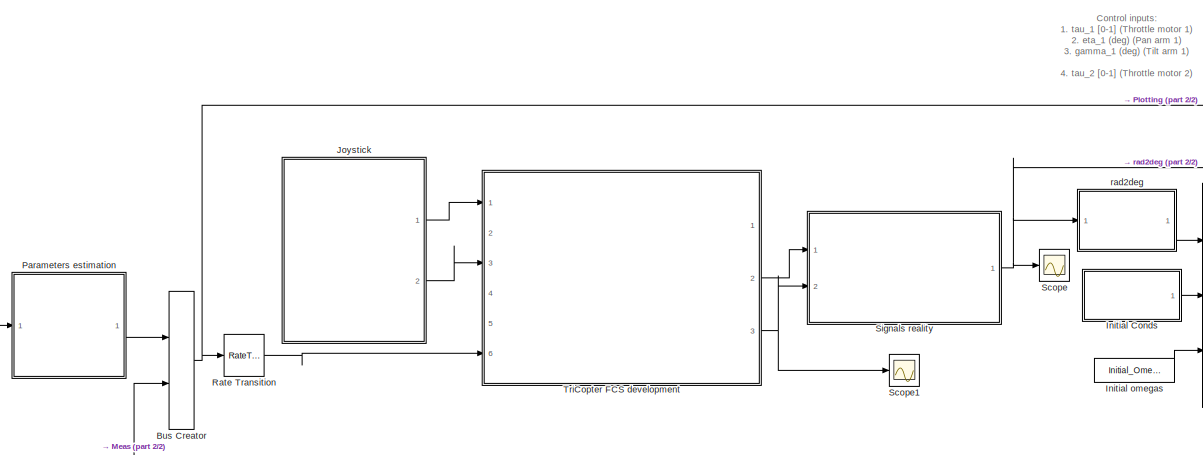
[diagram: root canvas - part 1/2, middle left region]
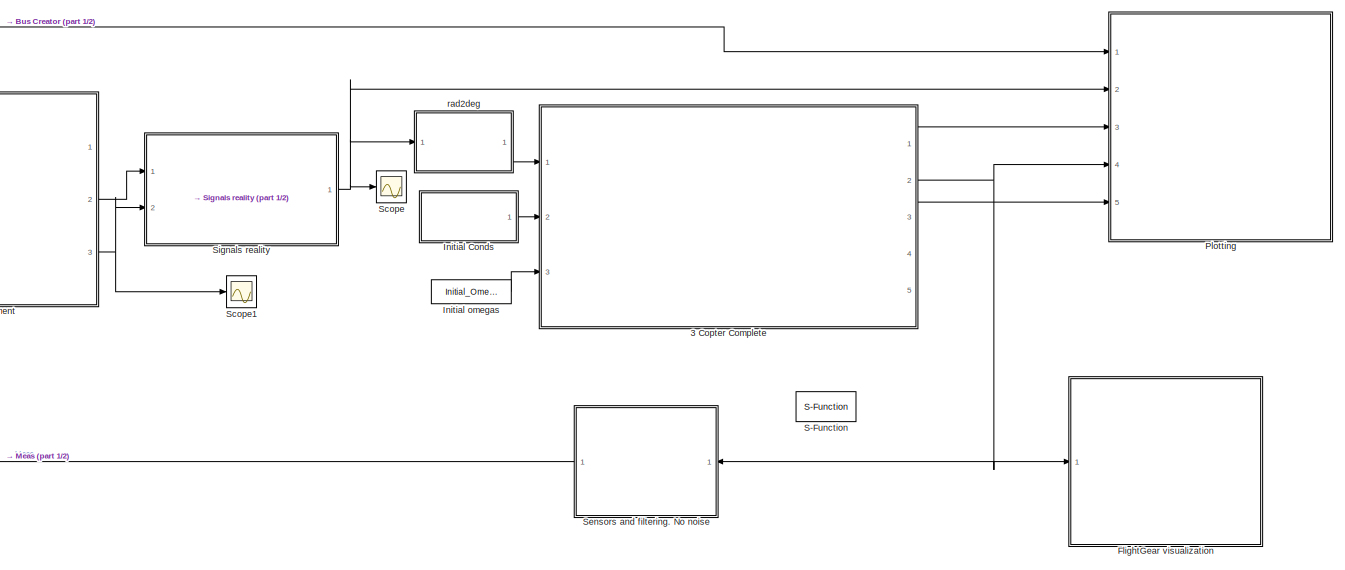
[diagram: root canvas - part 2/2, right side, full height]
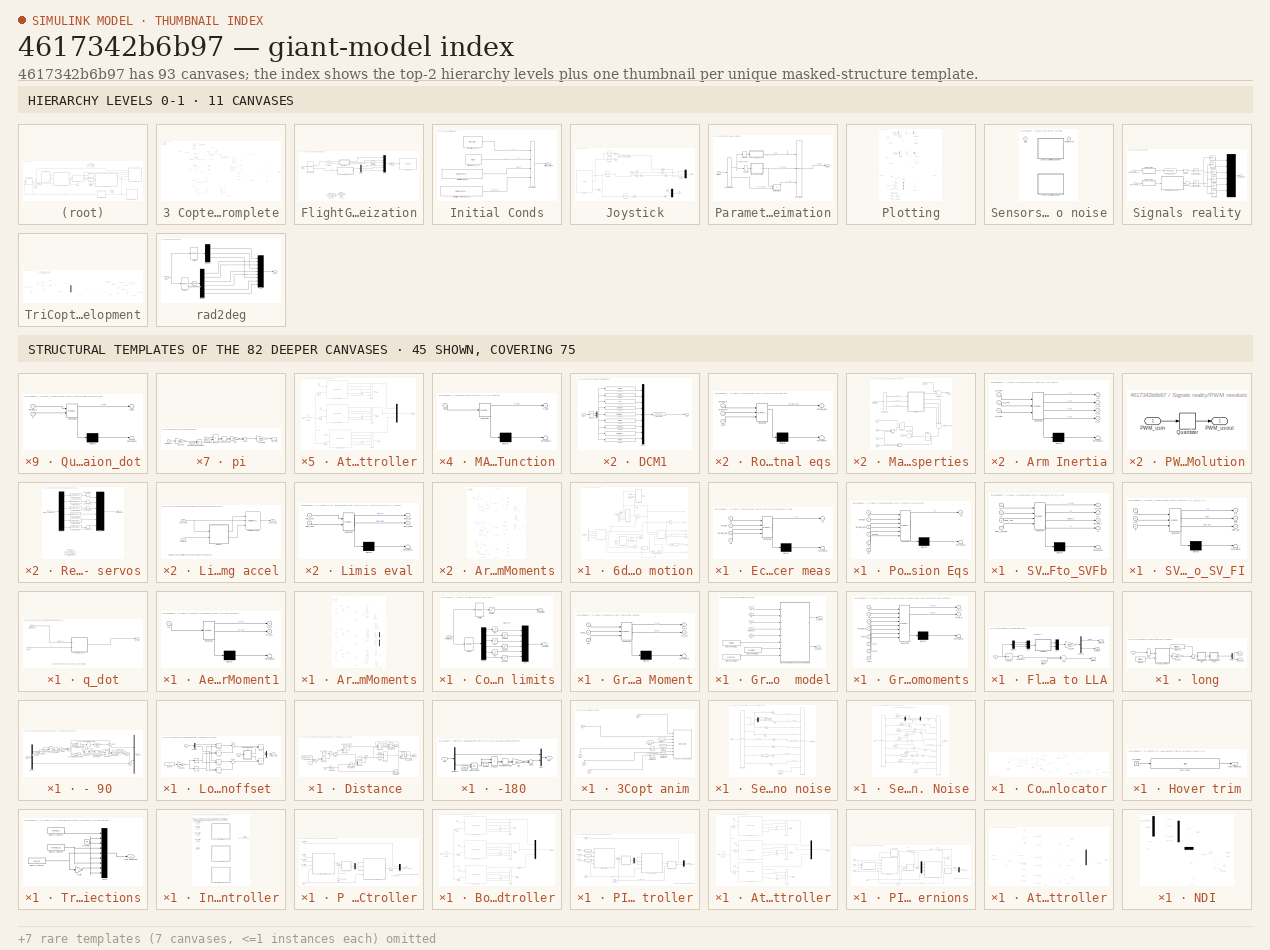
[diagram: thumbnail index - top-2 hierarchy levels (11 canvases) + 45 structural-template representatives of the remaining 82 canvases]
MODEL slx_4617342b6b97
KIND model
CONFIG AbsTol = auto
CONFIG FixedStep = T_sim
CONFIG MaxStep = auto
CONFIG MinStep = auto
CONFIG RelTol = 1e-3
CONFIG SampleTimeConstraint = Unconstrained
CONFIG Solver = ode2
CONFIG SolverMode = SingleTasking
CONFIG SolverName = ode2
CONFIG StartTime = 0.0
CONFIG StopTime = inf
BLOCK [SubSystem] 3 Copter Complete
  Ports = [3, 5]
  RequestExecContextInheritance = off
BLOCK [SubSystem] 3 Copter Complete/6dof Eqs of motion
  Ports = [6, 11]
  RequestExecContextInheritance = off
  TreatAsAtomicUnit = on
BLOCK [Outport] 3 Copter Complete/6dof Eqs of motion/Ab
  IconDisplay = Port number
  Port = 7
BLOCK [Outport] 3 Copter Complete/6dof Eqs of motion/Asensor
  IconDisplay = Port number
  Port = 11
BLOCK [BusSelector] 3 Copter Complete/6dof Eqs of motion/Bus Selector
  OutputSignals = X_e_0,V_e_0,Euler_0,Euler_dot_0
  Ports = [1, 4]
BLOCK [Inport] 3 Copter Complete/6dof Eqs of motion/CG
  IconDisplay = Port number
  Port = 5
BLOCK [Outport] 3 Copter Complete/6dof Eqs of motion/DCM
  IconDisplay = Port number
  Port = 8
BLOCK [SubSystem] 3 Copter Complete/6dof Eqs of motion/DCM1
  Ports = [1, 1]
  RequestExecContextInheritance = off
  TreatAsAtomicUnit = on
BLOCK [Outport] 3 Copter Complete/6dof Eqs of motion/DCM1/DCM
  IconDisplay = Port number
  PortDimensions = [3,3]
BLOCK [Inport] 3 Copter Complete/6dof Eqs of motion/DCM1/Euler
  IconDisplay = Port number
  PortDimensions = 3
BLOCK [Fcn] 3 Copter Complete/6dof Eqs of motion/DCM1/Fcn11
  Expr = u(5)*u(4)
BLOCK [Fcn] 3 Copter Complete/6dof Eqs of motion/DCM1/Fcn12
  Expr = u(5)*u(1)
BLOCK [Fcn] 3 Copter Complete/6dof Eqs of motion/DCM1/Fcn13
  Expr = -u(2)
BLOCK [Fcn] 3 Copter Complete/6dof Eqs of motion/DCM1/Fcn21
  Expr = u(3)*u(2)*u(4) - u(6)*u(1)
BLOCK [Fcn] 3 Copter Complete/6dof Eqs of motion/DCM1/Fcn22
  Expr = u(3)*u(2)*u(1) + u(6)*u(4)
BLOCK [Fcn] 3 Copter Complete/6dof Eqs of motion/DCM1/Fcn23
  Expr = u(3)*u(5)
BLOCK [Fcn] 3 Copter Complete/6dof Eqs of motion/DCM1/Fcn31
  Expr = u(6)*u(2)*u(4) + u(3)*u(1)
BLOCK [Fcn] 3 Copter Complete/6dof Eqs of motion/DCM1/Fcn32
  Expr = u(6)*u(2)*u(1) - u(3)*u(4)
BLOCK [Fcn] 3 Copter Complete/6dof Eqs of motion/DCM1/Fcn33
  Expr = u(6)*u(5)
BLOCK [Mux] 3 Copter Complete/6dof Eqs of motion/DCM1/Mux
  DisplayOption = bar
  Inputs = 2
  Ports = [2, 1]
BLOCK [Mux] 3 Copter Complete/6dof Eqs of motion/DCM1/Mux1
  DisplayOption = bar
  Inputs = 9
  Ports = [9, 1]
BLOCK [Reshape] 3 Copter Complete/6dof Eqs of motion/DCM1/Reshape
  OutputDimensionality = Customize
  OutputDimensions = [3,3]
  Ports = [1, 1]
BLOCK [Trigonometry] 3 Copter Complete/6dof Eqs of motion/DCM1/sincos
  Operator = sincos
  Ports = [1, 2]
BLOCK [SubSystem] 3 Copter Complete/6dof Eqs of motion/Eccelerometer meas
  ErrorFcn = Stateflow.Translate.translate
  PermitHierarchicalResolution = ExplicitOnly
  Ports = [4, 1]
  RequestExecContextInheritance = off
  SFBlockType = MATLAB Function
  TreatAsAtomicUnit = on
BLOCK [Demux] 3 Copter Complete/6dof Eqs of motion/Eccelerometer meas/ Demux 
  Outputs = 1
  Ports = [1, 1]
BLOCK [S-Function] 3 Copter Complete/6dof Eqs of motion/Eccelerometer meas/ SFunction 
  EnableBusSupport = on
  FunctionName = sf_sfun
  Parameters = r_sens
  PortCounts = [4 2]
  Ports = [4, 2]
  Tag = Stateflow S-Function Tricopter_Controlled_development 8
BLOCK [Terminator] 3 Copter Complete/6dof Eqs of motion/Eccelerometer meas/ Terminator 
BLOCK [Outport] 3 Copter Complete/6dof Eqs of motion/Eccelerometer meas/A_s
  IconDisplay = Port number
BLOCK [Inport] 3 Copter Complete/6dof Eqs of motion/Eccelerometer meas/Ab
  IconDisplay = Port number
  Port = 4
BLOCK [Inport] 3 Copter Complete/6dof Eqs of motion/Eccelerometer meas/Vb
  IconDisplay = Port number
BLOCK [Inport] 3 Copter Complete/6dof Eqs of motion/Eccelerometer meas/omega
  IconDisplay = Port number
  Port = 2
BLOCK [Inport] 3 Copter Complete/6dof Eqs of motion/Eccelerometer meas/omega_dot
  IconDisplay = Port number
  Port = 3
BLOCK [Inport] 3 Copter Complete/6dof Eqs of motion/Forces
  IconDisplay = Port number
BLOCK [From] 3 Copter Complete/6dof Eqs of motion/From
  GotoTag = omega
BLOCK [From] 3 Copter Complete/6dof Eqs of motion/From1
  GotoTag = omega_dot
BLOCK [From] 3 Copter Complete/6dof Eqs of motion/From2
  GotoTag = omega
BLOCK [From] 3 Copter Complete/6dof Eqs of motion/From3
  GotoTag = omega_dot
BLOCK [Goto] 3 Copter Complete/6dof Eqs of motion/Goto
  GotoTag = omega
BLOCK [Goto] 3 Copter Complete/6dof Eqs of motion/Goto1
  GotoTag = omega_dot
BLOCK [Inport] 3 Copter Complete/6dof Eqs of motion/I_BAC
  IconDisplay = Port number
  Port = 4
BLOCK [Inport] 3 Copter Complete/6dof Eqs of motion/Initial Conditions
  IconDisplay = Port number
  Port = 6
BLOCK [Inport] 3 Copter Complete/6dof Eqs of motion/Moments
  IconDisplay = Port number
  Port = 2
BLOCK [Reference] 3 Copter Complete/6dof Eqs of motion/Normalize 4D vector  REF=XXCopter/Normalize 4D vector
  Ports = [1, 1]
  SourceBlock = XXCopter/Normalize 4D vector
  SourceType = SubSystem
BLOCK [SubSystem] 3 Copter Complete/6dof Eqs of motion/Position Eqs
  ErrorFcn = Stateflow.Translate.translate
  PermitHierarchicalResolution = ExplicitOnly
  Ports = [6, 1]
  RequestExecContextInheritance = off
  SFBlockType = MATLAB Function
  TreatAsAtomicUnit = on
BLOCK [Demux] 3 Copter Complete/6dof Eqs of motion/Position Eqs/ Demux 
  Outputs = 1
  Ports = [1, 1]
BLOCK [S-Function] 3 Copter Complete/6dof Eqs of motion/Position Eqs/ SFunction 
  EnableBusSupport = on
  FunctionName = sf_sfun
  PortCounts = [6 2]
  Ports = [6, 2]
  Tag = Stateflow S-Function Tricopter_Controlled_development 1
BLOCK [Terminator] 3 Copter Complete/6dof Eqs of motion/Position Eqs/ Terminator 
BLOCK [Outport] 3 Copter Complete/6dof Eqs of motion/Position Eqs/A_b
  IconDisplay = Port number
BLOCK [Inport] 3 Copter Complete/6dof Eqs of motion/Position Eqs/CG
  IconDisplay = Port number
  Port = 6
BLOCK [Inport] 3 Copter Complete/6dof Eqs of motion/Position Eqs/Forces
  IconDisplay = Port number
  Port = 4
BLOCK [Inport] 3 Copter Complete/6dof Eqs of motion/Position Eqs/Vb
  IconDisplay = Port number
BLOCK [Inport] 3 Copter Complete/6dof Eqs of motion/Position Eqs/m
  IconDisplay = Port number
  Port = 5
BLOCK [Inport] 3 Copter Complete/6dof Eqs of motion/Position Eqs/omega
  IconDisplay = Port number
  Port = 2
BLOCK [Inport] 3 Copter Complete/6dof Eqs of motion/Position Eqs/omega_dot
  IconDisplay = Port number
  Port = 3
BLOCK [SubSystem] 3 Copter Complete/6dof Eqs of motion/Rotational eqs
  ErrorFcn = Stateflow.Translate.translate
  PermitHierarchicalResolution = ExplicitOnly
  Ports = [3, 1]
  RequestExecContextInheritance = off
  SFBlockType = MATLAB Function
  TreatAsAtomicUnit = on
BLOCK [Demux] 3 Copter Complete/6dof Eqs of motion/Rotational eqs/ Demux 
  Outputs = 1
  Ports = [1, 1]
BLOCK [S-Function] 3 Copter Complete/6dof Eqs of motion/Rotational eqs/ SFunction 
  EnableBusSupport = on
  FunctionName = sf_sfun
  PortCounts = [3 2]
  Ports = [3, 2]
  Tag = Stateflow S-Function Tricopter_Controlled_development 2
BLOCK [Terminator] 3 Copter Complete/6dof Eqs of motion/Rotational eqs/ Terminator 
BLOCK [Inport] 3 Copter Complete/6dof Eqs of motion/Rotational eqs/I_BAC
  IconDisplay = Port number
  Port = 3
BLOCK [Inport] 3 Copter Complete/6dof Eqs of motion/Rotational eqs/Moments
  IconDisplay = Port number
  Port = 2
BLOCK [Inport] 3 Copter Complete/6dof Eqs of motion/Rotational eqs/omega_b
  IconDisplay = Port number
BLOCK [Outport] 3 Copter Complete/6dof Eqs of motion/Rotational eqs/omega_dot
  IconDisplay = Port number
BLOCK [SubSystem] 3 Copter Complete/6dof Eqs of motion/SVFI_to_SVFb
  ErrorFcn = Stateflow.Translate.translate
  PermitHierarchicalResolution = ExplicitOnly
  Ports = [4, 4]
  RequestExecContextInheritance = off
  SFBlockType = MATLAB Function
  SystemSampleTime = T_sim
  TreatAsAtomicUnit = on
BLOCK [Demux] 3 Copter Complete/6dof Eqs of motion/SVFI_to_SVFb/ Demux 
  Outputs = 1
  Ports = [1, 1]
BLOCK [S-Function] 3 Copter Complete/6dof Eqs of motion/SVFI_to_SVFb/ SFunction 
  EnableBusSupport = on
  FunctionName = sf_sfun
  PortCounts = [4 5]
  Ports = [4, 5]
  Tag = Stateflow S-Function Tricopter_Controlled_development 11
BLOCK [Terminator] 3 Copter Complete/6dof Eqs of motion/SVFI_to_SVFb/ Terminator 
BLOCK [Inport] 3 Copter Complete/6dof Eqs of motion/SVFI_to_SVFb/Euler_Ang
  IconDisplay = Port number
  Port = 3
BLOCK [Inport] 3 Copter Complete/6dof Eqs of motion/SVFI_to_SVFb/Euler_Ang_Dot
  IconDisplay = Port number
  Port = 4
BLOCK [Outport] 3 Copter Complete/6dof Eqs of motion/SVFI_to_SVFb/V_b
  IconDisplay = Port number
  Port = 2
BLOCK [Inport] 3 Copter Complete/6dof Eqs of motion/SVFI_to_SVFb/V_e
  IconDisplay = Port number
  Port = 2
BLOCK [Inport] 3 Copter Complete/6dof Eqs of motion/SVFI_to_SVFb/X_e
  IconDisplay = Port number
BLOCK [Outport] 3 Copter Complete/6dof Eqs of motion/SVFI_to_SVFb/X_e_out
  IconDisplay = Port number
BLOCK [Outport] 3 Copter Complete/6dof Eqs of motion/SVFI_to_SVFb/omega_b
  IconDisplay = Port number
  Port = 3
BLOCK [Outport] 3 Copter Complete/6dof Eqs of motion/SVFI_to_SVFb/q
  IconDisplay = Port number
  Port = 4
BLOCK [SubSystem] 3 Copter Complete/6dof Eqs of motion/SV_F_b_to_SV_FI
  ErrorFcn = Stateflow.Translate.translate
  PermitHierarchicalResolution = ExplicitOnly
  Ports = [3, 3]
  RequestExecContextInheritance = off
  SFBlockType = MATLAB Function
  TreatAsAtomicUnit = on
BLOCK [Demux] 3 Copter Complete/6dof Eqs of motion/SV_F_b_to_SV_FI/ Demux 
  Outputs = 1
  Ports = [1, 1]
BLOCK [S-Function] 3 Copter Complete/6dof Eqs of motion/SV_F_b_to_SV_FI/ SFunction 
  EnableBusSupport = on
  FunctionName = sf_sfun
  PortCounts = [3 4]
  Ports = [3, 4]
  Tag = Stateflow S-Function Tricopter_Controlled_development 12
BLOCK [Terminator] 3 Copter Complete/6dof Eqs of motion/SV_F_b_to_SV_FI/ Terminator 
BLOCK [Inport] 3 Copter Complete/6dof Eqs of motion/SV_F_b_to_SV_FI/V_b
  IconDisplay = Port number
BLOCK [Outport] 3 Copter Complete/6dof Eqs of motion/SV_F_b_to_SV_FI/V_e
  IconDisplay = Port number
BLOCK [Outport] 3 Copter Complete/6dof Eqs of motion/SV_F_b_to_SV_FI/euler
  IconDisplay = Port number
  Port = 2
BLOCK [Outport] 3 Copter Complete/6dof Eqs of motion/SV_F_b_to_SV_FI/euler_dot
  IconDisplay = Port number
  Port = 3
BLOCK [Inport] 3 Copter Complete/6dof Eqs of motion/SV_F_b_to_SV_FI/q
  IconDisplay = Port number
  Port = 3
BLOCK [Inport] 3 Copter Complete/6dof Eqs of motion/SV_F_b_to_SV_FI/q_dot
  IconDisplay = Port number
  Port = 2
BLOCK [Selector] 3 Copter Complete/6dof Eqs of motion/Selector7
  Indices = [3 2 1]
  InputPortWidth = 3
  Ports = [1, 1]
BLOCK [Outport] 3 Copter Complete/6dof Eqs of motion/Vb
  IconDisplay = Port number
  Port = 3
BLOCK [Outport] 3 Copter Complete/6dof Eqs of motion/Ve
  IconDisplay = Port number
  Port = 2
BLOCK [Outport] 3 Copter Complete/6dof Eqs of motion/Xe
  IconDisplay = Port number
BLOCK [Outport] 3 Copter Complete/6dof Eqs of motion/euler
  IconDisplay = Port number
  Port = 9
BLOCK [Outport] 3 Copter Complete/6dof Eqs of motion/euler_dot
  IconDisplay = Port number
  Port = 10
BLOCK [Inport] 3 Copter Complete/6dof Eqs of motion/mass
  IconDisplay = Port number
  Port = 3
BLOCK [Outport] 3 Copter Complete/6dof Eqs of motion/p,q,r
  IconDisplay = Port number
  Port = 4
BLOCK [Integrator] 3 Copter Complete/6dof Eqs of motion/p,q,r 
  InitialCondition = [P_0,Q_0,R_0]
  InitialConditionSource = external
  Ports = [2, 1]
BLOCK [Outport] 3 Copter Complete/6dof Eqs of motion/pdot,qdot,rdot
  IconDisplay = Port number
  Port = 6
BLOCK [Outport] 3 Copter Complete/6dof Eqs of motion/q
  IconDisplay = Port number
  Port = 5
BLOCK [SubSystem] 3 Copter Complete/6dof Eqs of motion/q_dot
  Ports = [2, 1]
  RequestExecContextInheritance = off
  TreatAsAtomicUnit = on
BLOCK [SubSystem] 3 Copter Complete/6dof Eqs of motion/q_dot/Quaternion_dot
  ErrorFcn = Stateflow.Translate.translate
  PermitHierarchicalResolution = ExplicitOnly
  Ports = [2, 1]
  RequestExecContextInheritance = off
  SFBlockType = MATLAB Function
  TreatAsAtomicUnit = on
  VariantControl = Variant
BLOCK [Demux] 3 Copter Complete/6dof Eqs of motion/q_dot/Quaternion_dot/ Demux 
  Outputs = 1
  Ports = [1, 1]
BLOCK [S-Function] 3 Copter Complete/6dof Eqs of motion/q_dot/Quaternion_dot/ SFunction 
  EnableBusSupport = on
  FunctionName = sf_sfun
  PortCounts = [2 2]
  Ports = [2, 2]
  Tag = Stateflow S-Function Tricopter_Controlled_development 3
BLOCK [Terminator] 3 Copter Complete/6dof Eqs of motion/q_dot/Quaternion_dot/ Terminator 
BLOCK [Inport] 3 Copter Complete/6dof Eqs of motion/q_dot/Quaternion_dot/omega_b
  IconDisplay = Port number
BLOCK [Inport] 3 Copter Complete/6dof Eqs of motion/q_dot/Quaternion_dot/q
  IconDisplay = Port number
  Port = 2
BLOCK [Outport] 3 Copter Complete/6dof Eqs of motion/q_dot/Quaternion_dot/q_dot
  IconDisplay = Port number
BLOCK [Inport] 3 Copter Complete/6dof Eqs of motion/q_dot/omega_b
  IconDisplay = Port number
BLOCK [Inport] 3 Copter Complete/6dof Eqs of motion/q_dot/q
  IconDisplay = Port number
  Port = 2
BLOCK [Outport] 3 Copter Complete/6dof Eqs of motion/q_dot/q_dot
  IconDisplay = Port number
BLOCK [Integrator] 3 Copter Complete/6dof Eqs of motion/quaternion
  InitialCondition = [P_0,Q_0,R_0]
  InitialConditionSource = external
  Ports = [2, 1]
BLOCK [Integrator] 3 Copter Complete/6dof Eqs of motion/ub,vb,wb
  InitialCondition = [U_0,V_0,W_0]
  InitialConditionSource = external
  Ports = [2, 1]
BLOCK [Integrator] 3 Copter Complete/6dof Eqs of motion/xe,ye,ze
  InitialCondition = [NORTH_0,EAST_0,-DOWN_0]
  InitialConditionSource = external
  Ports = [2, 1]
BLOCK [Sum] 3 Copter Complete/Add
  InputSameDT = off
  Inputs = +++++
  OutDataTypeStr = Inherit: Inherit via internal rule
  Ports = [5, 1]
  SaturateOnIntegerOverflow = off
BLOCK [Sum] 3 Copter Complete/Add1
  InputSameDT = off
  Inputs = +++++
  OutDataTypeStr = Inherit: Inherit via internal rule
  Ports = [5, 1]
  SaturateOnIntegerOverflow = off
BLOCK [SubSystem] 3 Copter Complete/Aerodynamics body Force and Moment1
  ErrorFcn = Stateflow.Translate.translate
  PermitHierarchicalResolution = ExplicitOnly
  Ports = [1, 2]
  RequestExecContextInheritance = off
  SFBlockType = MATLAB Function
  TreatAsAtomicUnit = on
BLOCK [Demux] 3 Copter Complete/Aerodynamics body Force and Moment1/ Demux 
  Outputs = 1
  Ports = [1, 1]
BLOCK [S-Function] 3 Copter Complete/Aerodynamics body Force and Moment1/ SFunction 
  EnableBusSupport = on
  FunctionName = sf_sfun
  Parameters = A_x,A_y,A_z,C_x,C_y,C_z,rho
  PortCounts = [1 3]
  Ports = [1, 3]
  Tag = Stateflow S-Function Tricopter_Controlled_development 5
BLOCK [Terminator] 3 Copter Complete/Aerodynamics body Force and Moment1/ Terminator 
BLOCK [Outport] 3 Copter Complete/Aerodynamics body Force and Moment1/F_a_b
  IconDisplay = Port number
BLOCK [Outport] 3 Copter Complete/Aerodynamics body Force and Moment1/M_a_b
  IconDisplay = Port number
  Port = 2
BLOCK [Inport] 3 Copter Complete/Aerodynamics body Force and Moment1/V_b
  IconDisplay = Port number
BLOCK [Outport] 3 Copter Complete/Arms Angles (rad)
  IconDisplay = Port number
  Port = 3
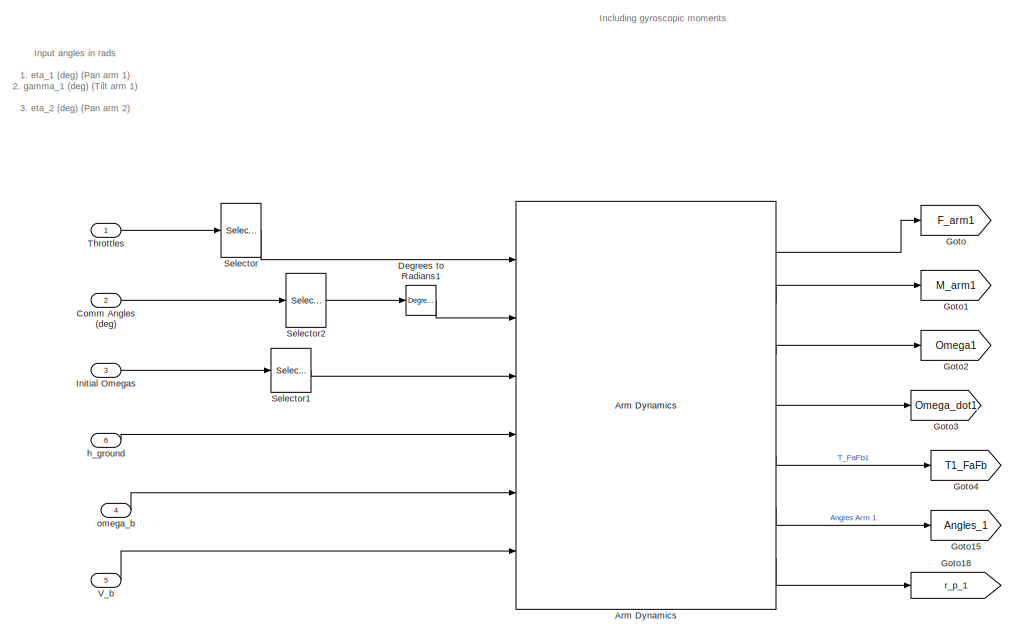
[diagram: 3 Copter Complete/Arms Dynamics: Forces and Moments - part 1/3, top center region]
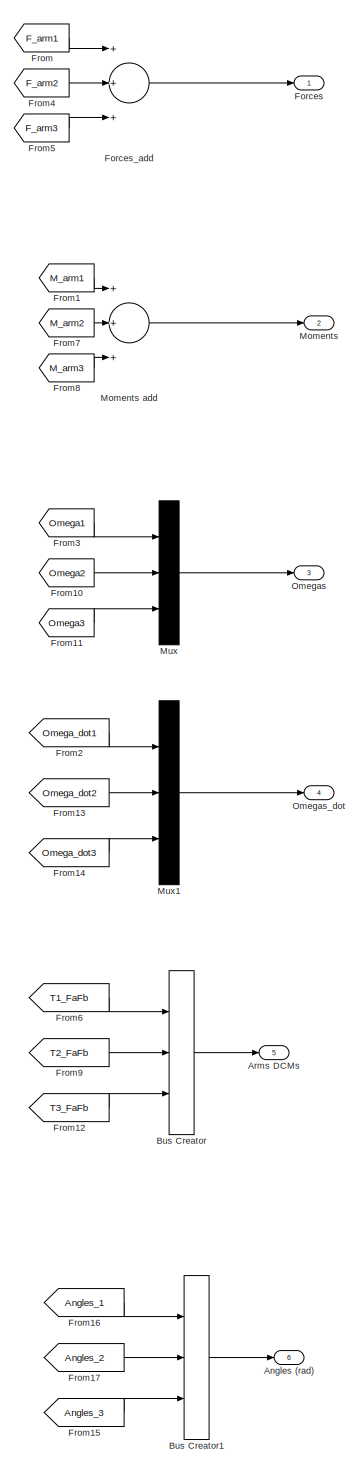
[diagram: 3 Copter Complete/Arms Dynamics: Forces and Moments - part 2/3, right side, full height]
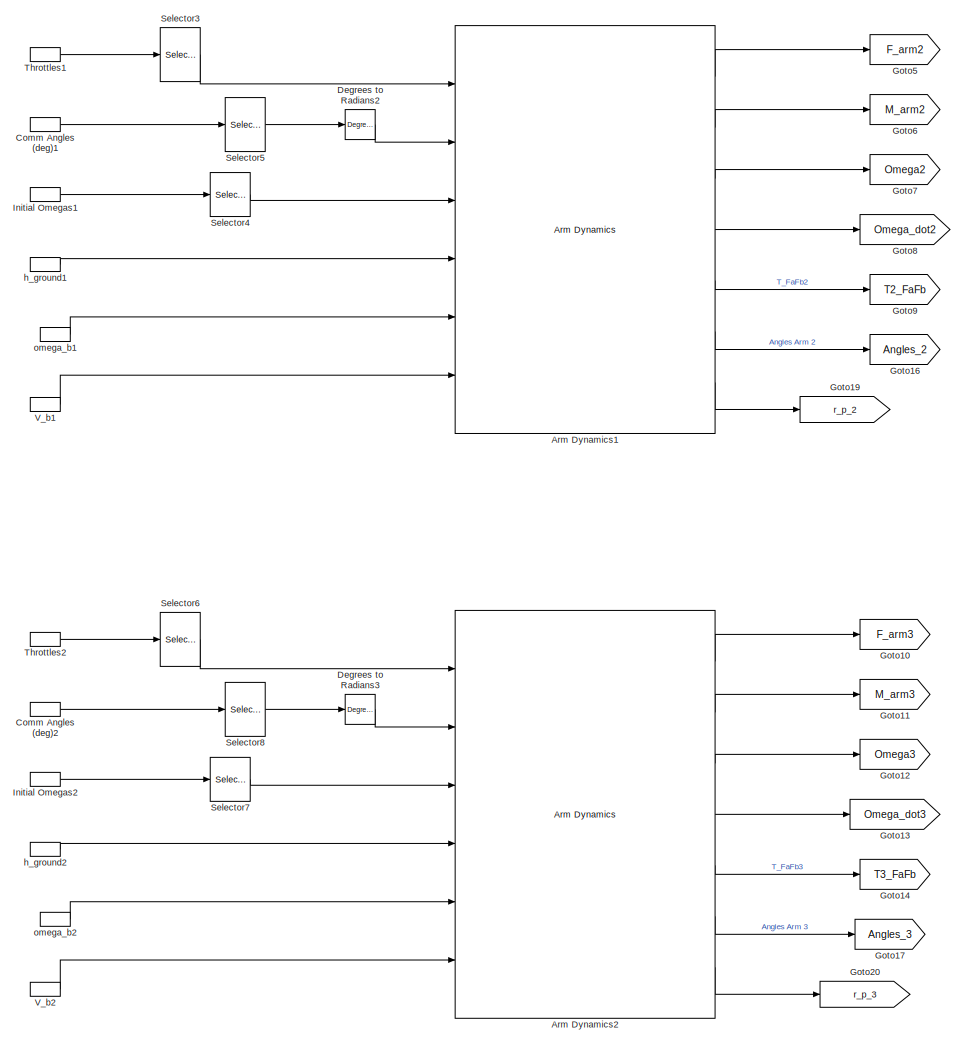
[diagram: 3 Copter Complete/Arms Dynamics: Forces and Moments - part 3/3, bottom center region]
BLOCK [SubSystem] 3 Copter Complete/Arms Dynamics: Forces and Moments
  Ports = [6, 6]
  RequestExecContextInheritance = off
BLOCK [Outport] 3 Copter Complete/Arms Dynamics: Forces and Moments/Angles (rad)
  IconDisplay = Port number
  Port = 6
BLOCK [Reference] 3 Copter Complete/Arms Dynamics: Forces and Moments/Arm Dynamics  REF=XXCopter/Arm Dynamics
  Arm_axis = [l_arm;0;0]
  J_FA = J_FA
  J_T = J_T
  Omega_ini = Initial_Omegas(1)
  Ports = [6, 7]
  Rot_sign = Rotation_sign(1)
  SourceBlock = XXCopter/Arm Dynamics
  SourceType = Arm dynamics, kinematics, forces and moments
  Torq_ini = Initial_Torques(1)
  arm_hub_pos = l*[1;0;0]
  arm_num = 1
  c = 0
  eta_dir = [1;0;0]
  gamma_dir = [0;1;0]
  h = h
  init_eta = 0
  init_gamma = 0
  omega_n = 70
  tau = Tau_motors
  xi = 0.72
BLOCK [Reference] 3 Copter Complete/Arms Dynamics: Forces and Moments/Arm Dynamics1  REF=XXCopter/Arm Dynamics
  Arm_axis = [0;l_arm;0]
  J_FA = J_FA
  J_T = J_T
  Omega_ini = Initial_Omegas(2)
  Ports = [6, 7]
  Rot_sign = Rotation_sign(2)
  SourceBlock = XXCopter/Arm Dynamics
  SourceType = Arm dynamics, kinematics, forces and moments
  Torq_ini = Initial_Torques(2)
  arm_hub_pos = l*[-1/2;sqrt(3)/2;0]
  arm_num = 2
  c = 0
  eta_dir = [0;1;0]
  gamma_dir = [1;0;0]
  h = h
  init_eta = eta_23
  init_gamma = 0
  omega_n = 70
  tau = Tau_motors
  xi = 0.72
BLOCK [Reference] 3 Copter Complete/Arms Dynamics: Forces and Moments/Arm Dynamics2  REF=XXCopter/Arm Dynamics
  Arm_axis = [0;-l_arm;0]
  J_FA = J_FA
  J_T = J_T
  Omega_ini = Initial_Omegas(3)
  Ports = [6, 7]
  Rot_sign = Rotation_sign(3)
  SourceBlock = XXCopter/Arm Dynamics
  SourceType = Arm dynamics, kinematics, forces and moments
  Torq_ini = Initial_Torques(3)
  arm_hub_pos = l*[-1/2;-sqrt(3)/2;0]
  arm_num = 3
  c = 0
  eta_dir = [0;1;0]
  gamma_dir = [1;0;0]
  h = h
  init_eta = -eta_23
  init_gamma = 0
  omega_n = 70
  tau = Tau_motors
  xi = 0.72
BLOCK [Outport] 3 Copter Complete/Arms Dynamics: Forces and Moments/Arms DCMs
  IconDisplay = Port number
  Port = 5
BLOCK [BusCreator] 3 Copter Complete/Arms Dynamics: Forces and Moments/Bus Creator
  DisplayOption = bar
  Inputs = 3
  Ports = [3, 1]
BLOCK [BusCreator] 3 Copter Complete/Arms Dynamics: Forces and Moments/Bus Creator1
  DisplayOption = bar
  Inputs = 3
  Ports = [3, 1]
BLOCK [Inport] 3 Copter Complete/Arms Dynamics: Forces and Moments/Comm Angles (deg)
  IconDisplay = Port number
  Port = 2
BLOCK [InportShadow] 3 Copter Complete/Arms Dynamics: Forces and Moments/Comm Angles (deg)1
  IconDisplay = Port number
  Port = 2
BLOCK [InportShadow] 3 Copter Complete/Arms Dynamics: Forces and Moments/Comm Angles (deg)2
  IconDisplay = Port number
  Port = 2
BLOCK [Reference] 3 Copter Complete/Arms Dynamics: Forces and Moments/Degrees to Radians1  REF=simulink_extras/Transformations/Degrees to
Radians
  Ports = [1, 1]
  SourceBlock = simulink_extras/Transformations/Degrees to\nRadians
  SourceType = DegreesToRadians
BLOCK [Reference] 3 Copter Complete/Arms Dynamics: Forces and Moments/Degrees to Radians2  REF=simulink_extras/Transformations/Degrees to
Radians
  Ports = [1, 1]
  SourceBlock = simulink_extras/Transformations/Degrees to\nRadians
  SourceType = DegreesToRadians
BLOCK [Reference] 3 Copter Complete/Arms Dynamics: Forces and Moments/Degrees to Radians3  REF=simulink_extras/Transformations/Degrees to
Radians
  Ports = [1, 1]
  SourceBlock = simulink_extras/Transformations/Degrees to\nRadians
  SourceType = DegreesToRadians
BLOCK [Outport] 3 Copter Complete/Arms Dynamics: Forces and Moments/Forces
  IconDisplay = Port number
BLOCK [Sum] 3 Copter Complete/Arms Dynamics: Forces and Moments/Forces_add
  InputSameDT = off
  Inputs = +++
  OutDataTypeStr = Inherit: Inherit via internal rule
  Ports = [3, 1]
  SaturateOnIntegerOverflow = off
BLOCK [From] 3 Copter Complete/Arms Dynamics: Forces and Moments/From
  GotoTag = F_arm1
BLOCK [From] 3 Copter Complete/Arms Dynamics: Forces and Moments/From1
  GotoTag = M_arm1
BLOCK [From] 3 Copter Complete/Arms Dynamics: Forces and Moments/From10
  GotoTag = Omega2
BLOCK [From] 3 Copter Complete/Arms Dynamics: Forces and Moments/From11
  GotoTag = Omega3
BLOCK [From] 3 Copter Complete/Arms Dynamics: Forces and Moments/From12
  GotoTag = T3_FaFb
BLOCK [From] 3 Copter Complete/Arms Dynamics: Forces and Moments/From13
  GotoTag = Omega_dot2
BLOCK [From] 3 Copter Complete/Arms Dynamics: Forces and Moments/From14
  GotoTag = Omega_dot3
BLOCK [From] 3 Copter Complete/Arms Dynamics: Forces and Moments/From15
  GotoTag = Angles_3
BLOCK [From] 3 Copter Complete/Arms Dynamics: Forces and Moments/From16
  GotoTag = Angles_1
BLOCK [From] 3 Copter Complete/Arms Dynamics: Forces and Moments/From17
  GotoTag = Angles_2
BLOCK [From] 3 Copter Complete/Arms Dynamics: Forces and Moments/From2
  GotoTag = Omega_dot1
BLOCK [From] 3 Copter Complete/Arms Dynamics: Forces and Moments/From3
  GotoTag = Omega1
BLOCK [From] 3 Copter Complete/Arms Dynamics: Forces and Moments/From4
  GotoTag = F_arm2
BLOCK [From] 3 Copter Complete/Arms Dynamics: Forces and Moments/From5
  GotoTag = F_arm3
BLOCK [From] 3 Copter Complete/Arms Dynamics: Forces and Moments/From6
  GotoTag = T1_FaFb
BLOCK [From] 3 Copter Complete/Arms Dynamics: Forces and Moments/From7
  GotoTag = M_arm2
BLOCK [From] 3 Copter Complete/Arms Dynamics: Forces and Moments/From8
  GotoTag = M_arm3
BLOCK [From] 3 Copter Complete/Arms Dynamics: Forces and Moments/From9
  GotoTag = T2_FaFb
BLOCK [Goto] 3 Copter Complete/Arms Dynamics: Forces and Moments/Goto
  GotoTag = F_arm1
BLOCK [Goto] 3 Copter Complete/Arms Dynamics: Forces and Moments/Goto1
  GotoTag = M_arm1
BLOCK [Goto] 3 Copter Complete/Arms Dynamics: Forces and Moments/Goto10
  GotoTag = F_arm3
BLOCK [Goto] 3 Copter Complete/Arms Dynamics: Forces and Moments/Goto11
  GotoTag = M_arm3
BLOCK [Goto] 3 Copter Complete/Arms Dynamics: Forces and Moments/Goto12
  GotoTag = Omega3
BLOCK [Goto] 3 Copter Complete/Arms Dynamics: Forces and Moments/Goto13
  GotoTag = Omega_dot3
BLOCK [Goto] 3 Copter Complete/Arms Dynamics: Forces and Moments/Goto14
  GotoTag = T3_FaFb
BLOCK [Goto] 3 Copter Complete/Arms Dynamics: Forces and Moments/Goto15
  GotoTag = Angles_1
BLOCK [Goto] 3 Copter Complete/Arms Dynamics: Forces and Moments/Goto16
  GotoTag = Angles_2
BLOCK [Goto] 3 Copter Complete/Arms Dynamics: Forces and Moments/Goto17
  GotoTag = Angles_3
BLOCK [Goto] 3 Copter Complete/Arms Dynamics: Forces and Moments/Goto18
  GotoTag = r_p_1
  TagVisibility = global
BLOCK [Goto] 3 Copter Complete/Arms Dynamics: Forces and Moments/Goto19
  GotoTag = r_p_2
  TagVisibility = global
BLOCK [Goto] 3 Copter Complete/Arms Dynamics: Forces and Moments/Goto2
  GotoTag = Omega1
BLOCK [Goto] 3 Copter Complete/Arms Dynamics: Forces and Moments/Goto20
  GotoTag = r_p_3
  TagVisibility = global
BLOCK [Goto] 3 Copter Complete/Arms Dynamics: Forces and Moments/Goto3
  GotoTag = Omega_dot1
BLOCK [Goto] 3 Copter Complete/Arms Dynamics: Forces and Moments/Goto4
  GotoTag = T1_FaFb
BLOCK [Goto] 3 Copter Complete/Arms Dynamics: Forces and Moments/Goto5
  GotoTag = F_arm2
BLOCK [Goto] 3 Copter Complete/Arms Dynamics: Forces and Moments/Goto6
  GotoTag = M_arm2
BLOCK [Goto] 3 Copter Complete/Arms Dynamics: Forces and Moments/Goto7
  GotoTag = Omega2
BLOCK [Goto] 3 Copter Complete/Arms Dynamics: Forces and Moments/Goto8
  GotoTag = Omega_dot2
BLOCK [Goto] 3 Copter Complete/Arms Dynamics: Forces and Moments/Goto9
  GotoTag = T2_FaFb
BLOCK [Inport] 3 Copter Complete/Arms Dynamics: Forces and Moments/Initial Omegas
  IconDisplay = Port number
  Port = 3
BLOCK [InportShadow] 3 Copter Complete/Arms Dynamics: Forces and Moments/Initial Omegas1
  IconDisplay = Port number
  Port = 3
BLOCK [InportShadow] 3 Copter Complete/Arms Dynamics: Forces and Moments/Initial Omegas2
  IconDisplay = Port number
  Port = 3
BLOCK [Outport] 3 Copter Complete/Arms Dynamics: Forces and Moments/Moments
  IconDisplay = Port number
  Port = 2
BLOCK [Sum] 3 Copter Complete/Arms Dynamics: Forces and Moments/Moments add
  InputSameDT = off
  Inputs = +++
  OutDataTypeStr = Inherit: Inherit via internal rule
  Ports = [3, 1]
  SaturateOnIntegerOverflow = off
BLOCK [Mux] 3 Copter Complete/Arms Dynamics: Forces and Moments/Mux
  DisplayOption = bar
  Inputs = 3
  Ports = [3, 1]
BLOCK [Mux] 3 Copter Complete/Arms Dynamics: Forces and Moments/Mux1
  DisplayOption = bar
  Inputs = 3
  Ports = [3, 1]
BLOCK [Outport] 3 Copter Complete/Arms Dynamics: Forces and Moments/Omegas
  IconDisplay = Port number
  Port = 3
BLOCK [Outport] 3 Copter Complete/Arms Dynamics: Forces and Moments/Omegas_dot
  IconDisplay = Port number
  Port = 4
BLOCK [Selector] 3 Copter Complete/Arms Dynamics: Forces and Moments/Selector
  Indices = [1]
  InputPortWidth = 3
  Ports = [1, 1]
BLOCK [Selector] 3 Copter Complete/Arms Dynamics: Forces and Moments/Selector1
  Indices = [1]
  InputPortWidth = 3
  Ports = [1, 1]
BLOCK [Selector] 3 Copter Complete/Arms Dynamics: Forces and Moments/Selector2
  Indices = [1,2]
  InputPortWidth = 6
  Ports = [1, 1]
BLOCK [Selector] 3 Copter Complete/Arms Dynamics: Forces and Moments/Selector3
  Indices = 2
  InputPortWidth = 3
  Ports = [1, 1]
BLOCK [Selector] 3 Copter Complete/Arms Dynamics: Forces and Moments/Selector4
  Indices = 2
  InputPortWidth = 3
  Ports = [1, 1]
BLOCK [Selector] 3 Copter Complete/Arms Dynamics: Forces and Moments/Selector5
  Indices = [3,4]
  InputPortWidth = 6
  Ports = [1, 1]
BLOCK [Selector] 3 Copter Complete/Arms Dynamics: Forces and Moments/Selector6
  Indices = 3
  InputPortWidth = 3
  Ports = [1, 1]
BLOCK [Selector] 3 Copter Complete/Arms Dynamics: Forces and Moments/Selector7
  Indices = 3
  InputPortWidth = 3
  Ports = [1, 1]
BLOCK [Selector] 3 Copter Complete/Arms Dynamics: Forces and Moments/Selector8
  Indices = [5,6]
  InputPortWidth = 6
  Ports = [1, 1]
BLOCK [Inport] 3 Copter Complete/Arms Dynamics: Forces and Moments/Throttles
  IconDisplay = Port number
BLOCK [InportShadow] 3 Copter Complete/Arms Dynamics: Forces and Moments/Throttles1
  IconDisplay = Port number
BLOCK [InportShadow] 3 Copter Complete/Arms Dynamics: Forces and Moments/Throttles2
  IconDisplay = Port number
BLOCK [Inport] 3 Copter Complete/Arms Dynamics: Forces and Moments/V_b
  IconDisplay = Port number
  Port = 5
BLOCK [InportShadow] 3 Copter Complete/Arms Dynamics: Forces and Moments/V_b1
  IconDisplay = Port number
  Port = 5
BLOCK [InportShadow] 3 Copter Complete/Arms Dynamics: Forces and Moments/V_b2
  IconDisplay = Port number
  Port = 5
BLOCK [Inport] 3 Copter Complete/Arms Dynamics: Forces and Moments/h_ground
  IconDisplay = Port number
  Port = 6
BLOCK [InportShadow] 3 Copter Complete/Arms Dynamics: Forces and Moments/h_ground1
  IconDisplay = Port number
  Port = 6
BLOCK [InportShadow] 3 Copter Complete/Arms Dynamics: Forces and Moments/h_ground2
  IconDisplay = Port number
  Port = 6
BLOCK [Inport] 3 Copter Complete/Arms Dynamics: Forces and Moments/omega_b
  IconDisplay = Port number
  Port = 4
BLOCK [InportShadow] 3 Copter Complete/Arms Dynamics: Forces and Moments/omega_b1
  IconDisplay = Port number
  Port = 4
BLOCK [InportShadow] 3 Copter Complete/Arms Dynamics: Forces and Moments/omega_b2
  IconDisplay = Port number
  Port = 4
BLOCK [Bias] 3 Copter Complete/Bias from bottom to BAC assuming euler=1
  Bias = [0;0;0.04]
  SaturateOnIntegerOverflow = off
BLOCK [Bias] 3 Copter Complete/Bias from bottom to prop assuming euler=0
  Bias = 0.04+h
  SaturateOnIntegerOverflow = off
BLOCK [BusCreator] 3 Copter Complete/Bus Creator
  DisplayOption = bar
  Inputs = 11
  Ports = [11, 1]
BLOCK [BusSelector] 3 Copter Complete/Bus Selector
  OutputSignals = q
  Ports = [1, 1]
BLOCK [BusSelector] 3 Copter Complete/Bus Selector1
  OutputSignals = V_b
  Ports = [1, 1]
BLOCK [BusSelector] 3 Copter Complete/Bus Selector2
  OutputSignals = omega_b,V_b,X_e
  Ports = [1, 3]
BLOCK [BusSelector] 3 Copter Complete/Bus Selector3
  OutputSignals = X_e,V_b,q,omega_b
  Ports = [1, 4]
BLOCK [Constant] 3 Copter Complete/CG
  Value = CG_0
BLOCK [Constant] 3 Copter Complete/Constant
  Value = 0.1*9.81
BLOCK [Constant] 3 Copter Complete/Constant1
  Value = 0
BLOCK [SubSystem] 3 Copter Complete/Contorl Inputs limits
  Ports = [1, 2]
  RequestExecContextInheritance = off
  TreatAsAtomicUnit = on
BLOCK [Outport] 3 Copter Complete/Contorl Inputs limits/Angles limited
  IconDisplay = Port number
  Port = 2
BLOCK [Inport] 3 Copter Complete/Contorl Inputs limits/Control inputs
  IconDisplay = Port number
BLOCK [Demux] 3 Copter Complete/Contorl Inputs limits/Demux
  DisplayOption = bar
  Outputs = 6
  Ports = [1, 6]
BLOCK [Mux] 3 Copter Complete/Contorl Inputs limits/Mux
  DisplayOption = bar
  Inputs = 6
  Ports = [6, 1]
BLOCK [Saturate] 3 Copter Complete/Contorl Inputs limits/Saturation
  InputPortMap = u0
  LowerLimit = 0
  Ports = [1, 1]
  UpperLimit = 1
BLOCK [Outport] 3 Copter Complete/Contorl Inputs limits/Throtles limited
  IconDisplay = Port number
BLOCK [Selector] 3 Copter Complete/Contorl Inputs limits/Throttles
  Indices = [1,4,7]
  InputPortWidth = 9
  Ports = [1, 1]
BLOCK [Selector] 3 Copter Complete/Contorl Inputs limits/angles 
  Indices = [2,3,5,6,8,9]
  InputPortWidth = 9
  Ports = [1, 1]
BLOCK [Saturate] 3 Copter Complete/Contorl Inputs limits/eta 1
  InputPortMap = u0
  LowerLimit = -165
  Ports = [1, 1]
  UpperLimit = 165
BLOCK [Saturate] 3 Copter Complete/Contorl Inputs limits/eta 2
  InputPortMap = u0
  LowerLimit = -165
  Ports = [1, 1]
  UpperLimit = 165
BLOCK [Saturate] 3 Copter Complete/Contorl Inputs limits/eta 3
  InputPortMap = u0
  LowerLimit = -165
  Ports = [1, 1]
  UpperLimit = 165
BLOCK [Saturate] 3 Copter Complete/Contorl Inputs limits/gamma 2
  InputPortMap = u0
  LowerLimit = -15
  Ports = [1, 1]
  UpperLimit = 90
BLOCK [Saturate] 3 Copter Complete/Contorl Inputs limits/gamma1
  InputPortMap = u0
  LowerLimit = -90
  Ports = [1, 1]
  UpperLimit = 15
BLOCK [Saturate] 3 Copter Complete/Contorl Inputs limits/gamma3
  InputPortMap = u0
  LowerLimit = -90
  Ports = [1, 1]
  UpperLimit = 15
BLOCK [Inport] 3 Copter Complete/Control Inputs
  IconDisplay = Port number
BLOCK [Constant] 3 Copter Complete/Current batrery level (V)
  Value = 14.8
BLOCK [Product] 3 Copter Complete/Equivalent ESC signals
  InputSameDT = off
  Inputs = /*
  OutDataTypeStr = Inherit: Inherit via internal rule
  Ports = [2, 1]
  RndMeth = Floor
  SaturateOnIntegerOverflow = off
BLOCK [Product] 3 Copter Complete/Equivalent Throttle
  InputSameDT = off
  Inputs = **
  OutDataTypeStr = Inherit: Inherit via internal rule
  Ports = [2, 1]
  RndMeth = Floor
  SaturateOnIntegerOverflow = off
BLOCK [Outport] 3 Copter Complete/EquivalentESC throtle
  IconDisplay = Port number
  Port = 4
BLOCK [From] 3 Copter Complete/From1
  GotoTag = F_ground
BLOCK [From] 3 Copter Complete/From14
  GotoTag = M_ground
BLOCK [From] 3 Copter Complete/From2
  GotoTag = F_arm
BLOCK [From] 3 Copter Complete/From3
  GotoTag = F_air
BLOCK [From] 3 Copter Complete/From4
  GotoTag = F_g
BLOCK [From] 3 Copter Complete/From5
  GotoTag = M_arm
BLOCK [From] 3 Copter Complete/From6
  GotoTag = M_air
BLOCK [From] 3 Copter Complete/From7
  GotoTag = M_g
BLOCK [Gain] 3 Copter Complete/Gain
  Gain = -1
  OutDataTypeStr = Inherit: Inherit via internal rule
  ParamDataTypeStr = Inherit: Inherit via internal rule
  SaturateOnIntegerOverflow = off
BLOCK [Gain] 3 Copter Complete/Gain1
  Gain = [0,0,1]
  OutDataTypeStr = Inherit: Inherit via internal rule
  ParamDataTypeStr = Inherit: Inherit via internal rule
  SaturateOnIntegerOverflow = off
BLOCK [Outport] 3 Copter Complete/General State Vector
  IconDisplay = Port number
  Port = 2
BLOCK [Goto] 3 Copter Complete/Goto
  GotoTag = Omegas
BLOCK [Goto] 3 Copter Complete/Goto1
  GotoTag = Omegas_dot
BLOCK [Goto] 3 Copter Complete/Goto2
  GotoTag = F_arm
BLOCK [Goto] 3 Copter Complete/Goto3
  GotoTag = M_arm
BLOCK [Goto] 3 Copter Complete/Goto4
  GotoTag = F_air
BLOCK [Goto] 3 Copter Complete/Goto5
  GotoTag = M_air
BLOCK [Goto] 3 Copter Complete/Goto6
  GotoTag = F_g
BLOCK [Goto] 3 Copter Complete/Goto7
  GotoTag = M_g
BLOCK [Goto] 3 Copter Complete/Goto8
  GotoTag = F_ground
BLOCK [Goto] 3 Copter Complete/Goto9
  GotoTag = M_ground
BLOCK [SubSystem] 3 Copter Complete/Gravity Force and Moment
  ErrorFcn = Stateflow.Translate.translate
  PermitHierarchicalResolution = ExplicitOnly
  Ports = [3, 2]
  RequestExecContextInheritance = off
  SFBlockType = MATLAB Function
  TreatAsAtomicUnit = on
BLOCK [Demux] 3 Copter Complete/Gravity Force and Moment/ Demux 
  Outputs = 1
  Ports = [1, 1]
BLOCK [S-Function] 3 Copter Complete/Gravity Force and Moment/ SFunction 
  EnableBusSupport = on
  FunctionName = sf_sfun
  Parameters = g
  PortCounts = [3 3]
  Ports = [3, 3]
  Tag = Stateflow S-Function Tricopter_Controlled_development 4
BLOCK [Terminator] 3 Copter Complete/Gravity Force and Moment/ Terminator 
BLOCK [Inport] 3 Copter Complete/Gravity Force and Moment/CG
  IconDisplay = Port number
  Port = 3
BLOCK [Outport] 3 Copter Complete/Gravity Force and Moment/F_g_b
  IconDisplay = Port number
BLOCK [Outport] 3 Copter Complete/Gravity Force and Moment/M_g_b
  IconDisplay = Port number
  Port = 2
BLOCK [Inport] 3 Copter Complete/Gravity Force and Moment/mass
  IconDisplay = Port number
  Port = 2
BLOCK [Inport] 3 Copter Complete/Gravity Force and Moment/q
  IconDisplay = Port number
BLOCK [SubSystem] 3 Copter Complete/Ground  model
  Ports = [5, 2]
  RequestExecContextInheritance = off
  TreatAsAtomicUnit = on
BLOCK [Outport] 3 Copter Complete/Ground  model/F_ground
  IconDisplay = Port number
BLOCK [SubSystem] 3 Copter Complete/Ground  model/Ground model logic and Forces and moments
  ErrorFcn = Stateflow.Translate.translate
  PermitHierarchicalResolution = ExplicitOnly
  Ports = [8, 2]
  RequestExecContextInheritance = off
  SFBlockType = MATLAB Function
  TreatAsAtomicUnit = on
BLOCK [Demux] 3 Copter Complete/Ground  model/Ground model logic and Forces and moments/ Demux 
  Outputs = 1
  Ports = [1, 1]
BLOCK [S-Function] 3 Copter Complete/Ground  model/Ground model logic and Forces and moments/ SFunction 
  EnableBusSupport = on
  FunctionName = sf_sfun
  Parameters = g
  PortCounts = [8 3]
  Ports = [8, 3]
  Tag = Stateflow S-Function Tricopter_Controlled_development 27
BLOCK [Terminator] 3 Copter Complete/Ground  model/Ground model logic and Forces and moments/ Terminator 
BLOCK [Inport] 3 Copter Complete/Ground  model/Ground model logic and Forces and moments/Arm1
  IconDisplay = Port number
  Port = 6
BLOCK [Inport] 3 Copter Complete/Ground  model/Ground model logic and Forces and moments/Arm2
  IconDisplay = Port number
  Port = 7
BLOCK [Inport] 3 Copter Complete/Ground  model/Ground model logic and Forces and moments/Arm3
  IconDisplay = Port number
  Port = 8
BLOCK [Outport] 3 Copter Complete/Ground  model/Ground model logic and Forces and moments/F_gr_b
  IconDisplay = Port number
BLOCK [Outport] 3 Copter Complete/Ground  model/Ground model logic and Forces and moments/M_gr_b
  IconDisplay = Port number
  Port = 2
BLOCK [Inport] 3 Copter Complete/Ground  model/Ground model logic and Forces and moments/Vb
  IconDisplay = Port number
  Port = 2
BLOCK [Inport] 3 Copter Complete/Ground  model/Ground model logic and Forces and moments/Xe
  IconDisplay = Port number
BLOCK [Inport] 3 Copter Complete/Ground  model/Ground model logic and Forces and moments/mass
  IconDisplay = Port number
  Port = 5
BLOCK [Inport] 3 Copter Complete/Ground  model/Ground model logic and Forces and moments/omega_b
  IconDisplay = Port number
  Port = 4
BLOCK [Inport] 3 Copter Complete/Ground  model/Ground model logic and Forces and moments/q
  IconDisplay = Port number
  Port = 3
BLOCK [Outport] 3 Copter Complete/Ground  model/M_ground
  IconDisplay = Port number
  Port = 2
BLOCK [Inport] 3 Copter Complete/Ground  model/Vb
  IconDisplay = Port number
  Port = 2
BLOCK [Inport] 3 Copter Complete/Ground  model/Xe
  IconDisplay = Port number
BLOCK [Constant] 3 Copter Complete/Ground  model/arm_hub position 1
  Value = l*[1;0;0]
BLOCK [Constant] 3 Copter Complete/Ground  model/arm_hub position 2
  Value = l*[-1/2;sqrt(3)/2;0]
BLOCK [Constant] 3 Copter Complete/Ground  model/arm_hub position 3
  Value = l*[-1/2;-sqrt(3)/2;0]
BLOCK [Inport] 3 Copter Complete/Ground  model/m
  IconDisplay = Port number
  Port = 5
BLOCK [Inport] 3 Copter Complete/Ground  model/omega_b
  IconDisplay = Port number
  Port = 4
BLOCK [Inport] 3 Copter Complete/Ground  model/q
  IconDisplay = Port number
  Port = 3
BLOCK [Constant] 3 Copter Complete/I_BAC_0
  Value = I_BAC_0
BLOCK [Inport] 3 Copter Complete/Initial Conditions
  IconDisplay = Port number
  Port = 2
BLOCK [Inport] 3 Copter Complete/Initial Omegas
  IconDisplay = Port number
  Port = 3
BLOCK [ManualSwitch] 3 Copter Complete/Manual Switch
  CurrentSetting = 0
BLOCK [Constant] 3 Copter Complete/Mass
  Value = m
BLOCK [SubSystem] 3 Copter Complete/Mass Properties
  Ports = [6, 2]
  RequestExecContextInheritance = off
  TreatAsAtomicUnit = on
BLOCK [SubSystem] 3 Copter Complete/Mass Properties/Arm Inertia
  ErrorFcn = Stateflow.Translate.translate
  PermitHierarchicalResolution = ExplicitOnly
  Ports = [3, 4]
  RequestExecContextInheritance = off
  SFBlockType = MATLAB Function
  TreatAsAtomicUnit = on
BLOCK [Demux] 3 Copter Complete/Mass Properties/Arm Inertia/ Demux 
  Outputs = 1
  Ports = [1, 1]
BLOCK [S-Function] 3 Copter Complete/Mass Properties/Arm Inertia/ SFunction 
  EnableBusSupport = on
  FunctionName = sf_sfun
  Parameters = h_M,l,m_M
  PortCounts = [3 5]
  Ports = [3, 5]
  Tag = Stateflow S-Function Tricopter_Controlled_development 13
BLOCK [Terminator] 3 Copter Complete/Mass Properties/Arm Inertia/ Terminator 
BLOCK [Outport] 3 Copter Complete/Mass Properties/Arm Inertia/I_M
  IconDisplay = Port number
BLOCK [Inport] 3 Copter Complete/Mass Properties/Arm Inertia/T1_FAFb
  IconDisplay = Port number
BLOCK [Inport] 3 Copter Complete/Mass Properties/Arm Inertia/T2_FAFb
  IconDisplay = Port number
  Port = 2
BLOCK [Inport] 3 Copter Complete/Mass Properties/Arm Inertia/T3_FAFb
  IconDisplay = Port number
  Port = 3
BLOCK [Outport] 3 Copter Complete/Mass Properties/Arm Inertia/r1_M
  IconDisplay = Port number
  Port = 2
BLOCK [Outport] 3 Copter Complete/Mass Properties/Arm Inertia/r2_M
  IconDisplay = Port number
  Port = 3
BLOCK [Outport] 3 Copter Complete/Mass Properties/Arm Inertia/r3_M
  IconDisplay = Port number
  Port = 4
BLOCK [Inport] 3 Copter Complete/Mass Properties/Arms DCMs
  IconDisplay = Port number
BLOCK [BusSelector] 3 Copter Complete/Mass Properties/Bus Selector
  OutputSignals = T_FaFb1,T_FaFb2,T_FaFb3
  Ports = [1, 3]
BLOCK [Outport] 3 Copter Complete/Mass Properties/CG
  IconDisplay = Port number
  Port = 2
BLOCK [Sum] 3 Copter Complete/Mass Properties/CG position
  InputSameDT = off
  OutDataTypeStr = Inherit: Inherit via internal rule
  Ports = [2, 1]
  SaturateOnIntegerOverflow = off
BLOCK [Inport] 3 Copter Complete/Mass Properties/CG_0
  IconDisplay = Port number
  Port = 2
BLOCK [Product] 3 Copter Complete/Mass Properties/Divide
  InputSameDT = off
  Inputs = */
  OutDataTypeStr = Inherit: Inherit via internal rule
  Ports = [2, 1]
  RndMeth = Floor
  SaturateOnIntegerOverflow = off
BLOCK [Product] 3 Copter Complete/Mass Properties/Divide1
  InputSameDT = off
  Inputs = **
  OutDataTypeStr = Inherit: Inherit via internal rule
  Ports = [2, 1]
  RndMeth = Floor
  SaturateOnIntegerOverflow = off
BLOCK [Product] 3 Copter Complete/Mass Properties/Divide2
  InputSameDT = off
  Inputs = /*
  OutDataTypeStr = Inherit: Inherit via internal rule
  Ports = [2, 1]
  RndMeth = Floor
  SaturateOnIntegerOverflow = off
BLOCK [Product] 3 Copter Complete/Mass Properties/Divide3
  InputSameDT = off
  Inputs = **
  OutDataTypeStr = Inherit: Inherit via internal rule
  Ports = [2, 1]
  RndMeth = Floor
  SaturateOnIntegerOverflow = off
BLOCK [Outport] 3 Copter Complete/Mass Properties/I_BAC
  IconDisplay = Port number
BLOCK [Inport] 3 Copter Complete/Mass Properties/I_BAC_0
  IconDisplay = Port number
  Port = 6
BLOCK [Sum] 3 Copter Complete/Mass Properties/Motors Pos sum
  InputSameDT = off
  Inputs = +++
  OutDataTypeStr = Inherit: Inherit via internal rule
  Ports = [3, 1]
  SaturateOnIntegerOverflow = off
BLOCK [Sum] 3 Copter Complete/Mass Properties/Total I_BAC
  InputSameDT = off
  OutDataTypeStr = Inherit: Inherit via internal rule
  Ports = [2, 1]
  SaturateOnIntegerOverflow = off
BLOCK [Inport] 3 Copter Complete/Mass Properties/m
  IconDisplay = Port number
  Port = 4
BLOCK [Inport] 3 Copter Complete/Mass Properties/m_0
  IconDisplay = Port number
  Port = 3
BLOCK [Inport] 3 Copter Complete/Mass Properties/m_M
  IconDisplay = Port number
  Port = 5
BLOCK [Constant] 3 Copter Complete/Mass1
  Value = m
BLOCK [Constant] 3 Copter Complete/Mass2
  Value = m
BLOCK [Memory] 3 Copter Complete/Memory
  X0 = [0,0,0]
BLOCK [Memory] 3 Copter Complete/Memory1
  X0 = [0,0,0]
BLOCK [Memory] 3 Copter Complete/Memory2
  X0 = CG_0
BLOCK [Memory] 3 Copter Complete/Memory3
  X0 = I_BAC_0
BLOCK [Constant] 3 Copter Complete/Motor Mass
  Value = m_M
BLOCK [Outport] 3 Copter Complete/Omegas (rad//s)
  IconDisplay = Port number
BLOCK [Outport] 3 Copter Complete/Omegas dot
  IconDisplay = Port number
  Port = 5
BLOCK [Constant] 3 Copter Complete/Reference batrery level (V)
  Value = 16
BLOCK [Selector] 3 Copter Complete/Selector
  Indices = 3
  InputPortWidth = 3
  Ports = [1, 1]
BLOCK [TransferFcn] 3 Copter Complete/Transfer Fcn
  Denominator = [1 0.2]
  Numerator = [0.2]
BLOCK [Gain] 3 Copter Complete/arm
  Gain = 0.5*[0,1,0]
  OutDataTypeStr = Inherit: Inherit via internal rule
  ParamDataTypeStr = Inherit: Inherit via internal rule
  SaturateOnIntegerOverflow = off
BLOCK [Constant] 3 Copter Complete/m_0
  Value = m_0
BLOCK [Constant] 3 Copter Complete/mass
  Value = m
BLOCK [BusCreator] Bus Creator
  DisplayOption = bar
  Inputs = 2
  Ports = [2, 1]
BLOCK [SubSystem] FlightGear visualization
  Ports = [1]
  RequestExecContextInheritance = off
BLOCK [BusSelector] FlightGear visualization/Bus Selector2
  OutputSignals = X_e,euler
  Ports = [1, 2]
BLOCK [Demux] FlightGear visualization/Demux
  DisplayOption = bar
  Outputs = 3
  Ports = [1, 3]
BLOCK [SubSystem] FlightGear visualization/Flat Earth to LLA
  Ports = [2, 3]
  RequestExecContextInheritance = off
BLOCK [Sum] FlightGear visualization/Flat Earth to LLA/Add
  InputSameDT = off
  OutDataTypeStr = Inherit: Inherit via internal rule
  Ports = [2, 1]
  SaturateOnIntegerOverflow = off
BLOCK [Demux] FlightGear visualization/Flat Earth to LLA/Demux1
  Outputs = 3
  Ports = [1, 3]
BLOCK [Demux] FlightGear visualization/Flat Earth to LLA/Demux2
  Outputs = 2
  Ports = [1, 2]
BLOCK [Mux] FlightGear visualization/Flat Earth to LLA/Mux
  DisplayOption = bar
  Inputs = 2
  Ports = [2, 1]
BLOCK [Mux] FlightGear visualization/Flat Earth to LLA/Mux1
  DisplayOption = bar
  Inputs = 3
  Ports = [3, 1]
BLOCK [Selector] FlightGear visualization/Flat Earth to LLA/Selector
  Indices = 3
  InputPortWidth = 3
  Ports = [1, 1]
BLOCK [UnaryMinus] FlightGear visualization/Flat Earth to LLA/Unary Minus1
BLOCK [Inport] FlightGear visualization/Flat Earth to LLA/Xe
  IconDisplay = Port number
BLOCK [Outport] FlightGear visualization/Flat Earth to LLA/altitude h
  IconDisplay = Port number
  Port = 3
BLOCK [Inport] FlightGear visualization/Flat Earth to LLA/altitude0
  IconDisplay = Port number
  Port = 2
BLOCK [Gain] FlightGear visualization/Flat Earth to LLA/deg2rad
  Gain = pi/180
BLOCK [Outport] FlightGear visualization/Flat Earth to LLA/latitude mu
  IconDisplay = Port number
BLOCK [Outport] FlightGear visualization/Flat Earth to LLA/longitude l
  IconDisplay = Port number
  Port = 2
BLOCK [SubSystem] FlightGear visualization/Flat Earth to LLA/ne to lat//long
  AncestorBlock = navlibrary/ne to lat//long
  Ports = [1, 2]
  RequestExecContextInheritance = off
BLOCK [Demux] FlightGear visualization/Flat Earth to LLA/ne to lat//long/Demux
  DisplayOption = bar
  Outputs = 2
  Ports = [1, 2]
BLOCK [SubSystem] FlightGear visualization/Flat Earth to LLA/ne to lat//long/Latitude Between +//- 90 
  Ports = [1, 1]
  RequestExecContextInheritance = off
  TreatAsAtomicUnit = on
BLOCK [Constant] FlightGear visualization/Flat Earth to LLA/ne to lat//long/Latitude Between +//- 90 /Constant1
  Value = 180
BLOCK [Constant] FlightGear visualization/Flat Earth to LLA/ne to lat//long/Latitude Between +//- 90 /Constant3
  Value = 90
BLOCK [Constant] FlightGear visualization/Flat Earth to LLA/ne to lat//long/Latitude Between +//- 90 /Constant4
  Value = 180
BLOCK [Constant] FlightGear visualization/Flat Earth to LLA/ne to lat//long/Latitude Between +//- 90 /Constant5
  Value = 360
BLOCK [DataTypeConversion] FlightGear visualization/Flat Earth to LLA/ne to lat//long/Latitude Between +//- 90 /Data Type Conversion
  RndMeth = Floor
  SaturateOnIntegerOverflow = off
BLOCK [Demux] FlightGear visualization/Flat Earth to LLA/ne to lat//long/Latitude Between +//- 90 /Demux
  DisplayOption = bar
  Outputs = 2
  Ports = [1, 2]
BLOCK [Gain] FlightGear visualization/Flat Earth to LLA/ne to lat//long/Latitude Between +//- 90 /Gain
  Gain = 180
  OutDataTypeStr = Inherit: Inherit via internal rule
  ParamDataTypeStr = Inherit: Inherit via internal rule
  SaturateOnIntegerOverflow = off
BLOCK [Gain] FlightGear visualization/Flat Earth to LLA/ne to lat//long/Latitude Between +//- 90 /Gain1
  Gain = 2
  OutDataTypeStr = Inherit: Inherit via internal rule
  ParamDataTypeStr = Inherit: Inherit via internal rule
  SaturateOnIntegerOverflow = off
BLOCK [Gain] FlightGear visualization/Flat Earth to LLA/ne to lat//long/Latitude Between +//- 90 /Gain2
  Gain = 2
  OutDataTypeStr = Inherit: Inherit via internal rule
  ParamDataTypeStr = Inherit: Inherit via internal rule
  SaturateOnIntegerOverflow = off
BLOCK [Gain] FlightGear visualization/Flat Earth to LLA/ne to lat//long/Latitude Between +//- 90 /Gain3
  Gain = 360
  OutDataTypeStr = Inherit: Inherit via internal rule
  ParamDataTypeStr = Inherit: Inherit via internal rule
  SaturateOnIntegerOverflow = off
BLOCK [Gain] FlightGear visualization/Flat Earth to LLA/ne to lat//long/Latitude Between +//- 90 /Gain4
  Gain = 180
  OutDataTypeStr = Inherit: Inherit via internal rule
  ParamDataTypeStr = Inherit: Inherit via internal rule
  SaturateOnIntegerOverflow = off
BLOCK [Logic] FlightGear visualization/Flat Earth to LLA/ne to lat//long/Latitude Between +//- 90 /Logical Operator1
  AllPortsSameDT = off
  OutDataTypeStr = boolean
  Ports = [2, 1]
BLOCK [Math] FlightGear visualization/Flat Earth to LLA/ne to lat//long/Latitude Between +//- 90 /Math Function1
  Operator = rem
  Ports = [2, 1]
BLOCK [Math] FlightGear visualization/Flat Earth to LLA/ne to lat//long/Latitude Between +//- 90 /Math Function2
  Operator = rem
  Ports = [2, 1]
BLOCK [Mux] FlightGear visualization/Flat Earth to LLA/ne to lat//long/Latitude Between +//- 90 /Mux
  DisplayOption = bar
  Inputs = 2
  Ports = [2, 1]
BLOCK [Product] FlightGear visualization/Flat Earth to LLA/ne to lat//long/Latitude Between +//- 90 /Product
  InputSameDT = off
  Inputs = */
  OutDataTypeStr = Inherit: Inherit via internal rule
  Ports = [2, 1]
  SaturateOnIntegerOverflow = off
BLOCK [Product] FlightGear visualization/Flat Earth to LLA/ne to lat//long/Latitude Between +//- 90 /Product1
  InputSameDT = off
  OutDataTypeStr = Inherit: Inherit via internal rule
  Ports = [2, 1]
  SaturateOnIntegerOverflow = off
BLOCK [Product] FlightGear visualization/Flat Earth to LLA/ne to lat//long/Latitude Between +//- 90 /Product2
  InputSameDT = off
  Inputs = */
  OutDataTypeStr = Inherit: Inherit via internal rule
  Ports = [2, 1]
  SaturateOnIntegerOverflow = off
BLOCK [Product] FlightGear visualization/Flat Earth to LLA/ne to lat//long/Latitude Between +//- 90 /Product3
  InputSameDT = off
  OutDataTypeStr = Inherit: Inherit via internal rule
  Ports = [2, 1]
  SaturateOnIntegerOverflow = off
BLOCK [Rounding] FlightGear visualization/Flat Earth to LLA/ne to lat//long/Latitude Between +//- 90 /Rounding Function
  Operator = fix
BLOCK [Rounding] FlightGear visualization/Flat Earth to LLA/ne to lat//long/Latitude Between +//- 90 /Rounding Function1
  Operator = fix
BLOCK [Rounding] FlightGear visualization/Flat Earth to LLA/ne to lat//long/Latitude Between +//- 90 /Rounding Function2
  Operator = fix
BLOCK [Sum] FlightGear visualization/Flat Earth to LLA/ne to lat//long/Latitude Between +//- 90 /Sum1
  IconShape = round
  InputSameDT = off
  Inputs = |-+
  OutDataTypeStr = Inherit: Inherit via internal rule
  Ports = [2, 1]
  SaturateOnIntegerOverflow = off
BLOCK [Sum] FlightGear visualization/Flat Earth to LLA/ne to lat//long/Latitude Between +//- 90 /Sum2
  IconShape = round
  InputSameDT = off
  Inputs = +--
  OutDataTypeStr = Inherit: Inherit via internal rule
  Ports = [3, 1]
  SaturateOnIntegerOverflow = off
BLOCK [Sum] FlightGear visualization/Flat Earth to LLA/ne to lat//long/Latitude Between +//- 90 /Sum3
  IconShape = round
  InputSameDT = off
  Inputs = ++|
  OutDataTypeStr = Inherit: Inherit via internal rule
  Ports = [2, 1]
  SaturateOnIntegerOverflow = off
BLOCK [Inport] FlightGear visualization/Flat Earth to LLA/ne to lat//long/Latitude Between +//- 90 /mu l
  IconDisplay = Port number
BLOCK [Outport] FlightGear visualization/Flat Earth to LLA/ne to lat//long/Latitude Between +//- 90 /mu l 
  IconDisplay = Port number
BLOCK [Sqrt] FlightGear visualization/Flat Earth to LLA/ne to lat//long/Latitude Between +//- 90 /sqrt
  AlgorithmType = Newton-Raphson
BLOCK [SubSystem] FlightGear visualization/Flat Earth to LLA/ne to lat//long/LongLat_offset 
  Ports = [2, 1]
  RequestExecContextInheritance = off
  TreatAsAtomicUnit = on
BLOCK [Trigonometry] FlightGear visualization/Flat Earth to LLA/ne to lat//long/LongLat_offset / 
  Ports = [1, 1]
BLOCK [Trigonometry] FlightGear visualization/Flat Earth to LLA/ne to lat//long/LongLat_offset /  
  Operator = cos
  Ports = [1, 1]
BLOCK [Outport] FlightGear visualization/Flat Earth to LLA/ne to lat//long/LongLat_offset /DeltaLL_rad
  IconDisplay = Port number
BLOCK [Demux] FlightGear visualization/Flat Earth to LLA/ne to lat//long/LongLat_offset /Demux
  DisplayOption = bar
  Outputs = 2
  Ports = [1, 2]
BLOCK [SubSystem] FlightGear visualization/Flat Earth to LLA/ne to lat//long/LongLat_offset /Find Radian//Distance 
  Ports = [1, 2]
  RequestExecContextInheritance = off
  TreatAsAtomicUnit = on
BLOCK [Constant] FlightGear visualization/Flat Earth to LLA/ne to lat//long/LongLat_offset /Find Radian//Distance /Constant
BLOCK [Constant] FlightGear visualization/Flat Earth to LLA/ne to lat//long/LongLat_offset /Find Radian//Distance /Constant1
  Value = 6378137
BLOCK [Constant] FlightGear visualization/Flat Earth to LLA/ne to lat//long/LongLat_offset /Find Radian//Distance /Constant2
BLOCK [Constant] FlightGear visualization/Flat Earth to LLA/ne to lat//long/LongLat_offset /Find Radian//Distance /Constant3
BLOCK [Constant] FlightGear visualization/Flat Earth to LLA/ne to lat//long/LongLat_offset /Find Radian//Distance /Constant4
  Value = 1/298.257223563
BLOCK [Constant] FlightGear visualization/Flat Earth to LLA/ne to lat//long/LongLat_offset /Find Radian//Distance /Constant5
BLOCK [Constant] FlightGear visualization/Flat Earth to LLA/ne to lat//long/LongLat_offset /Find Radian//Distance /Constant6
BLOCK [Product] FlightGear visualization/Flat Earth to LLA/ne to lat//long/LongLat_offset /Find Radian//Distance /Product1
  InputSameDT = off
  Inputs = */
  OutDataTypeStr = Inherit: Inherit via internal rule
  Ports = [2, 1]
  SaturateOnIntegerOverflow = off
BLOCK [Product] FlightGear visualization/Flat Earth to LLA/ne to lat//long/LongLat_offset /Find Radian//Distance /Product2
  InputSameDT = off
  OutDataTypeStr = Inherit: Inherit via internal rule
  Ports = [2, 1]
  SaturateOnIntegerOverflow = off
BLOCK [Product] FlightGear visualization/Flat Earth to LLA/ne to lat//long/LongLat_offset /Find Radian//Distance /Product3
  InputSameDT = off
  Inputs = **/
  OutDataTypeStr = Inherit: Inherit via internal rule
  Ports = [3, 1]
  SaturateOnIntegerOverflow = off
BLOCK [Product] FlightGear visualization/Flat Earth to LLA/ne to lat//long/LongLat_offset /Find Radian//Distance /Product4
  InputSameDT = off
  OutDataTypeStr = Inherit: Inherit via internal rule
  Ports = [2, 1]
  SaturateOnIntegerOverflow = off
BLOCK [Product] FlightGear visualization/Flat Earth to LLA/ne to lat//long/LongLat_offset /Find Radian//Distance /Product5
  InputSameDT = off
  OutDataTypeStr = Inherit: Inherit via internal rule
  Ports = [2, 1]
  SaturateOnIntegerOverflow = off
BLOCK [Product] FlightGear visualization/Flat Earth to LLA/ne to lat//long/LongLat_offset /Find Radian//Distance /Product6
  InputSameDT = off
  Inputs = 4
  OutDataTypeStr = Inherit: Inherit via internal rule
  Ports = [4, 1]
  SaturateOnIntegerOverflow = off
BLOCK [Sum] FlightGear visualization/Flat Earth to LLA/ne to lat//long/LongLat_offset /Find Radian//Distance /Sum
  IconShape = round
  InputSameDT = off
  Inputs = -+
  OutDataTypeStr = Inherit: Inherit via internal rule
  Ports = [2, 1]
  SaturateOnIntegerOverflow = off
BLOCK [Sum] FlightGear visualization/Flat Earth to LLA/ne to lat//long/LongLat_offset /Find Radian//Distance /Sum1
  IconShape = round
  InputSameDT = off
  Inputs = |+-
  OutDataTypeStr = Inherit: Inherit via internal rule
  Ports = [2, 1]
  SaturateOnIntegerOverflow = off
BLOCK [Sum] FlightGear visualization/Flat Earth to LLA/ne to lat//long/LongLat_offset /Find Radian//Distance /Sum2
  IconShape = round
  InputSameDT = off
  Inputs = |+-
  OutDataTypeStr = Inherit: Inherit via internal rule
  Ports = [2, 1]
  SaturateOnIntegerOverflow = off
BLOCK [Sum] FlightGear visualization/Flat Earth to LLA/ne to lat//long/LongLat_offset /Find Radian//Distance /Sum3
  IconShape = round
  InputSameDT = off
  Inputs = |+-
  OutDataTypeStr = Inherit: Inherit via internal rule
  Ports = [2, 1]
  SaturateOnIntegerOverflow = off
BLOCK [Trigonometry] FlightGear visualization/Flat Earth to LLA/ne to lat//long/LongLat_offset /Find Radian//Distance /Trigonometric Function
  Operator = cos
  Ports = [1, 1]
BLOCK [Trigonometry] FlightGear visualization/Flat Earth to LLA/ne to lat//long/LongLat_offset /Find Radian//Distance /Trigonometric Function1
  Operator = atan2
  Ports = [2, 1]
BLOCK [Trigonometry] FlightGear visualization/Flat Earth to LLA/ne to lat//long/LongLat_offset /Find Radian//Distance /Trigonometric Function2
  Operator = atan2
  Ports = [2, 1]
BLOCK [Trigonometry] FlightGear visualization/Flat Earth to LLA/ne to lat//long/LongLat_offset /Find Radian//Distance /Trigonometric Function3
  Ports = [1, 1]
BLOCK [Outport] FlightGear visualization/Flat Earth to LLA/ne to lat//long/LongLat_offset /Find Radian//Distance /dEast
  IconDisplay = Port number
  Port = 2
BLOCK [Outport] FlightGear visualization/Flat Earth to LLA/ne to lat//long/LongLat_offset /Find Radian//Distance /dNorth
  IconDisplay = Port number
BLOCK [Gain] FlightGear visualization/Flat Earth to LLA/ne to lat//long/LongLat_offset /Find Radian//Distance /deg2rad
  Gain = pi/180
BLOCK [Constant] FlightGear visualization/Flat Earth to LLA/ne to lat//long/LongLat_offset /Find Radian//Distance /f
BLOCK [Inport] FlightGear visualization/Flat Earth to LLA/ne to lat//long/LongLat_offset /Find Radian//Distance /mu
  IconDisplay = Port number
BLOCK [Sqrt] FlightGear visualization/Flat Earth to LLA/ne to lat//long/LongLat_offset /Find Radian//Distance /sqrt
  AlgorithmType = Newton-Raphson
BLOCK [Sqrt] FlightGear visualization/Flat Earth to LLA/ne to lat//long/LongLat_offset /Find Radian//Distance /sqrt1
  AlgorithmType = Newton-Raphson
BLOCK [Mux] FlightGear visualization/Flat Earth to LLA/ne to lat//long/LongLat_offset /Mux
  DisplayOption = bar
  Inputs = 2
  Ports = [2, 1]
BLOCK [Sum] FlightGear visualization/Flat Earth to LLA/ne to lat//long/LongLat_offset /Sum
  IconShape = round
  InputSameDT = off
  Inputs = |+-
  OutDataTypeStr = Inherit: Inherit via internal rule
  Ports = [2, 1]
  SaturateOnIntegerOverflow = off
BLOCK [Sum] FlightGear visualization/Flat Earth to LLA/ne to lat//long/LongLat_offset /Sum1
  IconShape = round
  InputSameDT = off
  Inputs = |++
  OutDataTypeStr = Inherit: Inherit via internal rule
  Ports = [2, 1]
  SaturateOnIntegerOverflow = off
BLOCK [Inport] FlightGear visualization/Flat Earth to LLA/ne to lat//long/LongLat_offset /XY
  IconDisplay = Port number
BLOCK [Gain] FlightGear visualization/Flat Earth to LLA/ne to lat//long/LongLat_offset /deg2rad
  Gain = pi/180
BLOCK [Inport] FlightGear visualization/Flat Earth to LLA/ne to lat//long/LongLat_offset /mu
  IconDisplay = Port number
  Port = 2
BLOCK [Product] FlightGear visualization/Flat Earth to LLA/ne to lat//long/LongLat_offset /rad lat
  InputSameDT = off
  OutDataTypeStr = Inherit: Inherit via internal rule
  Ports = [2, 1]
  SaturateOnIntegerOverflow = off
BLOCK [Product] FlightGear visualization/Flat Earth to LLA/ne to lat//long/LongLat_offset /rad long 
  InputSameDT = off
  OutDataTypeStr = Inherit: Inherit via internal rule
  Ports = [2, 1]
  SaturateOnIntegerOverflow = off
BLOCK [Constant] FlightGear visualization/Flat Earth to LLA/ne to lat//long/LongLat_offset /ref_pos
  Value = 0
BLOCK [Product] FlightGear visualization/Flat Earth to LLA/ne to lat//long/LongLat_offset /x*cos
  InputSameDT = off
  OutDataTypeStr = Inherit: Inherit via internal rule
  Ports = [2, 1]
  SaturateOnIntegerOverflow = off
BLOCK [Product] FlightGear visualization/Flat Earth to LLA/ne to lat//long/LongLat_offset /x*sin
  InputSameDT = off
  OutDataTypeStr = Inherit: Inherit via internal rule
  Ports = [2, 1]
  SaturateOnIntegerOverflow = off
BLOCK [Product] FlightGear visualization/Flat Earth to LLA/ne to lat//long/LongLat_offset /y*cos
  InputSameDT = off
  OutDataTypeStr = Inherit: Inherit via internal rule
  Ports = [2, 1]
  SaturateOnIntegerOverflow = off
BLOCK [Product] FlightGear visualization/Flat Earth to LLA/ne to lat//long/LongLat_offset /y*sin
  InputSameDT = off
  OutDataTypeStr = Inherit: Inherit via internal rule
  Ports = [2, 1]
  SaturateOnIntegerOverflow = off
BLOCK [SubSystem] FlightGear visualization/Flat Earth to LLA/ne to lat//long/Longitude Between +//-180 
  Ports = [1, 1]
  RequestExecContextInheritance = off
  TreatAsAtomicUnit = on
BLOCK [Constant] FlightGear visualization/Flat Earth to LLA/ne to lat//long/Longitude Between +//-180 /Constant
  Value = 180
BLOCK [Constant] FlightGear visualization/Flat Earth to LLA/ne to lat//long/Longitude Between +//-180 /Constant2
  Value = 360
BLOCK [Demux] FlightGear visualization/Flat Earth to LLA/ne to lat//long/Longitude Between +//-180 /Demux1
  DisplayOption = bar
  Outputs = 2
  Ports = [1, 2]
BLOCK [Gain] FlightGear visualization/Flat Earth to LLA/ne to lat//long/Longitude Between +//-180 /Gain
  Gain = 360
  OutDataTypeStr = Inherit: Inherit via internal rule
  ParamDataTypeStr = Inherit: Inherit via internal rule
  SaturateOnIntegerOverflow = off
BLOCK [Math] FlightGear visualization/Flat Earth to LLA/ne to lat//long/Longitude Between +//-180 /Math Function2
  Operator = rem
  Ports = [2, 1]
BLOCK [Mux] FlightGear visualization/Flat Earth to LLA/ne to lat//long/Longitude Between +//-180 /Mux1
  DisplayOption = bar
  Inputs = 2
  Ports = [2, 1]
BLOCK [Product] FlightGear visualization/Flat Earth to LLA/ne to lat//long/Longitude Between +//-180 /Product
  InputSameDT = off
  Inputs = */
  OutDataTypeStr = Inherit: Inherit via internal rule
  Ports = [2, 1]
  SaturateOnIntegerOverflow = off
BLOCK [Rounding] FlightGear visualization/Flat Earth to LLA/ne to lat//long/Longitude Between +//-180 /Rounding Function
  Operator = fix
BLOCK [Sum] FlightGear visualization/Flat Earth to LLA/ne to lat//long/Longitude Between +//-180 /Sum2
  IconShape = round
  InputSameDT = off
  Inputs = |-+
  OutDataTypeStr = Inherit: Inherit via internal rule
  Ports = [2, 1]
  SaturateOnIntegerOverflow = off
BLOCK [Inport] FlightGear visualization/Flat Earth to LLA/ne to lat//long/Longitude Between +//-180 /mu l
  IconDisplay = Port number
BLOCK [Outport] FlightGear visualization/Flat Earth to LLA/ne to lat//long/Longitude Between +//-180 /mu l 
  IconDisplay = Port number
BLOCK [Selector] FlightGear visualization/Flat Earth to LLA/ne to lat//long/Sel1
  Indices = [1,2]
  InputPortWidth = 3
  Ports = [1, 1]
BLOCK [Sum] FlightGear visualization/Flat Earth to LLA/ne to lat//long/Sum2
  IconShape = round
  InputSameDT = off
  Inputs = ++|
  OutDataTypeStr = Inherit: Inherit via internal rule
  Ports = [2, 1]
  SaturateOnIntegerOverflow = off
BLOCK [Inport] FlightGear visualization/Flat Earth to LLA/ne to lat//long/Xe
  IconDisplay = Port number
BLOCK [Constant] FlightGear visualization/Flat Earth to LLA/ne to lat//long/initial_latg
  Value = latitude
BLOCK [Constant] FlightGear visualization/Flat Earth to LLA/ne to lat//long/initial_pos
  Value = [latitude,longitude]
BLOCK [Outport] FlightGear visualization/Flat Earth to LLA/ne to lat//long/lat_deg
  IconDisplay = Port number
BLOCK [Outport] FlightGear visualization/Flat Earth to LLA/ne to lat//long/long_deg
  IconDisplay = Port number
  Port = 2
BLOCK [Gain] FlightGear visualization/Flat Earth to LLA/ne to lat//long/rad2deg
  Gain = 180/pi
BLOCK [Mux] FlightGear visualization/Mux
  DisplayOption = bar
  Inputs = 6
  Ports = [6, 1]
BLOCK [Saturate] FlightGear visualization/Saturation
  InputPortMap = u0
  LowerLimit = -1e5
  OutDataTypeStr = double
  Ports = [1, 1]
  UpperLimit = 1e8
BLOCK [S-Function] FlightGear visualization/Send2FG
  FunctionName = sim2fg
  Parameters = 'localhost',5502
  Ports = [1]
BLOCK [Inport] FlightGear visualization/States
  IconDisplay = Port number
BLOCK [DataTypeConversion] FlightGear visualization/cast1
  OutDataTypeStr = double
  RndMeth = Floor
BLOCK [Constant] FlightGear visualization/href
  Value = 100
  VectorParams1D = off
BLOCK [SubSystem] FlightGear visualization/keep pi//pi
  Ports = [1, 1]
  RequestExecContextInheritance = off
BLOCK [Constant] FlightGear visualization/keep pi//pi/Constant
  Value = 180
BLOCK [Constant] FlightGear visualization/keep pi//pi/Constant2
  Value = 360
BLOCK [Gain] FlightGear visualization/keep pi//pi/Gain
  Gain = 360
  OutDataTypeStr = Inherit: Inherit via internal rule
  ParamDataTypeStr = Inherit: Inherit via internal rule
  SaturateOnIntegerOverflow = off
BLOCK [Math] FlightGear visualization/keep pi//pi/Math Function2
  Operator = rem
  Ports = [2, 1]
BLOCK [Product] FlightGear visualization/keep pi//pi/Product
  InputSameDT = off
  Inputs = */
  OutDataTypeStr = Inherit: Inherit via internal rule
  Ports = [2, 1]
  SaturateOnIntegerOverflow = off
BLOCK [Rounding] FlightGear visualization/keep pi//pi/Rounding Function
  Operator = fix
BLOCK [Sum] FlightGear visualization/keep pi//pi/Sum2
  IconShape = round
  InputSameDT = off
  Inputs = |-+
  OutDataTypeStr = Inherit: Inherit via internal rule
  Ports = [2, 1]
  SaturateOnIntegerOverflow = off
BLOCK [Gain] FlightGear visualization/keep pi//pi/deg2rad1
  Gain = pi/180
BLOCK [Inport] FlightGear visualization/keep pi//pi/phi theta psi
  IconDisplay = Port number
BLOCK [Outport] FlightGear visualization/keep pi//pi/ptp_earth
  IconDisplay = Port number
BLOCK [Gain] FlightGear visualization/keep pi//pi/rad2deg
  Gain = 180/pi
BLOCK [SubSystem] Initial Conds
  Ports = [0, 1]
  RequestExecContextInheritance = off
  TreatAsAtomicUnit = on
BLOCK [BusCreator] Initial Conds/Bus Creator
  DisplayOption = bar
  Ports = [4, 1]
BLOCK [Constant] Initial Conds/Ini Position X_e_0
  Value = [0;0;-Alt_0]
BLOCK [Constant] Initial Conds/Initial Attitude Euler_0
  Value = [deg2rad(0);deg2rad(0);deg2rad(0)]
BLOCK [Constant] Initial Conds/Initial Attitude Rate  Euler_dot_0
  Value = [deg2rad(0);deg2rad(0);deg2rad(0)]
BLOCK [Outport] Initial Conds/Initial Conditions
  IconDisplay = Port number
BLOCK [Constant] Initial Conds/Initial Velocity V_e_0
  Value = [0;0;0]
BLOCK [Constant] Initial omegas
  Value = Initial_Omegas
BLOCK [SubSystem] Joystick
  Ports = [0, 2]
  RequestExecContextInheritance = off
BLOCK [Sum] Joystick/Add2
  InputSameDT = off
  OutDataTypeStr = Inherit: Inherit via internal rule
  Ports = [2, 1]
  SaturateOnIntegerOverflow = off
BLOCK [Outport] Joystick/Att_ref(rad)
  IconDisplay = Port number
  Port = 2
BLOCK [Bias] Joystick/Bias
  Bias = Alt_0
  SaturateOnIntegerOverflow = off
BLOCK [Gain] Joystick/Gain
  Gain = 2
  OutDataTypeStr = Inherit: Inherit via internal rule
  ParamDataTypeStr = Inherit: Inherit via internal rule
  SaturateOnIntegerOverflow = off
BLOCK [Gain] Joystick/Gain1
  OutDataTypeStr = Inherit: Inherit via internal rule
  ParamDataTypeStr = Inherit: Inherit via internal rule
  SaturateOnIntegerOverflow = off
BLOCK [Gain] Joystick/Gain2
  OutDataTypeStr = Inherit: Inherit via internal rule
  ParamDataTypeStr = Inherit: Inherit via internal rule
  SaturateOnIntegerOverflow = off
BLOCK [Gain] Joystick/Gain3
  Gain = 2
  OutDataTypeStr = Inherit: Inherit via internal rule
  ParamDataTypeStr = Inherit: Inherit via internal rule
  SaturateOnIntegerOverflow = off
BLOCK [Gain] Joystick/Gain4
  Gain = deg2rad(35)
  OutDataTypeStr = Inherit: Inherit via internal rule
  ParamDataTypeStr = Inherit: Inherit via internal rule
  SaturateOnIntegerOverflow = off
BLOCK [Gain] Joystick/Gain5
  OutDataTypeStr = Inherit: Inherit via internal rule
  ParamDataTypeStr = Inherit: Inherit via internal rule
  SaturateOnIntegerOverflow = off
BLOCK [Gain] Joystick/Gain6
  Gain = 0.1
  OutDataTypeStr = double
  ParamDataTypeStr = Inherit: Inherit via internal rule
  SaturateOnIntegerOverflow = off
BLOCK [Gain] Joystick/Gain7
  Gain = -1
  OutDataTypeStr = Inherit: Inherit via internal rule
  ParamDataTypeStr = Inherit: Inherit via internal rule
  SaturateOnIntegerOverflow = off
BLOCK [Gain] Joystick/Gain8
  OutDataTypeStr = Inherit: Inherit via internal rule
  ParamDataTypeStr = Inherit: Inherit via internal rule
  SaturateOnIntegerOverflow = off
BLOCK [Ground] Joystick/Ground
BLOCK [Integrator] Joystick/Integrator Limited2
  LimitOutput = on
  LowerSaturationLimit = -400
  Ports = [1, 1]
  UpperSaturationLimit = 400
BLOCK [Mux] Joystick/Mux
  DisplayOption = bar
  Inputs = 3
  Ports = [3, 1]
BLOCK [Mux] Joystick/Mux1
  DisplayOption = bar
  Inputs = 3
  Ports = [3, 1]
BLOCK [Outport] Joystick/Pos_ref(m)
  IconDisplay = Port number
BLOCK [S-Function] Joystick/S-Function
  FunctionName = joyinput
  Parameters = joyid,adjustports,forcefeed
  Ports = [0, 3]
BLOCK [Selector] Joystick/Selector1
  Indices = 1:2
  InputPortWidth = 5
  Ports = [1, 1]
BLOCK [Selector] Joystick/Selector2
  Indices = 3
  InputPortWidth = 5
  Ports = [1, 1]
BLOCK [Selector] Joystick/Selector6
  InputPortWidth = 10
  Ports = [1, 1]
BLOCK [Selector] Joystick/Selector7
  Indices = 4
  InputPortWidth = 10
  Ports = [1, 1]
BLOCK [Terminator] Joystick/Terminator
BLOCK [UnaryMinus] Joystick/Unary Minus
BLOCK [Selector] Joystick/elev
  Indices = 2
  InputPortWidth = 2
  Ports = [1, 1]
BLOCK [Selector] Joystick/elev1
  InputPortWidth = 2
  Ports = [1, 1]
BLOCK [SubSystem] Parameters estimation
  Ports = [1, 1]
  RequestExecContextInheritance = off
  TreatAsAtomicUnit = on
BLOCK [Inport] Parameters estimation/All meas
  IconDisplay = Port number
BLOCK [BusCreator] Parameters estimation/Bus Creator
  DisplayOption = bar
  Inputs = 3
  Ports = [3, 1]
BLOCK [BusSelector] Parameters estimation/Bus Selector
  OutputSignals = Euler meas (rad),V_e_meas
  Ports = [1, 2]
BLOCK [SubSystem] Parameters estimation/DCM1
  Ports = [1, 1]
  RequestExecContextInheritance = off
  TreatAsAtomicUnit = on
BLOCK [Outport] Parameters estimation/DCM1/DCM
  IconDisplay = Port number
  PortDimensions = [3,3]
BLOCK [Inport] Parameters estimation/DCM1/Euler
  IconDisplay = Port number
  PortDimensions = 3
BLOCK [Fcn] Parameters estimation/DCM1/Fcn11
  Expr = u(5)*u(4)
BLOCK [Fcn] Parameters estimation/DCM1/Fcn12
  Expr = u(5)*u(1)
BLOCK [Fcn] Parameters estimation/DCM1/Fcn13
  Expr = -u(2)
BLOCK [Fcn] Parameters estimation/DCM1/Fcn21
  Expr = u(3)*u(2)*u(4) - u(6)*u(1)
BLOCK [Fcn] Parameters estimation/DCM1/Fcn22
  Expr = u(3)*u(2)*u(1) + u(6)*u(4)
BLOCK [Fcn] Parameters estimation/DCM1/Fcn23
  Expr = u(3)*u(5)
BLOCK [Fcn] Parameters estimation/DCM1/Fcn31
  Expr = u(6)*u(2)*u(4) + u(3)*u(1)
BLOCK [Fcn] Parameters estimation/DCM1/Fcn32
  Expr = u(6)*u(2)*u(1) - u(3)*u(4)
BLOCK [Fcn] Parameters estimation/DCM1/Fcn33
  Expr = u(6)*u(5)
BLOCK [Mux] Parameters estimation/DCM1/Mux
  DisplayOption = bar
  Inputs = 2
  Ports = [2, 1]
BLOCK [Mux] Parameters estimation/DCM1/Mux1
  DisplayOption = bar
  Inputs = 9
  Ports = [9, 1]
BLOCK [Reshape] Parameters estimation/DCM1/Reshape
  OutputDimensionality = Customize
  OutputDimensions = [3,3]
  Ports = [1, 1]
BLOCK [Trigonometry] Parameters estimation/DCM1/sincos
  Operator = sincos
  Ports = [1, 2]
BLOCK [SubSystem] Parameters estimation/MATLAB Function
  ErrorFcn = Stateflow.Translate.translate
  PermitHierarchicalResolution = ExplicitOnly
  Ports = [1, 1]
  RequestExecContextInheritance = off
  SFBlockType = MATLAB Function
  TreatAsAtomicUnit = on
BLOCK [Demux] Parameters estimation/MATLAB Function/ Demux 
  Outputs = 1
  Ports = [1, 1]
BLOCK [S-Function] Parameters estimation/MATLAB Function/ SFunction 
  EnableBusSupport = on
  FunctionName = sf_sfun
  PortCounts = [1 2]
  Ports = [1, 2]
  Tag = Stateflow S-Function Tricopter_Controlled_development 26
BLOCK [Terminator] Parameters estimation/MATLAB Function/ Terminator 
BLOCK [Outport] Parameters estimation/MATLAB Function/T_yaw
  IconDisplay = Port number
BLOCK [Inport] Parameters estimation/MATLAB Function/yaw
  IconDisplay = Port number
BLOCK [Product] Parameters estimation/Matrix Multiply2
  InputSameDT = off
  Multiplication = Matrix(*)
  OutDataTypeStr = Inherit: Inherit via internal rule
  Ports = [2, 1]
  RndMeth = Floor
  SaturateOnIntegerOverflow = off
BLOCK [Outport] Parameters estimation/Params
  IconDisplay = Port number
BLOCK [Selector] Parameters estimation/Selector1
  Indices = 3
  InputPortWidth = 3
  Ports = [1, 1]
BLOCK [Selector] Parameters estimation/Selector7
  Indices = [3 2 1]
  InputPortWidth = 3
  Ports = [1, 1]
BLOCK [SubSystem] Plotting
  Ports = [5]
  RequestExecContextInheritance = off
  SystemSampleTime = T_ctrl
BLOCK [SubSystem] Plotting/3Copt anim
  Commented = on
  Ports = [5]
  RequestExecContextInheritance = off
BLOCK [Reference] Plotting/3Copt anim/Degrees to Radians  REF=simulink_extras/Transformations/Degrees to
Radians
  Ports = [1, 1]
  SourceBlock = simulink_extras/Transformations/Degrees to\nRadians
  SourceType = DegreesToRadians
BLOCK [Reference] Plotting/3Copt anim/Degrees to Radians1  REF=simulink_extras/Transformations/Degrees to
Radians
  Ports = [1, 1]
  SourceBlock = simulink_extras/Transformations/Degrees to\nRadians
  SourceType = DegreesToRadians
BLOCK [Reference] Plotting/3Copt anim/Degrees to Radians2  REF=simulink_extras/Transformations/Degrees to
Radians
  Ports = [1, 1]
  SourceBlock = simulink_extras/Transformations/Degrees to\nRadians
  SourceType = DegreesToRadians
BLOCK [From] Plotting/3Copt anim/From
  GotoTag = r_p_3
  TagVisibility = global
BLOCK [From] Plotting/3Copt anim/From1
  GotoTag = r_p_2
  TagVisibility = global
BLOCK [From] Plotting/3Copt anim/From2
  GotoTag = r_p_1
  TagVisibility = global
BLOCK [Inport] Plotting/3Copt anim/In1
  IconDisplay = Port number
BLOCK [Inport] Plotting/3Copt anim/In2
  IconDisplay = Port number
  Port = 2
BLOCK [Inport] Plotting/3Copt anim/In3
  IconDisplay = Port number
  Port = 3
BLOCK [Inport] Plotting/3Copt anim/In4
  IconDisplay = Port number
  Port = 4
BLOCK [Inport] Plotting/3Copt anim/In5
  IconDisplay = Port number
  Port = 5
BLOCK [M-S-Function] Plotting/3Copt anim/Level-2 MATLAB S-Function
  FunctionName = Simulation_3_copter
  Ports = [8]
BLOCK [Reference] Plotting/Actual ang arm 1  REF=simulink_extras/Transformations/Radians
to Degrees
  Ports = [1, 1]
  SourceBlock = simulink_extras/Transformations/Radians\nto Degrees
  SourceType = RadiansToDegrees
BLOCK [Reference] Plotting/Actual ang arm2  REF=simulink_extras/Transformations/Radians
to Degrees
  Ports = [1, 1]
  SourceBlock = simulink_extras/Transformations/Radians\nto Degrees
  SourceType = RadiansToDegrees
BLOCK [Reference] Plotting/Actual ang arm3  REF=simulink_extras/Transformations/Radians
to Degrees
  Ports = [1, 1]
  SourceBlock = simulink_extras/Transformations/Radians\nto Degrees
  SourceType = RadiansToDegrees
BLOCK [Inport] Plotting/Arms Angles
  IconDisplay = Port number
  Port = 5
BLOCK [Scope] Plotting/Arms dynamics
  DataFormat = StructureWithTime
  Floating = off
  LegendLocations = 0.23038     0.86476     0.22339     0.10156\n0.72064     0.52388     0.22189     0.10156\n0.72064     0.21468     0.22189     0.10156
  LimitDataPoints = off
  NumInputPorts = 3
  Ports = [3]
  SampleTime = 0
  SaveName = ScopeData2
  ShowLegends = on
  TimeRange = 50
  YMax = 3.5~2~3.5
  YMin = -2~-3.5~-2
BLOCK [BusSelector] Plotting/Bus Selector
  OutputSignals = euler,omega_b,X_e,V_e,DCM
  Ports = [1, 5]
BLOCK [BusSelector] Plotting/Bus Selector1
  OutputSignals = Angles Arm 1,Angles Arm 2,Angles Arm 3
  Ports = [1, 3]
BLOCK [BusSelector] Plotting/Bus Selector2
  OutputSignals = Meas.Euler meas (rad),Meas.omega_b meas (rad/s),Meas.Pos meas (m),Meas.V_e_meas
  Ports = [1, 4]
BLOCK [Reference] Plotting/Comm ang arm1  REF=simulink_extras/Transformations/Radians
to Degrees
  Ports = [1, 1]
  SourceBlock = simulink_extras/Transformations/Radians\nto Degrees
  SourceType = RadiansToDegrees
BLOCK [Reference] Plotting/Comm ang arm2  REF=simulink_extras/Transformations/Radians
to Degrees
  Ports = [1, 1]
  SourceBlock = simulink_extras/Transformations/Radians\nto Degrees
  SourceType = RadiansToDegrees
BLOCK [Reference] Plotting/Comm ang arm3  REF=simulink_extras/Transformations/Radians
to Degrees
  Ports = [1, 1]
  SourceBlock = simulink_extras/Transformations/Radians\nto Degrees
  SourceType = RadiansToDegrees
BLOCK [Inport] Plotting/Control inputs
  IconDisplay = Port number
  Port = 2
BLOCK [Demux] Plotting/Demux
  DisplayOption = bar
  Outputs = 3
  Ports = [1, 3]
BLOCK [Demux] Plotting/Demux1
  DisplayOption = bar
  Outputs = 3
  Ports = [1, 3]
BLOCK [Scope] Plotting/Euler omega_b
  DataFormat = StructureWithTime
  Floating = off
  LegendLocations = 0.78211      0.6595     0.16042     0.18519\n0.71914     0.24373     0.22339     0.18519
  LimitDataPoints = off
  NumInputPorts = 2
  Ports = [2]
  SampleTime = 0
  ShowLegends = on
  TimeRange = 50
  YMax = 5~5
  YMin = -40~-12.5
BLOCK [Inport] Plotting/General bus
  IconDisplay = Port number
  Port = 4
BLOCK [Inport] Plotting/General bus1
  IconDisplay = Port number
BLOCK [Scope] Plotting/MEas Position Velocity
  DataFormat = StructureWithTime
  Floating = off
  LegendLocations = 0.72214     0.69937     0.22039      0.1635\n0.74613     0.27532      0.1964      0.1635
  LimitDataPoints = off
  NumInputPorts = 2
  Ports = [2]
  SampleTime = 0
  SaveName = ScopeData6
  ShowLegends = on
  TimeRange = 100
  YMax = 1~1.5
  YMin = -4~-2.5
BLOCK [Scope] Plotting/Meas Euler omega_b
  DataFormat = StructureWithTime
  Floating = off
  LegendLocations = 0.78211     0.65328     0.16042     0.18856\n0.71914     0.24088     0.22339     0.18856
  LimitDataPoints = off
  NumInputPorts = 2
  Ports = [2]
  SampleTime = 0
  SaveName = ScopeData5
  ShowLegends = on
  TimeRange = 100
  YMax = 17.5~17.5
  YMin = -2.5~-5
  ZoomMode = yonly
BLOCK [Mux] Plotting/Mux
  DisplayOption = bar
  Inputs = 3
  Ports = [3, 1]
BLOCK [Mux] Plotting/Mux1
  DisplayOption = bar
  Inputs = 2
  Ports = [2, 1]
BLOCK [Mux] Plotting/Mux2
  DisplayOption = bar
  Inputs = 2
  Ports = [2, 1]
BLOCK [Mux] Plotting/Mux3
  DisplayOption = bar
  Inputs = 2
  Ports = [2, 1]
BLOCK [Mux] Plotting/Mux4
  DisplayOption = bar
  Inputs = 3
  Ports = [3, 1]
BLOCK [Inport] Plotting/Omegas
  IconDisplay = Port number
  Port = 3
BLOCK [Scope] Plotting/Position Velocity
  DataFormat = StructureWithTime
  Floating = off
  LegendLocations = 0.85257     0.87379     0.14693     0.16721\n 0.7956     0.26861     0.14693     0.16721
  LimitDataPoints = off
  NumInputPorts = 2
  Ports = [2]
  SampleTime = 0
  SaveName = ScopeData8
  ShowLegends = on
  TimeRange = 50
  YMax = 2~0.4
  YMin = -2~-0.4
BLOCK [Reference] Plotting/Radians to Degrees  REF=simulink_extras/Transformations/Radians
to Degrees
  Ports = [1, 1]
  SourceBlock = simulink_extras/Transformations/Radians\nto Degrees
  SourceType = RadiansToDegrees
BLOCK [Reference] Plotting/Radians to Degrees1  REF=simulink_extras/Transformations/Radians
to Degrees
  Ports = [1, 1]
  SourceBlock = simulink_extras/Transformations/Radians\nto Degrees
  SourceType = RadiansToDegrees
BLOCK [Reference] Plotting/Radians to Degrees2  REF=simulink_extras/Transformations/Radians
to Degrees
  Ports = [1, 1]
  SourceBlock = simulink_extras/Transformations/Radians\nto Degrees
  SourceType = RadiansToDegrees
BLOCK [Reference] Plotting/Radians to Degrees3  REF=simulink_extras/Transformations/Radians
to Degrees
  Ports = [1, 1]
  SourceBlock = simulink_extras/Transformations/Radians\nto Degrees
  SourceType = RadiansToDegrees
BLOCK [Scope] Plotting/Rotors states
  DataFormat = StructureWithTime
  Floating = off
  LegendLocations = 0.78961     0.85671     0.15292    0.077929\n0.78211     0.39216     0.16042    0.077929
  LimitDataPoints = off
  NumInputPorts = 2
  Ports = [2]
  SampleTime = 0
  SaveName = ScopeData1
  ShowLegends = on
  TimeRange = 100
  YMax = 0.95~740
  YMin = 0.5~560
BLOCK [Selector] Plotting/angles arm 2
  Indices = [5,6]
  InputPortWidth = 9
  Ports = [1, 1]
BLOCK [Selector] Plotting/angles arm 3
  Indices = [8,9]
  InputPortWidth = 9
  Ports = [1, 1]
BLOCK [Selector] Plotting/angles arm2 
  Indices = [2,3]
  InputPortWidth = 9
  Ports = [1, 1]
BLOCK [Selector] Plotting/throtles
  Indices = [1,4,7]
  InputPortWidth = 9
  Ports = [1, 1]
BLOCK [RateTransition] Rate Transition
  OutPortSampleTime = T_ctrl
BLOCK [S-Function] S-Function
  FunctionName = simrunrt
  Parameters = 1
  Ports = []
BLOCK [Scope] Scope
  Floating = off
  NumInputPorts = 1
  Ports = [1]
  SaveName = ScopeData3
  TimeRange = 100
  YMax = 3
  YMin = -3
BLOCK [Scope] Scope1
  Floating = off
  NumInputPorts = 1
  Ports = [1]
  SaveName = ScopeData4
  TimeRange = 100
  YMax = 1505
  YMin = 1499.75
BLOCK [SubSystem] Sensors and filtering. No noise
  OverrideUsingVariant = No noise
  Ports = [1, 1]
  RequestExecContextInheritance = off
  Variant = on
  VariantControl = No noise
BLOCK [Outport] Sensors and filtering. No noise/All_measures
  IconDisplay = Port number
BLOCK [SubSystem] Sensors and filtering. No noise/Sensors and filtering. No noise
  Ports = [1, 1]
  RequestExecContextInheritance = off
  VariantControl = No noise
BLOCK [Outport] Sensors and filtering. No noise/Sensors and filtering. No noise/All_measures
  IconDisplay = Port number
BLOCK [BusCreator] Sensors and filtering. No noise/Sensors and filtering. No noise/Bus Creator
  DisplayOption = bar
  Inputs = 9
  Ports = [9, 1]
BLOCK [BusSelector] Sensors and filtering. No noise/Sensors and filtering. No noise/Bus Selector2
  OutputSignals = X_e,V_b,V_e,omega_b,q,euler,A_s
  Ports = [1, 7]
BLOCK [Constant] Sensors and filtering. No noise/Sensors and filtering. No noise/Current batrery level (V)
  Value = 14.8
BLOCK [Demux] Sensors and filtering. No noise/Sensors and filtering. No noise/Demux
  DisplayOption = bar
  Outputs = 3
  Ports = [1, 3]
BLOCK [Gain] Sensors and filtering. No noise/Sensors and filtering. No noise/Gain1
  OutDataTypeStr = Inherit: Inherit via internal rule
  ParamDataTypeStr = Inherit: Inherit via internal rule
  SaturateOnIntegerOverflow = off
BLOCK [Gain] Sensors and filtering. No noise/Sensors and filtering. No noise/Gain2
  OutDataTypeStr = Inherit: Inherit via internal rule
  ParamDataTypeStr = Inherit: Inherit via internal rule
  SaturateOnIntegerOverflow = off
BLOCK [Gain] Sensors and filtering. No noise/Sensors and filtering. No noise/Gain3
  OutDataTypeStr = Inherit: Inherit via internal rule
  ParamDataTypeStr = Inherit: Inherit via internal rule
  SaturateOnIntegerOverflow = off
BLOCK [Gain] Sensors and filtering. No noise/Sensors and filtering. No noise/Gain4
  OutDataTypeStr = Inherit: Inherit via internal rule
  ParamDataTypeStr = Inherit: Inherit via internal rule
  SaturateOnIntegerOverflow = off
BLOCK [Gain] Sensors and filtering. No noise/Sensors and filtering. No noise/Gain5
  OutDataTypeStr = Inherit: Inherit via internal rule
  ParamDataTypeStr = Inherit: Inherit via internal rule
  SaturateOnIntegerOverflow = off
BLOCK [Gain] Sensors and filtering. No noise/Sensors and filtering. No noise/Gain6
  OutDataTypeStr = Inherit: Inherit via internal rule
  ParamDataTypeStr = Inherit: Inherit via internal rule
  SaturateOnIntegerOverflow = off
BLOCK [Gain] Sensors and filtering. No noise/Sensors and filtering. No noise/Gain7
  OutDataTypeStr = Inherit: Inherit via internal rule
  ParamDataTypeStr = Inherit: Inherit via internal rule
  SaturateOnIntegerOverflow = off
BLOCK [Gain] Sensors and filtering. No noise/Sensors and filtering. No noise/Gain8
  Gain = -1
  OutDataTypeStr = Inherit: Inherit via internal rule
  ParamDataTypeStr = Inherit: Inherit via internal rule
  SaturateOnIntegerOverflow = off
BLOCK [Terminator] Sensors and filtering. No noise/Sensors and filtering. No noise/Terminator
BLOCK [Terminator] Sensors and filtering. No noise/Sensors and filtering. No noise/Terminator1
BLOCK [SubSystem] Sensors and filtering. No noise/Sensors and filtering. No noise/keep -pi//pi1
  Ports = [1, 1]
  RequestExecContextInheritance = off
BLOCK [Constant] Sensors and filtering. No noise/Sensors and filtering. No noise/keep -pi//pi1/Constant
  Value = 180
BLOCK [Constant] Sensors and filtering. No noise/Sensors and filtering. No noise/keep -pi//pi1/Constant2
  Value = 360
BLOCK [Gain] Sensors and filtering. No noise/Sensors and filtering. No noise/keep -pi//pi1/Gain
  Gain = 360
  OutDataTypeStr = Inherit: Inherit via internal rule
  ParamDataTypeStr = Inherit: Inherit via internal rule
  SaturateOnIntegerOverflow = off
BLOCK [Math] Sensors and filtering. No noise/Sensors and filtering. No noise/keep -pi//pi1/Math Function2
  Operator = rem
  Ports = [2, 1]
BLOCK [Product] Sensors and filtering. No noise/Sensors and filtering. No noise/keep -pi//pi1/Product
  InputSameDT = off
  Inputs = */
  OutDataTypeStr = Inherit: Inherit via internal rule
  Ports = [2, 1]
  SaturateOnIntegerOverflow = off
BLOCK [Rounding] Sensors and filtering. No noise/Sensors and filtering. No noise/keep -pi//pi1/Rounding Function
  Operator = fix
BLOCK [Sum] Sensors and filtering. No noise/Sensors and filtering. No noise/keep -pi//pi1/Sum2
  IconShape = round
  InputSameDT = off
  Inputs = |-+
  OutDataTypeStr = Inherit: Inherit via internal rule
  Ports = [2, 1]
  SaturateOnIntegerOverflow = off
BLOCK [Gain] Sensors and filtering. No noise/Sensors and filtering. No noise/keep -pi//pi1/deg2rad1
  Gain = pi/180
BLOCK [Inport] Sensors and filtering. No noise/Sensors and filtering. No noise/keep -pi//pi1/in (rad)
  IconDisplay = Port number
BLOCK [Outport] Sensors and filtering. No noise/Sensors and filtering. No noise/keep -pi//pi1/out (rad)
  IconDisplay = Port number
BLOCK [Gain] Sensors and filtering. No noise/Sensors and filtering. No noise/keep -pi//pi1/rad2deg
  Gain = 180/pi
BLOCK [Inport] Sensors and filtering. No noise/Sensors and filtering. No noise/state
  IconDisplay = Port number
BLOCK [SubSystem] Sensors and filtering. No noise/Sensors and filtering. Noise
  Ports = [1, 1]
  RequestExecContextInheritance = off
  VariantControl = Noise
BLOCK [Sum] Sensors and filtering. No noise/Sensors and filtering. Noise/Add1
  IconShape = round
  InputSameDT = off
  Inputs = ++|
  OutDataTypeStr = Inherit: Inherit via internal rule
  Ports = [2, 1]
  SaturateOnIntegerOverflow = off
BLOCK [Sum] Sensors and filtering. No noise/Sensors and filtering. Noise/Add2
  IconShape = round
  InputSameDT = off
  Inputs = ++|
  OutDataTypeStr = Inherit: Inherit via internal rule
  Ports = [2, 1]
  SaturateOnIntegerOverflow = off
BLOCK [Sum] Sensors and filtering. No noise/Sensors and filtering. Noise/Add3
  IconShape = round
  InputSameDT = off
  Inputs = ++|
  OutDataTypeStr = Inherit: Inherit via internal rule
  Ports = [2, 1]
  SaturateOnIntegerOverflow = off
BLOCK [Sum] Sensors and filtering. No noise/Sensors and filtering. Noise/Add4
  IconShape = round
  InputSameDT = off
  Inputs = ++|
  OutDataTypeStr = Inherit: Inherit via internal rule
  Ports = [2, 1]
  SaturateOnIntegerOverflow = off
BLOCK [Sum] Sensors and filtering. No noise/Sensors and filtering. Noise/Add5
  IconShape = round
  InputSameDT = off
  Inputs = ++|
  OutDataTypeStr = Inherit: Inherit via internal rule
  Ports = [2, 1]
  SaturateOnIntegerOverflow = off
BLOCK [Sum] Sensors and filtering. No noise/Sensors and filtering. Noise/Add6
  IconShape = round
  InputSameDT = off
  Inputs = |++
  OutDataTypeStr = Inherit: Inherit via internal rule
  Ports = [2, 1]
  SaturateOnIntegerOverflow = off
BLOCK [Sum] Sensors and filtering. No noise/Sensors and filtering. Noise/Add7
  IconShape = round
  InputSameDT = off
  Inputs = |++
  OutDataTypeStr = Inherit: Inherit via internal rule
  Ports = [2, 1]
  SaturateOnIntegerOverflow = off
BLOCK [Sum] Sensors and filtering. No noise/Sensors and filtering. Noise/Add8
  IconShape = round
  InputSameDT = off
  Inputs = |++
  OutDataTypeStr = Inherit: Inherit via internal rule
  Ports = [2, 1]
  SaturateOnIntegerOverflow = off
BLOCK [Outport] Sensors and filtering. No noise/Sensors and filtering. Noise/All_measures
  IconDisplay = Port number
BLOCK [BusCreator] Sensors and filtering. No noise/Sensors and filtering. Noise/Bus Creator
  DisplayOption = bar
  Inputs = 9
  Ports = [9, 1]
BLOCK [BusSelector] Sensors and filtering. No noise/Sensors and filtering. Noise/Bus Selector2
  OutputSignals = X_e,V_b,V_e,omega_b,q,euler,A_s
  Ports = [1, 7]
BLOCK [Constant] Sensors and filtering. No noise/Sensors and filtering. Noise/Current batrery level (V)
  Value = 14.8
BLOCK [Demux] Sensors and filtering. No noise/Sensors and filtering. Noise/Demux
  DisplayOption = bar
  Outputs = [2,1]
  Ports = [1, 2]
BLOCK [Gain] Sensors and filtering. No noise/Sensors and filtering. Noise/Gain1
  OutDataTypeStr = Inherit: Inherit via internal rule
  ParamDataTypeStr = Inherit: Inherit via internal rule
  SaturateOnIntegerOverflow = off
BLOCK [Gain] Sensors and filtering. No noise/Sensors and filtering. Noise/Gain14
  Gain = [1;1;1]
  OutDataTypeStr = Inherit: Inherit via internal rule
  ParamDataTypeStr = Inherit: Inherit via internal rule
  SaturateOnIntegerOverflow = off
BLOCK [Gain] Sensors and filtering. No noise/Sensors and filtering. Noise/Gain2
  OutDataTypeStr = Inherit: Inherit via internal rule
  ParamDataTypeStr = Inherit: Inherit via internal rule
  SaturateOnIntegerOverflow = off
BLOCK [Gain] Sensors and filtering. No noise/Sensors and filtering. Noise/Gain3
  OutDataTypeStr = Inherit: Inherit via internal rule
  ParamDataTypeStr = Inherit: Inherit via internal rule
  SaturateOnIntegerOverflow = off
BLOCK [Gain] Sensors and filtering. No noise/Sensors and filtering. Noise/Gain4
  OutDataTypeStr = Inherit: Inherit via internal rule
  ParamDataTypeStr = Inherit: Inherit via internal rule
  SaturateOnIntegerOverflow = off
BLOCK [Gain] Sensors and filtering. No noise/Sensors and filtering. Noise/Gain5
  OutDataTypeStr = Inherit: Inherit via internal rule
  ParamDataTypeStr = Inherit: Inherit via internal rule
  SaturateOnIntegerOverflow = off
BLOCK [Gain] Sensors and filtering. No noise/Sensors and filtering. Noise/Gain6
  OutDataTypeStr = Inherit: Inherit via internal rule
  ParamDataTypeStr = Inherit: Inherit via internal rule
  SaturateOnIntegerOverflow = off
BLOCK [Gain] Sensors and filtering. No noise/Sensors and filtering. Noise/Gain7
  OutDataTypeStr = Inherit: Inherit via internal rule
  ParamDataTypeStr = Inherit: Inherit via internal rule
  SaturateOnIntegerOverflow = off
BLOCK [Gain] Sensors and filtering. No noise/Sensors and filtering. Noise/Gain8
  Gain = -1
  OutDataTypeStr = Inherit: Inherit via internal rule
  ParamDataTypeStr = Inherit: Inherit via internal rule
  SaturateOnIntegerOverflow = off
BLOCK [Mux] Sensors and filtering. No noise/Sensors and filtering. Noise/Mux
  DisplayOption = bar
  Inputs = [2,1]
  Ports = [2, 1]
BLOCK [UniformRandomNumber] Sensors and filtering. No noise/Sensors and filtering. Noise/Uniform Random Number
  Maximum = 0.5*[1;1]
  Minimum = -0.5*[1;1]
  SampleTime = T_sim*2
  Seed = [1,4]
BLOCK [UniformRandomNumber] Sensors and filtering. No noise/Sensors and filtering. Noise/Uniform Random Number1
  Maximum = 0.1
  Minimum = -0.1
  SampleTime = T_sim*2
  Seed = 3
  VectorParams1D = off
BLOCK [UniformRandomNumber] Sensors and filtering. No noise/Sensors and filtering. Noise/Uniform Random Number2
  Maximum = 0.05
  Minimum = -0.05
  SampleTime = T_sim*2
  Seed = [4,5,8]
BLOCK [UniformRandomNumber] Sensors and filtering. No noise/Sensors and filtering. Noise/Uniform Random Number3
  Maximum = 0.05
  Minimum = -0.05
  SampleTime = T_sim*2
  Seed = [4,5,8]
BLOCK [UniformRandomNumber] Sensors and filtering. No noise/Sensors and filtering. Noise/Uniform Random Number4
  Maximum = deg2rad(0.01)
  Minimum = -deg2rad(0.01)
  SampleTime = T_sim*2
  Seed = [47,6,80]
BLOCK [UniformRandomNumber] Sensors and filtering. No noise/Sensors and filtering. Noise/Uniform Random Number5
  Maximum = deg2rad(0.1/360)
  Minimum = -deg2rad(0.1/360)
  SampleTime = T_sim*2
  Seed = [4,78,8,2]
BLOCK [UniformRandomNumber] Sensors and filtering. No noise/Sensors and filtering. Noise/Uniform Random Number6
  Maximum = deg2rad(0.1)
  Minimum = -deg2rad(0.1)
  SampleTime = T_sim*2
  Seed = [40,50,80]
BLOCK [UniformRandomNumber] Sensors and filtering. No noise/Sensors and filtering. Noise/Uniform Random Number7
  Maximum = 0.01*9.81
  Minimum = -0.01*9.81
  SampleTime = T_sim*2
  Seed = [4,5,8]
BLOCK [SubSystem] Sensors and filtering. No noise/Sensors and filtering. Noise/keep -pi//pi1
  Ports = [1, 1]
  RequestExecContextInheritance = off
BLOCK [Constant] Sensors and filtering. No noise/Sensors and filtering. Noise/keep -pi//pi1/Constant
  Value = 180
BLOCK [Constant] Sensors and filtering. No noise/Sensors and filtering. Noise/keep -pi//pi1/Constant2
  Value = 360
BLOCK [Gain] Sensors and filtering. No noise/Sensors and filtering. Noise/keep -pi//pi1/Gain
  Gain = 360
  OutDataTypeStr = Inherit: Inherit via internal rule
  ParamDataTypeStr = Inherit: Inherit via internal rule
  SaturateOnIntegerOverflow = off
BLOCK [Math] Sensors and filtering. No noise/Sensors and filtering. Noise/keep -pi//pi1/Math Function2
  Operator = rem
  Ports = [2, 1]
BLOCK [Product] Sensors and filtering. No noise/Sensors and filtering. Noise/keep -pi//pi1/Product
  InputSameDT = off
  Inputs = */
  OutDataTypeStr = Inherit: Inherit via internal rule
  Ports = [2, 1]
  SaturateOnIntegerOverflow = off
BLOCK [Rounding] Sensors and filtering. No noise/Sensors and filtering. Noise/keep -pi//pi1/Rounding Function
  Operator = fix
BLOCK [Sum] Sensors and filtering. No noise/Sensors and filtering. Noise/keep -pi//pi1/Sum2
  IconShape = round
  InputSameDT = off
  Inputs = |-+
  OutDataTypeStr = Inherit: Inherit via internal rule
  Ports = [2, 1]
  SaturateOnIntegerOverflow = off
BLOCK [Gain] Sensors and filtering. No noise/Sensors and filtering. Noise/keep -pi//pi1/deg2rad1
  Gain = pi/180
BLOCK [Inport] Sensors and filtering. No noise/Sensors and filtering. Noise/keep -pi//pi1/in (rad)
  IconDisplay = Port number
BLOCK [Outport] Sensors and filtering. No noise/Sensors and filtering. Noise/keep -pi//pi1/out (rad)
  IconDisplay = Port number
BLOCK [Gain] Sensors and filtering. No noise/Sensors and filtering. Noise/keep -pi//pi1/rad2deg
  Gain = 180/pi
BLOCK [Inport] Sensors and filtering. No noise/Sensors and filtering. Noise/state
  IconDisplay = Port number
BLOCK [Inport] Sensors and filtering. No noise/state
  IconDisplay = Port number
BLOCK [SubSystem] Signals reality
  Ports = [2, 1]
  RequestExecContextInheritance = off
BLOCK [Memory] Signals reality/Memory
  InheritSampleTime = on
  X0 = [throtle_1,throtle_23,throtle_23]'
BLOCK [Memory] Signals reality/Memory1
  InheritSampleTime = on
  X0 = [0,0,eta_23,0,-eta_23,0]'
BLOCK [Outport] Signals reality/Model inputs
  IconDisplay = Port number
BLOCK [Inport] Signals reality/Motores PWM_us
  IconDisplay = Port number
BLOCK [Mux] Signals reality/Mux
  DisplayOption = bar
  Inputs = [1,2,1,2,1,2]
  Ports = [6, 1]
BLOCK [SubSystem] Signals reality/PWM resolution
  Ports = [1, 1]
  RequestExecContextInheritance = off
  TreatAsAtomicUnit = on
BLOCK [Inport] Signals reality/PWM resolution/PWM_us in
  IconDisplay = Port number
BLOCK [Outport] Signals reality/PWM resolution/PWM_us out
  IconDisplay = Port number
BLOCK [Quantizer] Signals reality/PWM resolution/Quantizer
  QuantizationInterval = 5
BLOCK [SubSystem] Signals reality/PWM resolution1
  Ports = [1, 1]
  RequestExecContextInheritance = off
  TreatAsAtomicUnit = on
BLOCK [Inport] Signals reality/PWM resolution1/PWM_us in
  IconDisplay = Port number
BLOCK [Outport] Signals reality/PWM resolution1/PWM_us out
  IconDisplay = Port number
BLOCK [Quantizer] Signals reality/PWM resolution1/Quantizer
  QuantizationInterval = 5
BLOCK [Reference] Signals reality/PWM2signal1  REF=XXCopter_Control/PWM2signal
  Ports = [1, 1]
  SourceBlock = XXCopter_Control/PWM2signal
  a = 1200
  b = 0
  c = 1800
  d = 1
BLOCK [RateTransition] Signals reality/Rate Transition1
  OutPortSampleTime = T_ctrl
BLOCK [RateTransition] Signals reality/Rate Transition2
  OutPortSampleTime = T_ctrl
BLOCK [SubSystem] Signals reality/Re-Build Signals servos
  Ports = [1, 1]
  RequestExecContextInheritance = off
  TreatAsAtomicUnit = on
BLOCK [Demux] Signals reality/Re-Build Signals servos/Demux
  DisplayOption = bar
  Outputs = 6
  Ports = [1, 6]
BLOCK [Mux] Signals reality/Re-Build Signals servos/Mux
  DisplayOption = bar
  Inputs = 6
  Ports = [6, 1]
BLOCK [Reference] Signals reality/Re-Build Signals servos/PWM2signal  REF=XXCopter_Control/PWM2signal
  Ports = [1, 1]
  SourceBlock = XXCopter_Control/PWM2signal
  a = 900
  b = -deg2rad(90)
  c = 2100
  d = deg2rad(90)
BLOCK [Reference] Signals reality/Re-Build Signals servos/PWM2signal1  REF=XXCopter_Control/PWM2signal
  Ports = [1, 1]
  SourceBlock = XXCopter_Control/PWM2signal
  a = 900
  b = -deg2rad(165)
  c = 2100
  d = deg2rad(165)
BLOCK [Reference] Signals reality/Re-Build Signals servos/PWM2signal2  REF=XXCopter_Control/PWM2signal
  Ports = [1, 1]
  SourceBlock = XXCopter_Control/PWM2signal
  a = 900
  b = -deg2rad(90)
  c = 2100
  d = deg2rad(90)
BLOCK [Reference] Signals reality/Re-Build Signals servos/PWM2signal3  REF=XXCopter_Control/PWM2signal
  Ports = [1, 1]
  SourceBlock = XXCopter_Control/PWM2signal
  a = 900
  b = -deg2rad(90)
  c = 2100
  d = deg2rad(90)
BLOCK [Reference] Signals reality/Re-Build Signals servos/PWM2signal4  REF=XXCopter_Control/PWM2signal
  Ports = [1, 1]
  SourceBlock = XXCopter_Control/PWM2signal
  a = 900
  b = -deg2rad(165)
  c = 2100
  d = deg2rad(165)
BLOCK [Reference] Signals reality/Re-Build Signals servos/PWM2signal5  REF=XXCopter_Control/PWM2signal
  Ports = [1, 1]
  SourceBlock = XXCopter_Control/PWM2signal
  a = 900
  b = -deg2rad(165)
  c = 2100
  d = deg2rad(165)
BLOCK [Inport] Signals reality/Re-Build Signals servos/PWM_us servos in
  IconDisplay = Port number
BLOCK [UnaryMinus] Signals reality/Re-Build Signals servos/Unary Minus
BLOCK [UnaryMinus] Signals reality/Re-Build Signals servos/Unary Minus1
BLOCK [UnaryMinus] Signals reality/Re-Build Signals servos/Unary Minus2
BLOCK [UnaryMinus] Signals reality/Re-Build Signals servos/Unary Minus3
BLOCK [Outport] Signals reality/Re-Build Signals servos/signals out
  IconDisplay = Port number
BLOCK [Selector] Signals reality/Selector
  InputPortWidth = 3
  Ports = [1, 1]
BLOCK [Selector] Signals reality/Selector1
  Indices = 2
  InputPortWidth = 3
  Ports = [1, 1]
BLOCK [Selector] Signals reality/Selector2
  Indices = 3
  InputPortWidth = 3
  Ports = [1, 1]
BLOCK [Selector] Signals reality/Selector3
  Indices = [1,2]
  InputPortWidth = 6
  Ports = [1, 1]
BLOCK [Selector] Signals reality/Selector4
  Indices = [3,4]
  InputPortWidth = 6
  Ports = [1, 1]
BLOCK [Selector] Signals reality/Selector5
  Indices = [5,6]
  InputPortWidth = 6
  Ports = [1, 1]
BLOCK [Inport] Signals reality/Servos PWM_us
  IconDisplay = Port number
  Port = 2
BLOCK [SubSystem] TriCopter FCS development
  Ports = [6, 3]
  RequestExecContextInheritance = off
BLOCK [Inport] TriCopter FCS development/All_meas
  IconDisplay = Port number
  Port = 6
BLOCK [Inport] TriCopter FCS development/Att_ref(rad)
  IconDisplay = Port number
  Port = 3
BLOCK [SubSystem] TriCopter FCS development/Build Servos PWM
  Ports = [1, 1]
  RequestExecContextInheritance = off
  TreatAsAtomicUnit = on
BLOCK [Demux] TriCopter FCS development/Build Servos PWM/Demux
  DisplayOption = bar
  Outputs = 6
  Ports = [1, 6]
BLOCK [Mux] TriCopter FCS development/Build Servos PWM/Mux
  DisplayOption = bar
  Inputs = 6
  Ports = [6, 1]
BLOCK [Outport] TriCopter FCS development/Build Servos PWM/PWM_us servos out
  IconDisplay = Port number
BLOCK [Reference] TriCopter FCS development/Build Servos PWM/Signal2PWM1  REF=XXCopter_Control/Signal2PWM
  Ports = [1, 1]
  SourceBlock = XXCopter_Control/Signal2PWM
  a = 2100
  b = deg2rad(165)
  c = 900
  d = -deg2rad(165)
BLOCK [Reference] TriCopter FCS development/Build Servos PWM/Signal2PWM2  REF=XXCopter_Control/Signal2PWM
  Ports = [1, 1]
  SourceBlock = XXCopter_Control/Signal2PWM
  a = 2100
  b = deg2rad(90)
  c = 900
  d = -deg2rad(90)
BLOCK [Reference] TriCopter FCS development/Build Servos PWM/Signal2PWM3  REF=XXCopter_Control/Signal2PWM
  Ports = [1, 1]
  SourceBlock = XXCopter_Control/Signal2PWM
  a = 2100
  b = deg2rad(90)
  c = 900
  d = -deg2rad(90)
BLOCK [Reference] TriCopter FCS development/Build Servos PWM/Signal2PWM4  REF=XXCopter_Control/Signal2PWM
  Ports = [1, 1]
  SourceBlock = XXCopter_Control/Signal2PWM
  a = 2100
  b = deg2rad(90)
  c = 900
  d = -deg2rad(90)
BLOCK [Reference] TriCopter FCS development/Build Servos PWM/Signal2PWM5  REF=XXCopter_Control/Signal2PWM
  Ports = [1, 1]
  SourceBlock = XXCopter_Control/Signal2PWM
  a = 2100
  b = deg2rad(165)
  c = 900
  d = -deg2rad(165)
BLOCK [Reference] TriCopter FCS development/Build Servos PWM/Signal2PWM6  REF=XXCopter_Control/Signal2PWM
  Ports = [1, 1]
  SourceBlock = XXCopter_Control/Signal2PWM
  a = 2100
  b = deg2rad(165)
  c = 900
  d = -deg2rad(165)
BLOCK [UnaryMinus] TriCopter FCS development/Build Servos PWM/Unary Minus
BLOCK [UnaryMinus] TriCopter FCS development/Build Servos PWM/Unary Minus1
BLOCK [UnaryMinus] TriCopter FCS development/Build Servos PWM/Unary Minus2
BLOCK [UnaryMinus] TriCopter FCS development/Build Servos PWM/Unary Minus3
BLOCK [Inport] TriCopter FCS development/Build Servos PWM/signals servos in
  IconDisplay = Port number
BLOCK [BusSelector] TriCopter FCS development/Bus Selector
  OutputSignals = Meas.Volt
  Ports = [1, 1]
BLOCK [SubSystem] TriCopter FCS development/Control allocator
  MinAlgLoopOccurrences = on
  Ports = [3, 2]
  RTWFcnName = abc
  RTWFcnNameOpts = User specified
  RTWFileName = asas
  RTWFileNameOpts = User specified
  RequestExecContextInheritance = off
  VariantControl = Control Allocator: NO RECONFIG
BLOCK [Sum] TriCopter FCS development/Control allocator/Add previous delfections
  IconShape = round
  InputSameDT = off
  Inputs = |++
  OutDataTypeStr = Inherit: Inherit via internal rule
  Ports = [2, 1]
  SaturateOnIntegerOverflow = off
BLOCK [Sum] TriCopter FCS development/Control allocator/Add2
  InputSameDT = off
  OutDataTypeStr = Inherit: Inherit via internal rule
  Ports = [2, 1]
  SaturateOnIntegerOverflow = off
BLOCK [Sum] TriCopter FCS development/Control allocator/Add3
  InputSameDT = off
  Inputs = +-
  OutDataTypeStr = Inherit: Inherit via internal rule
  Ports = [2, 1]
  SaturateOnIntegerOverflow = off
BLOCK [Inport] TriCopter FCS development/Control allocator/B matrix Online
  IconDisplay = Port number
  Port = 2
BLOCK [Reference] TriCopter FCS development/Control allocator/Control allocator Completed   REF=qcatlib/Control allocator Completed  (lib defined in mdl_185632192637, slx_3440b88f227d, +1 more)

  CA_type = QP
  Ports = [10, 3]
  SourceBlock = qcatlib/Control allocator Completed
  SourceType = Control allocator Completed
  T = T_ctrl
  alg = WLS
  gamma = 1
  iter_max = 100
  k_B = 6
  m_B = 9
  tol = 1e-5
BLOCK [Inport] TriCopter FCS development/Control allocator/Control defl prev
  IconDisplay = Port number
  Port = 3
BLOCK [Constant] TriCopter FCS development/Control allocator/Control positions deviation Weight W1
  Value = diag(1./[1,1,1,1,1,1,1,1,1] )
BLOCK [Constant] TriCopter FCS development/Control allocator/Control rates Weight W2
  Value = diag(1./[17,1,1,17,1,1,17,1,1])
BLOCK [Outport] TriCopter FCS development/Control allocator/Control_Commands
  IconDisplay = Port number
BLOCK [Outport] TriCopter FCS development/Control allocator/Control_def for eval
  IconDisplay = Port number
  Port = 2
BLOCK [Constant] TriCopter FCS development/Control allocator/Enalbe//Disable
BLOCK [Constant] TriCopter FCS development/Control allocator/Error Weight Wv
  Value = blkdiag(eye(2),eye(4))
BLOCK [Constant] TriCopter FCS development/Control allocator/Error Weight Wv1
  Value = blkdiag(zeros(2),eye(4))
BLOCK [Inport] TriCopter FCS development/Control allocator/Forc_Mom_des
  IconDisplay = Port number
BLOCK [Gain] TriCopter FCS development/Control allocator/Gain1
  Gain = ones(9,1)
  OutDataTypeStr = Inherit: Inherit via internal rule
  ParamDataTypeStr = Inherit: Inherit via internal rule
  SaturateOnIntegerOverflow = off
BLOCK [Goto] TriCopter FCS development/Control allocator/Goto
  GotoTag = Sup_limit
BLOCK [Goto] TriCopter FCS development/Control allocator/Goto1
  GotoTag = Inf_limit
BLOCK [Goto] TriCopter FCS development/Control allocator/Goto2
  GotoTag = Pos_lims
BLOCK [Ground] TriCopter FCS development/Control allocator/Ground1
BLOCK [SubSystem] TriCopter FCS development/Control allocator/Hover trim
  Ports = [0, 1]
  RequestExecContextInheritance = off
  TreatAsAtomicUnit = on
BLOCK [Ground] TriCopter FCS development/Control allocator/Hover trim/Ground1
BLOCK [Outport] TriCopter FCS development/Control allocator/Hover trim/Trim deflectins
  IconDisplay = Port number
BLOCK [Bias] TriCopter FCS development/Control allocator/Hover trim/Trim state
  Bias = [throtle_1,0,0,throtle_23,eta_23,0,throtle_23,-eta_23,0]'
  SaturateOnIntegerOverflow = off
BLOCK [Selector] TriCopter FCS development/Control allocator/Inf
  IndexOptions = Index vector (dialog),Index vector (dialog)
  Indices = [1:9],1
  InputPortWidth = 3
  NumberOfDimensions = 2
  OutputSizes = 1,1
  Ports = [1, 1]
BLOCK [Sum] TriCopter FCS development/Control allocator/Inf lim
  InputSameDT = off
  Inputs = -+
  OutDataTypeStr = Inherit: Inherit via internal rule
  Ports = [2, 1]
  SaturateOnIntegerOverflow = off
BLOCK [Sum] TriCopter FCS development/Control allocator/Inf lim2
  InputSameDT = off
  Inputs = -+
  OutDataTypeStr = Inherit: Inherit via internal rule
  Ports = [2, 1]
  SaturateOnIntegerOverflow = off
BLOCK [Selector] TriCopter FCS development/Control allocator/Inf1
  IndexOptions = Index vector (dialog),Index vector (dialog)
  Indices = [1:9],1
  InputPortWidth = 3
  NumberOfDimensions = 2
  OutputSizes = 1,1
  Ports = [1, 1]
BLOCK [ManualSwitch] TriCopter FCS development/Control allocator/Manual Switch
  CurrentSetting = 0
BLOCK [ManualSwitch] TriCopter FCS development/Control allocator/Manual Switch1
BLOCK [Concatenate] TriCopter FCS development/Control allocator/Matrix Concatenate
  ConcatenateDimension = 2
  Mode = Multidimensional array
  Ports = [2, 1]
BLOCK [Display] TriCopter FCS development/Control allocator/Max iters reached
  Decimation = 1
  Ports = [1]
BLOCK [MinMax] TriCopter FCS development/Control allocator/MinMax
  Function = max
  InputSameDT = off
  Inputs = 2
  Ports = [2, 1]
  SaturateOnIntegerOverflow = off
BLOCK [MinMax] TriCopter FCS development/Control allocator/MinMax1
  InputSameDT = off
  Inputs = 2
  Ports = [2, 1]
  SaturateOnIntegerOverflow = off
BLOCK [MultiPortSwitch] TriCopter FCS development/Control allocator/Multiport Switch
  InputSameDT = off
  Inputs = 2
  Ports = [3, 1]
  SaturateOnIntegerOverflow = off
BLOCK [Constant] TriCopter FCS development/Control allocator/Position limits
  Value = [ [0,-deg2rad(165),-deg2rad(90),0,-deg2rad(165),-deg2rad(15),0,-deg2rad(165),-deg2rad(90)]', [1,deg2rad(165),deg2rad(15),1,deg2rad(165),deg2rad(90),1,deg2rad(165),deg2rad(15)]']
BLOCK [From] TriCopter FCS development/Control allocator/Positions limits
  GotoTag = Pos_lims
BLOCK [Constant] TriCopter FCS development/Control allocator/Rates limits
  Value = [ [-17,-1,-1,-17,-1,-1,-17,-1,-1]', [17,1,1,17,1,1,17,1,1]']*1
BLOCK [Constant] TriCopter FCS development/Control allocator/Select ud
  SampleTime = -1
  Value = 2
BLOCK [SignalSpecification] TriCopter FCS development/Control allocator/Signal Specification
  Dimensions = [9,1]
BLOCK [SignalSpecification] TriCopter FCS development/Control allocator/Signal Specification1
  Dimensions = [9,1]
BLOCK [Selector] TriCopter FCS development/Control allocator/Sup
  IndexOptions = Index vector (dialog),Index vector (dialog)
  Indices = [1:9],2
  InputPortWidth = 3
  NumberOfDimensions = 2
  OutputSizes = 1,1
  Ports = [1, 1]
BLOCK [Sum] TriCopter FCS development/Control allocator/Sup lim
  InputSameDT = off
  Inputs = -+
  OutDataTypeStr = Inherit: Inherit via internal rule
  Ports = [2, 1]
  SaturateOnIntegerOverflow = off
BLOCK [Selector] TriCopter FCS development/Control allocator/Sup1
  IndexOptions = Index vector (dialog),Index vector (dialog)
  Indices = [1:9],2
  InputPortWidth = 3
  NumberOfDimensions = 2
  OutputSizes = 1,1
  Ports = [1, 1]
BLOCK [SubSystem] TriCopter FCS development/Control allocator/Trim deflections
  Ports = [0, 1]
  RequestExecContextInheritance = off
  TreatAsAtomicUnit = on
BLOCK [Constant] TriCopter FCS development/Control allocator/Trim deflections/Contro Inputs1
  Value = throtle_1
BLOCK [Constant] TriCopter FCS development/Control allocator/Trim deflections/Contro Inputs2
  Value = throtle_23
BLOCK [Constant] TriCopter FCS development/Control allocator/Trim deflections/Contro Inputs3
  Value = eta_23
BLOCK [Gain] TriCopter FCS development/Control allocator/Trim deflections/Gain
  Gain = -1
  OutDataTypeStr = Inherit: Inherit via internal rule
  ParamDataTypeStr = Inherit: Inherit via internal rule
  SaturateOnIntegerOverflow = off
BLOCK [Ground] TriCopter FCS development/Control allocator/Trim deflections/Ground
BLOCK [Mux] TriCopter FCS development/Control allocator/Trim deflections/Mux
  DisplayOption = bar
  Inputs = 9
  Ports = [9, 1]
BLOCK [Outport] TriCopter FCS development/Control allocator/Trim deflections/Trim deflectins
  IconDisplay = Port number
BLOCK [Constant] TriCopter FCS development/Control allocator/manual Initial saturations
  Value = zeros(9,1)
BLOCK [Constant] TriCopter FCS development/Control allocator/used epsilon (deg)
  Value = epsilon
BLOCK [Outport] TriCopter FCS development/Control_signals
  IconDisplay = Port number
BLOCK [Demux] TriCopter FCS development/Demux
  DisplayOption = bar
  Outputs = 3
  Ports = [1, 3]
BLOCK [Product] TriCopter FCS development/Equivalent ESC signals
  InputSameDT = off
  Inputs = /*
  OutDataTypeStr = Inherit: Inherit via internal rule
  Ports = [2, 1]
  RndMeth = Floor
  SaturateOnIntegerOverflow = off
BLOCK [Product] TriCopter FCS development/Equivalent Throttle
  InputSameDT = off
  Inputs = **
  OutDataTypeStr = Inherit: Inherit via internal rule
  Ports = [2, 1]
  RndMeth = Floor
  SaturateOnIntegerOverflow = off
BLOCK [SubSystem] TriCopter FCS development/Inner Controller
  OverrideUsingVariant = PI_quat
  Ports = [5, 1]
  RequestExecContextInheritance = off
  Variant = on
BLOCK [Inport] TriCopter FCS development/Inner Controller/Accels ref (m//s^2)
  IconDisplay = Port number
BLOCK [Outport] TriCopter FCS development/Inner Controller/Accs_Ang_acc des
  IconDisplay = Port number
BLOCK [Inport] TriCopter FCS development/Inner Controller/All meas
  IconDisplay = Port number
  Port = 5
BLOCK [SubSystem] TriCopter FCS development/Inner Controller/P Controller
  Ports = [5, 1]
  RequestExecContextInheritance = off
  VariantControl = P
BLOCK [Inport] TriCopter FCS development/Inner Controller/P Controller/Accels ref (m//s^2)
  IconDisplay = Port number
BLOCK [Outport] TriCopter FCS development/Inner Controller/P Controller/Accs_Ang_acc des
  IconDisplay = Port number
BLOCK [Inport] TriCopter FCS development/Inner Controller/P Controller/All meas
  IconDisplay = Port number
  Port = 5
BLOCK [SubSystem] TriCopter FCS development/Inner Controller/P Controller/Attitude Controller
  Ports = [4, 1]
  RequestExecContextInheritance = off
BLOCK [Inport] TriCopter FCS development/Inner Controller/P Controller/Attitude Controller/All_meas
  IconDisplay = Port number
  Port = 4
BLOCK [BusCreator] TriCopter FCS development/Inner Controller/P Controller/Attitude Controller/Bus Creator
  DisplayOption = bar
  Ports = [4, 1]
BLOCK [BusCreator] TriCopter FCS development/Inner Controller/P Controller/Attitude Controller/Bus Creator1
  DisplayOption = bar
  Ports = [4, 1]
BLOCK [BusCreator] TriCopter FCS development/Inner Controller/P Controller/Attitude Controller/Bus Creator2
  DisplayOption = bar
  Ports = [4, 1]
BLOCK [BusSelector] TriCopter FCS development/Inner Controller/P Controller/Attitude Controller/Bus Selector
  OutputSignals = Meas.Euler meas (rad)
  Ports = [1, 1]
BLOCK [Outport] TriCopter FCS development/Inner Controller/P Controller/Attitude Controller/Euler_dot des (rad//s)
  IconDisplay = Port number
BLOCK [Mux] TriCopter FCS development/Inner Controller/P Controller/Attitude Controller/Mux
  DisplayOption = bar
  Inputs = 3
  Ports = [3, 1]
BLOCK [Reference] TriCopter FCS development/Inner Controller/P Controller/Attitude Controller/Ref Model and P Controller p  REF=Adaptive_FaultTolerantControl/Ref Model and P Controller
  K_b = 2
  K_f = 1
  Ports = [2, 5]
  SourceBlock = Adaptive_FaultTolerantControl/Ref Model and P Controller
  SourceType = Reference Model and Controller
  tau = 1.5
  y_i = 0
BLOCK [Reference] TriCopter FCS development/Inner Controller/P Controller/Attitude Controller/Ref Model and P Controller q  REF=Adaptive_FaultTolerantControl/Ref Model and P Controller
  K_b = 2
  K_f = 1
  Ports = [2, 5]
  SourceBlock = Adaptive_FaultTolerantControl/Ref Model and P Controller
  SourceType = Reference Model and Controller
  tau = 1.5
  y_i = 0
BLOCK [Reference] TriCopter FCS development/Inner Controller/P Controller/Attitude Controller/Ref Model and P Controller q1  REF=Adaptive_FaultTolerantControl/Ref Model and P Controller
  K_b = 1
  K_f = 0.5
  Ports = [2, 5]
  SourceBlock = Adaptive_FaultTolerantControl/Ref Model and P Controller
  SourceType = Reference Model and Controller
  tau = 5
  y_i = 0
BLOCK [Selector] TriCopter FCS development/Inner Controller/P Controller/Attitude Controller/Selector
  InputPortWidth = 3
  Ports = [1, 1]
BLOCK [Selector] TriCopter FCS development/Inner Controller/P Controller/Attitude Controller/Selector1
  Indices = 2
  InputPortWidth = 3
  Ports = [1, 1]
BLOCK [Selector] TriCopter FCS development/Inner Controller/P Controller/Attitude Controller/Selector2
  Indices = 3
  InputPortWidth = 3
  Ports = [1, 1]
BLOCK [Sum] TriCopter FCS development/Inner Controller/P Controller/Attitude Controller/Sum
  IconShape = round
  InputSameDT = off
  Inputs = +-|
  OutDataTypeStr = Inherit: Inherit via internal rule
  Ports = [2, 1]
  SaturateOnIntegerOverflow = off
BLOCK [Sum] TriCopter FCS development/Inner Controller/P Controller/Attitude Controller/Sum1
  IconShape = round
  InputSameDT = off
  Inputs = +-|
  OutDataTypeStr = Inherit: Inherit via internal rule
  Ports = [2, 1]
  SaturateOnIntegerOverflow = off
BLOCK [Sum] TriCopter FCS development/Inner Controller/P Controller/Attitude Controller/Sum2
  IconShape = round
  InputSameDT = off
  Inputs = +-|
  OutDataTypeStr = Inherit: Inherit via internal rule
  Ports = [2, 1]
  SaturateOnIntegerOverflow = off
BLOCK [Terminator] TriCopter FCS development/Inner Controller/P Controller/Attitude Controller/Terminator1
BLOCK [Terminator] TriCopter FCS development/Inner Controller/P Controller/Attitude Controller/Terminator2
BLOCK [Terminator] TriCopter FCS development/Inner Controller/P Controller/Attitude Controller/Terminator3
BLOCK [Inport] TriCopter FCS development/Inner Controller/P Controller/Attitude Controller/phi_ref
  IconDisplay = Port number
BLOCK [Inport] TriCopter FCS development/Inner Controller/P Controller/Attitude Controller/psi_ref
  IconDisplay = Port number
  Port = 3
BLOCK [Inport] TriCopter FCS development/Inner Controller/P Controller/Attitude Controller/theta_ref
  IconDisplay = Port number
  Port = 2
BLOCK [SubSystem] TriCopter FCS development/Inner Controller/P Controller/Body Rates Controller
  Ports = [4, 1]
  RequestExecContextInheritance = off
BLOCK [Inport] TriCopter FCS development/Inner Controller/P Controller/Body Rates Controller/All_meas
  IconDisplay = Port number
  Port = 4
BLOCK [Outport] TriCopter FCS development/Inner Controller/P Controller/Body Rates Controller/Angular acc des (rad//s^2)
  IconDisplay = Port number
BLOCK [BusCreator] TriCopter FCS development/Inner Controller/P Controller/Body Rates Controller/Bus Creator
  DisplayOption = bar
  Ports = [4, 1]
BLOCK [BusCreator] TriCopter FCS development/Inner Controller/P Controller/Body Rates Controller/Bus Creator1
  DisplayOption = bar
  Ports = [4, 1]
BLOCK [BusCreator] TriCopter FCS development/Inner Controller/P Controller/Body Rates Controller/Bus Creator2
  DisplayOption = bar
  Ports = [4, 1]
BLOCK [BusSelector] TriCopter FCS development/Inner Controller/P Controller/Body Rates Controller/Bus Selector
  OutputSignals = Meas.omega_b meas (rad/s)
  Ports = [1, 1]
BLOCK [Mux] TriCopter FCS development/Inner Controller/P Controller/Body Rates Controller/Mux
  DisplayOption = bar
  Inputs = 3
  Ports = [3, 1]
BLOCK [Reference] TriCopter FCS development/Inner Controller/P Controller/Body Rates Controller/Ref Model and P Controller p  REF=Adaptive_FaultTolerantControl/Ref Model and P Controller
  K_b = 5
  K_f = 1
  Ports = [2, 5]
  SourceBlock = Adaptive_FaultTolerantControl/Ref Model and P Controller
  SourceType = Reference Model and Controller
  tau = 0.7
  y_i = 0
BLOCK [Reference] TriCopter FCS development/Inner Controller/P Controller/Body Rates Controller/Ref Model and P Controller q  REF=Adaptive_FaultTolerantControl/Ref Model and P Controller
  K_b = 5
  K_f = 1
  Ports = [2, 5]
  SourceBlock = Adaptive_FaultTolerantControl/Ref Model and P Controller
  SourceType = Reference Model and Controller
  tau = 0.7
  y_i = 0
BLOCK [Reference] TriCopter FCS development/Inner Controller/P Controller/Body Rates Controller/Ref Model and P Controller r  REF=Adaptive_FaultTolerantControl/Ref Model and P Controller
  K_b = 3
  K_f = 1
  Ports = [2, 5]
  SourceBlock = Adaptive_FaultTolerantControl/Ref Model and P Controller
  SourceType = Reference Model and Controller
  tau = 1.5
  y_i = 0
BLOCK [Saturate] TriCopter FCS development/Inner Controller/P Controller/Body Rates Controller/Saturation
  InputPortMap = u0
  LowerLimit = -0.1
  Ports = [1, 1]
  UpperLimit = 0.1
BLOCK [Selector] TriCopter FCS development/Inner Controller/P Controller/Body Rates Controller/Selector
  InputPortWidth = 3
  Ports = [1, 1]
BLOCK [Selector] TriCopter FCS development/Inner Controller/P Controller/Body Rates Controller/Selector1
  Indices = 2
  InputPortWidth = 3
  Ports = [1, 1]
BLOCK [Selector] TriCopter FCS development/Inner Controller/P Controller/Body Rates Controller/Selector2
  Indices = 3
  InputPortWidth = 3
  Ports = [1, 1]
BLOCK [Sum] TriCopter FCS development/Inner Controller/P Controller/Body Rates Controller/Sum
  IconShape = round
  InputSameDT = off
  Inputs = +-|
  OutDataTypeStr = Inherit: Inherit via internal rule
  Ports = [2, 1]
  SaturateOnIntegerOverflow = off
BLOCK [Sum] TriCopter FCS development/Inner Controller/P Controller/Body Rates Controller/Sum1
  IconShape = round
  InputSameDT = off
  Inputs = +-|
  OutDataTypeStr = Inherit: Inherit via internal rule
  Ports = [2, 1]
  SaturateOnIntegerOverflow = off
BLOCK [Sum] TriCopter FCS development/Inner Controller/P Controller/Body Rates Controller/Sum2
  IconShape = round
  InputSameDT = off
  Inputs = +-|
  OutDataTypeStr = Inherit: Inherit via internal rule
  Ports = [2, 1]
  SaturateOnIntegerOverflow = off
BLOCK [Terminator] TriCopter FCS development/Inner Controller/P Controller/Body Rates Controller/Terminator1
BLOCK [Terminator] TriCopter FCS development/Inner Controller/P Controller/Body Rates Controller/Terminator2
BLOCK [Terminator] TriCopter FCS development/Inner Controller/P Controller/Body Rates Controller/Terminator3
BLOCK [Inport] TriCopter FCS development/Inner Controller/P Controller/Body Rates Controller/p_ref
  IconDisplay = Port number
BLOCK [Inport] TriCopter FCS development/Inner Controller/P Controller/Body Rates Controller/q_ref
  IconDisplay = Port number
  Port = 2
BLOCK [Inport] TriCopter FCS development/Inner Controller/P Controller/Body Rates Controller/r_ref
  IconDisplay = Port number
  Port = 3
BLOCK [BusSelector] TriCopter FCS development/Inner Controller/P Controller/Bus Selector
  OutputSignals = Meas.Euler meas (rad)
  Ports = [1, 1]
BLOCK [Demux] TriCopter FCS development/Inner Controller/P Controller/Demux
  DisplayOption = bar
  Outputs = 3
  Ports = [1, 3]
BLOCK [SubSystem] TriCopter FCS development/Inner Controller/P Controller/MATLAB Function
  ErrorFcn = Stateflow.Translate.translate
  PermitHierarchicalResolution = ExplicitOnly
  Ports = [2, 1]
  RequestExecContextInheritance = off
  SFBlockType = MATLAB Function
  TreatAsAtomicUnit = on
BLOCK [Demux] TriCopter FCS development/Inner Controller/P Controller/MATLAB Function/ Demux 
  Outputs = 1
  Ports = [1, 1]
BLOCK [S-Function] TriCopter FCS development/Inner Controller/P Controller/MATLAB Function/ SFunction 
  EnableBusSupport = on
  FunctionName = sf_sfun
  PortCounts = [2 2]
  Ports = [2, 2]
  Tag = Stateflow S-Function Tricopter_Controlled_development 17
BLOCK [Terminator] TriCopter FCS development/Inner Controller/P Controller/MATLAB Function/ Terminator 
BLOCK [Outport] TriCopter FCS development/Inner Controller/P Controller/MATLAB Function/Omega
  IconDisplay = Port number
BLOCK [Inport] TriCopter FCS development/Inner Controller/P Controller/MATLAB Function/ang_dot
  IconDisplay = Port number
BLOCK [Inport] TriCopter FCS development/Inner Controller/P Controller/MATLAB Function/euler_ang
  IconDisplay = Port number
  Port = 2
BLOCK [Mux] TriCopter FCS development/Inner Controller/P Controller/Mux
  DisplayOption = bar
  Inputs = 2
  Ports = [2, 1]
BLOCK [Inport] TriCopter FCS development/Inner Controller/P Controller/Phi_ref (rad)
  IconDisplay = Port number
  Port = 2
BLOCK [Saturate] TriCopter FCS development/Inner Controller/P Controller/Saturation
  InputPortMap = u0
  LowerLimit = -[0.4,0.4,0.1]'
  Ports = [1, 1]
  UpperLimit = [0.4,0.4,0.1]'
BLOCK [Saturate] TriCopter FCS development/Inner Controller/P Controller/Saturation1
  InputPortMap = u0
  LowerLimit = -deg2rad(45)/5*[2,2,1]'
  Ports = [1, 1]
  UpperLimit = deg2rad(45)/5*[2,2,1]'
BLOCK [Inport] TriCopter FCS development/Inner Controller/P Controller/Theta_ref (rad)
  IconDisplay = Port number
  Port = 3
BLOCK [Inport] TriCopter FCS development/Inner Controller/P Controller/Yaw_ref (rad)
  IconDisplay = Port number
  Port = 4
BLOCK [SubSystem] TriCopter FCS development/Inner Controller/PI Controller
  Ports = [5, 1]
  RequestExecContextInheritance = off
  VariantControl = PI
BLOCK [SubSystem] TriCopter FCS development/Inner Controller/PI Controller Quaternions
  Ports = [5, 1]
  RequestExecContextInheritance = off
  VariantControl = PI_quat
BLOCK [Inport] TriCopter FCS development/Inner Controller/PI Controller Quaternions/Accels ref (m//s^2)
  IconDisplay = Port number
BLOCK [Outport] TriCopter FCS development/Inner Controller/PI Controller Quaternions/Accs_Ang_acc des
  IconDisplay = Port number
BLOCK [Sum] TriCopter FCS development/Inner Controller/PI Controller Quaternions/Add
  InputSameDT = off
  OutDataTypeStr = Inherit: Inherit via internal rule
  Ports = [2, 1]
  SaturateOnIntegerOverflow = off
BLOCK [Sum] TriCopter FCS development/Inner Controller/PI Controller Quaternions/Add1
  InputSameDT = off
  Inputs = +-
  OutDataTypeStr = Inherit: Inherit via internal rule
  Ports = [2, 1]
  SaturateOnIntegerOverflow = off
BLOCK [Sum] TriCopter FCS development/Inner Controller/PI Controller Quaternions/Add2
  InputSameDT = off
  Inputs = +-
  OutDataTypeStr = Inherit: Inherit via internal rule
  Ports = [2, 1]
  SaturateOnIntegerOverflow = off
BLOCK [Inport] TriCopter FCS development/Inner Controller/PI Controller Quaternions/All meas
  IconDisplay = Port number
  Port = 5
BLOCK [SubSystem] TriCopter FCS development/Inner Controller/PI Controller Quaternions/Attitude Controller
  Ports = [5, 1]
  RequestExecContextInheritance = off
BLOCK [Inport] TriCopter FCS development/Inner Controller/PI Controller Quaternions/Attitude Controller/AWU
  IconDisplay = Port number
BLOCK [InportShadow] TriCopter FCS development/Inner Controller/PI Controller Quaternions/Attitude Controller/AWU1
  IconDisplay = Port number
BLOCK [InportShadow] TriCopter FCS development/Inner Controller/PI Controller Quaternions/Attitude Controller/AWU2
  IconDisplay = Port number
BLOCK [Inport] TriCopter FCS development/Inner Controller/PI Controller Quaternions/Attitude Controller/All_meas
  IconDisplay = Port number
  Port = 5
BLOCK [SubSystem] TriCopter FCS development/Inner Controller/PI Controller Quaternions/Attitude Controller/Build Pseudo_theta
  ErrorFcn = Stateflow.Translate.translate
  PermitHierarchicalResolution = ExplicitOnly
  Ports = [1, 1]
  RequestExecContextInheritance = off
  SFBlockType = MATLAB Function
  TreatAsAtomicUnit = on
BLOCK [Demux] TriCopter FCS development/Inner Controller/PI Controller Quaternions/Attitude Controller/Build Pseudo_theta/ Demux 
  Outputs = 1
  Ports = [1, 1]
BLOCK [S-Function] TriCopter FCS development/Inner Controller/PI Controller Quaternions/Attitude Controller/Build Pseudo_theta/ SFunction 
  EnableBusSupport = on
  FunctionName = sf_sfun
  PortCounts = [1 2]
  Ports = [1, 2]
  Tag = Stateflow S-Function Tricopter_Controlled_development 30
BLOCK [Terminator] TriCopter FCS development/Inner Controller/PI Controller Quaternions/Attitude Controller/Build Pseudo_theta/ Terminator 
BLOCK [Outport] TriCopter FCS development/Inner Controller/PI Controller Quaternions/Attitude Controller/Build Pseudo_theta/Pseudo_theta
  IconDisplay = Port number
BLOCK [Inport] TriCopter FCS development/Inner Controller/PI Controller Quaternions/Attitude Controller/Build Pseudo_theta/q
  IconDisplay = Port number
BLOCK [SubSystem] TriCopter FCS development/Inner Controller/PI Controller Quaternions/Attitude Controller/Build Pseudo_theta1
  ErrorFcn = Stateflow.Translate.translate
  PermitHierarchicalResolution = ExplicitOnly
  Ports = [1, 1]
  RequestExecContextInheritance = off
  SFBlockType = MATLAB Function
  TreatAsAtomicUnit = on
BLOCK [Demux] TriCopter FCS development/Inner Controller/PI Controller Quaternions/Attitude Controller/Build Pseudo_theta1/ Demux 
  Outputs = 1
  Ports = [1, 1]
BLOCK [S-Function] TriCopter FCS development/Inner Controller/PI Controller Quaternions/Attitude Controller/Build Pseudo_theta1/ SFunction 
  EnableBusSupport = on
  FunctionName = sf_sfun
  PortCounts = [1 2]
  Ports = [1, 2]
  Tag = Stateflow S-Function Tricopter_Controlled_development 31
BLOCK [Terminator] TriCopter FCS development/Inner Controller/PI Controller Quaternions/Attitude Controller/Build Pseudo_theta1/ Terminator 
BLOCK [Outport] TriCopter FCS development/Inner Controller/PI Controller Quaternions/Attitude Controller/Build Pseudo_theta1/Pseudo_theta
  IconDisplay = Port number
BLOCK [Inport] TriCopter FCS development/Inner Controller/PI Controller Quaternions/Attitude Controller/Build Pseudo_theta1/q
  IconDisplay = Port number
BLOCK [BusCreator] TriCopter FCS development/Inner Controller/PI Controller Quaternions/Attitude Controller/Bus Creator
  DisplayOption = bar
  Inputs = 3
  Ports = [3, 1]
BLOCK [BusCreator] TriCopter FCS development/Inner Controller/PI Controller Quaternions/Attitude Controller/Bus Creator1
  DisplayOption = bar
  Inputs = 3
  Ports = [3, 1]
BLOCK [BusCreator] TriCopter FCS development/Inner Controller/PI Controller Quaternions/Attitude Controller/Bus Creator2
  DisplayOption = bar
  Inputs = 3
  Ports = [3, 1]
BLOCK [BusSelector] TriCopter FCS development/Inner Controller/PI Controller Quaternions/Attitude Controller/Bus Selector
  OutputSignals = Meas.Euler meas (rad),Meas.q_meas
  Ports = [1, 2]
BLOCK [Mux] TriCopter FCS development/Inner Controller/PI Controller Quaternions/Attitude Controller/Mux
  DisplayOption = bar
  Inputs = 3
  Ports = [3, 1]
BLOCK [Inport] TriCopter FCS development/Inner Controller/PI Controller Quaternions/Attitude Controller/Phi_ref (rad)
  IconDisplay = Port number
  Port = 2
BLOCK [Reference] TriCopter FCS development/Inner Controller/PI Controller Quaternions/Attitude Controller/Ref Model and PI Controller  REF=Adaptive_FaultTolerantControl/Ref Model and PI Controller
  Con_way = pro
  K_a = 1
  K_b = 2
  K_f = 0
  Ports = [3, 4]
  SourceBlock = Adaptive_FaultTolerantControl/Ref Model and PI Controller
  SourceType = Reference Model and Controller
  Z1 = -30
  delta = 0
  f_c = 1
  f_i = 0.15
  omega_n = 4
  tau = 2
  xi = 0.5
  y_i = 0
BLOCK [Reference] TriCopter FCS development/Inner Controller/PI Controller Quaternions/Attitude Controller/Ref Model and PI Controller1  REF=Adaptive_FaultTolerantControl/Ref Model and PI Controller
  Con_way = pro
  K_a = 1
  K_b = 1.2
  K_f = 0
  Ports = [3, 4]
  SourceBlock = Adaptive_FaultTolerantControl/Ref Model and PI Controller
  SourceType = Reference Model and Controller
  Z1 = -30
  delta = 0
  f_c = 1
  f_i = 0.1
  omega_n = 4
  tau = 1.5
  xi = 0.5
  y_i = 0
BLOCK [Reference] TriCopter FCS development/Inner Controller/PI Controller Quaternions/Attitude Controller/Ref Model and PI Controller2  REF=Adaptive_FaultTolerantControl/Ref Model and PI Controller
  Con_way = pro
  K_a = 1
  K_b = 1.5
  K_f = 0
  Ports = [3, 4]
  SourceBlock = Adaptive_FaultTolerantControl/Ref Model and PI Controller
  SourceType = Reference Model and Controller
  Z1 = -30
  delta = 0
  f_c = 1
  f_i = 0.1
  omega_n = 4
  tau = 1.5
  xi = 0.5
  y_i = 0
BLOCK [SubSystem] TriCopter FCS development/Inner Controller/PI Controller Quaternions/Attitude Controller/Retrieve quaternion
  ErrorFcn = Stateflow.Translate.translate
  PermitHierarchicalResolution = ExplicitOnly
  Ports = [2, 1]
  RequestExecContextInheritance = off
  SFBlockType = MATLAB Function
  TreatAsAtomicUnit = on
BLOCK [Demux] TriCopter FCS development/Inner Controller/PI Controller Quaternions/Attitude Controller/Retrieve quaternion/ Demux 
  Outputs = 1
  Ports = [1, 1]
BLOCK [S-Function] TriCopter FCS development/Inner Controller/PI Controller Quaternions/Attitude Controller/Retrieve quaternion/ SFunction 
  EnableBusSupport = on
  FunctionName = sf_sfun
  PortCounts = [2 2]
  Ports = [2, 2]
  Tag = Stateflow S-Function Tricopter_Controlled_development 32
BLOCK [Terminator] TriCopter FCS development/Inner Controller/PI Controller Quaternions/Attitude Controller/Retrieve quaternion/ Terminator 
BLOCK [Inport] TriCopter FCS development/Inner Controller/PI Controller Quaternions/Attitude Controller/Retrieve quaternion/Pseudoeuler_dot
  IconDisplay = Port number
BLOCK [Inport] TriCopter FCS development/Inner Controller/PI Controller Quaternions/Attitude Controller/Retrieve quaternion/q
  IconDisplay = Port number
  Port = 2
BLOCK [Outport] TriCopter FCS development/Inner Controller/PI Controller Quaternions/Attitude Controller/Retrieve quaternion/qdot
  IconDisplay = Port number
BLOCK [Selector] TriCopter FCS development/Inner Controller/PI Controller Quaternions/Attitude Controller/Selector
  InputPortWidth = 3
  Ports = [1, 1]
BLOCK [Selector] TriCopter FCS development/Inner Controller/PI Controller Quaternions/Attitude Controller/Selector1
  InputPortWidth = 3
  Ports = [1, 1]
BLOCK [Selector] TriCopter FCS development/Inner Controller/PI Controller Quaternions/Attitude Controller/Selector2
  Indices = 3
  InputPortWidth = 3
  Ports = [1, 1]
BLOCK [Selector] TriCopter FCS development/Inner Controller/PI Controller Quaternions/Attitude Controller/Selector3
  Indices = 2
  InputPortWidth = 3
  Ports = [1, 1]
BLOCK [Selector] TriCopter FCS development/Inner Controller/PI Controller Quaternions/Attitude Controller/Selector4
  Indices = 3
  InputPortWidth = 3
  Ports = [1, 1]
BLOCK [Sum] TriCopter FCS development/Inner Controller/PI Controller Quaternions/Attitude Controller/Sum
  IconShape = round
  InputSameDT = off
  Inputs = +-|
  OutDataTypeStr = Inherit: Inherit via internal rule
  Ports = [2, 1]
  SaturateOnIntegerOverflow = off
BLOCK [Sum] TriCopter FCS development/Inner Controller/PI Controller Quaternions/Attitude Controller/Sum1
  IconShape = round
  InputSameDT = off
  Inputs = +-|
  OutDataTypeStr = Inherit: Inherit via internal rule
  Ports = [2, 1]
  SaturateOnIntegerOverflow = off
BLOCK [Sum] TriCopter FCS development/Inner Controller/PI Controller Quaternions/Attitude Controller/Sum2
  IconShape = round
  InputSameDT = off
  Inputs = +-|
  OutDataTypeStr = Inherit: Inherit via internal rule
  Ports = [2, 1]
  SaturateOnIntegerOverflow = off
BLOCK [Terminator] TriCopter FCS development/Inner Controller/PI Controller Quaternions/Attitude Controller/Terminator1
BLOCK [Terminator] TriCopter FCS development/Inner Controller/PI Controller Quaternions/Attitude Controller/Terminator2
BLOCK [Terminator] TriCopter FCS development/Inner Controller/PI Controller Quaternions/Attitude Controller/Terminator3
BLOCK [Trigonometry] TriCopter FCS development/Inner Controller/PI Controller Quaternions/Attitude Controller/Trigonometric Function
  Ports = [1, 1]
BLOCK [Inport] TriCopter FCS development/Inner Controller/PI Controller Quaternions/Attitude Controller/Yaw_ref (rad)
  IconDisplay = Port number
  Port = 4
BLOCK [Inport] TriCopter FCS development/Inner Controller/PI Controller Quaternions/Attitude Controller/q_ref
  IconDisplay = Port number
  Port = 3
BLOCK [Outport] TriCopter FCS development/Inner Controller/PI Controller Quaternions/Attitude Controller/quat_dot des (rad//s)
  IconDisplay = Port number
BLOCK [SubSystem] TriCopter FCS development/Inner Controller/PI Controller Quaternions/Body Rates Controller
  Ports = [4, 1]
  RequestExecContextInheritance = off
BLOCK [Inport] TriCopter FCS development/Inner Controller/PI Controller Quaternions/Body Rates Controller/All_meas
  IconDisplay = Port number
  Port = 4
BLOCK [Outport] TriCopter FCS development/Inner Controller/PI Controller Quaternions/Body Rates Controller/Angular acc des (rad//s^2)
  IconDisplay = Port number
BLOCK [BusCreator] TriCopter FCS development/Inner Controller/PI Controller Quaternions/Body Rates Controller/Bus Creator
  DisplayOption = bar
  Ports = [4, 1]
BLOCK [BusCreator] TriCopter FCS development/Inner Controller/PI Controller Quaternions/Body Rates Controller/Bus Creator1
  DisplayOption = bar
  Ports = [4, 1]
BLOCK [BusCreator] TriCopter FCS development/Inner Controller/PI Controller Quaternions/Body Rates Controller/Bus Creator2
  DisplayOption = bar
  Ports = [4, 1]
BLOCK [BusSelector] TriCopter FCS development/Inner Controller/PI Controller Quaternions/Body Rates Controller/Bus Selector
  OutputSignals = Meas.omega_b meas (rad/s)
  Ports = [1, 1]
BLOCK [Mux] TriCopter FCS development/Inner Controller/PI Controller Quaternions/Body Rates Controller/Mux
  DisplayOption = bar
  Inputs = 3
  Ports = [3, 1]
BLOCK [Reference] TriCopter FCS development/Inner Controller/PI Controller Quaternions/Body Rates Controller/Ref Model and P Controller p  REF=Adaptive_FaultTolerantControl/Ref Model and P Controller
  K_b = 6
  K_f = 0.7
  Ports = [2, 5]
  SourceBlock = Adaptive_FaultTolerantControl/Ref Model and P Controller
  SourceType = Reference Model and Controller
  tau = 0.7
  y_i = 0
BLOCK [Reference] TriCopter FCS development/Inner Controller/PI Controller Quaternions/Body Rates Controller/Ref Model and P Controller q  REF=Adaptive_FaultTolerantControl/Ref Model and P Controller
  K_b = 6
  K_f = 0.7
  Ports = [2, 5]
  SourceBlock = Adaptive_FaultTolerantControl/Ref Model and P Controller
  SourceType = Reference Model and Controller
  tau = 0.7
  y_i = 0
BLOCK [Reference] TriCopter FCS development/Inner Controller/PI Controller Quaternions/Body Rates Controller/Ref Model and P Controller r  REF=Adaptive_FaultTolerantControl/Ref Model and P Controller
  K_b = 1.5
  K_f = 0.7
  Ports = [2, 5]
  SourceBlock = Adaptive_FaultTolerantControl/Ref Model and P Controller
  SourceType = Reference Model and Controller
  tau = 1.5
  y_i = 0
BLOCK [Selector] TriCopter FCS development/Inner Controller/PI Controller Quaternions/Body Rates Controller/Selector
  InputPortWidth = 3
  Ports = [1, 1]
BLOCK [Selector] TriCopter FCS development/Inner Controller/PI Controller Quaternions/Body Rates Controller/Selector1
  Indices = 2
  InputPortWidth = 3
  Ports = [1, 1]
BLOCK [Selector] TriCopter FCS development/Inner Controller/PI Controller Quaternions/Body Rates Controller/Selector2
  Indices = 3
  InputPortWidth = 3
  Ports = [1, 1]
BLOCK [Sum] TriCopter FCS development/Inner Controller/PI Controller Quaternions/Body Rates Controller/Sum
  IconShape = round
  InputSameDT = off
  Inputs = +-|
  OutDataTypeStr = Inherit: Inherit via internal rule
  Ports = [2, 1]
  SaturateOnIntegerOverflow = off
BLOCK [Sum] TriCopter FCS development/Inner Controller/PI Controller Quaternions/Body Rates Controller/Sum1
  IconShape = round
  InputSameDT = off
  Inputs = +-|
  OutDataTypeStr = Inherit: Inherit via internal rule
  Ports = [2, 1]
  SaturateOnIntegerOverflow = off
BLOCK [Sum] TriCopter FCS development/Inner Controller/PI Controller Quaternions/Body Rates Controller/Sum2
  IconShape = round
  InputSameDT = off
  Inputs = +-|
  OutDataTypeStr = Inherit: Inherit via internal rule
  Ports = [2, 1]
  SaturateOnIntegerOverflow = off
BLOCK [Terminator] TriCopter FCS development/Inner Controller/PI Controller Quaternions/Body Rates Controller/Terminator1
BLOCK [Terminator] TriCopter FCS development/Inner Controller/PI Controller Quaternions/Body Rates Controller/Terminator2
BLOCK [Terminator] TriCopter FCS development/Inner Controller/PI Controller Quaternions/Body Rates Controller/Terminator3
BLOCK [Inport] TriCopter FCS development/Inner Controller/PI Controller Quaternions/Body Rates Controller/p_ref
  IconDisplay = Port number
BLOCK [Inport] TriCopter FCS development/Inner Controller/PI Controller Quaternions/Body Rates Controller/q_ref
  IconDisplay = Port number
  Port = 2
BLOCK [Inport] TriCopter FCS development/Inner Controller/PI Controller Quaternions/Body Rates Controller/r_ref
  IconDisplay = Port number
  Port = 3
BLOCK [BusSelector] TriCopter FCS development/Inner Controller/PI Controller Quaternions/Bus Selector
  OutputSignals = Meas.Euler meas (rad)
  Ports = [1, 1]
BLOCK [BusSelector] TriCopter FCS development/Inner Controller/PI Controller Quaternions/Bus Selector1
  OutputSignals = Meas.q_meas
  Ports = [1, 1]
BLOCK [Demux] TriCopter FCS development/Inner Controller/PI Controller Quaternions/Demux
  DisplayOption = bar
  Outputs = 3
  Ports = [1, 3]
BLOCK [SubSystem] TriCopter FCS development/Inner Controller/PI Controller Quaternions/Get Quaternion from des euler
  ErrorFcn = Stateflow.Translate.translate
  PermitHierarchicalResolution = ExplicitOnly
  Ports = [3, 1]
  RequestExecContextInheritance = off
  SFBlockType = MATLAB Function
  TreatAsAtomicUnit = on
BLOCK [Demux] TriCopter FCS development/Inner Controller/PI Controller Quaternions/Get Quaternion from des euler/ Demux 
  Outputs = 1
  Ports = [1, 1]
BLOCK [S-Function] TriCopter FCS development/Inner Controller/PI Controller Quaternions/Get Quaternion from des euler/ SFunction 
  EnableBusSupport = on
  FunctionName = sf_sfun
  PortCounts = [3 2]
  Ports = [3, 2]
  Tag = Stateflow S-Function Tricopter_Controlled_development 33
BLOCK [Terminator] TriCopter FCS development/Inner Controller/PI Controller Quaternions/Get Quaternion from des euler/ Terminator 
BLOCK [Inport] TriCopter FCS development/Inner Controller/PI Controller Quaternions/Get Quaternion from des euler/phi
  IconDisplay = Port number
BLOCK [Inport] TriCopter FCS development/Inner Controller/PI Controller Quaternions/Get Quaternion from des euler/psi
  IconDisplay = Port number
  Port = 3
BLOCK [Outport] TriCopter FCS development/Inner Controller/PI Controller Quaternions/Get Quaternion from des euler/q
  IconDisplay = Port number
BLOCK [Inport] TriCopter FCS development/Inner Controller/PI Controller Quaternions/Get Quaternion from des euler/theta
  IconDisplay = Port number
  Port = 2
BLOCK [SubSystem] TriCopter FCS development/Inner Controller/PI Controller Quaternions/Limits in Ang accel
  Ports = [2, 1]
  RequestExecContextInheritance = off
  TreatAsAtomicUnit = on
BLOCK [Inport] TriCopter FCS development/Inner Controller/PI Controller Quaternions/Limits in Ang accel/Ang Ace des
  IconDisplay = Port number
BLOCK [Inport] TriCopter FCS development/Inner Controller/PI Controller Quaternions/Limits in Ang accel/Euler meas
  IconDisplay = Port number
  Port = 2
BLOCK [SubSystem] TriCopter FCS development/Inner Controller/PI Controller Quaternions/Limits in Ang accel/Limis eval
  ErrorFcn = Stateflow.Translate.translate
  PermitHierarchicalResolution = ExplicitOnly
  Ports = [2, 2]
  RequestExecContextInheritance = off
  SFBlockType = MATLAB Function
  TreatAsAtomicUnit = on
BLOCK [Demux] TriCopter FCS development/Inner Controller/PI Controller Quaternions/Limits in Ang accel/Limis eval/ Demux 
  Outputs = 1
  Ports = [1, 1]
BLOCK [S-Function] TriCopter FCS development/Inner Controller/PI Controller Quaternions/Limits in Ang accel/Limis eval/ SFunction 
  EnableBusSupport = on
  FunctionName = sf_sfun
  Parameters = A_l_max_x,Ix,Iy,Iz,g,l,m
  PortCounts = [2 3]
  Ports = [2, 3]
  Tag = Stateflow S-Function Tricopter_Controlled_development 34
BLOCK [Terminator] TriCopter FCS development/Inner Controller/PI Controller Quaternions/Limits in Ang accel/Limis eval/ Terminator 
BLOCK [Inport] TriCopter FCS development/Inner Controller/PI Controller Quaternions/Limits in Ang accel/Limis eval/Ang_Accel
  IconDisplay = Port number
BLOCK [Outport] TriCopter FCS development/Inner Controller/PI Controller Quaternions/Limits in Ang accel/Limis eval/Limit_down
  IconDisplay = Port number
  Port = 2
BLOCK [Outport] TriCopter FCS development/Inner Controller/PI Controller Quaternions/Limits in Ang accel/Limis eval/Limit_up
  IconDisplay = Port number
BLOCK [Inport] TriCopter FCS development/Inner Controller/PI Controller Quaternions/Limits in Ang accel/Limis eval/euler_ang
  IconDisplay = Port number
  Port = 2
BLOCK [Reference] TriCopter FCS development/Inner Controller/PI Controller Quaternions/Limits in Ang accel/Saturation Dynamic  REF=simulink/Discontinuities/Saturation
Dynamic
  DoSatur = off
  LockScale = off
  OutDataType = fixdt(1, 16)
  OutDataTypeStr = Inherit: Same as second input
  OutMax = []
  OutMin = []
  OutScaling = 2^-10
  OutputDataTypeScalingMode = Same as second input
  Ports = [3, 1]
  RndMeth = Floor
  SourceBlock = simulink/Discontinuities/Saturation\nDynamic
  SourceType = Saturation Dynamic
BLOCK [Outport] TriCopter FCS development/Inner Controller/PI Controller Quaternions/Limits in Ang accel/ang Ace des
  IconDisplay = Port number
BLOCK [SubSystem] TriCopter FCS development/Inner Controller/PI Controller Quaternions/MATLAB Function
  ErrorFcn = Stateflow.Translate.translate
  PermitHierarchicalResolution = ExplicitOnly
  Ports = [2, 1]
  RequestExecContextInheritance = off
  SFBlockType = MATLAB Function
  TreatAsAtomicUnit = on
BLOCK [Demux] TriCopter FCS development/Inner Controller/PI Controller Quaternions/MATLAB Function/ Demux 
  Outputs = 1
  Ports = [1, 1]
BLOCK [S-Function] TriCopter FCS development/Inner Controller/PI Controller Quaternions/MATLAB Function/ SFunction 
  EnableBusSupport = on
  FunctionName = sf_sfun
  PortCounts = [2 2]
  Ports = [2, 2]
  Tag = Stateflow S-Function Tricopter_Controlled_development 35
BLOCK [Terminator] TriCopter FCS development/Inner Controller/PI Controller Quaternions/MATLAB Function/ Terminator 
BLOCK [Inport] TriCopter FCS development/Inner Controller/PI Controller Quaternions/MATLAB Function/Euler
  IconDisplay = Port number
  Port = 2
BLOCK [Outport] TriCopter FCS development/Inner Controller/PI Controller Quaternions/MATLAB Function/Euler_dot
  IconDisplay = Port number
BLOCK [Inport] TriCopter FCS development/Inner Controller/PI Controller Quaternions/MATLAB Function/omega_b
  IconDisplay = Port number
BLOCK [Mux] TriCopter FCS development/Inner Controller/PI Controller Quaternions/Mux
  DisplayOption = bar
  Inputs = 2
  Ports = [2, 1]
BLOCK [Inport] TriCopter FCS development/Inner Controller/PI Controller Quaternions/Phi_ref (rad)
  IconDisplay = Port number
  Port = 2
BLOCK [SubSystem] TriCopter FCS development/Inner Controller/PI Controller Quaternions/Quaternion_dot
  ErrorFcn = Stateflow.Translate.translate
  PermitHierarchicalResolution = ExplicitOnly
  Ports = [2, 1]
  RequestExecContextInheritance = off
  SFBlockType = MATLAB Function
  TreatAsAtomicUnit = on
  VariantControl = Variant
BLOCK [Demux] TriCopter FCS development/Inner Controller/PI Controller Quaternions/Quaternion_dot/ Demux 
  Outputs = 1
  Ports = [1, 1]
BLOCK [S-Function] TriCopter FCS development/Inner Controller/PI Controller Quaternions/Quaternion_dot/ SFunction 
  EnableBusSupport = on
  FunctionName = sf_sfun
  PortCounts = [2 2]
  Ports = [2, 2]
  Tag = Stateflow S-Function Tricopter_Controlled_development 36
BLOCK [Terminator] TriCopter FCS development/Inner Controller/PI Controller Quaternions/Quaternion_dot/ Terminator 
BLOCK [Outport] TriCopter FCS development/Inner Controller/PI Controller Quaternions/Quaternion_dot/omega_b
  IconDisplay = Port number
BLOCK [Inport] TriCopter FCS development/Inner Controller/PI Controller Quaternions/Quaternion_dot/q
  IconDisplay = Port number
  Port = 2
BLOCK [Inport] TriCopter FCS development/Inner Controller/PI Controller Quaternions/Quaternion_dot/q_dot
  IconDisplay = Port number
BLOCK [Saturate] TriCopter FCS development/Inner Controller/PI Controller Quaternions/Saturation1
  InputPortMap = u0
  LowerLimit = -deg2rad(50)*[1,10,0.5]'
  Ports = [1, 1]
  UpperLimit = deg2rad(50)*[1,10,0.5]'
BLOCK [Scope] TriCopter FCS development/Inner Controller/PI Controller Quaternions/Scope
  Floating = off
  NumInputPorts = 2
  Ports = [2]
  SaveName = ScopeData7
  YMax = 2.25~2.25
  YMin = -0.5~-0.5
BLOCK [Gain] TriCopter FCS development/Inner Controller/PI Controller Quaternions/T
  Gain = T_ctrl
  OutDataTypeStr = Inherit: Inherit via internal rule
  ParamDataTypeStr = Inherit: Inherit via internal rule
  SaturateOnIntegerOverflow = off
BLOCK [Inport] TriCopter FCS development/Inner Controller/PI Controller Quaternions/Theta_ref (rad)
  IconDisplay = Port number
  Port = 3
BLOCK [Inport] TriCopter FCS development/Inner Controller/PI Controller Quaternions/Yaw_ref (rad)
  IconDisplay = Port number
  Port = 4
BLOCK [Inport] TriCopter FCS development/Inner Controller/PI Controller/Accels ref (m//s^2)
  IconDisplay = Port number
BLOCK [Outport] TriCopter FCS development/Inner Controller/PI Controller/Accs_Ang_acc des
  IconDisplay = Port number
BLOCK [Inport] TriCopter FCS development/Inner Controller/PI Controller/All meas
  IconDisplay = Port number
  Port = 5
BLOCK [SubSystem] TriCopter FCS development/Inner Controller/PI Controller/Attitude Controller
  Ports = [4, 1]
  RequestExecContextInheritance = off
BLOCK [Inport] TriCopter FCS development/Inner Controller/PI Controller/Attitude Controller/All_meas
  IconDisplay = Port number
  Port = 4
BLOCK [BusCreator] TriCopter FCS development/Inner Controller/PI Controller/Attitude Controller/Bus Creator
  DisplayOption = bar
  Ports = [4, 1]
BLOCK [BusCreator] TriCopter FCS development/Inner Controller/PI Controller/Attitude Controller/Bus Creator1
  DisplayOption = bar
  Ports = [4, 1]
BLOCK [BusCreator] TriCopter FCS development/Inner Controller/PI Controller/Attitude Controller/Bus Creator2
  DisplayOption = bar
  Ports = [4, 1]
BLOCK [BusSelector] TriCopter FCS development/Inner Controller/PI Controller/Attitude Controller/Bus Selector
  OutputSignals = Meas.Euler meas (rad)
  Ports = [1, 1]
BLOCK [Outport] TriCopter FCS development/Inner Controller/PI Controller/Attitude Controller/Euler_dot des (rad//s)
  IconDisplay = Port number
BLOCK [Mux] TriCopter FCS development/Inner Controller/PI Controller/Attitude Controller/Mux
  DisplayOption = bar
  Inputs = 3
  Ports = [3, 1]
BLOCK [Reference] TriCopter FCS development/Inner Controller/PI Controller/Attitude Controller/Ref Model and PI Controller  REF=Adaptive_FaultTolerantControl/Ref Model and PI Controller
  Con_way = pro
  K_a = 1
  K_b = 2
  K_f = 0
  Ports = [3, 4]
  SourceBlock = Adaptive_FaultTolerantControl/Ref Model and PI Controller
  SourceType = Reference Model and Controller
  Z1 = -30
  delta = 0
  f_c = 1
  f_i = 0.2
  omega_n = 4
  tau = 5
  xi = 0.5
  y_i = 0
BLOCK [Reference] TriCopter FCS development/Inner Controller/PI Controller/Attitude Controller/Ref Model and PI Controller1  REF=Adaptive_FaultTolerantControl/Ref Model and PI Controller
  Con_way = pro
  K_a = 1
  K_b = 3
  K_f = 0
  Ports = [3, 4]
  SourceBlock = Adaptive_FaultTolerantControl/Ref Model and PI Controller
  SourceType = Reference Model and Controller
  Z1 = -30
  delta = 0
  f_c = 1
  f_i = 0.2
  omega_n = 4
  tau = 5
  xi = 0.5
  y_i = 0
BLOCK [Reference] TriCopter FCS development/Inner Controller/PI Controller/Attitude Controller/Ref Model and PI Controller2  REF=Adaptive_FaultTolerantControl/Ref Model and PI Controller
  Con_way = pro
  K_a = 1
  K_b = 3
  K_f = 0
  Ports = [3, 4]
  SourceBlock = Adaptive_FaultTolerantControl/Ref Model and PI Controller
  SourceType = Reference Model and Controller
  Z1 = -30
  delta = 0
  f_c = 1
  f_i = 0.2
  omega_n = 4
  tau = 1
  xi = 0.5
  y_i = 0
BLOCK [Selector] TriCopter FCS development/Inner Controller/PI Controller/Attitude Controller/Selector
  InputPortWidth = 3
  Ports = [1, 1]
BLOCK [Selector] TriCopter FCS development/Inner Controller/PI Controller/Attitude Controller/Selector1
  Indices = 2
  InputPortWidth = 3
  Ports = [1, 1]
BLOCK [Selector] TriCopter FCS development/Inner Controller/PI Controller/Attitude Controller/Selector2
  Indices = 3
  InputPortWidth = 3
  Ports = [1, 1]
BLOCK [Sum] TriCopter FCS development/Inner Controller/PI Controller/Attitude Controller/Sum
  IconShape = round
  InputSameDT = off
  Inputs = +-|
  OutDataTypeStr = Inherit: Inherit via internal rule
  Ports = [2, 1]
  SaturateOnIntegerOverflow = off
BLOCK [Sum] TriCopter FCS development/Inner Controller/PI Controller/Attitude Controller/Sum1
  IconShape = round
  InputSameDT = off
  Inputs = +-|
  OutDataTypeStr = Inherit: Inherit via internal rule
  Ports = [2, 1]
  SaturateOnIntegerOverflow = off
BLOCK [Sum] TriCopter FCS development/Inner Controller/PI Controller/Attitude Controller/Sum2
  IconShape = round
  InputSameDT = off
  Inputs = +-|
  OutDataTypeStr = Inherit: Inherit via internal rule
  Ports = [2, 1]
  SaturateOnIntegerOverflow = off
BLOCK [Terminator] TriCopter FCS development/Inner Controller/PI Controller/Attitude Controller/Terminator1
BLOCK [Terminator] TriCopter FCS development/Inner Controller/PI Controller/Attitude Controller/Terminator2
BLOCK [Terminator] TriCopter FCS development/Inner Controller/PI Controller/Attitude Controller/Terminator3
BLOCK [Inport] TriCopter FCS development/Inner Controller/PI Controller/Attitude Controller/phi_ref
  IconDisplay = Port number
BLOCK [Inport] TriCopter FCS development/Inner Controller/PI Controller/Attitude Controller/psi_ref
  IconDisplay = Port number
  Port = 3
BLOCK [Inport] TriCopter FCS development/Inner Controller/PI Controller/Attitude Controller/theta_ref
  IconDisplay = Port number
  Port = 2
BLOCK [SubSystem] TriCopter FCS development/Inner Controller/PI Controller/Body Rates Controller
  Ports = [4, 1]
  RequestExecContextInheritance = off
BLOCK [Inport] TriCopter FCS development/Inner Controller/PI Controller/Body Rates Controller/All_meas
  IconDisplay = Port number
  Port = 4
BLOCK [Outport] TriCopter FCS development/Inner Controller/PI Controller/Body Rates Controller/Angular acc des (rad//s^2)
  IconDisplay = Port number
BLOCK [BusCreator] TriCopter FCS development/Inner Controller/PI Controller/Body Rates Controller/Bus Creator
  DisplayOption = bar
  Ports = [4, 1]
BLOCK [BusCreator] TriCopter FCS development/Inner Controller/PI Controller/Body Rates Controller/Bus Creator1
  DisplayOption = bar
  Ports = [4, 1]
BLOCK [BusCreator] TriCopter FCS development/Inner Controller/PI Controller/Body Rates Controller/Bus Creator2
  DisplayOption = bar
  Ports = [4, 1]
BLOCK [BusSelector] TriCopter FCS development/Inner Controller/PI Controller/Body Rates Controller/Bus Selector
  OutputSignals = Meas.omega_b meas (rad/s)
  Ports = [1, 1]
BLOCK [Mux] TriCopter FCS development/Inner Controller/PI Controller/Body Rates Controller/Mux
  DisplayOption = bar
  Inputs = 3
  Ports = [3, 1]
BLOCK [Reference] TriCopter FCS development/Inner Controller/PI Controller/Body Rates Controller/Ref Model and P Controller p  REF=Adaptive_FaultTolerantControl/Ref Model and P Controller
  K_b = 3
  K_f = 0.7
  Ports = [2, 5]
  SourceBlock = Adaptive_FaultTolerantControl/Ref Model and P Controller
  SourceType = Reference Model and Controller
  tau = 0.7
  y_i = 0
BLOCK [Reference] TriCopter FCS development/Inner Controller/PI Controller/Body Rates Controller/Ref Model and P Controller q  REF=Adaptive_FaultTolerantControl/Ref Model and P Controller
  K_b = 3
  K_f = 0.7
  Ports = [2, 5]
  SourceBlock = Adaptive_FaultTolerantControl/Ref Model and P Controller
  SourceType = Reference Model and Controller
  tau = 0.7
  y_i = 0
BLOCK [Reference] TriCopter FCS development/Inner Controller/PI Controller/Body Rates Controller/Ref Model and P Controller r  REF=Adaptive_FaultTolerantControl/Ref Model and P Controller
  K_b = 1.2
  K_f = 0.7
  Ports = [2, 5]
  SourceBlock = Adaptive_FaultTolerantControl/Ref Model and P Controller
  SourceType = Reference Model and Controller
  tau = 2
  y_i = 0
BLOCK [Selector] TriCopter FCS development/Inner Controller/PI Controller/Body Rates Controller/Selector
  InputPortWidth = 3
  Ports = [1, 1]
BLOCK [Selector] TriCopter FCS development/Inner Controller/PI Controller/Body Rates Controller/Selector1
  Indices = 2
  InputPortWidth = 3
  Ports = [1, 1]
BLOCK [Selector] TriCopter FCS development/Inner Controller/PI Controller/Body Rates Controller/Selector2
  Indices = 3
  InputPortWidth = 3
  Ports = [1, 1]
BLOCK [Sum] TriCopter FCS development/Inner Controller/PI Controller/Body Rates Controller/Sum
  IconShape = round
  InputSameDT = off
  Inputs = +-|
  OutDataTypeStr = Inherit: Inherit via internal rule
  Ports = [2, 1]
  SaturateOnIntegerOverflow = off
BLOCK [Sum] TriCopter FCS development/Inner Controller/PI Controller/Body Rates Controller/Sum1
  IconShape = round
  InputSameDT = off
  Inputs = +-|
  OutDataTypeStr = Inherit: Inherit via internal rule
  Ports = [2, 1]
  SaturateOnIntegerOverflow = off
BLOCK [Sum] TriCopter FCS development/Inner Controller/PI Controller/Body Rates Controller/Sum2
  IconShape = round
  InputSameDT = off
  Inputs = +-|
  OutDataTypeStr = Inherit: Inherit via internal rule
  Ports = [2, 1]
  SaturateOnIntegerOverflow = off
BLOCK [Terminator] TriCopter FCS development/Inner Controller/PI Controller/Body Rates Controller/Terminator1
BLOCK [Terminator] TriCopter FCS development/Inner Controller/PI Controller/Body Rates Controller/Terminator2
BLOCK [Terminator] TriCopter FCS development/Inner Controller/PI Controller/Body Rates Controller/Terminator3
BLOCK [Inport] TriCopter FCS development/Inner Controller/PI Controller/Body Rates Controller/p_ref
  IconDisplay = Port number
BLOCK [Inport] TriCopter FCS development/Inner Controller/PI Controller/Body Rates Controller/q_ref
  IconDisplay = Port number
  Port = 2
BLOCK [Inport] TriCopter FCS development/Inner Controller/PI Controller/Body Rates Controller/r_ref
  IconDisplay = Port number
  Port = 3
BLOCK [BusSelector] TriCopter FCS development/Inner Controller/PI Controller/Bus Selector
  OutputSignals = Meas.Euler meas (rad)
  Ports = [1, 1]
BLOCK [Demux] TriCopter FCS development/Inner Controller/PI Controller/Demux
  DisplayOption = bar
  Outputs = 3
  Ports = [1, 3]
BLOCK [SubSystem] TriCopter FCS development/Inner Controller/PI Controller/Limits in Ang accel
  Ports = [2, 1]
  RequestExecContextInheritance = off
  TreatAsAtomicUnit = on
BLOCK [Inport] TriCopter FCS development/Inner Controller/PI Controller/Limits in Ang accel/Ang Ace des
  IconDisplay = Port number
BLOCK [Inport] TriCopter FCS development/Inner Controller/PI Controller/Limits in Ang accel/Euler meas
  IconDisplay = Port number
  Port = 2
BLOCK [SubSystem] TriCopter FCS development/Inner Controller/PI Controller/Limits in Ang accel/Limis eval
  ErrorFcn = Stateflow.Translate.translate
  PermitHierarchicalResolution = ExplicitOnly
  Ports = [2, 2]
  RequestExecContextInheritance = off
  SFBlockType = MATLAB Function
  TreatAsAtomicUnit = on
BLOCK [Demux] TriCopter FCS development/Inner Controller/PI Controller/Limits in Ang accel/Limis eval/ Demux 
  Outputs = 1
  Ports = [1, 1]
BLOCK [S-Function] TriCopter FCS development/Inner Controller/PI Controller/Limits in Ang accel/Limis eval/ SFunction 
  EnableBusSupport = on
  FunctionName = sf_sfun
  Parameters = A_l_max_x,Ix,Iy,Iz,g,l,m
  PortCounts = [2 3]
  Ports = [2, 3]
  Tag = Stateflow S-Function Tricopter_Controlled_development 24
BLOCK [Terminator] TriCopter FCS development/Inner Controller/PI Controller/Limits in Ang accel/Limis eval/ Terminator 
BLOCK [Inport] TriCopter FCS development/Inner Controller/PI Controller/Limits in Ang accel/Limis eval/Ang_Accel
  IconDisplay = Port number
BLOCK [Outport] TriCopter FCS development/Inner Controller/PI Controller/Limits in Ang accel/Limis eval/Limit_down
  IconDisplay = Port number
  Port = 2
BLOCK [Outport] TriCopter FCS development/Inner Controller/PI Controller/Limits in Ang accel/Limis eval/Limit_up
  IconDisplay = Port number
BLOCK [Inport] TriCopter FCS development/Inner Controller/PI Controller/Limits in Ang accel/Limis eval/euler_ang
  IconDisplay = Port number
  Port = 2
BLOCK [Reference] TriCopter FCS development/Inner Controller/PI Controller/Limits in Ang accel/Saturation Dynamic  REF=simulink/Discontinuities/Saturation
Dynamic
  DoSatur = off
  LockScale = off
  OutDataType = fixdt(1, 16)
  OutDataTypeStr = Inherit: Same as second input
  OutMax = []
  OutMin = []
  OutScaling = 2^-10
  OutputDataTypeScalingMode = Same as second input
  Ports = [3, 1]
  RndMeth = Floor
  SourceBlock = simulink/Discontinuities/Saturation\nDynamic
  SourceType = Saturation Dynamic
BLOCK [Outport] TriCopter FCS development/Inner Controller/PI Controller/Limits in Ang accel/ang Ace des
  IconDisplay = Port number
BLOCK [SubSystem] TriCopter FCS development/Inner Controller/PI Controller/MATLAB Function
  ErrorFcn = Stateflow.Translate.translate
  PermitHierarchicalResolution = ExplicitOnly
  Ports = [2, 1]
  RequestExecContextInheritance = off
  SFBlockType = MATLAB Function
  TreatAsAtomicUnit = on
BLOCK [Demux] TriCopter FCS development/Inner Controller/PI Controller/MATLAB Function/ Demux 
  Outputs = 1
  Ports = [1, 1]
BLOCK [S-Function] TriCopter FCS development/Inner Controller/PI Controller/MATLAB Function/ SFunction 
  EnableBusSupport = on
  FunctionName = sf_sfun
  PortCounts = [2 2]
  Ports = [2, 2]
  Tag = Stateflow S-Function Tricopter_Controlled_development 29
BLOCK [Terminator] TriCopter FCS development/Inner Controller/PI Controller/MATLAB Function/ Terminator 
BLOCK [Outport] TriCopter FCS development/Inner Controller/PI Controller/MATLAB Function/Omega
  IconDisplay = Port number
BLOCK [Inport] TriCopter FCS development/Inner Controller/PI Controller/MATLAB Function/ang_dot
  IconDisplay = Port number
BLOCK [Inport] TriCopter FCS development/Inner Controller/PI Controller/MATLAB Function/euler_ang
  IconDisplay = Port number
  Port = 2
BLOCK [Mux] TriCopter FCS development/Inner Controller/PI Controller/Mux
  DisplayOption = bar
  Inputs = 2
  Ports = [2, 1]
BLOCK [Inport] TriCopter FCS development/Inner Controller/PI Controller/Phi_ref (rad)
  IconDisplay = Port number
  Port = 2
BLOCK [Saturate] TriCopter FCS development/Inner Controller/PI Controller/Saturation1
  InputPortMap = u0
  LowerLimit = -deg2rad(20)*[1,1,0.5]'
  Ports = [1, 1]
  UpperLimit = deg2rad(20)*[1,1,0.5]'
BLOCK [Inport] TriCopter FCS development/Inner Controller/PI Controller/Theta_ref (rad)
  IconDisplay = Port number
  Port = 3
BLOCK [Inport] TriCopter FCS development/Inner Controller/PI Controller/Yaw_ref (rad)
  IconDisplay = Port number
  Port = 4
BLOCK [SubSystem] TriCopter FCS development/Inner Controller/PI Controller/keep -pi//pi1
  Ports = [1, 1]
  RequestExecContextInheritance = off
BLOCK [Constant] TriCopter FCS development/Inner Controller/PI Controller/keep -pi//pi1/Constant
  Value = 180
BLOCK [Constant] TriCopter FCS development/Inner Controller/PI Controller/keep -pi//pi1/Constant2
  Value = 360
BLOCK [Gain] TriCopter FCS development/Inner Controller/PI Controller/keep -pi//pi1/Gain
  Gain = 360
  OutDataTypeStr = Inherit: Inherit via internal rule
  ParamDataTypeStr = Inherit: Inherit via internal rule
  SaturateOnIntegerOverflow = off
BLOCK [Math] TriCopter FCS development/Inner Controller/PI Controller/keep -pi//pi1/Math Function2
  Operator = rem
  Ports = [2, 1]
BLOCK [Product] TriCopter FCS development/Inner Controller/PI Controller/keep -pi//pi1/Product
  InputSameDT = off
  Inputs = */
  OutDataTypeStr = Inherit: Inherit via internal rule
  Ports = [2, 1]
  SaturateOnIntegerOverflow = off
BLOCK [Rounding] TriCopter FCS development/Inner Controller/PI Controller/keep -pi//pi1/Rounding Function
  Operator = fix
BLOCK [Sum] TriCopter FCS development/Inner Controller/PI Controller/keep -pi//pi1/Sum2
  IconShape = round
  InputSameDT = off
  Inputs = |-+
  OutDataTypeStr = Inherit: Inherit via internal rule
  Ports = [2, 1]
  SaturateOnIntegerOverflow = off
BLOCK [Gain] TriCopter FCS development/Inner Controller/PI Controller/keep -pi//pi1/deg2rad1
  Gain = pi/180
BLOCK [Inport] TriCopter FCS development/Inner Controller/PI Controller/keep -pi//pi1/in (rad)
  IconDisplay = Port number
BLOCK [Outport] TriCopter FCS development/Inner Controller/PI Controller/keep -pi//pi1/out (rad)
  IconDisplay = Port number
BLOCK [Gain] TriCopter FCS development/Inner Controller/PI Controller/keep -pi//pi1/rad2deg
  Gain = 180/pi
BLOCK [SubSystem] TriCopter FCS development/Inner Controller/PI Controller/keep -pi//pi2
  Ports = [1, 1]
  RequestExecContextInheritance = off
BLOCK [Constant] TriCopter FCS development/Inner Controller/PI Controller/keep -pi//pi2/Constant
  Value = 180
BLOCK [Constant] TriCopter FCS development/Inner Controller/PI Controller/keep -pi//pi2/Constant2
  Value = 360
BLOCK [Gain] TriCopter FCS development/Inner Controller/PI Controller/keep -pi//pi2/Gain
  Gain = 360
  OutDataTypeStr = Inherit: Inherit via internal rule
  ParamDataTypeStr = Inherit: Inherit via internal rule
  SaturateOnIntegerOverflow = off
BLOCK [Math] TriCopter FCS development/Inner Controller/PI Controller/keep -pi//pi2/Math Function2
  Operator = rem
  Ports = [2, 1]
BLOCK [Product] TriCopter FCS development/Inner Controller/PI Controller/keep -pi//pi2/Product
  InputSameDT = off
  Inputs = */
  OutDataTypeStr = Inherit: Inherit via internal rule
  Ports = [2, 1]
  SaturateOnIntegerOverflow = off
BLOCK [Rounding] TriCopter FCS development/Inner Controller/PI Controller/keep -pi//pi2/Rounding Function
  Operator = fix
BLOCK [Sum] TriCopter FCS development/Inner Controller/PI Controller/keep -pi//pi2/Sum2
  IconShape = round
  InputSameDT = off
  Inputs = |-+
  OutDataTypeStr = Inherit: Inherit via internal rule
  Ports = [2, 1]
  SaturateOnIntegerOverflow = off
BLOCK [Gain] TriCopter FCS development/Inner Controller/PI Controller/keep -pi//pi2/deg2rad1
  Gain = pi/180
BLOCK [Inport] TriCopter FCS development/Inner Controller/PI Controller/keep -pi//pi2/in (rad)
  IconDisplay = Port number
BLOCK [Outport] TriCopter FCS development/Inner Controller/PI Controller/keep -pi//pi2/out (rad)
  IconDisplay = Port number
BLOCK [Gain] TriCopter FCS development/Inner Controller/PI Controller/keep -pi//pi2/rad2deg
  Gain = 180/pi
BLOCK [SubSystem] TriCopter FCS development/Inner Controller/PI Controller/keep -pi//pi3
  Ports = [1, 1]
  RequestExecContextInheritance = off
BLOCK [Constant] TriCopter FCS development/Inner Controller/PI Controller/keep -pi//pi3/Constant
  Value = 180
BLOCK [Constant] TriCopter FCS development/Inner Controller/PI Controller/keep -pi//pi3/Constant2
  Value = 360
BLOCK [Gain] TriCopter FCS development/Inner Controller/PI Controller/keep -pi//pi3/Gain
  Gain = 360
  OutDataTypeStr = Inherit: Inherit via internal rule
  ParamDataTypeStr = Inherit: Inherit via internal rule
  SaturateOnIntegerOverflow = off
BLOCK [Math] TriCopter FCS development/Inner Controller/PI Controller/keep -pi//pi3/Math Function2
  Operator = rem
  Ports = [2, 1]
BLOCK [Product] TriCopter FCS development/Inner Controller/PI Controller/keep -pi//pi3/Product
  InputSameDT = off
  Inputs = */
  OutDataTypeStr = Inherit: Inherit via internal rule
  Ports = [2, 1]
  SaturateOnIntegerOverflow = off
BLOCK [Rounding] TriCopter FCS development/Inner Controller/PI Controller/keep -pi//pi3/Rounding Function
  Operator = fix
BLOCK [Sum] TriCopter FCS development/Inner Controller/PI Controller/keep -pi//pi3/Sum2
  IconShape = round
  InputSameDT = off
  Inputs = |-+
  OutDataTypeStr = Inherit: Inherit via internal rule
  Ports = [2, 1]
  SaturateOnIntegerOverflow = off
BLOCK [Gain] TriCopter FCS development/Inner Controller/PI Controller/keep -pi//pi3/deg2rad1
  Gain = pi/180
BLOCK [Inport] TriCopter FCS development/Inner Controller/PI Controller/keep -pi//pi3/in (rad)
  IconDisplay = Port number
BLOCK [Outport] TriCopter FCS development/Inner Controller/PI Controller/keep -pi//pi3/out (rad)
  IconDisplay = Port number
BLOCK [Gain] TriCopter FCS development/Inner Controller/PI Controller/keep -pi//pi3/rad2deg
  Gain = 180/pi
BLOCK [Inport] TriCopter FCS development/Inner Controller/Phi_ref (rad)
  IconDisplay = Port number
  Port = 2
BLOCK [Inport] TriCopter FCS development/Inner Controller/Theta_ref (rad)
  IconDisplay = Port number
  Port = 3
BLOCK [Inport] TriCopter FCS development/Inner Controller/Yaw_ref (rad)
  IconDisplay = Port number
  Port = 4
BLOCK [Inport] TriCopter FCS development/Man_ref
  IconDisplay = Port number
  Port = 4
BLOCK [Memory] TriCopter FCS development/Memory
  InheritSampleTime = on
  X0 = [throtle_1,0,0,throtle_23,eta_23,0,throtle_23,-eta_23,0]'
BLOCK [Outport] TriCopter FCS development/Motores_PWM
  IconDisplay = Port number
  Port = 2
BLOCK [SubSystem] TriCopter FCS development/NDI
  Ports = [4, 3]
  RTWFcnName = abc
  RTWFcnNameOpts = User specified
  RTWFileName = asas
  RTWFileNameOpts = User specified
  RequestExecContextInheritance = off
  VariantControl = NDI: NO RECONFIG
BLOCK [SubSystem] TriCopter FCS development/NDI/3Copter_4_NDI&CA
  AncestorBlock = XXCopter_Control/3Copter_4_NDI&CA
  Ports = [11, 5]
  RequestExecContextInheritance = off
  TreatAsAtomicUnit = on
BLOCK [Inport] TriCopter FCS development/NDI/3Copter_4_NDI&CA/ m
  IconDisplay = Port number
  Port = 11
BLOCK [Sum] TriCopter FCS development/NDI/3Copter_4_NDI&CA/Add
  InputSameDT = off
  OutDataTypeStr = Inherit: Inherit via internal rule
  Ports = [2, 1]
  SaturateOnIntegerOverflow = off
BLOCK [Sum] TriCopter FCS development/NDI/3Copter_4_NDI&CA/Add1
  InputSameDT = off
  OutDataTypeStr = Inherit: Inherit via internal rule
  Ports = [2, 1]
  SaturateOnIntegerOverflow = off
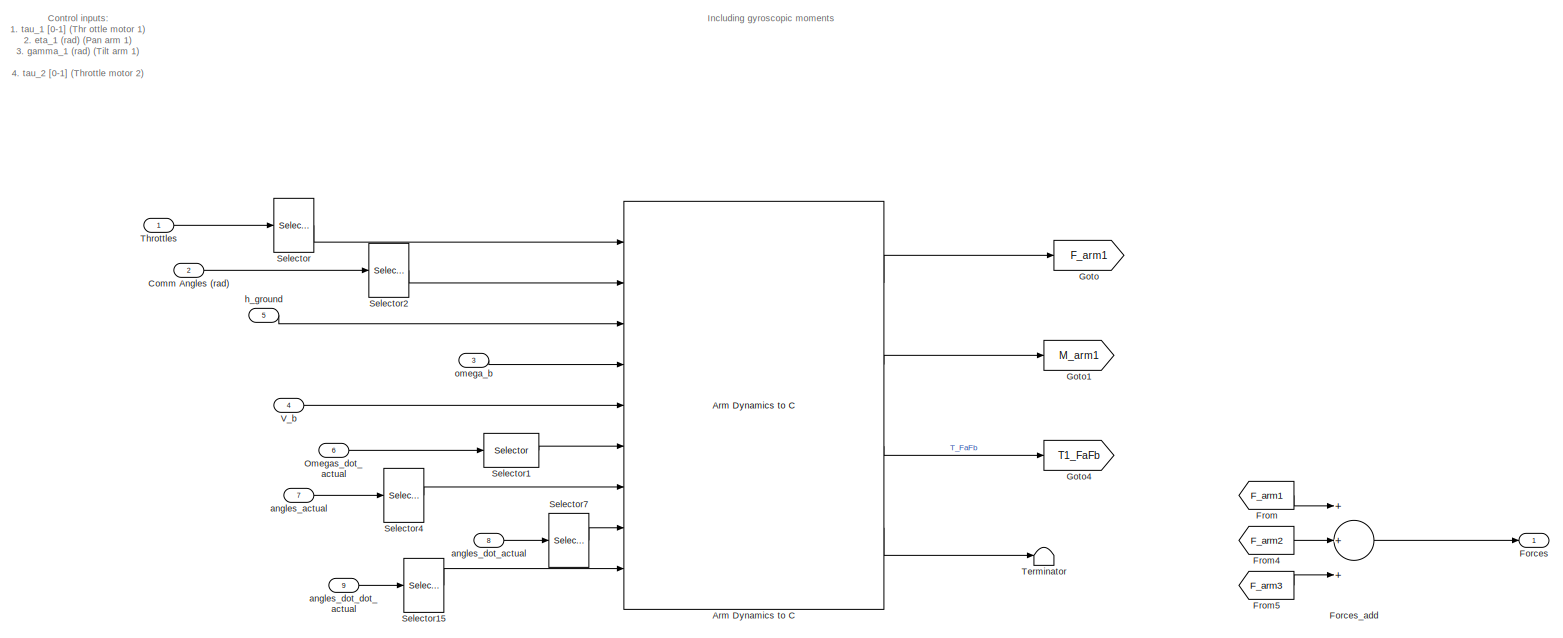
[diagram: TriCopter FCS development/NDI/3Copter_4_NDI&CA/Arms Dynamics: Forces and Moments - part 1/3, full width, top band]
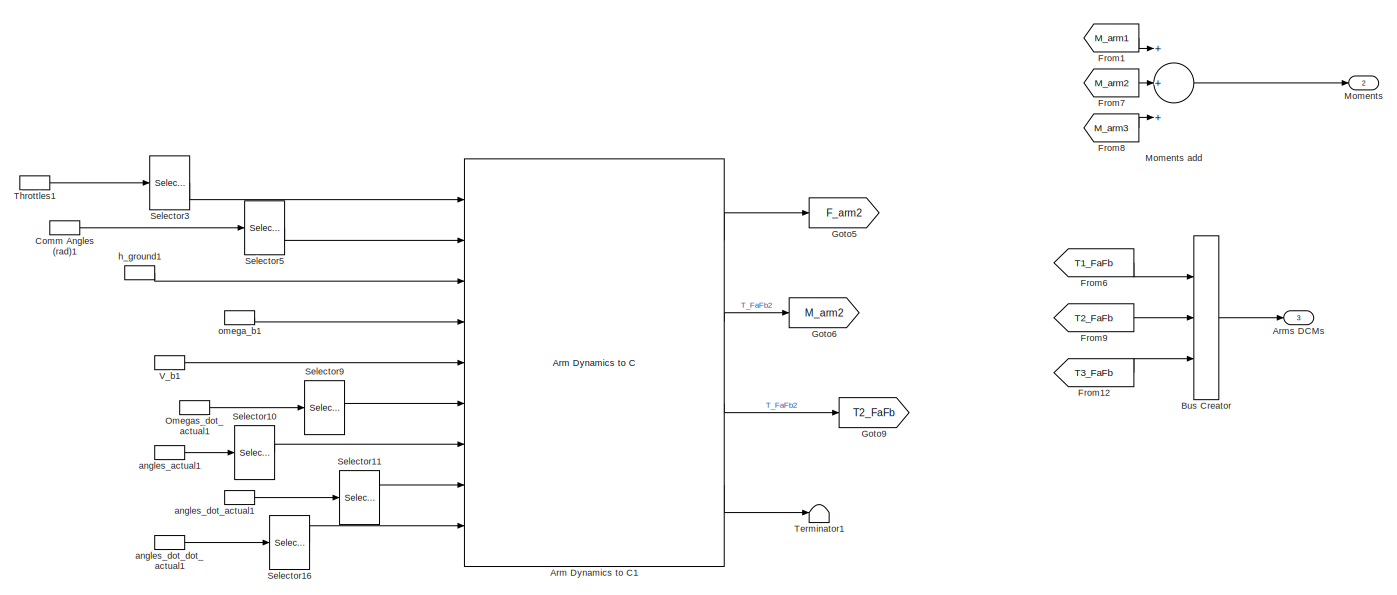
[diagram: TriCopter FCS development/NDI/3Copter_4_NDI&CA/Arms Dynamics: Forces and Moments - part 2/3, full width, middle band]
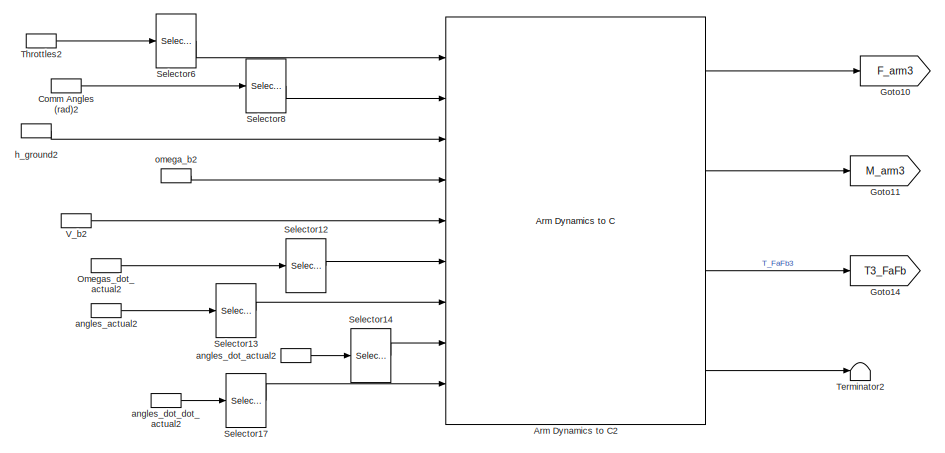
[diagram: TriCopter FCS development/NDI/3Copter_4_NDI&CA/Arms Dynamics: Forces and Moments - part 3/3, bottom center region]
BLOCK [SubSystem] TriCopter FCS development/NDI/3Copter_4_NDI&CA/Arms Dynamics: Forces and Moments
  Ports = [9, 3]
  RequestExecContextInheritance = off
  TreatAsAtomicUnit = on
BLOCK [Reference] TriCopter FCS development/NDI/3Copter_4_NDI&CA/Arms Dynamics: Forces and Moments/Arm Dynamics  to C  REF=XXCopter_Control/Arm Dynamics  to C
  Arm_axis = [l_arm;0;0]
  J_FA = J_FA
  J_T = J_T
  Ports = [9, 4]
  Rot_sign = Rotation_sign(1)
  SourceBlock = XXCopter_Control/Arm Dynamics  to C
  SourceType = Arm dynamics, kinematics, forces and moments
  arm_hub_pos = l*[1;0;0]
  arm_num = 1
  eta_dir = [1;0;0]
  eta_inf_lim = deg2rad(-180)
  eta_sup_lim = deg2rad(180)
  gamma_dir = [0;1;0]
  gamma_inf_lim = deg2rad(-90)
  gamma_sup_lim = deg2rad(15)
  h = h
  omega_n = 30
  switch_val = direct_feedforward
  xi = 1.4
BLOCK [Reference] TriCopter FCS development/NDI/3Copter_4_NDI&CA/Arms Dynamics: Forces and Moments/Arm Dynamics  to C1  REF=XXCopter_Control/Arm Dynamics  to C
  Arm_axis = [0;l_arm;0]
  J_FA = J_FA
  J_T = J_T
  Ports = [9, 4]
  Rot_sign = Rotation_sign(2)
  SourceBlock = XXCopter_Control/Arm Dynamics  to C
  SourceType = Arm dynamics, kinematics, forces and moments
  arm_hub_pos = l*[-1/2;sqrt(3)/2;0]
  arm_num = 2
  eta_dir = [0;1;0]
  eta_inf_lim = deg2rad(-180)
  eta_sup_lim = deg2rad(180)
  gamma_dir = [1;0;0]
  gamma_inf_lim = deg2rad(-15)
  gamma_sup_lim = deg2rad(90)
  h = h
  omega_n = 30
  switch_val = direct_feedforward
  xi = 1.4
BLOCK [Reference] TriCopter FCS development/NDI/3Copter_4_NDI&CA/Arms Dynamics: Forces and Moments/Arm Dynamics  to C2  REF=XXCopter_Control/Arm Dynamics  to C
  Arm_axis = [0;-l_arm;0]
  J_FA = J_FA
  J_T = J_T
  Ports = [9, 4]
  Rot_sign = Rotation_sign(3)
  SourceBlock = XXCopter_Control/Arm Dynamics  to C
  SourceType = Arm dynamics, kinematics, forces and moments
  arm_hub_pos = l*[-1/2;-sqrt(3)/2;0]
  arm_num = 3
  eta_dir = [0;1;0]
  eta_inf_lim = deg2rad(-180)
  eta_sup_lim = deg2rad(180)
  gamma_dir = [1;0;0]
  gamma_inf_lim = deg2rad(-90)
  gamma_sup_lim = deg2rad(15)
  h = h
  omega_n = 30
  switch_val = direct_feedforward
  xi = 1.4
BLOCK [Outport] TriCopter FCS development/NDI/3Copter_4_NDI&CA/Arms Dynamics: Forces and Moments/Arms DCMs
  IconDisplay = Port number
  Port = 3
BLOCK [BusCreator] TriCopter FCS development/NDI/3Copter_4_NDI&CA/Arms Dynamics: Forces and Moments/Bus Creator
  DisplayOption = bar
  Inputs = 3
  Ports = [3, 1]
BLOCK [Inport] TriCopter FCS development/NDI/3Copter_4_NDI&CA/Arms Dynamics: Forces and Moments/Comm Angles (rad)
  IconDisplay = Port number
  Port = 2
BLOCK [InportShadow] TriCopter FCS development/NDI/3Copter_4_NDI&CA/Arms Dynamics: Forces and Moments/Comm Angles (rad)1
  IconDisplay = Port number
  Port = 2
BLOCK [InportShadow] TriCopter FCS development/NDI/3Copter_4_NDI&CA/Arms Dynamics: Forces and Moments/Comm Angles (rad)2
  IconDisplay = Port number
  Port = 2
BLOCK [Outport] TriCopter FCS development/NDI/3Copter_4_NDI&CA/Arms Dynamics: Forces and Moments/Forces
  IconDisplay = Port number
BLOCK [Sum] TriCopter FCS development/NDI/3Copter_4_NDI&CA/Arms Dynamics: Forces and Moments/Forces_add
  InputSameDT = off
  Inputs = +++
  OutDataTypeStr = Inherit: Inherit via internal rule
  Ports = [3, 1]
  SaturateOnIntegerOverflow = off
BLOCK [From] TriCopter FCS development/NDI/3Copter_4_NDI&CA/Arms Dynamics: Forces and Moments/From
  GotoTag = F_arm1
BLOCK [From] TriCopter FCS development/NDI/3Copter_4_NDI&CA/Arms Dynamics: Forces and Moments/From1
  GotoTag = M_arm1
BLOCK [From] TriCopter FCS development/NDI/3Copter_4_NDI&CA/Arms Dynamics: Forces and Moments/From12
  GotoTag = T3_FaFb
BLOCK [From] TriCopter FCS development/NDI/3Copter_4_NDI&CA/Arms Dynamics: Forces and Moments/From4
  GotoTag = F_arm2
BLOCK [From] TriCopter FCS development/NDI/3Copter_4_NDI&CA/Arms Dynamics: Forces and Moments/From5
  GotoTag = F_arm3
BLOCK [From] TriCopter FCS development/NDI/3Copter_4_NDI&CA/Arms Dynamics: Forces and Moments/From6
  GotoTag = T1_FaFb
BLOCK [From] TriCopter FCS development/NDI/3Copter_4_NDI&CA/Arms Dynamics: Forces and Moments/From7
  GotoTag = M_arm2
BLOCK [From] TriCopter FCS development/NDI/3Copter_4_NDI&CA/Arms Dynamics: Forces and Moments/From8
  GotoTag = M_arm3
BLOCK [From] TriCopter FCS development/NDI/3Copter_4_NDI&CA/Arms Dynamics: Forces and Moments/From9
  GotoTag = T2_FaFb
BLOCK [Goto] TriCopter FCS development/NDI/3Copter_4_NDI&CA/Arms Dynamics: Forces and Moments/Goto
  GotoTag = F_arm1
BLOCK [Goto] TriCopter FCS development/NDI/3Copter_4_NDI&CA/Arms Dynamics: Forces and Moments/Goto1
  GotoTag = M_arm1
BLOCK [Goto] TriCopter FCS development/NDI/3Copter_4_NDI&CA/Arms Dynamics: Forces and Moments/Goto10
  GotoTag = F_arm3
BLOCK [Goto] TriCopter FCS development/NDI/3Copter_4_NDI&CA/Arms Dynamics: Forces and Moments/Goto11
  GotoTag = M_arm3
BLOCK [Goto] TriCopter FCS development/NDI/3Copter_4_NDI&CA/Arms Dynamics: Forces and Moments/Goto14
  GotoTag = T3_FaFb
BLOCK [Goto] TriCopter FCS development/NDI/3Copter_4_NDI&CA/Arms Dynamics: Forces and Moments/Goto4
  GotoTag = T1_FaFb
BLOCK [Goto] TriCopter FCS development/NDI/3Copter_4_NDI&CA/Arms Dynamics: Forces and Moments/Goto5
  GotoTag = F_arm2
BLOCK [Goto] TriCopter FCS development/NDI/3Copter_4_NDI&CA/Arms Dynamics: Forces and Moments/Goto6
  GotoTag = M_arm2
BLOCK [Goto] TriCopter FCS development/NDI/3Copter_4_NDI&CA/Arms Dynamics: Forces and Moments/Goto9
  GotoTag = T2_FaFb
BLOCK [Outport] TriCopter FCS development/NDI/3Copter_4_NDI&CA/Arms Dynamics: Forces and Moments/Moments
  IconDisplay = Port number
  Port = 2
BLOCK [Sum] TriCopter FCS development/NDI/3Copter_4_NDI&CA/Arms Dynamics: Forces and Moments/Moments add
  InputSameDT = off
  Inputs = +++
  OutDataTypeStr = Inherit: Inherit via internal rule
  Ports = [3, 1]
  SaturateOnIntegerOverflow = off
BLOCK [Inport] TriCopter FCS development/NDI/3Copter_4_NDI&CA/Arms Dynamics: Forces and Moments/Omegas_dot_actual
  IconDisplay = Port number
  Port = 6
BLOCK [InportShadow] TriCopter FCS development/NDI/3Copter_4_NDI&CA/Arms Dynamics: Forces and Moments/Omegas_dot_actual1
  IconDisplay = Port number
  Port = 6
BLOCK [InportShadow] TriCopter FCS development/NDI/3Copter_4_NDI&CA/Arms Dynamics: Forces and Moments/Omegas_dot_actual2
  IconDisplay = Port number
  Port = 6
BLOCK [Selector] TriCopter FCS development/NDI/3Copter_4_NDI&CA/Arms Dynamics: Forces and Moments/Selector
  IndexMode = Zero-based
  Indices = 0
  InputPortWidth = 3
  Ports = [1, 1]
BLOCK [Selector] TriCopter FCS development/NDI/3Copter_4_NDI&CA/Arms Dynamics: Forces and Moments/Selector1
  IndexMode = Zero-based
  Indices = 0
  InputPortWidth = 3
  Ports = [1, 1]
BLOCK [Selector] TriCopter FCS development/NDI/3Copter_4_NDI&CA/Arms Dynamics: Forces and Moments/Selector10
  IndexMode = Zero-based
  Indices = [2,3]
  InputPortWidth = 6
  Ports = [1, 1]
BLOCK [Selector] TriCopter FCS development/NDI/3Copter_4_NDI&CA/Arms Dynamics: Forces and Moments/Selector11
  IndexMode = Zero-based
  Indices = [2,3]
  InputPortWidth = 6
  Ports = [1, 1]
BLOCK [Selector] TriCopter FCS development/NDI/3Copter_4_NDI&CA/Arms Dynamics: Forces and Moments/Selector12
  IndexMode = Zero-based
  Indices = 2
  InputPortWidth = 3
  Ports = [1, 1]
BLOCK [Selector] TriCopter FCS development/NDI/3Copter_4_NDI&CA/Arms Dynamics: Forces and Moments/Selector13
  IndexMode = Zero-based
  Indices = [4,5]
  InputPortWidth = 6
  Ports = [1, 1]
BLOCK [Selector] TriCopter FCS development/NDI/3Copter_4_NDI&CA/Arms Dynamics: Forces and Moments/Selector14
  IndexMode = Zero-based
  Indices = [4,5]
  InputPortWidth = 6
  Ports = [1, 1]
BLOCK [Selector] TriCopter FCS development/NDI/3Copter_4_NDI&CA/Arms Dynamics: Forces and Moments/Selector15
  IndexMode = Zero-based
  Indices = [0,1]
  InputPortWidth = 6
  Ports = [1, 1]
BLOCK [Selector] TriCopter FCS development/NDI/3Copter_4_NDI&CA/Arms Dynamics: Forces and Moments/Selector16
  IndexMode = Zero-based
  Indices = [2,3]
  InputPortWidth = 6
  Ports = [1, 1]
BLOCK [Selector] TriCopter FCS development/NDI/3Copter_4_NDI&CA/Arms Dynamics: Forces and Moments/Selector17
  IndexMode = Zero-based
  Indices = [4,5]
  InputPortWidth = 6
  Ports = [1, 1]
BLOCK [Selector] TriCopter FCS development/NDI/3Copter_4_NDI&CA/Arms Dynamics: Forces and Moments/Selector2
  IndexMode = Zero-based
  Indices = [0,1]
  InputPortWidth = 6
  Ports = [1, 1]
BLOCK [Selector] TriCopter FCS development/NDI/3Copter_4_NDI&CA/Arms Dynamics: Forces and Moments/Selector3
  IndexMode = Zero-based
  InputPortWidth = 3
  Ports = [1, 1]
BLOCK [Selector] TriCopter FCS development/NDI/3Copter_4_NDI&CA/Arms Dynamics: Forces and Moments/Selector4
  IndexMode = Zero-based
  Indices = [0,1]
  InputPortWidth = 6
  Ports = [1, 1]
BLOCK [Selector] TriCopter FCS development/NDI/3Copter_4_NDI&CA/Arms Dynamics: Forces and Moments/Selector5
  IndexMode = Zero-based
  Indices = [2,3]
  InputPortWidth = 6
  Ports = [1, 1]
BLOCK [Selector] TriCopter FCS development/NDI/3Copter_4_NDI&CA/Arms Dynamics: Forces and Moments/Selector6
  IndexMode = Zero-based
  Indices = 2
  InputPortWidth = 3
  Ports = [1, 1]
BLOCK [Selector] TriCopter FCS development/NDI/3Copter_4_NDI&CA/Arms Dynamics: Forces and Moments/Selector7
  IndexMode = Zero-based
  Indices = [0,1]
  InputPortWidth = 6
  Ports = [1, 1]
BLOCK [Selector] TriCopter FCS development/NDI/3Copter_4_NDI&CA/Arms Dynamics: Forces and Moments/Selector8
  IndexMode = Zero-based
  Indices = [4,5]
  InputPortWidth = 6
  Ports = [1, 1]
BLOCK [Selector] TriCopter FCS development/NDI/3Copter_4_NDI&CA/Arms Dynamics: Forces and Moments/Selector9
  IndexMode = Zero-based
  InputPortWidth = 3
  Ports = [1, 1]
BLOCK [Terminator] TriCopter FCS development/NDI/3Copter_4_NDI&CA/Arms Dynamics: Forces and Moments/Terminator
BLOCK [Terminator] TriCopter FCS development/NDI/3Copter_4_NDI&CA/Arms Dynamics: Forces and Moments/Terminator1
BLOCK [Terminator] TriCopter FCS development/NDI/3Copter_4_NDI&CA/Arms Dynamics: Forces and Moments/Terminator2
BLOCK [Inport] TriCopter FCS development/NDI/3Copter_4_NDI&CA/Arms Dynamics: Forces and Moments/Throttles
  IconDisplay = Port number
BLOCK [InportShadow] TriCopter FCS development/NDI/3Copter_4_NDI&CA/Arms Dynamics: Forces and Moments/Throttles1
  IconDisplay = Port number
BLOCK [InportShadow] TriCopter FCS development/NDI/3Copter_4_NDI&CA/Arms Dynamics: Forces and Moments/Throttles2
  IconDisplay = Port number
BLOCK [Inport] TriCopter FCS development/NDI/3Copter_4_NDI&CA/Arms Dynamics: Forces and Moments/V_b
  IconDisplay = Port number
  Port = 4
BLOCK [InportShadow] TriCopter FCS development/NDI/3Copter_4_NDI&CA/Arms Dynamics: Forces and Moments/V_b1
  IconDisplay = Port number
  Port = 4
BLOCK [InportShadow] TriCopter FCS development/NDI/3Copter_4_NDI&CA/Arms Dynamics: Forces and Moments/V_b2
  IconDisplay = Port number
  Port = 4
BLOCK [Inport] TriCopter FCS development/NDI/3Copter_4_NDI&CA/Arms Dynamics: Forces and Moments/angles_actual
  IconDisplay = Port number
  Port = 7
BLOCK [InportShadow] TriCopter FCS development/NDI/3Copter_4_NDI&CA/Arms Dynamics: Forces and Moments/angles_actual1
  IconDisplay = Port number
  Port = 7
BLOCK [InportShadow] TriCopter FCS development/NDI/3Copter_4_NDI&CA/Arms Dynamics: Forces and Moments/angles_actual2
  IconDisplay = Port number
  Port = 7
BLOCK [Inport] TriCopter FCS development/NDI/3Copter_4_NDI&CA/Arms Dynamics: Forces and Moments/angles_dot_actual
  IconDisplay = Port number
  Port = 8
BLOCK [InportShadow] TriCopter FCS development/NDI/3Copter_4_NDI&CA/Arms Dynamics: Forces and Moments/angles_dot_actual1
  IconDisplay = Port number
  Port = 8
BLOCK [InportShadow] TriCopter FCS development/NDI/3Copter_4_NDI&CA/Arms Dynamics: Forces and Moments/angles_dot_actual2
  IconDisplay = Port number
  Port = 8
BLOCK [Inport] TriCopter FCS development/NDI/3Copter_4_NDI&CA/Arms Dynamics: Forces and Moments/angles_dot_dot_actual
  IconDisplay = Port number
  Port = 9
BLOCK [InportShadow] TriCopter FCS development/NDI/3Copter_4_NDI&CA/Arms Dynamics: Forces and Moments/angles_dot_dot_actual1
  IconDisplay = Port number
  Port = 9
BLOCK [InportShadow] TriCopter FCS development/NDI/3Copter_4_NDI&CA/Arms Dynamics: Forces and Moments/angles_dot_dot_actual2
  IconDisplay = Port number
  Port = 9
BLOCK [Inport] TriCopter FCS development/NDI/3Copter_4_NDI&CA/Arms Dynamics: Forces and Moments/h_ground
  IconDisplay = Port number
  Port = 5
BLOCK [InportShadow] TriCopter FCS development/NDI/3Copter_4_NDI&CA/Arms Dynamics: Forces and Moments/h_ground1
  IconDisplay = Port number
  Port = 5
BLOCK [InportShadow] TriCopter FCS development/NDI/3Copter_4_NDI&CA/Arms Dynamics: Forces and Moments/h_ground2
  IconDisplay = Port number
  Port = 5
BLOCK [Inport] TriCopter FCS development/NDI/3Copter_4_NDI&CA/Arms Dynamics: Forces and Moments/omega_b
  IconDisplay = Port number
  Port = 3
BLOCK [InportShadow] TriCopter FCS development/NDI/3Copter_4_NDI&CA/Arms Dynamics: Forces and Moments/omega_b1
  IconDisplay = Port number
  Port = 3
BLOCK [InportShadow] TriCopter FCS development/NDI/3Copter_4_NDI&CA/Arms Dynamics: Forces and Moments/omega_b2
  IconDisplay = Port number
  Port = 3
BLOCK [Bias] TriCopter FCS development/NDI/3Copter_4_NDI&CA/Bias from bottom to prop assuming euler=0
  Bias = 0.04+h
  SaturateOnIntegerOverflow = off
BLOCK [Outport] TriCopter FCS development/NDI/3Copter_4_NDI&CA/CA_grad
  IconDisplay = Port number
  Port = 3
BLOCK [Constant] TriCopter FCS development/NDI/3Copter_4_NDI&CA/CG
  Value = CG_0
BLOCK [Outport] TriCopter FCS development/NDI/3Copter_4_NDI&CA/CG 
  IconDisplay = Port number
  Port = 5
BLOCK [Inport] TriCopter FCS development/NDI/3Copter_4_NDI&CA/Control Inputs (rad)
  IconDisplay = Port number
  Port = 2
BLOCK [Product] TriCopter FCS development/NDI/3Copter_4_NDI&CA/Equivalent Throttle
  InputSameDT = off
  Inputs = **
  OutDataTypeStr = Inherit: Inherit via internal rule
  Ports = [2, 1]
  RndMeth = Floor
  SaturateOnIntegerOverflow = off
BLOCK [Outport] TriCopter FCS development/NDI/3Copter_4_NDI&CA/Forces
  IconDisplay = Port number
BLOCK [From] TriCopter FCS development/NDI/3Copter_4_NDI&CA/From12
  GotoTag = M_g
BLOCK [From] TriCopter FCS development/NDI/3Copter_4_NDI&CA/From2
  GotoTag = F_arm
BLOCK [From] TriCopter FCS development/NDI/3Copter_4_NDI&CA/From4
  GotoTag = F_g
BLOCK [From] TriCopter FCS development/NDI/3Copter_4_NDI&CA/From5
  GotoTag = M_arm
BLOCK [From] TriCopter FCS development/NDI/3Copter_4_NDI&CA/From7
  GotoTag = M_g
BLOCK [From] TriCopter FCS development/NDI/3Copter_4_NDI&CA/From9
  GotoTag = F_g
BLOCK [SubSystem] TriCopter FCS development/NDI/3Copter_4_NDI&CA/Get gradient
  ErrorFcn = Stateflow.Translate.translate
  PermitHierarchicalResolution = ExplicitOnly
  Ports = [2, 1]
  RequestExecContextInheritance = off
  SFBlockType = MATLAB Function
  TreatAsAtomicUnit = on
BLOCK [Demux] TriCopter FCS development/NDI/3Copter_4_NDI&CA/Get gradient/ Demux 
  Outputs = 1
  Ports = [1, 1]
BLOCK [S-Function] TriCopter FCS development/NDI/3Copter_4_NDI&CA/Get gradient/ SFunction 
  EnableBusSupport = on
  FunctionName = sf_sfun
  PortCounts = [2 2]
  Ports = [2, 2]
  Tag = Stateflow S-Function Tricopter_Controlled_development 37
BLOCK [Terminator] TriCopter FCS development/NDI/3Copter_4_NDI&CA/Get gradient/ Terminator 
BLOCK [Outport] TriCopter FCS development/NDI/3Copter_4_NDI&CA/Get gradient/CA_Grad
  IconDisplay = Port number
BLOCK [Inport] TriCopter FCS development/NDI/3Copter_4_NDI&CA/Get gradient/Perturb_evaluations
  IconDisplay = Port number
  Port = 2
BLOCK [Inport] TriCopter FCS development/NDI/3Copter_4_NDI&CA/Get gradient/epsilon
  IconDisplay = Port number
BLOCK [Goto] TriCopter FCS development/NDI/3Copter_4_NDI&CA/Goto2
  GotoTag = F_arm
BLOCK [Goto] TriCopter FCS development/NDI/3Copter_4_NDI&CA/Goto3
  GotoTag = M_arm
BLOCK [Goto] TriCopter FCS development/NDI/3Copter_4_NDI&CA/Goto6
  GotoTag = F_g
BLOCK [Goto] TriCopter FCS development/NDI/3Copter_4_NDI&CA/Goto7
  GotoTag = M_g
BLOCK [SubSystem] TriCopter FCS development/NDI/3Copter_4_NDI&CA/Gradient
  Ports = [10, 1]
  RequestExecContextInheritance = off
  TreatAsAtomicUnit = on
BLOCK [Sum] TriCopter FCS development/NDI/3Copter_4_NDI&CA/Gradient/Add
  InputSameDT = off
  OutDataTypeStr = Inherit: Inherit via internal rule
  Ports = [2, 1]
  SaturateOnIntegerOverflow = off
BLOCK [Sum] TriCopter FCS development/NDI/3Copter_4_NDI&CA/Gradient/Add1
  InputSameDT = off
  OutDataTypeStr = Inherit: Inherit via internal rule
  Ports = [2, 1]
  SaturateOnIntegerOverflow = off
BLOCK [SubSystem] TriCopter FCS development/NDI/3Copter_4_NDI&CA/Gradient/Arms Dynamics: Forces and Moments
  Ports = [9, 3]
  RequestExecContextInheritance = off
  TreatAsAtomicUnit = on
BLOCK [Reference] TriCopter FCS development/NDI/3Copter_4_NDI&CA/Gradient/Arms Dynamics: Forces and Moments/Arm Dynamics  to C  REF=XXCopter_Control/Arm Dynamics  to C
  Arm_axis = [l_arm;0;0]
  J_FA = J_FA
  J_T = J_T
  Ports = [9, 4]
  Rot_sign = Rotation_sign(1)
  SourceBlock = XXCopter_Control/Arm Dynamics  to C
  SourceType = Arm dynamics, kinematics, forces and moments
  arm_hub_pos = l*[1;0;0]
  arm_num = 1
  eta_dir = [1;0;0]
  eta_inf_lim = deg2rad(-180)
  eta_sup_lim = deg2rad(180)
  gamma_dir = [0;1;0]
  gamma_inf_lim = deg2rad(-90)
  gamma_sup_lim = deg2rad(15)
  h = h
  omega_n = 30
  switch_val = direct_feedforward
  xi = 1.4
BLOCK [Reference] TriCopter FCS development/NDI/3Copter_4_NDI&CA/Gradient/Arms Dynamics: Forces and Moments/Arm Dynamics  to C1  REF=XXCopter_Control/Arm Dynamics  to C
  Arm_axis = [0;l_arm;0]
  J_FA = J_FA
  J_T = J_T
  Ports = [9, 4]
  Rot_sign = Rotation_sign(2)
  SourceBlock = XXCopter_Control/Arm Dynamics  to C
  SourceType = Arm dynamics, kinematics, forces and moments
  arm_hub_pos = l*[-1/2;sqrt(3)/2;0]
  arm_num = 2
  eta_dir = [0;1;0]
  eta_inf_lim = deg2rad(-180)
  eta_sup_lim = deg2rad(180)
  gamma_dir = [1;0;0]
  gamma_inf_lim = deg2rad(-15)
  gamma_sup_lim = deg2rad(90)
  h = h
  omega_n = 30
  switch_val = direct_feedforward
  xi = 1.4
BLOCK [Reference] TriCopter FCS development/NDI/3Copter_4_NDI&CA/Gradient/Arms Dynamics: Forces and Moments/Arm Dynamics  to C2  REF=XXCopter_Control/Arm Dynamics  to C
  Arm_axis = [0;-l_arm;0]
  J_FA = J_FA
  J_T = J_T
  Ports = [9, 4]
  Rot_sign = Rotation_sign(3)
  SourceBlock = XXCopter_Control/Arm Dynamics  to C
  SourceType = Arm dynamics, kinematics, forces and moments
  arm_hub_pos = l*[-1/2;-sqrt(3)/2;0]
  arm_num = 3
  eta_dir = [0;1;0]
  eta_inf_lim = deg2rad(-180)
  eta_sup_lim = deg2rad(180)
  gamma_dir = [1;0;0]
  gamma_inf_lim = deg2rad(-90)
  gamma_sup_lim = deg2rad(15)
  h = h
  omega_n = 30
  switch_val = direct_feedforward
  xi = 1.4
BLOCK [Outport] TriCopter FCS development/NDI/3Copter_4_NDI&CA/Gradient/Arms Dynamics: Forces and Moments/Arms DCMs
  IconDisplay = Port number
  Port = 3
BLOCK [BusCreator] TriCopter FCS development/NDI/3Copter_4_NDI&CA/Gradient/Arms Dynamics: Forces and Moments/Bus Creator
  DisplayOption = bar
  Inputs = 3
  Ports = [3, 1]
BLOCK [Inport] TriCopter FCS development/NDI/3Copter_4_NDI&CA/Gradient/Arms Dynamics: Forces and Moments/Comm Angles (rad)
  IconDisplay = Port number
  Port = 2
BLOCK [InportShadow] TriCopter FCS development/NDI/3Copter_4_NDI&CA/Gradient/Arms Dynamics: Forces and Moments/Comm Angles (rad)1
  IconDisplay = Port number
  Port = 2
BLOCK [InportShadow] TriCopter FCS development/NDI/3Copter_4_NDI&CA/Gradient/Arms Dynamics: Forces and Moments/Comm Angles (rad)2
  IconDisplay = Port number
  Port = 2
BLOCK [Outport] TriCopter FCS development/NDI/3Copter_4_NDI&CA/Gradient/Arms Dynamics: Forces and Moments/Forces
  IconDisplay = Port number
BLOCK [Sum] TriCopter FCS development/NDI/3Copter_4_NDI&CA/Gradient/Arms Dynamics: Forces and Moments/Forces_add
  InputSameDT = off
  Inputs = +++
  OutDataTypeStr = Inherit: Inherit via internal rule
  Ports = [3, 1]
  SaturateOnIntegerOverflow = off
BLOCK [From] TriCopter FCS development/NDI/3Copter_4_NDI&CA/Gradient/Arms Dynamics: Forces and Moments/From
  GotoTag = F_arm1
BLOCK [From] TriCopter FCS development/NDI/3Copter_4_NDI&CA/Gradient/Arms Dynamics: Forces and Moments/From1
  GotoTag = M_arm1
BLOCK [From] TriCopter FCS development/NDI/3Copter_4_NDI&CA/Gradient/Arms Dynamics: Forces and Moments/From12
  GotoTag = T3_FaFb
BLOCK [From] TriCopter FCS development/NDI/3Copter_4_NDI&CA/Gradient/Arms Dynamics: Forces and Moments/From4
  GotoTag = F_arm2
BLOCK [From] TriCopter FCS development/NDI/3Copter_4_NDI&CA/Gradient/Arms Dynamics: Forces and Moments/From5
  GotoTag = F_arm3
BLOCK [From] TriCopter FCS development/NDI/3Copter_4_NDI&CA/Gradient/Arms Dynamics: Forces and Moments/From6
  GotoTag = T1_FaFb
BLOCK [From] TriCopter FCS development/NDI/3Copter_4_NDI&CA/Gradient/Arms Dynamics: Forces and Moments/From7
  GotoTag = M_arm2
BLOCK [From] TriCopter FCS development/NDI/3Copter_4_NDI&CA/Gradient/Arms Dynamics: Forces and Moments/From8
  GotoTag = M_arm3
BLOCK [From] TriCopter FCS development/NDI/3Copter_4_NDI&CA/Gradient/Arms Dynamics: Forces and Moments/From9
  GotoTag = T2_FaFb
BLOCK [Goto] TriCopter FCS development/NDI/3Copter_4_NDI&CA/Gradient/Arms Dynamics: Forces and Moments/Goto
  GotoTag = F_arm1
BLOCK [Goto] TriCopter FCS development/NDI/3Copter_4_NDI&CA/Gradient/Arms Dynamics: Forces and Moments/Goto1
  GotoTag = M_arm1
BLOCK [Goto] TriCopter FCS development/NDI/3Copter_4_NDI&CA/Gradient/Arms Dynamics: Forces and Moments/Goto10
  GotoTag = F_arm3
BLOCK [Goto] TriCopter FCS development/NDI/3Copter_4_NDI&CA/Gradient/Arms Dynamics: Forces and Moments/Goto11
  GotoTag = M_arm3
BLOCK [Goto] TriCopter FCS development/NDI/3Copter_4_NDI&CA/Gradient/Arms Dynamics: Forces and Moments/Goto14
  GotoTag = T3_FaFb
BLOCK [Goto] TriCopter FCS development/NDI/3Copter_4_NDI&CA/Gradient/Arms Dynamics: Forces and Moments/Goto4
  GotoTag = T1_FaFb
BLOCK [Goto] TriCopter FCS development/NDI/3Copter_4_NDI&CA/Gradient/Arms Dynamics: Forces and Moments/Goto5
  GotoTag = F_arm2
BLOCK [Goto] TriCopter FCS development/NDI/3Copter_4_NDI&CA/Gradient/Arms Dynamics: Forces and Moments/Goto6
  GotoTag = M_arm2
BLOCK [Goto] TriCopter FCS development/NDI/3Copter_4_NDI&CA/Gradient/Arms Dynamics: Forces and Moments/Goto9
  GotoTag = T2_FaFb
BLOCK [Outport] TriCopter FCS development/NDI/3Copter_4_NDI&CA/Gradient/Arms Dynamics: Forces and Moments/Moments
  IconDisplay = Port number
  Port = 2
BLOCK [Sum] TriCopter FCS development/NDI/3Copter_4_NDI&CA/Gradient/Arms Dynamics: Forces and Moments/Moments add
  InputSameDT = off
  Inputs = +++
  OutDataTypeStr = Inherit: Inherit via internal rule
  Ports = [3, 1]
  SaturateOnIntegerOverflow = off
BLOCK [Inport] TriCopter FCS development/NDI/3Copter_4_NDI&CA/Gradient/Arms Dynamics: Forces and Moments/Omegas_dot_actual
  IconDisplay = Port number
  Port = 6
BLOCK [InportShadow] TriCopter FCS development/NDI/3Copter_4_NDI&CA/Gradient/Arms Dynamics: Forces and Moments/Omegas_dot_actual1
  IconDisplay = Port number
  Port = 6
BLOCK [InportShadow] TriCopter FCS development/NDI/3Copter_4_NDI&CA/Gradient/Arms Dynamics: Forces and Moments/Omegas_dot_actual2
  IconDisplay = Port number
  Port = 6
BLOCK [Selector] TriCopter FCS development/NDI/3Copter_4_NDI&CA/Gradient/Arms Dynamics: Forces and Moments/Selector
  IndexMode = Zero-based
  Indices = 0
  InputPortWidth = 3
  Ports = [1, 1]
BLOCK [Selector] TriCopter FCS development/NDI/3Copter_4_NDI&CA/Gradient/Arms Dynamics: Forces and Moments/Selector1
  IndexMode = Zero-based
  Indices = 0
  InputPortWidth = 3
  Ports = [1, 1]
BLOCK [Selector] TriCopter FCS development/NDI/3Copter_4_NDI&CA/Gradient/Arms Dynamics: Forces and Moments/Selector10
  IndexMode = Zero-based
  Indices = [2,3]
  InputPortWidth = 6
  Ports = [1, 1]
BLOCK [Selector] TriCopter FCS development/NDI/3Copter_4_NDI&CA/Gradient/Arms Dynamics: Forces and Moments/Selector11
  IndexMode = Zero-based
  Indices = [2,3]
  InputPortWidth = 6
  Ports = [1, 1]
BLOCK [Selector] TriCopter FCS development/NDI/3Copter_4_NDI&CA/Gradient/Arms Dynamics: Forces and Moments/Selector12
  IndexMode = Zero-based
  Indices = 2
  InputPortWidth = 3
  Ports = [1, 1]
BLOCK [Selector] TriCopter FCS development/NDI/3Copter_4_NDI&CA/Gradient/Arms Dynamics: Forces and Moments/Selector13
  IndexMode = Zero-based
  Indices = [4,5]
  InputPortWidth = 6
  Ports = [1, 1]
BLOCK [Selector] TriCopter FCS development/NDI/3Copter_4_NDI&CA/Gradient/Arms Dynamics: Forces and Moments/Selector14
  IndexMode = Zero-based
  Indices = [4,5]
  InputPortWidth = 6
  Ports = [1, 1]
BLOCK [Selector] TriCopter FCS development/NDI/3Copter_4_NDI&CA/Gradient/Arms Dynamics: Forces and Moments/Selector15
  IndexMode = Zero-based
  Indices = [0,1]
  InputPortWidth = 6
  Ports = [1, 1]
BLOCK [Selector] TriCopter FCS development/NDI/3Copter_4_NDI&CA/Gradient/Arms Dynamics: Forces and Moments/Selector16
  IndexMode = Zero-based
  Indices = [2,3]
  InputPortWidth = 6
  Ports = [1, 1]
BLOCK [Selector] TriCopter FCS development/NDI/3Copter_4_NDI&CA/Gradient/Arms Dynamics: Forces and Moments/Selector17
  IndexMode = Zero-based
  Indices = [4,5]
  InputPortWidth = 6
  Ports = [1, 1]
BLOCK [Selector] TriCopter FCS development/NDI/3Copter_4_NDI&CA/Gradient/Arms Dynamics: Forces and Moments/Selector2
  IndexMode = Zero-based
  Indices = [0,1]
  InputPortWidth = 6
  Ports = [1, 1]
BLOCK [Selector] TriCopter FCS development/NDI/3Copter_4_NDI&CA/Gradient/Arms Dynamics: Forces and Moments/Selector3
  IndexMode = Zero-based
  InputPortWidth = 3
  Ports = [1, 1]
BLOCK [Selector] TriCopter FCS development/NDI/3Copter_4_NDI&CA/Gradient/Arms Dynamics: Forces and Moments/Selector4
  IndexMode = Zero-based
  Indices = [0,1]
  InputPortWidth = 6
  Ports = [1, 1]
BLOCK [Selector] TriCopter FCS development/NDI/3Copter_4_NDI&CA/Gradient/Arms Dynamics: Forces and Moments/Selector5
  IndexMode = Zero-based
  Indices = [2,3]
  InputPortWidth = 6
  Ports = [1, 1]
BLOCK [Selector] TriCopter FCS development/NDI/3Copter_4_NDI&CA/Gradient/Arms Dynamics: Forces and Moments/Selector6
  IndexMode = Zero-based
  Indices = 2
  InputPortWidth = 3
  Ports = [1, 1]
BLOCK [Selector] TriCopter FCS development/NDI/3Copter_4_NDI&CA/Gradient/Arms Dynamics: Forces and Moments/Selector7
  IndexMode = Zero-based
  Indices = [0,1]
  InputPortWidth = 6
  Ports = [1, 1]
BLOCK [Selector] TriCopter FCS development/NDI/3Copter_4_NDI&CA/Gradient/Arms Dynamics: Forces and Moments/Selector8
  IndexMode = Zero-based
  Indices = [4,5]
  InputPortWidth = 6
  Ports = [1, 1]
BLOCK [Selector] TriCopter FCS development/NDI/3Copter_4_NDI&CA/Gradient/Arms Dynamics: Forces and Moments/Selector9
  IndexMode = Zero-based
  InputPortWidth = 3
  Ports = [1, 1]
BLOCK [Terminator] TriCopter FCS development/NDI/3Copter_4_NDI&CA/Gradient/Arms Dynamics: Forces and Moments/Terminator
BLOCK [Terminator] TriCopter FCS development/NDI/3Copter_4_NDI&CA/Gradient/Arms Dynamics: Forces and Moments/Terminator1
BLOCK [Terminator] TriCopter FCS development/NDI/3Copter_4_NDI&CA/Gradient/Arms Dynamics: Forces and Moments/Terminator2
BLOCK [Inport] TriCopter FCS development/NDI/3Copter_4_NDI&CA/Gradient/Arms Dynamics: Forces and Moments/Throttles
  IconDisplay = Port number
BLOCK [InportShadow] TriCopter FCS development/NDI/3Copter_4_NDI&CA/Gradient/Arms Dynamics: Forces and Moments/Throttles1
  IconDisplay = Port number
BLOCK [InportShadow] TriCopter FCS development/NDI/3Copter_4_NDI&CA/Gradient/Arms Dynamics: Forces and Moments/Throttles2
  IconDisplay = Port number
BLOCK [Inport] TriCopter FCS development/NDI/3Copter_4_NDI&CA/Gradient/Arms Dynamics: Forces and Moments/V_b
  IconDisplay = Port number
  Port = 4
BLOCK [InportShadow] TriCopter FCS development/NDI/3Copter_4_NDI&CA/Gradient/Arms Dynamics: Forces and Moments/V_b1
  IconDisplay = Port number
  Port = 4
BLOCK [InportShadow] TriCopter FCS development/NDI/3Copter_4_NDI&CA/Gradient/Arms Dynamics: Forces and Moments/V_b2
  IconDisplay = Port number
  Port = 4
BLOCK [Inport] TriCopter FCS development/NDI/3Copter_4_NDI&CA/Gradient/Arms Dynamics: Forces and Moments/angles_actual
  IconDisplay = Port number
  Port = 7
BLOCK [InportShadow] TriCopter FCS development/NDI/3Copter_4_NDI&CA/Gradient/Arms Dynamics: Forces and Moments/angles_actual1
  IconDisplay = Port number
  Port = 7
BLOCK [InportShadow] TriCopter FCS development/NDI/3Copter_4_NDI&CA/Gradient/Arms Dynamics: Forces and Moments/angles_actual2
  IconDisplay = Port number
  Port = 7
BLOCK [Inport] TriCopter FCS development/NDI/3Copter_4_NDI&CA/Gradient/Arms Dynamics: Forces and Moments/angles_dot_actual
  IconDisplay = Port number
  Port = 8
BLOCK [InportShadow] TriCopter FCS development/NDI/3Copter_4_NDI&CA/Gradient/Arms Dynamics: Forces and Moments/angles_dot_actual1
  IconDisplay = Port number
  Port = 8
BLOCK [InportShadow] TriCopter FCS development/NDI/3Copter_4_NDI&CA/Gradient/Arms Dynamics: Forces and Moments/angles_dot_actual2
  IconDisplay = Port number
  Port = 8
BLOCK [Inport] TriCopter FCS development/NDI/3Copter_4_NDI&CA/Gradient/Arms Dynamics: Forces and Moments/angles_dot_dot_actual
  IconDisplay = Port number
  Port = 9
BLOCK [InportShadow] TriCopter FCS development/NDI/3Copter_4_NDI&CA/Gradient/Arms Dynamics: Forces and Moments/angles_dot_dot_actual1
  IconDisplay = Port number
  Port = 9
BLOCK [InportShadow] TriCopter FCS development/NDI/3Copter_4_NDI&CA/Gradient/Arms Dynamics: Forces and Moments/angles_dot_dot_actual2
  IconDisplay = Port number
  Port = 9
BLOCK [Inport] TriCopter FCS development/NDI/3Copter_4_NDI&CA/Gradient/Arms Dynamics: Forces and Moments/h_ground
  IconDisplay = Port number
  Port = 5
BLOCK [InportShadow] TriCopter FCS development/NDI/3Copter_4_NDI&CA/Gradient/Arms Dynamics: Forces and Moments/h_ground1
  IconDisplay = Port number
  Port = 5
BLOCK [InportShadow] TriCopter FCS development/NDI/3Copter_4_NDI&CA/Gradient/Arms Dynamics: Forces and Moments/h_ground2
  IconDisplay = Port number
  Port = 5
BLOCK [Inport] TriCopter FCS development/NDI/3Copter_4_NDI&CA/Gradient/Arms Dynamics: Forces and Moments/omega_b
  IconDisplay = Port number
  Port = 3
BLOCK [InportShadow] TriCopter FCS development/NDI/3Copter_4_NDI&CA/Gradient/Arms Dynamics: Forces and Moments/omega_b1
  IconDisplay = Port number
  Port = 3
BLOCK [InportShadow] TriCopter FCS development/NDI/3Copter_4_NDI&CA/Gradient/Arms Dynamics: Forces and Moments/omega_b2
  IconDisplay = Port number
  Port = 3
BLOCK [Inport] TriCopter FCS development/NDI/3Copter_4_NDI&CA/Gradient/Control Inputs(rad) 
  IconDisplay = Port number
  Partition = on
  PartitionDimension = 1
  PartitionWidth = 9
BLOCK [Product] TriCopter FCS development/NDI/3Copter_4_NDI&CA/Gradient/Equivalent Throttle
  InputSameDT = off
  Inputs = **
  OutDataTypeStr = Inherit: Inherit via internal rule
  Ports = [2, 1]
  RndMeth = Floor
  SaturateOnIntegerOverflow = off
BLOCK [Inport] TriCopter FCS development/NDI/3Copter_4_NDI&CA/Gradient/F_g
  IconDisplay = Port number
  Partition = off
  Port = 9
BLOCK [ForEach] TriCopter FCS development/NDI/3Copter_4_NDI&CA/Gradient/For Each
  DisableCoverage = on
  IndexMode = One-based
  Ports = []
BLOCK [Outport] TriCopter FCS development/NDI/3Copter_4_NDI&CA/Gradient/Forces_Moments
  ConcatenationDimension = 2
  IconDisplay = Port number
BLOCK [Inport] TriCopter FCS development/NDI/3Copter_4_NDI&CA/Gradient/M_g
  IconDisplay = Port number
  Partition = off
  Port = 10
BLOCK [Mux] TriCopter FCS development/NDI/3Copter_4_NDI&CA/Gradient/Mux
  DisplayOption = bar
  Inputs = [3,3]
  Ports = [2, 1]
BLOCK [Inport] TriCopter FCS development/NDI/3Copter_4_NDI&CA/Gradient/Omegas_dot_actual
  IconDisplay = Port number
  Partition = off
  Port = 5
BLOCK [Constant] TriCopter FCS development/NDI/3Copter_4_NDI&CA/Gradient/Reference batrery level (V)
  Value = 16
BLOCK [SignalSpecification] TriCopter FCS development/NDI/3Copter_4_NDI&CA/Gradient/Signal Specification
  Dimensions = [6,1]
BLOCK [Terminator] TriCopter FCS development/NDI/3Copter_4_NDI&CA/Gradient/Terminator
BLOCK [Selector] TriCopter FCS development/NDI/3Copter_4_NDI&CA/Gradient/Throttles
  IndexMode = Zero-based
  Indices = [0,3,6]
  InputPortWidth = 9
  Ports = [1, 1]
BLOCK [Inport] TriCopter FCS development/NDI/3Copter_4_NDI&CA/Gradient/Vb
  IconDisplay = Port number
  Partition = off
  Port = 3
BLOCK [Selector] TriCopter FCS development/NDI/3Copter_4_NDI&CA/Gradient/angles 
  IndexMode = Zero-based
  Indices = [1,2,4,5,7,8]
  InputPortWidth = 9
  Ports = [1, 1]
BLOCK [Inport] TriCopter FCS development/NDI/3Copter_4_NDI&CA/Gradient/angles_actual
  IconDisplay = Port number
  Partition = off
  Port = 6
BLOCK [Inport] TriCopter FCS development/NDI/3Copter_4_NDI&CA/Gradient/angles_dot_actual
  IconDisplay = Port number
  Partition = off
  Port = 7
BLOCK [Inport] TriCopter FCS development/NDI/3Copter_4_NDI&CA/Gradient/angles_dot_dot_actual
  IconDisplay = Port number
  Partition = off
  Port = 8
BLOCK [Inport] TriCopter FCS development/NDI/3Copter_4_NDI&CA/Gradient/h
  IconDisplay = Port number
  Partition = off
  Port = 2
BLOCK [Inport] TriCopter FCS development/NDI/3Copter_4_NDI&CA/Gradient/omega_b
  IconDisplay = Port number
  Partition = off
  Port = 4
BLOCK [Reference] TriCopter FCS development/NDI/3Copter_4_NDI&CA/Gravity Force and Moment  REF=XXCopter_Control/Gravity Force and Moment
  Ports = [3, 2]
  SourceBlock = XXCopter_Control/Gravity Force and Moment
  SourceType = SubSystem
BLOCK [Outport] TriCopter FCS development/NDI/3Copter_4_NDI&CA/I_BAC
  IconDisplay = Port number
  Port = 4
BLOCK [Constant] TriCopter FCS development/NDI/3Copter_4_NDI&CA/I_BAC_0
  Value = I_BAC_0
BLOCK [SubSystem] TriCopter FCS development/NDI/3Copter_4_NDI&CA/Mass Properties
  Ports = [6, 2]
  RequestExecContextInheritance = off
  TreatAsAtomicUnit = on
BLOCK [SubSystem] TriCopter FCS development/NDI/3Copter_4_NDI&CA/Mass Properties/Arm Inertia
  ErrorFcn = Stateflow.Translate.translate
  PermitHierarchicalResolution = ExplicitOnly
  Ports = [3, 4]
  RequestExecContextInheritance = off
  SFBlockType = MATLAB Function
  TreatAsAtomicUnit = on
BLOCK [Demux] TriCopter FCS development/NDI/3Copter_4_NDI&CA/Mass Properties/Arm Inertia/ Demux 
  Outputs = 1
  Ports = [1, 1]
BLOCK [S-Function] TriCopter FCS development/NDI/3Copter_4_NDI&CA/Mass Properties/Arm Inertia/ SFunction 
  EnableBusSupport = on
  FunctionName = sf_sfun
  Parameters = h_M,l,m_M
  PortCounts = [3 5]
  Ports = [3, 5]
  Tag = Stateflow S-Function Tricopter_Controlled_development 38
BLOCK [Terminator] TriCopter FCS development/NDI/3Copter_4_NDI&CA/Mass Properties/Arm Inertia/ Terminator 
BLOCK [Outport] TriCopter FCS development/NDI/3Copter_4_NDI&CA/Mass Properties/Arm Inertia/I_M
  IconDisplay = Port number
BLOCK [Inport] TriCopter FCS development/NDI/3Copter_4_NDI&CA/Mass Properties/Arm Inertia/T1_FAFb
  IconDisplay = Port number
BLOCK [Inport] TriCopter FCS development/NDI/3Copter_4_NDI&CA/Mass Properties/Arm Inertia/T2_FAFb
  IconDisplay = Port number
  Port = 2
BLOCK [Inport] TriCopter FCS development/NDI/3Copter_4_NDI&CA/Mass Properties/Arm Inertia/T3_FAFb
  IconDisplay = Port number
  Port = 3
BLOCK [Outport] TriCopter FCS development/NDI/3Copter_4_NDI&CA/Mass Properties/Arm Inertia/r1_M
  IconDisplay = Port number
  Port = 2
BLOCK [Outport] TriCopter FCS development/NDI/3Copter_4_NDI&CA/Mass Properties/Arm Inertia/r2_M
  IconDisplay = Port number
  Port = 3
BLOCK [Outport] TriCopter FCS development/NDI/3Copter_4_NDI&CA/Mass Properties/Arm Inertia/r3_M
  IconDisplay = Port number
  Port = 4
BLOCK [Inport] TriCopter FCS development/NDI/3Copter_4_NDI&CA/Mass Properties/Arms DCMs
  IconDisplay = Port number
BLOCK [BusSelector] TriCopter FCS development/NDI/3Copter_4_NDI&CA/Mass Properties/Bus Selector
  OutputSignals = T_FaFb,T_FaFb2,T_FaFb3
  Ports = [1, 3]
BLOCK [Outport] TriCopter FCS development/NDI/3Copter_4_NDI&CA/Mass Properties/CG
  IconDisplay = Port number
  Port = 2
BLOCK [Sum] TriCopter FCS development/NDI/3Copter_4_NDI&CA/Mass Properties/CG position
  InputSameDT = off
  OutDataTypeStr = Inherit: Inherit via internal rule
  Ports = [2, 1]
  SaturateOnIntegerOverflow = off
BLOCK [Inport] TriCopter FCS development/NDI/3Copter_4_NDI&CA/Mass Properties/CG_0
  IconDisplay = Port number
  Port = 2
BLOCK [Product] TriCopter FCS development/NDI/3Copter_4_NDI&CA/Mass Properties/Divide
  InputSameDT = off
  Inputs = */
  OutDataTypeStr = Inherit: Inherit via internal rule
  Ports = [2, 1]
  RndMeth = Floor
  SaturateOnIntegerOverflow = off
BLOCK [Product] TriCopter FCS development/NDI/3Copter_4_NDI&CA/Mass Properties/Divide1
  InputSameDT = off
  Inputs = **
  OutDataTypeStr = Inherit: Inherit via internal rule
  Ports = [2, 1]
  RndMeth = Floor
  SaturateOnIntegerOverflow = off
BLOCK [Product] TriCopter FCS development/NDI/3Copter_4_NDI&CA/Mass Properties/Divide2
  InputSameDT = off
  Inputs = /*
  OutDataTypeStr = Inherit: Inherit via internal rule
  Ports = [2, 1]
  RndMeth = Floor
  SaturateOnIntegerOverflow = off
BLOCK [Product] TriCopter FCS development/NDI/3Copter_4_NDI&CA/Mass Properties/Divide3
  InputSameDT = off
  Inputs = **
  OutDataTypeStr = Inherit: Inherit via internal rule
  Ports = [2, 1]
  RndMeth = Floor
  SaturateOnIntegerOverflow = off
BLOCK [Outport] TriCopter FCS development/NDI/3Copter_4_NDI&CA/Mass Properties/I_BAC
  IconDisplay = Port number
BLOCK [Inport] TriCopter FCS development/NDI/3Copter_4_NDI&CA/Mass Properties/I_BAC_0
  IconDisplay = Port number
  Port = 6
BLOCK [Sum] TriCopter FCS development/NDI/3Copter_4_NDI&CA/Mass Properties/Motors Pos sum
  InputSameDT = off
  Inputs = +++
  OutDataTypeStr = Inherit: Inherit via internal rule
  Ports = [3, 1]
  SaturateOnIntegerOverflow = off
BLOCK [Sum] TriCopter FCS development/NDI/3Copter_4_NDI&CA/Mass Properties/Total I_BAC
  InputSameDT = off
  OutDataTypeStr = Inherit: Inherit via internal rule
  Ports = [2, 1]
  SaturateOnIntegerOverflow = off
BLOCK [Inport] TriCopter FCS development/NDI/3Copter_4_NDI&CA/Mass Properties/m
  IconDisplay = Port number
  Port = 4
BLOCK [Inport] TriCopter FCS development/NDI/3Copter_4_NDI&CA/Mass Properties/m_0
  IconDisplay = Port number
  Port = 3
BLOCK [Inport] TriCopter FCS development/NDI/3Copter_4_NDI&CA/Mass Properties/m_M
  IconDisplay = Port number
  Port = 5
BLOCK [Outport] TriCopter FCS development/NDI/3Copter_4_NDI&CA/Moments
  IconDisplay = Port number
  Port = 2
BLOCK [Constant] TriCopter FCS development/NDI/3Copter_4_NDI&CA/Motor Mass
  Value = m_M
BLOCK [Reference] TriCopter FCS development/NDI/3Copter_4_NDI&CA/Normalize 4D vector  REF=XXCopter/Normalize 4D vector
  Ports = [1, 1]
  SourceBlock = XXCopter/Normalize 4D vector
  SourceType = SubSystem
BLOCK [Inport] TriCopter FCS development/NDI/3Copter_4_NDI&CA/Omegas_dot_actual
  IconDisplay = Port number
  Port = 7
BLOCK [SubSystem] TriCopter FCS development/NDI/3Copter_4_NDI&CA/Perturbations
  ErrorFcn = Stateflow.Translate.translate
  PermitHierarchicalResolution = ExplicitOnly
  Ports = [2, 1]
  RequestExecContextInheritance = off
  SFBlockType = MATLAB Function
  TreatAsAtomicUnit = on
BLOCK [Demux] TriCopter FCS development/NDI/3Copter_4_NDI&CA/Perturbations/ Demux 
  Outputs = 1
  Ports = [1, 1]
BLOCK [S-Function] TriCopter FCS development/NDI/3Copter_4_NDI&CA/Perturbations/ SFunction 
  EnableBusSupport = on
  FunctionName = sf_sfun
  PortCounts = [2 2]
  Ports = [2, 2]
  Tag = Stateflow S-Function Tricopter_Controlled_development 39
BLOCK [Terminator] TriCopter FCS development/NDI/3Copter_4_NDI&CA/Perturbations/ Terminator 
BLOCK [Inport] TriCopter FCS development/NDI/3Copter_4_NDI&CA/Perturbations/Ctrl_input
  IconDisplay = Port number
  Port = 2
BLOCK [Outport] TriCopter FCS development/NDI/3Copter_4_NDI&CA/Perturbations/Pert_Ctrl
  IconDisplay = Port number
BLOCK [Inport] TriCopter FCS development/NDI/3Copter_4_NDI&CA/Perturbations/epsilon
  IconDisplay = Port number
BLOCK [Constant] TriCopter FCS development/NDI/3Copter_4_NDI&CA/Reference batrery level (V)
  Value = 16
BLOCK [Selector] TriCopter FCS development/NDI/3Copter_4_NDI&CA/Throttles
  IndexMode = Zero-based
  Indices = [0,3,6]
  InputPortWidth = 9
  Ports = [1, 1]
BLOCK [Inport] TriCopter FCS development/NDI/3Copter_4_NDI&CA/Vb
  IconDisplay = Port number
  Port = 4
BLOCK [Selector] TriCopter FCS development/NDI/3Copter_4_NDI&CA/angles 
  IndexMode = Zero-based
  Indices = [1,2,4,5,7,8]
  InputPortWidth = 9
  Ports = [1, 1]
BLOCK [Inport] TriCopter FCS development/NDI/3Copter_4_NDI&CA/angles_actual
  IconDisplay = Port number
  Port = 8
BLOCK [Inport] TriCopter FCS development/NDI/3Copter_4_NDI&CA/angles_dot_actual
  IconDisplay = Port number
  Port = 9
BLOCK [Inport] TriCopter FCS development/NDI/3Copter_4_NDI&CA/angles_dot_dot_actual
  IconDisplay = Port number
  Port = 10
BLOCK [Inport] TriCopter FCS development/NDI/3Copter_4_NDI&CA/epsilon (rad or unitary) 
  IconDisplay = Port number
BLOCK [Inport] TriCopter FCS development/NDI/3Copter_4_NDI&CA/h
  IconDisplay = Port number
  Port = 3
BLOCK [InportShadow] TriCopter FCS development/NDI/3Copter_4_NDI&CA/m2
  IconDisplay = Port number
  Port = 11
BLOCK [Constant] TriCopter FCS development/NDI/3Copter_4_NDI&CA/m_0
  Value = m_0
BLOCK [Inport] TriCopter FCS development/NDI/3Copter_4_NDI&CA/omega_b
  IconDisplay = Port number
  Port = 6
BLOCK [Inport] TriCopter FCS development/NDI/3Copter_4_NDI&CA/q
  IconDisplay = Port number
  Port = 5
BLOCK [Inport] TriCopter FCS development/NDI/All_meas
  IconDisplay = Port number
  Port = 4
BLOCK [Outport] TriCopter FCS development/NDI/B online
  IconDisplay = Port number
  Port = 2
BLOCK [BusSelector] TriCopter FCS development/NDI/Bus Selector
  OutputSignals = Meas.omega_b meas (rad/s),Meas.q_meas,Meas.V_b_meas,Meas.Alt meas (m)
  Ports = [1, 4]
BLOCK [Outport] TriCopter FCS development/NDI/Control_defl eval (rad)
  IconDisplay = Port number
  Port = 3
BLOCK [Inport] TriCopter FCS development/NDI/Control_defl for eval
  IconDisplay = Port number
  Port = 2
BLOCK [Demux] TriCopter FCS development/NDI/Demux
  DisplayOption = bar
  Outputs = [3,3]
  Ports = [1, 2]
BLOCK [Derivative] TriCopter FCS development/NDI/Derivative1
  CoefficientInTFapproximation = 500
BLOCK [Ground] TriCopter FCS development/NDI/Ground
BLOCK [Ground] TriCopter FCS development/NDI/Ground1
BLOCK [Sum] TriCopter FCS development/NDI/Inversion
  IconShape = round
  InputSameDT = off
  Inputs = |+-
  OutDataTypeStr = Inherit: Inherit via internal rule
  Ports = [2, 1]
  SaturateOnIntegerOverflow = off
BLOCK [Mux] TriCopter FCS development/NDI/Mux
  DisplayOption = bar
  Inputs = [3,3]
  Ports = [2, 1]
BLOCK [Mux] TriCopter FCS development/NDI/Mux2
  DisplayOption = bar
  Inputs = [3,3]
  Ports = [2, 1]
BLOCK [Reference] TriCopter FCS development/NDI/Rot eqs_ Get moments  REF=XXCopter_Control/Rot eqs_ Get moments
  Ports = [3, 1]
  SourceBlock = XXCopter_Control/Rot eqs_ Get moments
  SourceType = SubSystem
BLOCK [Reference] TriCopter FCS development/NDI/Transl Eqs_ Get forces  REF=XXCopter_Control/Transl Eqs_ Get forces
  Ports = [6, 1]
  SourceBlock = XXCopter_Control/Transl Eqs_ Get forces
  SourceType = SubSystem
BLOCK [Outport] TriCopter FCS development/NDI/Virtual Control Commands
  IconDisplay = Port number
BLOCK [Selector] TriCopter FCS development/NDI/angles 
  IndexMode = Zero-based
  Indices = [1,2,4,5,7,8]
  InputPortWidth = 9
  Ports = [1, 1]
BLOCK [Constant] TriCopter FCS development/NDI/epsilon (rad or unitary)
  Value = epsilon
BLOCK [Inport] TriCopter FCS development/NDI/m
  IconDisplay = Port number
  Port = 3
BLOCK [InportShadow] TriCopter FCS development/NDI/m1
  IconDisplay = Port number
  Port = 3
BLOCK [Inport] TriCopter FCS development/NDI/pseudo_control (m//s^2;rad//s^2)
  IconDisplay = Port number
BLOCK [SubSystem] TriCopter FCS development/Outer Controller
  OverrideUsingVariant = Overactuated P Controller
  Ports = [4, 2]
  RequestExecContextInheritance = off
  Variant = on
BLOCK [Outport] TriCopter FCS development/Outer Controller/Accels des
  IconDisplay = Port number
BLOCK [Inport] TriCopter FCS development/Outer Controller/All meas
  IconDisplay = Port number
  Port = 4
BLOCK [Inport] TriCopter FCS development/Outer Controller/Attitude ref (rad)
  IconDisplay = Port number
  Port = 2
BLOCK [Outport] TriCopter FCS development/Outer Controller/Euler des
  IconDisplay = Port number
  Port = 2
BLOCK [SubSystem] TriCopter FCS development/Outer Controller/Overactuated P Controller
  Ports = [4, 2]
  RequestExecContextInheritance = off
  VariantControl = Overactuated P Controller
BLOCK [Product] TriCopter FCS development/Outer Controller/Overactuated P Controller/AWU
  InputSameDT = off
  Multiplication = Matrix(*)
  OutDataTypeStr = Inherit: Inherit via internal rule
  Ports = [2, 1]
  RndMeth = Floor
  SaturateOnIntegerOverflow = off
BLOCK [Outport] TriCopter FCS development/Outer Controller/Overactuated P Controller/Accels des
  IconDisplay = Port number
BLOCK [Sum] TriCopter FCS development/Outer Controller/Overactuated P Controller/Add
  InputSameDT = off
  OutDataTypeStr = Inherit: Inherit via internal rule
  Ports = [2, 1]
  SaturateOnIntegerOverflow = off
BLOCK [Sum] TriCopter FCS development/Outer Controller/Overactuated P Controller/Add1
  InputSameDT = off
  Inputs = +-
  OutDataTypeStr = Inherit: Inherit via internal rule
  Ports = [2, 1]
  SaturateOnIntegerOverflow = off
BLOCK [Sum] TriCopter FCS development/Outer Controller/Overactuated P Controller/Add2
  InputSameDT = off
  Inputs = +-
  OutDataTypeStr = Inherit: Inherit via internal rule
  Ports = [2, 1]
  SaturateOnIntegerOverflow = off
BLOCK [Inport] TriCopter FCS development/Outer Controller/Overactuated P Controller/All meas
  IconDisplay = Port number
  Port = 4
BLOCK [Inport] TriCopter FCS development/Outer Controller/Overactuated P Controller/Attitude ref (rad)
  IconDisplay = Port number
  Port = 2
BLOCK [BusSelector] TriCopter FCS development/Outer Controller/Overactuated P Controller/Bus Selector
  OutputSignals = Meas.V_e_meas
  Ports = [1, 1]
BLOCK [BusSelector] TriCopter FCS development/Outer Controller/Overactuated P Controller/Bus Selector1
  OutputSignals = Meas.Euler meas (rad),Params.DCM
  Ports = [1, 2]
BLOCK [Demux] TriCopter FCS development/Outer Controller/Overactuated P Controller/Demux1
  DisplayOption = bar
  Outputs = 3
  Ports = [1, 3]
BLOCK [Demux] TriCopter FCS development/Outer Controller/Overactuated P Controller/Demux2
  DisplayOption = bar
  Outputs = 3
  Ports = [1, 3]
BLOCK [Outport] TriCopter FCS development/Outer Controller/Overactuated P Controller/Euler des
  IconDisplay = Port number
  Port = 2
BLOCK [SubSystem] TriCopter FCS development/Outer Controller/Overactuated P Controller/MATLAB Function
  ErrorFcn = Stateflow.Translate.translate
  PermitHierarchicalResolution = ExplicitOnly
  Ports = [1, 1]
  RequestExecContextInheritance = off
  SFBlockType = MATLAB Function
  TreatAsAtomicUnit = on
BLOCK [Demux] TriCopter FCS development/Outer Controller/Overactuated P Controller/MATLAB Function/ Demux 
  Outputs = 1
  Ports = [1, 1]
BLOCK [S-Function] TriCopter FCS development/Outer Controller/Overactuated P Controller/MATLAB Function/ SFunction 
  EnableBusSupport = on
  FunctionName = sf_sfun
  PortCounts = [1 2]
  Ports = [1, 2]
  Tag = Stateflow S-Function Tricopter_Controlled_development 40
BLOCK [Terminator] TriCopter FCS development/Outer Controller/Overactuated P Controller/MATLAB Function/ Terminator 
BLOCK [Outport] TriCopter FCS development/Outer Controller/Overactuated P Controller/MATLAB Function/T_yaw
  IconDisplay = Port number
BLOCK [Inport] TriCopter FCS development/Outer Controller/Overactuated P Controller/MATLAB Function/yaw
  IconDisplay = Port number
BLOCK [Product] TriCopter FCS development/Outer Controller/Overactuated P Controller/Matrix Multiply1
  InputSameDT = off
  Multiplication = Matrix(*)
  OutDataTypeStr = Inherit: Inherit via internal rule
  Ports = [2, 1]
  RndMeth = Floor
  SaturateOnIntegerOverflow = off
BLOCK [Product] TriCopter FCS development/Outer Controller/Overactuated P Controller/Matrix Multiply2
  InputSameDT = off
  Multiplication = Matrix(*)
  OutDataTypeStr = Inherit: Inherit via internal rule
  Ports = [2, 1]
  RndMeth = Floor
  SaturateOnIntegerOverflow = off
BLOCK [Product] TriCopter FCS development/Outer Controller/Overactuated P Controller/Matrix Multiply3
  InputSameDT = off
  Multiplication = Matrix(*)
  OutDataTypeStr = Inherit: Inherit via internal rule
  Ports = [2, 1]
  RndMeth = Floor
  SaturateOnIntegerOverflow = off
BLOCK [Product] TriCopter FCS development/Outer Controller/Overactuated P Controller/Matrix Multiply4
  InputSameDT = off
  Multiplication = Matrix(*)
  OutDataTypeStr = Inherit: Inherit via internal rule
  Ports = [2, 1]
  RndMeth = Floor
  SaturateOnIntegerOverflow = off
BLOCK [PermuteDimensions] TriCopter FCS development/Outer Controller/Overactuated P Controller/Permute Dimensions
BLOCK [PermuteDimensions] TriCopter FCS development/Outer Controller/Overactuated P Controller/Permute Dimensions1
BLOCK [PermuteDimensions] TriCopter FCS development/Outer Controller/Overactuated P Controller/Permute Dimensions2
BLOCK [SubSystem] TriCopter FCS development/Outer Controller/Overactuated P Controller/Position Controller
  Ports = [5, 1]
  RequestExecContextInheritance = off
BLOCK [Inport] TriCopter FCS development/Outer Controller/Overactuated P Controller/Position Controller/AWU
  IconDisplay = Port number
BLOCK [InportShadow] TriCopter FCS development/Outer Controller/Overactuated P Controller/Position Controller/AWU1
  IconDisplay = Port number
BLOCK [InportShadow] TriCopter FCS development/Outer Controller/Overactuated P Controller/Position Controller/AWU2
  IconDisplay = Port number
BLOCK [Inport] TriCopter FCS development/Outer Controller/Overactuated P Controller/Position Controller/All_meas
  IconDisplay = Port number
  Port = 5
BLOCK [BusCreator] TriCopter FCS development/Outer Controller/Overactuated P Controller/Position Controller/Bus Creator
  DisplayOption = bar
  Inputs = 3
  Ports = [3, 1]
BLOCK [BusCreator] TriCopter FCS development/Outer Controller/Overactuated P Controller/Position Controller/Bus Creator1
  DisplayOption = bar
  Inputs = 3
  Ports = [3, 1]
BLOCK [BusCreator] TriCopter FCS development/Outer Controller/Overactuated P Controller/Position Controller/Bus Creator2
  DisplayOption = bar
  Inputs = 3
  Ports = [3, 1]
BLOCK [BusSelector] TriCopter FCS development/Outer Controller/Overactuated P Controller/Position Controller/Bus Selector
  OutputSignals = Meas.Pos meas (m)
  Ports = [1, 1]
BLOCK [Mux] TriCopter FCS development/Outer Controller/Overactuated P Controller/Position Controller/Mux
  DisplayOption = bar
  Inputs = 3
  Ports = [3, 1]
BLOCK [Reference] TriCopter FCS development/Outer Controller/Overactuated P Controller/Position Controller/Ref Model and PI Controller  REF=Adaptive_FaultTolerantControl/Ref Model and PI Controller
  Con_way = pro
  K_a = 1
  K_b = 1.2
  K_f = 0
  Ports = [3, 4]
  SourceBlock = Adaptive_FaultTolerantControl/Ref Model and PI Controller
  SourceType = Reference Model and Controller
  Z1 = -30
  delta = 0
  f_c = 1
  f_i = 0.07
  omega_n = 4
  tau = 3
  xi = 0.5
  y_i = -Alt_0
BLOCK [Reference] TriCopter FCS development/Outer Controller/Overactuated P Controller/Position Controller/Ref Model and PI Controller1  REF=Adaptive_FaultTolerantControl/Ref Model and PI Controller
  Con_way = pro
  K_a = 1
  K_b = 1.1
  K_f = 0
  Ports = [3, 4]
  SourceBlock = Adaptive_FaultTolerantControl/Ref Model and PI Controller
  SourceType = Reference Model and Controller
  Z1 = -30
  delta = 0
  f_c = 1
  f_i = 0.07
  omega_n = 4
  tau = 5
  xi = 0.5
  y_i = 0
BLOCK [Reference] TriCopter FCS development/Outer Controller/Overactuated P Controller/Position Controller/Ref Model and PI Controller2  REF=Adaptive_FaultTolerantControl/Ref Model and PI Controller
  Con_way = pro
  K_a = 1
  K_b = 1.1
  K_f = 0
  Ports = [3, 4]
  SourceBlock = Adaptive_FaultTolerantControl/Ref Model and PI Controller
  SourceType = Reference Model and Controller
  Z1 = -30
  delta = 0
  f_c = 1
  f_i = 0.07
  omega_n = 4
  tau = 5
  xi = 0.5
  y_i = 0
BLOCK [Selector] TriCopter FCS development/Outer Controller/Overactuated P Controller/Position Controller/Selector
  InputPortWidth = 3
  Ports = [1, 1]
BLOCK [Selector] TriCopter FCS development/Outer Controller/Overactuated P Controller/Position Controller/Selector1
  Indices = 2
  InputPortWidth = 3
  Ports = [1, 1]
BLOCK [Selector] TriCopter FCS development/Outer Controller/Overactuated P Controller/Position Controller/Selector2
  Indices = 3
  InputPortWidth = 3
  Ports = [1, 1]
BLOCK [Selector] TriCopter FCS development/Outer Controller/Overactuated P Controller/Position Controller/Selector3
  InputPortWidth = 3
  Ports = [1, 1]
BLOCK [Selector] TriCopter FCS development/Outer Controller/Overactuated P Controller/Position Controller/Selector4
  Indices = 2
  InputPortWidth = 3
  Ports = [1, 1]
BLOCK [Selector] TriCopter FCS development/Outer Controller/Overactuated P Controller/Position Controller/Selector5
  Indices = 3
  InputPortWidth = 3
  Ports = [1, 1]
BLOCK [Sum] TriCopter FCS development/Outer Controller/Overactuated P Controller/Position Controller/Sum
  IconShape = round
  InputSameDT = off
  Inputs = +-|
  OutDataTypeStr = Inherit: Inherit via internal rule
  Ports = [2, 1]
  SaturateOnIntegerOverflow = off
BLOCK [Sum] TriCopter FCS development/Outer Controller/Overactuated P Controller/Position Controller/Sum1
  IconShape = round
  InputSameDT = off
  Inputs = +-|
  OutDataTypeStr = Inherit: Inherit via internal rule
  Ports = [2, 1]
  SaturateOnIntegerOverflow = off
BLOCK [Sum] TriCopter FCS development/Outer Controller/Overactuated P Controller/Position Controller/Sum2
  IconShape = round
  InputSameDT = off
  Inputs = +-|
  OutDataTypeStr = Inherit: Inherit via internal rule
  Ports = [2, 1]
  SaturateOnIntegerOverflow = off
BLOCK [Terminator] TriCopter FCS development/Outer Controller/Overactuated P Controller/Position Controller/Terminator1
BLOCK [Terminator] TriCopter FCS development/Outer Controller/Overactuated P Controller/Position Controller/Terminator2
BLOCK [Terminator] TriCopter FCS development/Outer Controller/Overactuated P Controller/Position Controller/Terminator3
BLOCK [Outport] TriCopter FCS development/Outer Controller/Overactuated P Controller/Position Controller/Ve des (m//s)
  IconDisplay = Port number
BLOCK [Inport] TriCopter FCS development/Outer Controller/Overactuated P Controller/Position Controller/X_e_x_ref
  IconDisplay = Port number
  Port = 2
BLOCK [Inport] TriCopter FCS development/Outer Controller/Overactuated P Controller/Position Controller/X_e_y_ref
  IconDisplay = Port number
  Port = 3
BLOCK [Inport] TriCopter FCS development/Outer Controller/Overactuated P Controller/Position Controller/X_e_z_ref
  IconDisplay = Port number
  Port = 4
BLOCK [Inport] TriCopter FCS development/Outer Controller/Overactuated P Controller/Position ref (m)
  IconDisplay = Port number
BLOCK [Saturate] TriCopter FCS development/Outer Controller/Overactuated P Controller/Saturation
  InputPortMap = u0
  LowerLimit = -[A_l_max_x,A_l_max_y,A_z_max-g]
  Ports = [1, 1]
  UpperLimit = [A_l_max_x,A_l_max_y,g]
BLOCK [Saturate] TriCopter FCS development/Outer Controller/Overactuated P Controller/Saturation1
  InputPortMap = u0
  LowerLimit = -[10,10,2*v_i0]
  Ports = [1, 1]
  UpperLimit = [10,10,v_i0]
BLOCK [Selector] TriCopter FCS development/Outer Controller/Overactuated P Controller/Selector1
  Indices = 3
  InputPortWidth = 3
  Ports = [1, 1]
BLOCK [Gain] TriCopter FCS development/Outer Controller/Overactuated P Controller/T
  Gain = T_ctrl
  OutDataTypeStr = Inherit: Inherit via internal rule
  ParamDataTypeStr = Inherit: Inherit via internal rule
  SaturateOnIntegerOverflow = off
BLOCK [Terminator] TriCopter FCS development/Outer Controller/Overactuated P Controller/Terminator
BLOCK [SubSystem] TriCopter FCS development/Outer Controller/Overactuated P Controller/Velocity Controller
  Ports = [4, 1]
  RequestExecContextInheritance = off
BLOCK [Outport] TriCopter FCS development/Outer Controller/Overactuated P Controller/Velocity Controller/Acc_yaw des (m//s)
  IconDisplay = Port number
BLOCK [BusCreator] TriCopter FCS development/Outer Controller/Overactuated P Controller/Velocity Controller/Bus Creator
  DisplayOption = bar
  Ports = [4, 1]
BLOCK [BusCreator] TriCopter FCS development/Outer Controller/Overactuated P Controller/Velocity Controller/Bus Creator1
  DisplayOption = bar
  Ports = [4, 1]
BLOCK [BusCreator] TriCopter FCS development/Outer Controller/Overactuated P Controller/Velocity Controller/Bus Creator2
  DisplayOption = bar
  Ports = [4, 1]
BLOCK [Mux] TriCopter FCS development/Outer Controller/Overactuated P Controller/Velocity Controller/Mux
  DisplayOption = bar
  Inputs = 3
  Ports = [3, 1]
BLOCK [Reference] TriCopter FCS development/Outer Controller/Overactuated P Controller/Velocity Controller/Ref Model and P Controller p  REF=Adaptive_FaultTolerantControl/Ref Model and P Controller
  K_b = 6
  K_f = 0.5
  Ports = [2, 5]
  SourceBlock = Adaptive_FaultTolerantControl/Ref Model and P Controller
  SourceType = Reference Model and Controller
  tau = 1.7
  y_i = 0
BLOCK [Reference] TriCopter FCS development/Outer Controller/Overactuated P Controller/Velocity Controller/Ref Model and P Controller q  REF=Adaptive_FaultTolerantControl/Ref Model and P Controller
  K_b = 6
  K_f = 0.5
  Ports = [2, 5]
  SourceBlock = Adaptive_FaultTolerantControl/Ref Model and P Controller
  SourceType = Reference Model and Controller
  tau = 1.7
  y_i = 0
BLOCK [Reference] TriCopter FCS development/Outer Controller/Overactuated P Controller/Velocity Controller/Ref Model and P Controller r  REF=Adaptive_FaultTolerantControl/Ref Model and P Controller
  K_b = 8
  K_f = 0.4
  Ports = [2, 5]
  SourceBlock = Adaptive_FaultTolerantControl/Ref Model and P Controller
  SourceType = Reference Model and Controller
  tau = 1
  y_i = 0
BLOCK [Selector] TriCopter FCS development/Outer Controller/Overactuated P Controller/Velocity Controller/Selector
  InputPortWidth = 3
  Ports = [1, 1]
BLOCK [Selector] TriCopter FCS development/Outer Controller/Overactuated P Controller/Velocity Controller/Selector1
  Indices = 2
  InputPortWidth = 3
  Ports = [1, 1]
BLOCK [Selector] TriCopter FCS development/Outer Controller/Overactuated P Controller/Velocity Controller/Selector2
  Indices = 3
  InputPortWidth = 3
  Ports = [1, 1]
BLOCK [Sum] TriCopter FCS development/Outer Controller/Overactuated P Controller/Velocity Controller/Sum
  IconShape = round
  InputSameDT = off
  Inputs = +-|
  OutDataTypeStr = Inherit: Inherit via internal rule
  Ports = [2, 1]
  SaturateOnIntegerOverflow = off
BLOCK [Sum] TriCopter FCS development/Outer Controller/Overactuated P Controller/Velocity Controller/Sum1
  IconShape = round
  InputSameDT = off
  Inputs = +-|
  OutDataTypeStr = Inherit: Inherit via internal rule
  Ports = [2, 1]
  SaturateOnIntegerOverflow = off
BLOCK [Sum] TriCopter FCS development/Outer Controller/Overactuated P Controller/Velocity Controller/Sum2
  IconShape = round
  InputSameDT = off
  Inputs = +-|
  OutDataTypeStr = Inherit: Inherit via internal rule
  Ports = [2, 1]
  SaturateOnIntegerOverflow = off
BLOCK [Terminator] TriCopter FCS development/Outer Controller/Overactuated P Controller/Velocity Controller/Terminator1
BLOCK [Terminator] TriCopter FCS development/Outer Controller/Overactuated P Controller/Velocity Controller/Terminator2
BLOCK [Terminator] TriCopter FCS development/Outer Controller/Overactuated P Controller/Velocity Controller/Terminator3
BLOCK [Inport] TriCopter FCS development/Outer Controller/Overactuated P Controller/Velocity Controller/V_yaw_meas
  IconDisplay = Port number
  Port = 4
BLOCK [Inport] TriCopter FCS development/Outer Controller/Overactuated P Controller/Velocity Controller/Vyaw_x_ref
  IconDisplay = Port number
BLOCK [Inport] TriCopter FCS development/Outer Controller/Overactuated P Controller/Velocity Controller/Vyaw_y_ref
  IconDisplay = Port number
  Port = 2
BLOCK [Inport] TriCopter FCS development/Outer Controller/Overactuated P Controller/Velocity Controller/Vyaw_z_ref
  IconDisplay = Port number
  Port = 3
BLOCK [Inport] TriCopter FCS development/Outer Controller/Overactuated P Controller/Yaw_ref (rad)
  IconDisplay = Port number
  Port = 3
BLOCK [Inport] TriCopter FCS development/Outer Controller/Position ref (m)
  IconDisplay = Port number
BLOCK [SubSystem] TriCopter FCS development/Outer Controller/Underactuated P Controller
  Ports = [4, 2]
  RequestExecContextInheritance = off
  VariantControl = Underactuated P Controller
BLOCK [Reference] TriCopter FCS development/Outer Controller/Underactuated P Controller/3D vec norm  REF=XXCopter_C/3D vec norm
  Ports = [1, 1]
  SourceBlock = XXCopter_C/3D vec norm
  SourceType = SubSystem
BLOCK [Selector] TriCopter FCS development/Outer Controller/Underactuated P Controller/A_x
  InputPortWidth = 3
  Ports = [1, 1]
BLOCK [Selector] TriCopter FCS development/Outer Controller/Underactuated P Controller/A_y
  Indices = 2
  InputPortWidth = 3
  Ports = [1, 1]
BLOCK [Outport] TriCopter FCS development/Outer Controller/Underactuated P Controller/Accels des
  IconDisplay = Port number
BLOCK [Inport] TriCopter FCS development/Outer Controller/Underactuated P Controller/All meas
  IconDisplay = Port number
  Port = 4
BLOCK [Inport] TriCopter FCS development/Outer Controller/Underactuated P Controller/Attitude ref (rad)
  IconDisplay = Port number
  Port = 2
BLOCK [BusSelector] TriCopter FCS development/Outer Controller/Underactuated P Controller/Bus Selector1
  OutputSignals = Meas.Euler meas (rad)
  Ports = [1, 1]
BLOCK [Demux] TriCopter FCS development/Outer Controller/Underactuated P Controller/Demux1
  DisplayOption = bar
  Outputs = 3
  Ports = [1, 3]
BLOCK [Demux] TriCopter FCS development/Outer Controller/Underactuated P Controller/Demux2
  DisplayOption = bar
  Outputs = 3
  Ports = [1, 3]
BLOCK [Product] TriCopter FCS development/Outer Controller/Underactuated P Controller/Divide
  InputSameDT = off
  Inputs = */
  OutDataTypeStr = Inherit: Inherit via internal rule
  Ports = [2, 1]
  RndMeth = Floor
  SaturateOnIntegerOverflow = off
BLOCK [Product] TriCopter FCS development/Outer Controller/Underactuated P Controller/Divide1
  InputSameDT = off
  Inputs = /*
  OutDataTypeStr = Inherit: Inherit via internal rule
  Ports = [2, 1]
  RndMeth = Floor
  SaturateOnIntegerOverflow = off
BLOCK [Outport] TriCopter FCS development/Outer Controller/Underactuated P Controller/Euler des
  IconDisplay = Port number
  Port = 2
BLOCK [Gain] TriCopter FCS development/Outer Controller/Underactuated P Controller/Gain
  Gain = -1
  OutDataTypeStr = Inherit: Inherit via internal rule
  ParamDataTypeStr = Inherit: Inherit via internal rule
  SaturateOnIntegerOverflow = off
BLOCK [Mux] TriCopter FCS development/Outer Controller/Underactuated P Controller/Mux1
  DisplayOption = bar
  Inputs = 2
  Ports = [2, 1]
BLOCK [Mux] TriCopter FCS development/Outer Controller/Underactuated P Controller/Mux2
  DisplayOption = bar
  Inputs = 3
  Ports = [3, 1]
BLOCK [SubSystem] TriCopter FCS development/Outer Controller/Underactuated P Controller/Position Controller
  Ports = [4, 1]
  RequestExecContextInheritance = off
BLOCK [Inport] TriCopter FCS development/Outer Controller/Underactuated P Controller/Position Controller/All_meas
  IconDisplay = Port number
  Port = 4
BLOCK [BusCreator] TriCopter FCS development/Outer Controller/Underactuated P Controller/Position Controller/Bus Creator
  DisplayOption = bar
  Ports = [4, 1]
BLOCK [BusCreator] TriCopter FCS development/Outer Controller/Underactuated P Controller/Position Controller/Bus Creator1
  DisplayOption = bar
  Ports = [4, 1]
BLOCK [BusCreator] TriCopter FCS development/Outer Controller/Underactuated P Controller/Position Controller/Bus Creator2
  DisplayOption = bar
  Ports = [4, 1]
BLOCK [BusSelector] TriCopter FCS development/Outer Controller/Underactuated P Controller/Position Controller/Bus Selector
  OutputSignals = Meas.Pos meas (m)
  Ports = [1, 1]
BLOCK [Mux] TriCopter FCS development/Outer Controller/Underactuated P Controller/Position Controller/Mux
  DisplayOption = bar
  Inputs = 3
  Ports = [3, 1]
BLOCK [Reference] TriCopter FCS development/Outer Controller/Underactuated P Controller/Position Controller/Ref Model and P Controller p  REF=Adaptive_FaultTolerantControl/Ref Model and P Controller
  K_b = 1
  K_f = 0.5
  Ports = [2, 5]
  SourceBlock = Adaptive_FaultTolerantControl/Ref Model and P Controller
  SourceType = Reference Model and Controller
  tau = 5
  y_i = 0
BLOCK [Reference] TriCopter FCS development/Outer Controller/Underactuated P Controller/Position Controller/Ref Model and P Controller q  REF=Adaptive_FaultTolerantControl/Ref Model and P Controller
  K_b = 1
  K_f = 0.5
  Ports = [2, 5]
  SourceBlock = Adaptive_FaultTolerantControl/Ref Model and P Controller
  SourceType = Reference Model and Controller
  tau = 5
  y_i = 0
BLOCK [Reference] TriCopter FCS development/Outer Controller/Underactuated P Controller/Position Controller/Ref Model and P Controller r  REF=Adaptive_FaultTolerantControl/Ref Model and P Controller
  K_b = 2
  K_f = 0.5
  Ports = [2, 5]
  SourceBlock = Adaptive_FaultTolerantControl/Ref Model and P Controller
  SourceType = Reference Model and Controller
  tau = 5
  y_i = -Alt_0
BLOCK [Selector] TriCopter FCS development/Outer Controller/Underactuated P Controller/Position Controller/Selector
  InputPortWidth = 3
  Ports = [1, 1]
BLOCK [Selector] TriCopter FCS development/Outer Controller/Underactuated P Controller/Position Controller/Selector1
  Indices = 2
  InputPortWidth = 3
  Ports = [1, 1]
BLOCK [Selector] TriCopter FCS development/Outer Controller/Underactuated P Controller/Position Controller/Selector2
  Indices = 3
  InputPortWidth = 3
  Ports = [1, 1]
BLOCK [Sum] TriCopter FCS development/Outer Controller/Underactuated P Controller/Position Controller/Sum
  IconShape = round
  InputSameDT = off
  Inputs = +-|
  OutDataTypeStr = Inherit: Inherit via internal rule
  Ports = [2, 1]
  SaturateOnIntegerOverflow = off
BLOCK [Sum] TriCopter FCS development/Outer Controller/Underactuated P Controller/Position Controller/Sum1
  IconShape = round
  InputSameDT = off
  Inputs = +-|
  OutDataTypeStr = Inherit: Inherit via internal rule
  Ports = [2, 1]
  SaturateOnIntegerOverflow = off
BLOCK [Sum] TriCopter FCS development/Outer Controller/Underactuated P Controller/Position Controller/Sum2
  IconShape = round
  InputSameDT = off
  Inputs = +-|
  OutDataTypeStr = Inherit: Inherit via internal rule
  Ports = [2, 1]
  SaturateOnIntegerOverflow = off
BLOCK [Terminator] TriCopter FCS development/Outer Controller/Underactuated P Controller/Position Controller/Terminator1
BLOCK [Terminator] TriCopter FCS development/Outer Controller/Underactuated P Controller/Position Controller/Terminator2
BLOCK [Terminator] TriCopter FCS development/Outer Controller/Underactuated P Controller/Position Controller/Terminator3
BLOCK [Outport] TriCopter FCS development/Outer Controller/Underactuated P Controller/Position Controller/Ve des (m//s)
  IconDisplay = Port number
BLOCK [Inport] TriCopter FCS development/Outer Controller/Underactuated P Controller/Position Controller/X_e_x_ref
  IconDisplay = Port number
BLOCK [Inport] TriCopter FCS development/Outer Controller/Underactuated P Controller/Position Controller/X_e_y_ref
  IconDisplay = Port number
  Port = 2
BLOCK [Inport] TriCopter FCS development/Outer Controller/Underactuated P Controller/Position Controller/X_e_z_ref
  IconDisplay = Port number
  Port = 3
BLOCK [Inport] TriCopter FCS development/Outer Controller/Underactuated P Controller/Position ref (m)
  IconDisplay = Port number
BLOCK [Selector] TriCopter FCS development/Outer Controller/Underactuated P Controller/Selector
  Indices = 3
  InputPortWidth = 3
  Ports = [1, 1]
BLOCK [Terminator] TriCopter FCS development/Outer Controller/Underactuated P Controller/Terminator
BLOCK [Trigonometry] TriCopter FCS development/Outer Controller/Underactuated P Controller/Trigonometric Function
  Operator = atan
  Ports = [1, 1]
BLOCK [Trigonometry] TriCopter FCS development/Outer Controller/Underactuated P Controller/Trigonometric Function1
  Operator = atan
  Ports = [1, 1]
BLOCK [SubSystem] TriCopter FCS development/Outer Controller/Underactuated P Controller/Velocity Controller
  Ports = [4, 1]
  RequestExecContextInheritance = off
BLOCK [Outport] TriCopter FCS development/Outer Controller/Underactuated P Controller/Velocity Controller/Acc_e des (m//s)
  IconDisplay = Port number
BLOCK [Inport] TriCopter FCS development/Outer Controller/Underactuated P Controller/Velocity Controller/All_meas
  IconDisplay = Port number
  Port = 4
BLOCK [BusCreator] TriCopter FCS development/Outer Controller/Underactuated P Controller/Velocity Controller/Bus Creator
  DisplayOption = bar
  Ports = [4, 1]
BLOCK [BusCreator] TriCopter FCS development/Outer Controller/Underactuated P Controller/Velocity Controller/Bus Creator1
  DisplayOption = bar
  Ports = [4, 1]
BLOCK [BusCreator] TriCopter FCS development/Outer Controller/Underactuated P Controller/Velocity Controller/Bus Creator2
  DisplayOption = bar
  Ports = [4, 1]
BLOCK [BusSelector] TriCopter FCS development/Outer Controller/Underactuated P Controller/Velocity Controller/Bus Selector
  OutputSignals = Meas.V_e_meas
  Ports = [1, 1]
BLOCK [Mux] TriCopter FCS development/Outer Controller/Underactuated P Controller/Velocity Controller/Mux
  DisplayOption = bar
  Inputs = 3
  Ports = [3, 1]
BLOCK [Reference] TriCopter FCS development/Outer Controller/Underactuated P Controller/Velocity Controller/Ref Model and P Controller p  REF=Adaptive_FaultTolerantControl/Ref Model and P Controller
  K_b = 1
  K_f = 0.5
  Ports = [2, 5]
  SourceBlock = Adaptive_FaultTolerantControl/Ref Model and P Controller
  SourceType = Reference Model and Controller
  tau = 2
  y_i = 0
BLOCK [Reference] TriCopter FCS development/Outer Controller/Underactuated P Controller/Velocity Controller/Ref Model and P Controller q  REF=Adaptive_FaultTolerantControl/Ref Model and P Controller
  K_b = 1
  K_f = 0.5
  Ports = [2, 5]
  SourceBlock = Adaptive_FaultTolerantControl/Ref Model and P Controller
  SourceType = Reference Model and Controller
  tau = 2
  y_i = 0
BLOCK [Reference] TriCopter FCS development/Outer Controller/Underactuated P Controller/Velocity Controller/Ref Model and P Controller r  REF=Adaptive_FaultTolerantControl/Ref Model and P Controller
  K_b = 1
  K_f = 0.5
  Ports = [2, 5]
  SourceBlock = Adaptive_FaultTolerantControl/Ref Model and P Controller
  SourceType = Reference Model and Controller
  tau = 2
  y_i = 0
BLOCK [Selector] TriCopter FCS development/Outer Controller/Underactuated P Controller/Velocity Controller/Selector
  InputPortWidth = 3
  Ports = [1, 1]
BLOCK [Selector] TriCopter FCS development/Outer Controller/Underactuated P Controller/Velocity Controller/Selector1
  Indices = 2
  InputPortWidth = 3
  Ports = [1, 1]
BLOCK [Selector] TriCopter FCS development/Outer Controller/Underactuated P Controller/Velocity Controller/Selector2
  Indices = 3
  InputPortWidth = 3
  Ports = [1, 1]
BLOCK [Sum] TriCopter FCS development/Outer Controller/Underactuated P Controller/Velocity Controller/Sum
  IconShape = round
  InputSameDT = off
  Inputs = +-|
  OutDataTypeStr = Inherit: Inherit via internal rule
  Ports = [2, 1]
  SaturateOnIntegerOverflow = off
BLOCK [Sum] TriCopter FCS development/Outer Controller/Underactuated P Controller/Velocity Controller/Sum1
  IconShape = round
  InputSameDT = off
  Inputs = +-|
  OutDataTypeStr = Inherit: Inherit via internal rule
  Ports = [2, 1]
  SaturateOnIntegerOverflow = off
BLOCK [Sum] TriCopter FCS development/Outer Controller/Underactuated P Controller/Velocity Controller/Sum2
  IconShape = round
  InputSameDT = off
  Inputs = +-|
  OutDataTypeStr = Inherit: Inherit via internal rule
  Ports = [2, 1]
  SaturateOnIntegerOverflow = off
BLOCK [Terminator] TriCopter FCS development/Outer Controller/Underactuated P Controller/Velocity Controller/Terminator1
BLOCK [Terminator] TriCopter FCS development/Outer Controller/Underactuated P Controller/Velocity Controller/Terminator2
BLOCK [Terminator] TriCopter FCS development/Outer Controller/Underactuated P Controller/Velocity Controller/Terminator3
BLOCK [Inport] TriCopter FCS development/Outer Controller/Underactuated P Controller/Velocity Controller/Ve_x_ref
  IconDisplay = Port number
BLOCK [Inport] TriCopter FCS development/Outer Controller/Underactuated P Controller/Velocity Controller/Ve_y_ref
  IconDisplay = Port number
  Port = 2
BLOCK [Inport] TriCopter FCS development/Outer Controller/Underactuated P Controller/Velocity Controller/Ve_z_ref
  IconDisplay = Port number
  Port = 3
BLOCK [SubSystem] TriCopter FCS development/Outer Controller/Underactuated P Controller/Yaw rotate
  ErrorFcn = Stateflow.Translate.translate
  PermitHierarchicalResolution = ExplicitOnly
  Ports = [2, 1]
  RequestExecContextInheritance = off
  SFBlockType = MATLAB Function
  TreatAsAtomicUnit = on
BLOCK [Demux] TriCopter FCS development/Outer Controller/Underactuated P Controller/Yaw rotate/ Demux 
  Outputs = 1
  Ports = [1, 1]
BLOCK [S-Function] TriCopter FCS development/Outer Controller/Underactuated P Controller/Yaw rotate/ SFunction 
  EnableBusSupport = on
  FunctionName = sf_sfun
  PortCounts = [2 2]
  Ports = [2, 2]
  Tag = Stateflow S-Function Tricopter_Controlled_development 41
BLOCK [Terminator] TriCopter FCS development/Outer Controller/Underactuated P Controller/Yaw rotate/ Terminator 
BLOCK [Inport] TriCopter FCS development/Outer Controller/Underactuated P Controller/Yaw rotate/Acc_e
  IconDisplay = Port number
BLOCK [Outport] TriCopter FCS development/Outer Controller/Underactuated P Controller/Yaw rotate/Acc_yaw
  IconDisplay = Port number
BLOCK [Inport] TriCopter FCS development/Outer Controller/Underactuated P Controller/Yaw rotate/yaw
  IconDisplay = Port number
  Port = 2
BLOCK [Inport] TriCopter FCS development/Outer Controller/Underactuated P Controller/Yaw_ref (rad)
  IconDisplay = Port number
  Port = 3
BLOCK [Constant] TriCopter FCS development/Outer Controller/Underactuated P Controller/Zero in accels
  Value = [0,0]
BLOCK [Constant] TriCopter FCS development/Outer Controller/Underactuated P Controller/g
  Value = g
BLOCK [Inport] TriCopter FCS development/Outer Controller/Yaw_ref (rad)
  IconDisplay = Port number
  Port = 3
BLOCK [Inport] TriCopter FCS development/Pos_ref(m)
  IconDisplay = Port number
BLOCK [RateLimiter] TriCopter FCS development/Rate Limiter
  FallingSlewLimit = -4
  RisingSlewLimit = 4
  SampleTimeMode = inherited
BLOCK [RateLimiter] TriCopter FCS development/Rate Limiter1
  FallingSlewLimit = -deg2rad(8)
  RisingSlewLimit = deg2rad(8)
  SampleTimeMode = inherited
BLOCK [RateLimiter] TriCopter FCS development/Rate Limiter2
  Commented = on
  SampleTimeMode = inherited
BLOCK [Constant] TriCopter FCS development/Reference batrery level (V)
  Value = 16
BLOCK [Saturate] TriCopter FCS development/Safety limits
  InputPortMap = u0
  LowerLimit = -[20,20,50]'
  Ports = [1, 1]
  UpperLimit = [20,20,0]'
BLOCK [Saturate] TriCopter FCS development/Safety limits1
  Commented = on
  InputPortMap = u0
  LowerLimit = -[20,20,50]'
  Ports = [1, 1]
  UpperLimit = [20,20,0]'
BLOCK [Outport] TriCopter FCS development/Servos_PWM
  IconDisplay = Port number
  Port = 3
BLOCK [Reference] TriCopter FCS development/Signal2PWM  REF=XXCopter_Control/Signal2PWM
  Ports = [1, 1]
  SourceBlock = XXCopter_Control/Signal2PWM
  a = 1800
  b = 1
  c = 1200
  d = 0
BLOCK [Selector] TriCopter FCS development/Throttles
  Indices = [1,4,7]
  InputPortWidth = 9
  Ports = [1, 1]
BLOCK [Inport] TriCopter FCS development/Vel_ref(m)
  IconDisplay = Port number
  Port = 2
BLOCK [Selector] TriCopter FCS development/angles 
  Indices = [2,3,5,6,8,9]
  InputPortWidth = 9
  Ports = [1, 1]
BLOCK [Inport] TriCopter FCS development/flight_mode
  IconDisplay = Port number
  Port = 5
BLOCK [SubSystem] TriCopter FCS development/keep -90//90
  Ports = [1, 1]
  RequestExecContextInheritance = off
BLOCK [Constant] TriCopter FCS development/keep -90//90/Constant
  Value = 180
BLOCK [Constant] TriCopter FCS development/keep -90//90/Constant2
  Value = 360
BLOCK [Gain] TriCopter FCS development/keep -90//90/Gain
  Gain = 360
  OutDataTypeStr = Inherit: Inherit via internal rule
  ParamDataTypeStr = Inherit: Inherit via internal rule
  SaturateOnIntegerOverflow = off
BLOCK [Math] TriCopter FCS development/keep -90//90/Math Function2
  Operator = rem
  Ports = [2, 1]
BLOCK [Product] TriCopter FCS development/keep -90//90/Product
  InputSameDT = off
  Inputs = */
  OutDataTypeStr = Inherit: Inherit via internal rule
  Ports = [2, 1]
  SaturateOnIntegerOverflow = off
BLOCK [Rounding] TriCopter FCS development/keep -90//90/Rounding Function
  Operator = fix
BLOCK [Sum] TriCopter FCS development/keep -90//90/Sum2
  IconShape = round
  InputSameDT = off
  Inputs = |-+
  OutDataTypeStr = Inherit: Inherit via internal rule
  Ports = [2, 1]
  SaturateOnIntegerOverflow = off
BLOCK [Gain] TriCopter FCS development/keep -90//90/deg2rad1
  Gain = pi/180
BLOCK [Inport] TriCopter FCS development/keep -90//90/in (rad)
  IconDisplay = Port number
BLOCK [Outport] TriCopter FCS development/keep -90//90/out (rad)
  IconDisplay = Port number
BLOCK [Gain] TriCopter FCS development/keep -90//90/rad2deg
  Gain = 180/pi
BLOCK [Constant] TriCopter FCS development/m
  Value = m
BLOCK [SubSystem] rad2deg
  Ports = [1, 1]
  RequestExecContextInheritance = off
  TreatAsAtomicUnit = on
BLOCK [Outport] rad2deg/(deg)
  IconDisplay = Port number
BLOCK [Inport] rad2deg/(rad)
  IconDisplay = Port number
BLOCK [Demux] rad2deg/Demux
  DisplayOption = bar
  Outputs = 6
  Ports = [1, 6]
BLOCK [Demux] rad2deg/Demux1
  DisplayOption = bar
  Outputs = 3
  Ports = [1, 3]
BLOCK [Mux] rad2deg/Mux
  DisplayOption = bar
  Inputs = 9
  Ports = [9, 1]
BLOCK [Reference] rad2deg/Radians to Degrees  REF=simulink_extras/Transformations/Radians
to Degrees
  Ports = [1, 1]
  SourceBlock = simulink_extras/Transformations/Radians\nto Degrees
  SourceType = RadiansToDegrees
BLOCK [Selector] rad2deg/Throttles
  Indices = [1,4,7]
  InputPortWidth = 9
  Ports = [1, 1]
BLOCK [Selector] rad2deg/angles 
  Indices = [2,3,5,6,8,9]
  InputPortWidth = 9
  Ports = [1, 1]
ANNOTATION (root): Control inputs: 1. tau_1 [0-1] (Throttle motor 1) 2. eta_1 (deg) (Pan arm 1) 3. gamma_1 (deg) (Tilt arm 1) 4. tau_2 [0-1] (Throttle motor 2) 5. eta_2 (deg) (Pan arm 2) 6. gamma_2 (deg) (Tilt arm 2) 7. tau_3 [0-1] (Throttle motor 3) 8. eta_3 (deg) (Pan arm 3) 9. gamma_3 (deg) (Tilt arm 3)
ANNOTATION 3 Copter Complete: Control inputs: 1. tau_1 [0-1] (Thr ottle motor 1) 2. eta_1 (deg) (Pan arm 1) 3. gamma_1 (deg) (Tilt arm 1) 4. tau_2 [0-1] (Throttle motor 2) 5. eta_2 (deg) (Pan arm 2) 6. gamma_2 (deg) (Tilt arm 2) 7. tau_3 [0-1] (Throttle motor 3) 8. eta_3 (deg) (Pan arm 3) 9. gamma_3 (deg) (Tilt arm 3)
ANNOTATION 3 Copter Complete: Omegas=Angular rate of proppellers
ANNOTATION 3 Copter Complete/6dof Eqs of motion: In rads!
ANNOTATION 3 Copter Complete/6dof Eqs of motion: This is T_Fb->Fe
ANNOTATION 3 Copter Complete/6dof Eqs of motion/q_dot: Both of these methods to compute q_dot are very similar
ANNOTATION 3 Copter Complete/Arms Dynamics: Forces and Moments: Including gyroscopic moments
ANNOTATION 3 Copter Complete/Arms Dynamics: Forces and Moments: Input angles in rads 1. eta_1 (deg) (Pan arm 1) 2. gamma_1 (deg) (Tilt arm 1) 3. eta_2 (deg) (Pan arm 2) 4. gamma_2 (deg) (Tilt arm 2) 5. eta_3 (deg) (Pan arm 3) 6. gamma_3 (deg) (Tilt arm 3)
ANNOTATION 3 Copter Complete/Contorl Inputs limits: limits in degs
ANNOTATION FlightGear visualization: States Dot: 1. DEV North Position 2. DEV East position 3. DEV Altitude 4.DEV Phi 5. DEV Theta 6. DEV Psi 7. DEV Total velocity 8.DEV alpha in rad 9.DEV beta in rads 10. DEV P 11. DEV Q 12. DEV R
ANNOTATION FlightGear visualization: States: 1. North Position 2. East position 3. Altitude 4. Phi 5. Theta 6. Psi 7. Total velocity 8. alpha in rad 9. beta in rads 10. P 11. Q 12. R 13 POW
ANNOTATION FlightGear visualization/Flat Earth to LLA: Flat Earth to LLA
ANNOTATION FlightGear visualization/Flat Earth to LLA/ne to lat//long/LongLat_offset /Find Radian//Distance : R
ANNOTATION Parameters estimation: This is T_Fb->Fe
ANNOTATION Sensors and filtering. No noise/Sensors and filtering. Noise: Basado en https://pixhawk.org/firmware/parameters#attitude_ekf_estimator
ANNOTATION Signals reality/Re-Build Signals servos: Control input Rango Direccion rot/Dir servos Rango del servo eta_1 (rad) (Pan arm 1) -165,165 -1 330: -165,165 gamma_1 (rad) (Tilt arm 1) -90,15 -1 180:-90,90 ó 330: -165,165 eta_2 (rad) (Pan arm 2) -165,165 -1 330: -165,165 gamma_2 (rad) (Tilt arm 2) -15,90 1 180:-90,90 eta_3 (rad) (Pan arm 3) -165,165 1 330:-165,165 gamma_3 (rad) (Tilt arm 3) -90,15 -1 180:-90,90
ANNOTATION TriCopter FCS development: It is madly important to limit here the rate of change of the setpoint You can have an amazing fast error rejection controller (let say in pitch) but you dont want the vehicle to move as fast: You put a rate limite in your inputs commands
ANNOTATION TriCopter FCS development/Build Servos PWM: Control input Rango Direccion rot/Dir servos Rango del servo eta_1 (rad) (Pan arm 1) -165,165 -1 330: -165,165 gamma_1 (rad) (Tilt arm 1) -90,15 -1 180:-90,90 ó 330: -165,165 eta_2 (rad) (Pan arm 2) -165,165 -1 330: -165,165 gamma_2 (rad) (Tilt arm 2) -15,90 1 180:-90,90 eta_3 (rad) (Pan arm 3) -165,165 1 330:-165,165 gamma_3 (rad) (Tilt arm 3) -90,15 -1 180:-90,90
ANNOTATION TriCopter FCS development/Control allocator: Control inputs: 1. tau_1 [0-1] (Thr ottle motor 1) 2. eta_1 (rad) (Pan arm 1) 3. gamma_1 (rad) (Tilt arm 1) 4. tau_2 [0-1] (Throttle motor 2) 5. eta_2 (rad) (Pan arm 2) 6. gamma_2 (rad) (Tilt arm 2) 7. tau_3 [0-1] (Throttle motor 3) 8. eta_3 (rad) (Pan arm 3) 9. gamma_3 (rad) (Tilt arm 3)
ANNOTATION TriCopter FCS development/Control allocator: Displacing arroud the evaluated deflection
ANNOTATION TriCopter FCS development/Control allocator: There is the possibility to linearize and control arround the trim deflection
ANNOTATION TriCopter FCS development/Control allocator: Wrap the actual deflections with the EPSILON used for linearization
ANNOTATION TriCopter FCS development/Inner Controller: 1) Only subsystems can be added as variant choices at this level 2) Blocks cannot be connected at this level as connectivity is automatically determined at simulation, based on the active variant
ANNOTATION TriCopter FCS development/Inner Controller/P Controller: Limits here for the maximum asymetrical thortle deflection
ANNOTATION TriCopter FCS development/Inner Controller/P Controller: These limits are wrong?
ANNOTATION TriCopter FCS development/Inner Controller/PI Controller: Limits here for the maximum asymetrical thortle deflection
ANNOTATION TriCopter FCS development/Inner Controller/PI Controller Quaternions: Limits here
ANNOTATION TriCopter FCS development/Inner Controller/PI Controller Quaternions: Limits here for the maximum asymetrical thortle deflection
ANNOTATION TriCopter FCS development/Inner Controller/PI Controller Quaternions/Limits in Ang accel: Here it is assumed that at all time every prop is generating m*g/3 newtons of force . It is conservative?
ANNOTATION TriCopter FCS development/Inner Controller/PI Controller/Limits in Ang accel: Here it is assumed that at all time every prop is generating m*g/3 newtons of force . It is conservative?
ANNOTATION TriCopter FCS development/NDI: Pseudo control inputs: 1. Desired angular accelerations (rad/s^2) 2. Desired accelerations (m/s^2) in body axes
ANNOTATION TriCopter FCS development/NDI: Rejection for the angular accelerations
ANNOTATION TriCopter FCS development/NDI/3Copter_4_NDI&CA: COUPLING TO SOLVE!!!
ANNOTATION TriCopter FCS development/NDI/3Copter_4_NDI&CA: Control inputs: 1. tau_1 [0-1] (Thr ottle motor 1) 2. eta_1 (rad) (Pan arm 1) 3. gamma_1 (rad) (Tilt arm 1) 4. tau_2 [0-1] (Throttle motor 2) 5. eta_2 (rad) (Pan arm 2) 6. gamma_2 (rad) (Tilt arm 2) 7. tau_3 [0-1] (Throttle motor 3) 8. eta_3 (rad) (Pan arm 3) 9. gamma_3 (rad) (Tilt arm 3)
ANNOTATION TriCopter FCS development/NDI/3Copter_4_NDI&CA/Arms Dynamics: Forces and Moments: Control inputs: 1. tau_1 [0-1] (Thr ottle motor 1) 2. eta_1 (rad) (Pan arm 1) 3. gamma_1 (rad) (Tilt arm 1) 4. tau_2 [0-1] (Throttle motor 2) 5. eta_2 (rad) (Pan arm 2) 6. gamma_2 (rad) (Tilt arm 2) 7. tau_3 [0-1] (Throttle motor 3) 8. eta_3 (rad) (Pan arm 3) 9. gamma_3 (rad) (Tilt arm 3)
ANNOTATION TriCopter FCS development/NDI/3Copter_4_NDI&CA/Arms Dynamics: Forces and Moments: Including gyroscopic moments
ANNOTATION TriCopter FCS development/NDI/3Copter_4_NDI&CA/Gradient: Control inputs: 1. tau_1 [0-1] (Thr ottle motor 1) 2. eta_1 (rad) (Pan arm 1) 3. gamma_1 (rad) (Tilt arm 1) 4. tau_2 [0-1] (Throttle motor 2) 5. eta_2 (rad) (Pan arm 2) 6. gamma_2 (rad) (Tilt arm 2) 7. tau_3 [0-1] (Throttle motor 3) 8. eta_3 (rad) (Pan arm 3) 9. gamma_3 (rad) (Tilt arm 3)
ANNOTATION TriCopter FCS development/NDI/3Copter_4_NDI&CA/Gradient/Arms Dynamics: Forces and Moments: Control inputs: 1. tau_1 [0-1] (Thr ottle motor 1) 2. eta_1 (rad) (Pan arm 1) 3. gamma_1 (rad) (Tilt arm 1) 4. tau_2 [0-1] (Throttle motor 2) 5. eta_2 (rad) (Pan arm 2) 6. gamma_2 (rad) (Tilt arm 2) 7. tau_3 [0-1] (Throttle motor 3) 8. eta_3 (rad) (Pan arm 3) 9. gamma_3 (rad) (Tilt arm 3)
ANNOTATION TriCopter FCS development/NDI/3Copter_4_NDI&CA/Gradient/Arms Dynamics: Forces and Moments: Including gyroscopic moments
ANNOTATION TriCopter FCS development/Outer Controller: 1) Only subsystems can be added as variant choices at this level 2) Blocks cannot be connected at this level as connectivity is automatically determined at simulation, based on the active variant
ANNOTATION TriCopter FCS development/Outer Controller/Underactuated P Controller: Limiter here i Acceleration magnitude!!!!!!!
ANNOTATION TriCopter FCS development/Outer Controller/Underactuated P Controller: This can be considered as a Guidance module!!!!!!!!!
LINE 3 Copter Complete/6dof Eqs of motion/Bus Selector:1 -> 3 Copter Complete/6dof Eqs of motion/SVFI_to_SVFb:1
LINE 3 Copter Complete/6dof Eqs of motion/Bus Selector:2 -> 3 Copter Complete/6dof Eqs of motion/SVFI_to_SVFb:2
LINE 3 Copter Complete/6dof Eqs of motion/Bus Selector:3 -> 3 Copter Complete/6dof Eqs of motion/SVFI_to_SVFb:3
LINE 3 Copter Complete/6dof Eqs of motion/Bus Selector:4 -> 3 Copter Complete/6dof Eqs of motion/SVFI_to_SVFb:4
LINE 3 Copter Complete/6dof Eqs of motion/CG:1 -> 3 Copter Complete/6dof Eqs of motion/Position Eqs:6
LINE 3 Copter Complete/6dof Eqs of motion/DCM1/Euler:1 -> 3 Copter Complete/6dof Eqs of motion/DCM1/sincos:1
LINE 3 Copter Complete/6dof Eqs of motion/DCM1/Fcn11:1 -> 3 Copter Complete/6dof Eqs of motion/DCM1/Mux1:1
LINE 3 Copter Complete/6dof Eqs of motion/DCM1/Fcn12:1 -> 3 Copter Complete/6dof Eqs of motion/DCM1/Mux1:2
LINE 3 Copter Complete/6dof Eqs of motion/DCM1/Fcn13:1 -> 3 Copter Complete/6dof Eqs of motion/DCM1/Mux1:3
LINE 3 Copter Complete/6dof Eqs of motion/DCM1/Fcn21:1 -> 3 Copter Complete/6dof Eqs of motion/DCM1/Mux1:4
LINE 3 Copter Complete/6dof Eqs of motion/DCM1/Fcn22:1 -> 3 Copter Complete/6dof Eqs of motion/DCM1/Mux1:5
LINE 3 Copter Complete/6dof Eqs of motion/DCM1/Fcn23:1 -> 3 Copter Complete/6dof Eqs of motion/DCM1/Mux1:6
LINE 3 Copter Complete/6dof Eqs of motion/DCM1/Fcn31:1 -> 3 Copter Complete/6dof Eqs of motion/DCM1/Mux1:7
LINE 3 Copter Complete/6dof Eqs of motion/DCM1/Fcn32:1 -> 3 Copter Complete/6dof Eqs of motion/DCM1/Mux1:8
LINE 3 Copter Complete/6dof Eqs of motion/DCM1/Fcn33:1 -> 3 Copter Complete/6dof Eqs of motion/DCM1/Mux1:9
LINE 3 Copter Complete/6dof Eqs of motion/DCM1/Mux1:1 -> 3 Copter Complete/6dof Eqs of motion/DCM1/Reshape:1
NET 3 Copter Complete/6dof Eqs of motion/DCM1/Mux:1 -> 3 Copter Complete/6dof Eqs of motion/DCM1/Fcn11:1, 3 Copter Complete/6dof Eqs of motion/DCM1/Fcn12:1, 3 Copter Complete/6dof Eqs of motion/DCM1/Fcn13:1, 3 Copter Complete/6dof Eqs of motion/DCM1/Fcn21:1, 3 Copter Complete/6dof Eqs of motion/DCM1/Fcn22:1, 3 Copter Complete/6dof Eqs of motion/DCM1/Fcn23:1, 3 Copter Complete/6dof Eqs of motion/DCM1/Fcn31:1, 3 Copter Complete/6dof Eqs of motion/DCM1/Fcn32:1, 3 Copter Complete/6dof Eqs of motion/DCM1/Fcn33:1
LINE 3 Copter Complete/6dof Eqs of motion/DCM1/Reshape:1 -> 3 Copter Complete/6dof Eqs of motion/DCM1/DCM:1
LINE 3 Copter Complete/6dof Eqs of motion/DCM1/sincos:1 -> 3 Copter Complete/6dof Eqs of motion/DCM1/Mux:1
LINE 3 Copter Complete/6dof Eqs of motion/DCM1/sincos:2 -> 3 Copter Complete/6dof Eqs of motion/DCM1/Mux:2
LINE 3 Copter Complete/6dof Eqs of motion/DCM1:1 -> 3 Copter Complete/6dof Eqs of motion/DCM:1
LINE 3 Copter Complete/6dof Eqs of motion/Eccelerometer meas:1 -> 3 Copter Complete/6dof Eqs of motion/Asensor:1
LINE 3 Copter Complete/6dof Eqs of motion/Forces:1 -> 3 Copter Complete/6dof Eqs of motion/Position Eqs:4
LINE 3 Copter Complete/6dof Eqs of motion/From1:1 -> 3 Copter Complete/6dof Eqs of motion/Position Eqs:3
LINE 3 Copter Complete/6dof Eqs of motion/From2:1 -> 3 Copter Complete/6dof Eqs of motion/Eccelerometer meas:2
LINE 3 Copter Complete/6dof Eqs of motion/From3:1 -> 3 Copter Complete/6dof Eqs of motion/Eccelerometer meas:3
LINE 3 Copter Complete/6dof Eqs of motion/From:1 -> 3 Copter Complete/6dof Eqs of motion/Position Eqs:2
LINE 3 Copter Complete/6dof Eqs of motion/I_BAC:1 -> 3 Copter Complete/6dof Eqs of motion/Rotational eqs:3
LINE 3 Copter Complete/6dof Eqs of motion/Initial Conditions:1 -> 3 Copter Complete/6dof Eqs of motion/Bus Selector:1
LINE 3 Copter Complete/6dof Eqs of motion/Moments:1 -> 3 Copter Complete/6dof Eqs of motion/Rotational eqs:2
NET 3 Copter Complete/6dof Eqs of motion/Normalize 4D vector:1 -> 3 Copter Complete/6dof Eqs of motion/SV_F_b_to_SV_FI:3, 3 Copter Complete/6dof Eqs of motion/q:1
NET 3 Copter Complete/6dof Eqs of motion/Position Eqs:1 -> 3 Copter Complete/6dof Eqs of motion/Ab:1, 3 Copter Complete/6dof Eqs of motion/Eccelerometer meas:4, 3 Copter Complete/6dof Eqs of motion/ub,vb,wb:1
NET 3 Copter Complete/6dof Eqs of motion/Rotational eqs:1 -> 3 Copter Complete/6dof Eqs of motion/Goto1:1, 3 Copter Complete/6dof Eqs of motion/p,q,r :1, 3 Copter Complete/6dof Eqs of motion/pdot,qdot,rdot:1
LINE 3 Copter Complete/6dof Eqs of motion/SVFI_to_SVFb:1 -> 3 Copter Complete/6dof Eqs of motion/xe,ye,ze:2
LINE 3 Copter Complete/6dof Eqs of motion/SVFI_to_SVFb:2 -> 3 Copter Complete/6dof Eqs of motion/ub,vb,wb:2
LINE 3 Copter Complete/6dof Eqs of motion/SVFI_to_SVFb:3 -> 3 Copter Complete/6dof Eqs of motion/p,q,r :2
LINE 3 Copter Complete/6dof Eqs of motion/SVFI_to_SVFb:4 -> 3 Copter Complete/6dof Eqs of motion/quaternion:2
NET 3 Copter Complete/6dof Eqs of motion/SV_F_b_to_SV_FI:1 -> 3 Copter Complete/6dof Eqs of motion/Ve:1, 3 Copter Complete/6dof Eqs of motion/xe,ye,ze:1
NET 3 Copter Complete/6dof Eqs of motion/SV_F_b_to_SV_FI:2 -> 3 Copter Complete/6dof Eqs of motion/Selector7:1, 3 Copter Complete/6dof Eqs of motion/euler:1
LINE 3 Copter Complete/6dof Eqs of motion/SV_F_b_to_SV_FI:3 -> 3 Copter Complete/6dof Eqs of motion/euler_dot:1
LINE 3 Copter Complete/6dof Eqs of motion/Selector7:1 -> 3 Copter Complete/6dof Eqs of motion/DCM1:1
LINE 3 Copter Complete/6dof Eqs of motion/mass:1 -> 3 Copter Complete/6dof Eqs of motion/Position Eqs:5
NET 3 Copter Complete/6dof Eqs of motion/p,q,r :1 -> 3 Copter Complete/6dof Eqs of motion/Goto:1, 3 Copter Complete/6dof Eqs of motion/Rotational eqs:1, 3 Copter Complete/6dof Eqs of motion/p,q,r:1, 3 Copter Complete/6dof Eqs of motion/q_dot:1
LINE 3 Copter Complete/6dof Eqs of motion/q_dot/Quaternion_dot:1 -> 3 Copter Complete/6dof Eqs of motion/q_dot/q_dot:1
LINE 3 Copter Complete/6dof Eqs of motion/q_dot/omega_b:1 -> 3 Copter Complete/6dof Eqs of motion/q_dot/Quaternion_dot:1
LINE 3 Copter Complete/6dof Eqs of motion/q_dot/q:1 -> 3 Copter Complete/6dof Eqs of motion/q_dot/Quaternion_dot:2
NET 3 Copter Complete/6dof Eqs of motion/q_dot:1 -> 3 Copter Complete/6dof Eqs of motion/SV_F_b_to_SV_FI:2, 3 Copter Complete/6dof Eqs of motion/quaternion:1
NET 3 Copter Complete/6dof Eqs of motion/quaternion:1 -> 3 Copter Complete/6dof Eqs of motion/Normalize 4D vector:1, 3 Copter Complete/6dof Eqs of motion/q_dot:2
NET 3 Copter Complete/6dof Eqs of motion/ub,vb,wb:1 -> 3 Copter Complete/6dof Eqs of motion/Eccelerometer meas:1, 3 Copter Complete/6dof Eqs of motion/Position Eqs:1, 3 Copter Complete/6dof Eqs of motion/SV_F_b_to_SV_FI:1, 3 Copter Complete/6dof Eqs of motion/Vb:1
LINE 3 Copter Complete/6dof Eqs of motion/xe,ye,ze:1 -> 3 Copter Complete/6dof Eqs of motion/Xe:1
LINE 3 Copter Complete/6dof Eqs of motion:1 -> 3 Copter Complete/Bus Creator:1
LINE 3 Copter Complete/6dof Eqs of motion:10 -> 3 Copter Complete/Bus Creator:10
LINE 3 Copter Complete/6dof Eqs of motion:11 -> 3 Copter Complete/Bus Creator:11
LINE 3 Copter Complete/6dof Eqs of motion:2 -> 3 Copter Complete/Bus Creator:2
LINE 3 Copter Complete/6dof Eqs of motion:3 -> 3 Copter Complete/Bus Creator:3
LINE 3 Copter Complete/6dof Eqs of motion:4 -> 3 Copter Complete/Bus Creator:4
LINE 3 Copter Complete/6dof Eqs of motion:5 -> 3 Copter Complete/Bus Creator:5
LINE 3 Copter Complete/6dof Eqs of motion:6 -> 3 Copter Complete/Bus Creator:6
LINE 3 Copter Complete/6dof Eqs of motion:7 -> 3 Copter Complete/Bus Creator:7
LINE 3 Copter Complete/6dof Eqs of motion:8 -> 3 Copter Complete/Bus Creator:8
LINE 3 Copter Complete/6dof Eqs of motion:9 -> 3 Copter Complete/Bus Creator:9
LINE 3 Copter Complete/Add1:1 -> 3 Copter Complete/Memory1:1
LINE 3 Copter Complete/Add:1 -> 3 Copter Complete/Memory:1
LINE 3 Copter Complete/Aerodynamics body Force and Moment1:1 -> 3 Copter Complete/Goto4:1
LINE 3 Copter Complete/Aerodynamics body Force and Moment1:2 -> 3 Copter Complete/Goto5:1
LINE 3 Copter Complete/Arms Dynamics: Forces and Moments/Arm Dynamics1:1 -> 3 Copter Complete/Arms Dynamics: Forces and Moments/Goto5:1
LINE 3 Copter Complete/Arms Dynamics: Forces and Moments/Arm Dynamics1:2 -> 3 Copter Complete/Arms Dynamics: Forces and Moments/Goto6:1
LINE 3 Copter Complete/Arms Dynamics: Forces and Moments/Arm Dynamics1:3 -> 3 Copter Complete/Arms Dynamics: Forces and Moments/Goto7:1
LINE 3 Copter Complete/Arms Dynamics: Forces and Moments/Arm Dynamics1:4 -> 3 Copter Complete/Arms Dynamics: Forces and Moments/Goto8:1
LINE 3 Copter Complete/Arms Dynamics: Forces and Moments/Arm Dynamics1:5 -> 3 Copter Complete/Arms Dynamics: Forces and Moments/Goto9:1
LINE 3 Copter Complete/Arms Dynamics: Forces and Moments/Arm Dynamics1:6 -> 3 Copter Complete/Arms Dynamics: Forces and Moments/Goto16:1
LINE 3 Copter Complete/Arms Dynamics: Forces and Moments/Arm Dynamics1:7 -> 3 Copter Complete/Arms Dynamics: Forces and Moments/Goto19:1
LINE 3 Copter Complete/Arms Dynamics: Forces and Moments/Arm Dynamics2:1 -> 3 Copter Complete/Arms Dynamics: Forces and Moments/Goto10:1
LINE 3 Copter Complete/Arms Dynamics: Forces and Moments/Arm Dynamics2:2 -> 3 Copter Complete/Arms Dynamics: Forces and Moments/Goto11:1
LINE 3 Copter Complete/Arms Dynamics: Forces and Moments/Arm Dynamics2:3 -> 3 Copter Complete/Arms Dynamics: Forces and Moments/Goto12:1
LINE 3 Copter Complete/Arms Dynamics: Forces and Moments/Arm Dynamics2:4 -> 3 Copter Complete/Arms Dynamics: Forces and Moments/Goto13:1
LINE 3 Copter Complete/Arms Dynamics: Forces and Moments/Arm Dynamics2:5 -> 3 Copter Complete/Arms Dynamics: Forces and Moments/Goto14:1
LINE 3 Copter Complete/Arms Dynamics: Forces and Moments/Arm Dynamics2:6 -> 3 Copter Complete/Arms Dynamics: Forces and Moments/Goto17:1
LINE 3 Copter Complete/Arms Dynamics: Forces and Moments/Arm Dynamics2:7 -> 3 Copter Complete/Arms Dynamics: Forces and Moments/Goto20:1
LINE 3 Copter Complete/Arms Dynamics: Forces and Moments/Arm Dynamics:1 -> 3 Copter Complete/Arms Dynamics: Forces and Moments/Goto:1
LINE 3 Copter Complete/Arms Dynamics: Forces and Moments/Arm Dynamics:2 -> 3 Copter Complete/Arms Dynamics: Forces and Moments/Goto1:1
LINE 3 Copter Complete/Arms Dynamics: Forces and Moments/Arm Dynamics:3 -> 3 Copter Complete/Arms Dynamics: Forces and Moments/Goto2:1
LINE 3 Copter Complete/Arms Dynamics: Forces and Moments/Arm Dynamics:4 -> 3 Copter Complete/Arms Dynamics: Forces and Moments/Goto3:1
LINE 3 Copter Complete/Arms Dynamics: Forces and Moments/Arm Dynamics:5 -> 3 Copter Complete/Arms Dynamics: Forces and Moments/Goto4:1
LINE 3 Copter Complete/Arms Dynamics: Forces and Moments/Arm Dynamics:6 -> 3 Copter Complete/Arms Dynamics: Forces and Moments/Goto15:1
LINE 3 Copter Complete/Arms Dynamics: Forces and Moments/Arm Dynamics:7 -> 3 Copter Complete/Arms Dynamics: Forces and Moments/Goto18:1
LINE 3 Copter Complete/Arms Dynamics: Forces and Moments/Bus Creator1:1 -> 3 Copter Complete/Arms Dynamics: Forces and Moments/Angles (rad):1
LINE 3 Copter Complete/Arms Dynamics: Forces and Moments/Bus Creator:1 -> 3 Copter Complete/Arms Dynamics: Forces and Moments/Arms DCMs:1
LINE 3 Copter Complete/Arms Dynamics: Forces and Moments/Comm Angles (deg)1:1 -> 3 Copter Complete/Arms Dynamics: Forces and Moments/Selector5:1
LINE 3 Copter Complete/Arms Dynamics: Forces and Moments/Comm Angles (deg)2:1 -> 3 Copter Complete/Arms Dynamics: Forces and Moments/Selector8:1
LINE 3 Copter Complete/Arms Dynamics: Forces and Moments/Comm Angles (deg):1 -> 3 Copter Complete/Arms Dynamics: Forces and Moments/Selector2:1
LINE 3 Copter Complete/Arms Dynamics: Forces and Moments/Degrees to Radians1:1 -> 3 Copter Complete/Arms Dynamics: Forces and Moments/Arm Dynamics:2
LINE 3 Copter Complete/Arms Dynamics: Forces and Moments/Degrees to Radians2:1 -> 3 Copter Complete/Arms Dynamics: Forces and Moments/Arm Dynamics1:2
LINE 3 Copter Complete/Arms Dynamics: Forces and Moments/Degrees to Radians3:1 -> 3 Copter Complete/Arms Dynamics: Forces and Moments/Arm Dynamics2:2
LINE 3 Copter Complete/Arms Dynamics: Forces and Moments/Forces_add:1 -> 3 Copter Complete/Arms Dynamics: Forces and Moments/Forces:1
LINE 3 Copter Complete/Arms Dynamics: Forces and Moments/From10:1 -> 3 Copter Complete/Arms Dynamics: Forces and Moments/Mux:2
LINE 3 Copter Complete/Arms Dynamics: Forces and Moments/From11:1 -> 3 Copter Complete/Arms Dynamics: Forces and Moments/Mux:3
LINE 3 Copter Complete/Arms Dynamics: Forces and Moments/From12:1 -> 3 Copter Complete/Arms Dynamics: Forces and Moments/Bus Creator:3
LINE 3 Copter Complete/Arms Dynamics: Forces and Moments/From13:1 -> 3 Copter Complete/Arms Dynamics: Forces and Moments/Mux1:2
LINE 3 Copter Complete/Arms Dynamics: Forces and Moments/From14:1 -> 3 Copter Complete/Arms Dynamics: Forces and Moments/Mux1:3
LINE 3 Copter Complete/Arms Dynamics: Forces and Moments/From15:1 -> 3 Copter Complete/Arms Dynamics: Forces and Moments/Bus Creator1:3
LINE 3 Copter Complete/Arms Dynamics: Forces and Moments/From16:1 -> 3 Copter Complete/Arms Dynamics: Forces and Moments/Bus Creator1:1
LINE 3 Copter Complete/Arms Dynamics: Forces and Moments/From17:1 -> 3 Copter Complete/Arms Dynamics: Forces and Moments/Bus Creator1:2
LINE 3 Copter Complete/Arms Dynamics: Forces and Moments/From1:1 -> 3 Copter Complete/Arms Dynamics: Forces and Moments/Moments add:1
LINE 3 Copter Complete/Arms Dynamics: Forces and Moments/From2:1 -> 3 Copter Complete/Arms Dynamics: Forces and Moments/Mux1:1
LINE 3 Copter Complete/Arms Dynamics: Forces and Moments/From3:1 -> 3 Copter Complete/Arms Dynamics: Forces and Moments/Mux:1
LINE 3 Copter Complete/Arms Dynamics: Forces and Moments/From4:1 -> 3 Copter Complete/Arms Dynamics: Forces and Moments/Forces_add:2
LINE 3 Copter Complete/Arms Dynamics: Forces and Moments/From5:1 -> 3 Copter Complete/Arms Dynamics: Forces and Moments/Forces_add:3
LINE 3 Copter Complete/Arms Dynamics: Forces and Moments/From6:1 -> 3 Copter Complete/Arms Dynamics: Forces and Moments/Bus Creator:1
LINE 3 Copter Complete/Arms Dynamics: Forces and Moments/From7:1 -> 3 Copter Complete/Arms Dynamics: Forces and Moments/Moments add:2
LINE 3 Copter Complete/Arms Dynamics: Forces and Moments/From8:1 -> 3 Copter Complete/Arms Dynamics: Forces and Moments/Moments add:3
LINE 3 Copter Complete/Arms Dynamics: Forces and Moments/From9:1 -> 3 Copter Complete/Arms Dynamics: Forces and Moments/Bus Creator:2
LINE 3 Copter Complete/Arms Dynamics: Forces and Moments/From:1 -> 3 Copter Complete/Arms Dynamics: Forces and Moments/Forces_add:1
LINE 3 Copter Complete/Arms Dynamics: Forces and Moments/Initial Omegas1:1 -> 3 Copter Complete/Arms Dynamics: Forces and Moments/Selector4:1
LINE 3 Copter Complete/Arms Dynamics: Forces and Moments/Initial Omegas2:1 -> 3 Copter Complete/Arms Dynamics: Forces and Moments/Selector7:1
LINE 3 Copter Complete/Arms Dynamics: Forces and Moments/Initial Omegas:1 -> 3 Copter Complete/Arms Dynamics: Forces and Moments/Selector1:1
LINE 3 Copter Complete/Arms Dynamics: Forces and Moments/Moments add:1 -> 3 Copter Complete/Arms Dynamics: Forces and Moments/Moments:1
LINE 3 Copter Complete/Arms Dynamics: Forces and Moments/Mux1:1 -> 3 Copter Complete/Arms Dynamics: Forces and Moments/Omegas_dot:1
LINE 3 Copter Complete/Arms Dynamics: Forces and Moments/Mux:1 -> 3 Copter Complete/Arms Dynamics: Forces and Moments/Omegas:1
LINE 3 Copter Complete/Arms Dynamics: Forces and Moments/Selector1:1 -> 3 Copter Complete/Arms Dynamics: Forces and Moments/Arm Dynamics:3
LINE 3 Copter Complete/Arms Dynamics: Forces and Moments/Selector2:1 -> 3 Copter Complete/Arms Dynamics: Forces and Moments/Degrees to Radians1:1
LINE 3 Copter Complete/Arms Dynamics: Forces and Moments/Selector3:1 -> 3 Copter Complete/Arms Dynamics: Forces and Moments/Arm Dynamics1:1
LINE 3 Copter Complete/Arms Dynamics: Forces and Moments/Selector4:1 -> 3 Copter Complete/Arms Dynamics: Forces and Moments/Arm Dynamics1:3
LINE 3 Copter Complete/Arms Dynamics: Forces and Moments/Selector5:1 -> 3 Copter Complete/Arms Dynamics: Forces and Moments/Degrees to Radians2:1
LINE 3 Copter Complete/Arms Dynamics: Forces and Moments/Selector6:1 -> 3 Copter Complete/Arms Dynamics: Forces and Moments/Arm Dynamics2:1
LINE 3 Copter Complete/Arms Dynamics: Forces and Moments/Selector7:1 -> 3 Copter Complete/Arms Dynamics: Forces and Moments/Arm Dynamics2:3
LINE 3 Copter Complete/Arms Dynamics: Forces and Moments/Selector8:1 -> 3 Copter Complete/Arms Dynamics: Forces and Moments/Degrees to Radians3:1
LINE 3 Copter Complete/Arms Dynamics: Forces and Moments/Selector:1 -> 3 Copter Complete/Arms Dynamics: Forces and Moments/Arm Dynamics:1
LINE 3 Copter Complete/Arms Dynamics: Forces and Moments/Throttles1:1 -> 3 Copter Complete/Arms Dynamics: Forces and Moments/Selector3:1
LINE 3 Copter Complete/Arms Dynamics: Forces and Moments/Throttles2:1 -> 3 Copter Complete/Arms Dynamics: Forces and Moments/Selector6:1
LINE 3 Copter Complete/Arms Dynamics: Forces and Moments/Throttles:1 -> 3 Copter Complete/Arms Dynamics: Forces and Moments/Selector:1
LINE 3 Copter Complete/Arms Dynamics: Forces and Moments/V_b1:1 -> 3 Copter Complete/Arms Dynamics: Forces and Moments/Arm Dynamics1:6
LINE 3 Copter Complete/Arms Dynamics: Forces and Moments/V_b2:1 -> 3 Copter Complete/Arms Dynamics: Forces and Moments/Arm Dynamics2:6
LINE 3 Copter Complete/Arms Dynamics: Forces and Moments/V_b:1 -> 3 Copter Complete/Arms Dynamics: Forces and Moments/Arm Dynamics:6
LINE 3 Copter Complete/Arms Dynamics: Forces and Moments/h_ground1:1 -> 3 Copter Complete/Arms Dynamics: Forces and Moments/Arm Dynamics1:4
LINE 3 Copter Complete/Arms Dynamics: Forces and Moments/h_ground2:1 -> 3 Copter Complete/Arms Dynamics: Forces and Moments/Arm Dynamics2:4
LINE 3 Copter Complete/Arms Dynamics: Forces and Moments/h_ground:1 -> 3 Copter Complete/Arms Dynamics: Forces and Moments/Arm Dynamics:4
LINE 3 Copter Complete/Arms Dynamics: Forces and Moments/omega_b1:1 -> 3 Copter Complete/Arms Dynamics: Forces and Moments/Arm Dynamics1:5
LINE 3 Copter Complete/Arms Dynamics: Forces and Moments/omega_b2:1 -> 3 Copter Complete/Arms Dynamics: Forces and Moments/Arm Dynamics2:5
LINE 3 Copter Complete/Arms Dynamics: Forces and Moments/omega_b:1 -> 3 Copter Complete/Arms Dynamics: Forces and Moments/Arm Dynamics:5
LINE 3 Copter Complete/Arms Dynamics: Forces and Moments:1 -> 3 Copter Complete/Goto2:1
LINE 3 Copter Complete/Arms Dynamics: Forces and Moments:2 -> 3 Copter Complete/Goto3:1
NET 3 Copter Complete/Arms Dynamics: Forces and Moments:3 -> 3 Copter Complete/Goto:1, 3 Copter Complete/Omegas (rad//s):1
NET 3 Copter Complete/Arms Dynamics: Forces and Moments:4 -> 3 Copter Complete/Goto1:1, 3 Copter Complete/Omegas dot:1
LINE 3 Copter Complete/Arms Dynamics: Forces and Moments:5 -> 3 Copter Complete/Mass Properties:1
LINE 3 Copter Complete/Arms Dynamics: Forces and Moments:6 -> 3 Copter Complete/Arms Angles (rad):1
LINE 3 Copter Complete/Bias from bottom to BAC assuming euler=1:1 -> 3 Copter Complete/Ground  model:1
LINE 3 Copter Complete/Bias from bottom to prop assuming euler=0:1 -> 3 Copter Complete/Arms Dynamics: Forces and Moments:6
NET 3 Copter Complete/Bus Creator:1 -> 3 Copter Complete/Bus Selector1:1, 3 Copter Complete/Bus Selector2:1, 3 Copter Complete/Bus Selector3:1, 3 Copter Complete/Bus Selector:1, 3 Copter Complete/General State Vector:1
LINE 3 Copter Complete/Bus Selector1:1 -> 3 Copter Complete/Aerodynamics body Force and Moment1:1
LINE 3 Copter Complete/Bus Selector2:1 -> 3 Copter Complete/Arms Dynamics: Forces and Moments:4
LINE 3 Copter Complete/Bus Selector2:2 -> 3 Copter Complete/Arms Dynamics: Forces and Moments:5
LINE 3 Copter Complete/Bus Selector2:3 -> 3 Copter Complete/Selector:1
LINE 3 Copter Complete/Bus Selector3:1 -> 3 Copter Complete/Bias from bottom to BAC assuming euler=1:1
LINE 3 Copter Complete/Bus Selector3:2 -> 3 Copter Complete/Ground  model:2
LINE 3 Copter Complete/Bus Selector3:3 -> 3 Copter Complete/Ground  model:3
LINE 3 Copter Complete/Bus Selector3:4 -> 3 Copter Complete/Ground  model:4
LINE 3 Copter Complete/Bus Selector:1 -> 3 Copter Complete/Gravity Force and Moment:1
LINE 3 Copter Complete/CG:1 -> 3 Copter Complete/Mass Properties:2
LINE 3 Copter Complete/Constant1:1 -> 3 Copter Complete/Manual Switch:2
LINE 3 Copter Complete/Constant:1 -> 3 Copter Complete/Manual Switch:1
NET 3 Copter Complete/Contorl Inputs limits/Control inputs:1 -> 3 Copter Complete/Contorl Inputs limits/Throttles:1, 3 Copter Complete/Contorl Inputs limits/angles :1
LINE 3 Copter Complete/Contorl Inputs limits/Demux:1 -> 3 Copter Complete/Contorl Inputs limits/eta 1:1
LINE 3 Copter Complete/Contorl Inputs limits/Demux:2 -> 3 Copter Complete/Contorl Inputs limits/gamma1:1
LINE 3 Copter Complete/Contorl Inputs limits/Demux:3 -> 3 Copter Complete/Contorl Inputs limits/eta 2:1
LINE 3 Copter Complete/Contorl Inputs limits/Demux:4 -> 3 Copter Complete/Contorl Inputs limits/gamma 2:1
LINE 3 Copter Complete/Contorl Inputs limits/Demux:5 -> 3 Copter Complete/Contorl Inputs limits/eta 3:1
LINE 3 Copter Complete/Contorl Inputs limits/Demux:6 -> 3 Copter Complete/Contorl Inputs limits/gamma3:1
LINE 3 Copter Complete/Contorl Inputs limits/Mux:1 -> 3 Copter Complete/Contorl Inputs limits/Angles limited:1
LINE 3 Copter Complete/Contorl Inputs limits/Saturation:1 -> 3 Copter Complete/Contorl Inputs limits/Throtles limited:1
LINE 3 Copter Complete/Contorl Inputs limits/Throttles:1 -> 3 Copter Complete/Contorl Inputs limits/Saturation:1
LINE 3 Copter Complete/Contorl Inputs limits/angles :1 -> 3 Copter Complete/Contorl Inputs limits/Demux:1
LINE 3 Copter Complete/Contorl Inputs limits/eta 1:1 -> 3 Copter Complete/Contorl Inputs limits/Mux:1
LINE 3 Copter Complete/Contorl Inputs limits/eta 2:1 -> 3 Copter Complete/Contorl Inputs limits/Mux:3
LINE 3 Copter Complete/Contorl Inputs limits/eta 3:1 -> 3 Copter Complete/Contorl Inputs limits/Mux:5
LINE 3 Copter Complete/Contorl Inputs limits/gamma 2:1 -> 3 Copter Complete/Contorl Inputs limits/Mux:4
LINE 3 Copter Complete/Contorl Inputs limits/gamma1:1 -> 3 Copter Complete/Contorl Inputs limits/Mux:2
LINE 3 Copter Complete/Contorl Inputs limits/gamma3:1 -> 3 Copter Complete/Contorl Inputs limits/Mux:6
LINE 3 Copter Complete/Contorl Inputs limits:1 -> 3 Copter Complete/Equivalent Throttle:2
LINE 3 Copter Complete/Contorl Inputs limits:2 -> 3 Copter Complete/Arms Dynamics: Forces and Moments:2
LINE 3 Copter Complete/Control Inputs:1 -> 3 Copter Complete/Contorl Inputs limits:1
LINE 3 Copter Complete/Current batrery level (V):1 -> 3 Copter Complete/Equivalent ESC signals:1
LINE 3 Copter Complete/Equivalent ESC signals:1 -> 3 Copter Complete/EquivalentESC throtle:1
NET 3 Copter Complete/Equivalent Throttle:1 -> 3 Copter Complete/Arms Dynamics: Forces and Moments:1, 3 Copter Complete/Equivalent ESC signals:2
LINE 3 Copter Complete/From14:1 -> 3 Copter Complete/Add1:5
LINE 3 Copter Complete/From1:1 -> 3 Copter Complete/Add:5
LINE 3 Copter Complete/From2:1 -> 3 Copter Complete/Add:2
LINE 3 Copter Complete/From3:1 -> 3 Copter Complete/Add:3
LINE 3 Copter Complete/From4:1 -> 3 Copter Complete/Add:4
LINE 3 Copter Complete/From5:1 -> 3 Copter Complete/Add1:2
LINE 3 Copter Complete/From6:1 -> 3 Copter Complete/Add1:3
LINE 3 Copter Complete/From7:1 -> 3 Copter Complete/Add1:4
LINE 3 Copter Complete/Gain1:1 -> 3 Copter Complete/Add:1
LINE 3 Copter Complete/Gain:1 -> 3 Copter Complete/Bias from bottom to prop assuming euler=0:1
LINE 3 Copter Complete/Gravity Force and Moment:1 -> 3 Copter Complete/Goto6:1
LINE 3 Copter Complete/Gravity Force and Moment:2 -> 3 Copter Complete/Goto7:1
LINE 3 Copter Complete/Ground  model/Ground model logic and Forces and moments:1 -> 3 Copter Complete/Ground  model/F_ground:1
LINE 3 Copter Complete/Ground  model/Ground model logic and Forces and moments:2 -> 3 Copter Complete/Ground  model/M_ground:1
LINE 3 Copter Complete/Ground  model/Vb:1 -> 3 Copter Complete/Ground  model/Ground model logic and Forces and moments:2
LINE 3 Copter Complete/Ground  model/Xe:1 -> 3 Copter Complete/Ground  model/Ground model logic and Forces and moments:1
LINE 3 Copter Complete/Ground  model/arm_hub position 1:1 -> 3 Copter Complete/Ground  model/Ground model logic and Forces and moments:6
LINE 3 Copter Complete/Ground  model/arm_hub position 2:1 -> 3 Copter Complete/Ground  model/Ground model logic and Forces and moments:7
LINE 3 Copter Complete/Ground  model/arm_hub position 3:1 -> 3 Copter Complete/Ground  model/Ground model logic and Forces and moments:8
LINE 3 Copter Complete/Ground  model/m:1 -> 3 Copter Complete/Ground  model/Ground model logic and Forces and moments:5
LINE 3 Copter Complete/Ground  model/omega_b:1 -> 3 Copter Complete/Ground  model/Ground model logic and Forces and moments:4
LINE 3 Copter Complete/Ground  model/q:1 -> 3 Copter Complete/Ground  model/Ground model logic and Forces and moments:3
LINE 3 Copter Complete/Ground  model:1 -> 3 Copter Complete/Goto8:1
LINE 3 Copter Complete/Ground  model:2 -> 3 Copter Complete/Goto9:1
LINE 3 Copter Complete/I_BAC_0:1 -> 3 Copter Complete/Mass Properties:6
LINE 3 Copter Complete/Initial Conditions:1 -> 3 Copter Complete/6dof Eqs of motion:6
LINE 3 Copter Complete/Initial Omegas:1 -> 3 Copter Complete/Arms Dynamics: Forces and Moments:3
LINE 3 Copter Complete/Manual Switch:1 -> 3 Copter Complete/Transfer Fcn:1
LINE 3 Copter Complete/Mass Properties/Arm Inertia:1 -> 3 Copter Complete/Mass Properties/Total I_BAC:2
LINE 3 Copter Complete/Mass Properties/Arm Inertia:2 -> 3 Copter Complete/Mass Properties/Motors Pos sum:3
LINE 3 Copter Complete/Mass Properties/Arm Inertia:3 -> 3 Copter Complete/Mass Properties/Motors Pos sum:2
LINE 3 Copter Complete/Mass Properties/Arm Inertia:4 -> 3 Copter Complete/Mass Properties/Motors Pos sum:1
LINE 3 Copter Complete/Mass Properties/Arms DCMs:1 -> 3 Copter Complete/Mass Properties/Bus Selector:1
LINE 3 Copter Complete/Mass Properties/Bus Selector:1 -> 3 Copter Complete/Mass Properties/Arm Inertia:1
LINE 3 Copter Complete/Mass Properties/Bus Selector:2 -> 3 Copter Complete/Mass Properties/Arm Inertia:2
LINE 3 Copter Complete/Mass Properties/Bus Selector:3 -> 3 Copter Complete/Mass Properties/Arm Inertia:3
LINE 3 Copter Complete/Mass Properties/CG position:1 -> 3 Copter Complete/Mass Properties/CG:1
LINE 3 Copter Complete/Mass Properties/CG_0:1 -> 3 Copter Complete/Mass Properties/Divide1:1
LINE 3 Copter Complete/Mass Properties/Divide1:1 -> 3 Copter Complete/Mass Properties/CG position:1
LINE 3 Copter Complete/Mass Properties/Divide2:1 -> 3 Copter Complete/Mass Properties/Divide3:2
LINE 3 Copter Complete/Mass Properties/Divide3:1 -> 3 Copter Complete/Mass Properties/CG position:2
LINE 3 Copter Complete/Mass Properties/Divide:1 -> 3 Copter Complete/Mass Properties/Divide1:2
LINE 3 Copter Complete/Mass Properties/I_BAC_0:1 -> 3 Copter Complete/Mass Properties/Total I_BAC:1
LINE 3 Copter Complete/Mass Properties/Motors Pos sum:1 -> 3 Copter Complete/Mass Properties/Divide3:1
LINE 3 Copter Complete/Mass Properties/Total I_BAC:1 -> 3 Copter Complete/Mass Properties/I_BAC:1
NET 3 Copter Complete/Mass Properties/m:1 -> 3 Copter Complete/Mass Properties/Divide2:1, 3 Copter Complete/Mass Properties/Divide:2
LINE 3 Copter Complete/Mass Properties/m_0:1 -> 3 Copter Complete/Mass Properties/Divide:1
LINE 3 Copter Complete/Mass Properties/m_M:1 -> 3 Copter Complete/Mass Properties/Divide2:2
LINE 3 Copter Complete/Mass Properties:1 -> 3 Copter Complete/Memory3:1
NET 3 Copter Complete/Mass Properties:2 -> 3 Copter Complete/Gravity Force and Moment:3, 3 Copter Complete/Memory2:1
LINE 3 Copter Complete/Mass1:1 -> 3 Copter Complete/Gravity Force and Moment:2
LINE 3 Copter Complete/Mass2:1 -> 3 Copter Complete/Ground  model:5
LINE 3 Copter Complete/Mass:1 -> 3 Copter Complete/6dof Eqs of motion:3
LINE 3 Copter Complete/Memory1:1 -> 3 Copter Complete/6dof Eqs of motion:2
LINE 3 Copter Complete/Memory2:1 -> 3 Copter Complete/6dof Eqs of motion:5
LINE 3 Copter Complete/Memory3:1 -> 3 Copter Complete/6dof Eqs of motion:4
LINE 3 Copter Complete/Memory:1 -> 3 Copter Complete/6dof Eqs of motion:1
LINE 3 Copter Complete/Motor Mass:1 -> 3 Copter Complete/Mass Properties:5
LINE 3 Copter Complete/Reference batrery level (V):1 -> 3 Copter Complete/Equivalent Throttle:1
LINE 3 Copter Complete/Selector:1 -> 3 Copter Complete/Gain:1
NET 3 Copter Complete/Transfer Fcn:1 -> 3 Copter Complete/Gain1:1, 3 Copter Complete/arm:1
LINE 3 Copter Complete/arm:1 -> 3 Copter Complete/Add1:1
LINE 3 Copter Complete/m_0:1 -> 3 Copter Complete/Mass Properties:3
LINE 3 Copter Complete/mass:1 -> 3 Copter Complete/Mass Properties:4
LINE 3 Copter Complete:1 -> Plotting:3
NET 3 Copter Complete:2 -> FlightGear visualization:1, Plotting:4, Sensors and filtering. No noise:1
LINE 3 Copter Complete:3 -> Plotting:5
NET Bus Creator:1 -> Plotting:1, Rate Transition:1
LINE FlightGear visualization/Bus Selector2:1 -> FlightGear visualization/Flat Earth to LLA:1
LINE FlightGear visualization/Bus Selector2:2 -> FlightGear visualization/keep pi//pi:1
LINE FlightGear visualization/Demux:1 -> FlightGear visualization/Mux:4
LINE FlightGear visualization/Demux:2 -> FlightGear visualization/Mux:5
LINE FlightGear visualization/Demux:3 -> FlightGear visualization/Mux:6
LINE FlightGear visualization/Flat Earth to LLA/Add:1 -> FlightGear visualization/Flat Earth to LLA/altitude h:1
LINE FlightGear visualization/Flat Earth to LLA/Demux1:1 -> FlightGear visualization/Flat Earth to LLA/Mux1:1
LINE FlightGear visualization/Flat Earth to LLA/Demux1:2 -> FlightGear visualization/Flat Earth to LLA/Mux1:2
LINE FlightGear visualization/Flat Earth to LLA/Demux1:3 -> FlightGear visualization/Flat Earth to LLA/Mux1:3
LINE FlightGear visualization/Flat Earth to LLA/Demux2:1 -> FlightGear visualization/Flat Earth to LLA/latitude mu:1
LINE FlightGear visualization/Flat Earth to LLA/Demux2:2 -> FlightGear visualization/Flat Earth to LLA/longitude l:1
LINE FlightGear visualization/Flat Earth to LLA/Mux1:1 -> FlightGear visualization/Flat Earth to LLA/ne to lat//long:1
LINE FlightGear visualization/Flat Earth to LLA/Mux:1 -> FlightGear visualization/Flat Earth to LLA/deg2rad:1
LINE FlightGear visualization/Flat Earth to LLA/Selector:1 -> FlightGear visualization/Flat Earth to LLA/Unary Minus1:1
LINE FlightGear visualization/Flat Earth to LLA/Unary Minus1:1 -> FlightGear visualization/Flat Earth to LLA/Add:1
NET FlightGear visualization/Flat Earth to LLA/Xe:1 -> FlightGear visualization/Flat Earth to LLA/Demux1:1, FlightGear visualization/Flat Earth to LLA/Selector:1
LINE FlightGear visualization/Flat Earth to LLA/altitude0:1 -> FlightGear visualization/Flat Earth to LLA/Add:2
LINE FlightGear visualization/Flat Earth to LLA/deg2rad:1 -> FlightGear visualization/Flat Earth to LLA/Demux2:1
LINE FlightGear visualization/Flat Earth to LLA/ne to lat//long:1 -> FlightGear visualization/Flat Earth to LLA/Mux:1
LINE FlightGear visualization/Flat Earth to LLA/ne to lat//long:2 -> FlightGear visualization/Flat Earth to LLA/Mux:2
LINE FlightGear visualization/Flat Earth to LLA:1 -> FlightGear visualization/Mux:1
LINE FlightGear visualization/Flat Earth to LLA:2 -> FlightGear visualization/Mux:2
LINE FlightGear visualization/Flat Earth to LLA:3 -> FlightGear visualization/Saturation:1
LINE FlightGear visualization/Mux:1 -> FlightGear visualization/cast1:1
LINE FlightGear visualization/Saturation:1 -> FlightGear visualization/Mux:3
LINE FlightGear visualization/States:1 -> FlightGear visualization/Bus Selector2:1
LINE FlightGear visualization/cast1:1 -> FlightGear visualization/Send2FG:1
LINE FlightGear visualization/href:1 -> FlightGear visualization/Flat Earth to LLA:2
LINE FlightGear visualization/keep pi//pi/Constant2:1 -> FlightGear visualization/keep pi//pi/Math Function2:2
LINE FlightGear visualization/keep pi//pi/Constant:1 -> FlightGear visualization/keep pi//pi/Product:2
LINE FlightGear visualization/keep pi//pi/Gain:1 -> FlightGear visualization/keep pi//pi/Sum2:1
NET FlightGear visualization/keep pi//pi/Math Function2:1 -> FlightGear visualization/keep pi//pi/Product:1, FlightGear visualization/keep pi//pi/Sum2:2
LINE FlightGear visualization/keep pi//pi/Product:1 -> FlightGear visualization/keep pi//pi/Rounding Function:1
LINE FlightGear visualization/keep pi//pi/Rounding Function:1 -> FlightGear visualization/keep pi//pi/Gain:1
LINE FlightGear visualization/keep pi//pi/Sum2:1 -> FlightGear visualization/keep pi//pi/deg2rad1:1
LINE FlightGear visualization/keep pi//pi/deg2rad1:1 -> FlightGear visualization/keep pi//pi/ptp_earth:1
LINE FlightGear visualization/keep pi//pi/phi theta psi:1 -> FlightGear visualization/keep pi//pi/rad2deg:1
LINE FlightGear visualization/keep pi//pi/rad2deg:1 -> FlightGear visualization/keep pi//pi/Math Function2:1
LINE FlightGear visualization/keep pi//pi:1 -> FlightGear visualization/Demux:1
LINE Initial Conds/Bus Creator:1 -> Initial Conds/Initial Conditions:1
LINE Initial Conds/Ini Position X_e_0:1 -> Initial Conds/Bus Creator:1
LINE Initial Conds/Initial Attitude Euler_0:1 -> Initial Conds/Bus Creator:3
LINE Initial Conds/Initial Attitude Rate  Euler_dot_0:1 -> Initial Conds/Bus Creator:4
LINE Initial Conds/Initial Velocity V_e_0:1 -> Initial Conds/Bus Creator:2
LINE Initial Conds:1 -> 3 Copter Complete:2
LINE Initial omegas:1 -> 3 Copter Complete:3
LINE Joystick/Add2:1 -> Joystick/Gain6:1
LINE Joystick/Bias:1 -> Joystick/Unary Minus:1
LINE Joystick/Gain1:1 -> Joystick/Gain3:1
LINE Joystick/Gain2:1 -> Joystick/Gain:1
LINE Joystick/Gain3:1 -> Joystick/Mux:2
LINE Joystick/Gain4:1 -> Joystick/Mux1:3
LINE Joystick/Gain5:1 -> Joystick/Gain4:1
LINE Joystick/Gain6:1 -> Joystick/Integrator Limited2:1
LINE Joystick/Gain7:1 -> Joystick/Add2:1
LINE Joystick/Gain8:1 -> Joystick/Add2:2
LINE Joystick/Gain:1 -> Joystick/Mux:1
NET Joystick/Ground:1 -> Joystick/Mux1:1, Joystick/Mux1:2
LINE Joystick/Integrator Limited2:1 -> Joystick/Bias:1
LINE Joystick/Mux1:1 -> Joystick/Att_ref(rad):1
LINE Joystick/Mux:1 -> Joystick/Pos_ref(m):1
NET Joystick/S-Function:1 -> Joystick/Selector1:1, Joystick/Selector2:1
NET Joystick/S-Function:2 -> Joystick/Selector6:1, Joystick/Selector7:1
LINE Joystick/S-Function:3 -> Joystick/Terminator:1
NET Joystick/Selector1:1 -> Joystick/elev1:1, Joystick/elev:1
LINE Joystick/Selector2:1 -> Joystick/Gain5:1
LINE Joystick/Selector6:1 -> Joystick/Gain7:1
LINE Joystick/Selector7:1 -> Joystick/Gain8:1
LINE Joystick/Unary Minus:1 -> Joystick/Mux:3
LINE Joystick/elev1:1 -> Joystick/Gain1:1
LINE Joystick/elev:1 -> Joystick/Gain2:1
LINE Joystick:1 -> TriCopter FCS development:1
LINE Joystick:2 -> TriCopter FCS development:3
LINE Parameters estimation/All meas:1 -> Parameters estimation/Bus Selector:1
LINE Parameters estimation/Bus Creator:1 -> Parameters estimation/Params:1
NET Parameters estimation/Bus Selector:1 -> Parameters estimation/Selector1:1, Parameters estimation/Selector7:1
LINE Parameters estimation/Bus Selector:2 -> Parameters estimation/Matrix Multiply2:2
LINE Parameters estimation/DCM1/Euler:1 -> Parameters estimation/DCM1/sincos:1
LINE Parameters estimation/DCM1/Fcn11:1 -> Parameters estimation/DCM1/Mux1:1
LINE Parameters estimation/DCM1/Fcn12:1 -> Parameters estimation/DCM1/Mux1:2
LINE Parameters estimation/DCM1/Fcn13:1 -> Parameters estimation/DCM1/Mux1:3
LINE Parameters estimation/DCM1/Fcn21:1 -> Parameters estimation/DCM1/Mux1:4
LINE Parameters estimation/DCM1/Fcn22:1 -> Parameters estimation/DCM1/Mux1:5
LINE Parameters estimation/DCM1/Fcn23:1 -> Parameters estimation/DCM1/Mux1:6
LINE Parameters estimation/DCM1/Fcn31:1 -> Parameters estimation/DCM1/Mux1:7
LINE Parameters estimation/DCM1/Fcn32:1 -> Parameters estimation/DCM1/Mux1:8
LINE Parameters estimation/DCM1/Fcn33:1 -> Parameters estimation/DCM1/Mux1:9
LINE Parameters estimation/DCM1/Mux1:1 -> Parameters estimation/DCM1/Reshape:1
NET Parameters estimation/DCM1/Mux:1 -> Parameters estimation/DCM1/Fcn11:1, Parameters estimation/DCM1/Fcn12:1, Parameters estimation/DCM1/Fcn13:1, Parameters estimation/DCM1/Fcn21:1, Parameters estimation/DCM1/Fcn22:1, Parameters estimation/DCM1/Fcn23:1, Parameters estimation/DCM1/Fcn31:1, Parameters estimation/DCM1/Fcn32:1, Parameters estimation/DCM1/Fcn33:1
LINE Parameters estimation/DCM1/Reshape:1 -> Parameters estimation/DCM1/DCM:1
LINE Parameters estimation/DCM1/sincos:1 -> Parameters estimation/DCM1/Mux:1
LINE Parameters estimation/DCM1/sincos:2 -> Parameters estimation/DCM1/Mux:2
LINE Parameters estimation/DCM1:1 -> Parameters estimation/Bus Creator:1
NET Parameters estimation/MATLAB Function:1 -> Parameters estimation/Bus Creator:2, Parameters estimation/Matrix Multiply2:1
LINE Parameters estimation/Matrix Multiply2:1 -> Parameters estimation/Bus Creator:3
LINE Parameters estimation/Selector1:1 -> Parameters estimation/MATLAB Function:1
LINE Parameters estimation/Selector7:1 -> Parameters estimation/DCM1:1
LINE Parameters estimation:1 -> Bus Creator:1
LINE Plotting/3Copt anim/Degrees to Radians1:1 -> Plotting/3Copt anim/Level-2 MATLAB S-Function:7
LINE Plotting/3Copt anim/Degrees to Radians2:1 -> Plotting/3Copt anim/Level-2 MATLAB S-Function:8
LINE Plotting/3Copt anim/Degrees to Radians:1 -> Plotting/3Copt anim/Level-2 MATLAB S-Function:6
LINE Plotting/3Copt anim/From1:1 -> Plotting/3Copt anim/Level-2 MATLAB S-Function:4
LINE Plotting/3Copt anim/From2:1 -> Plotting/3Copt anim/Level-2 MATLAB S-Function:3
LINE Plotting/3Copt anim/From:1 -> Plotting/3Copt anim/Level-2 MATLAB S-Function:5
LINE Plotting/3Copt anim/In1:1 -> Plotting/3Copt anim/Level-2 MATLAB S-Function:1
LINE Plotting/3Copt anim/In2:1 -> Plotting/3Copt anim/Level-2 MATLAB S-Function:2
LINE Plotting/3Copt anim/In3:1 -> Plotting/3Copt anim/Degrees to Radians:1
LINE Plotting/3Copt anim/In4:1 -> Plotting/3Copt anim/Degrees to Radians1:1
LINE Plotting/3Copt anim/In5:1 -> Plotting/3Copt anim/Degrees to Radians2:1
LINE Plotting/Actual ang arm 1:1 -> Plotting/Mux1:1
LINE Plotting/Actual ang arm2:1 -> Plotting/Mux2:1
LINE Plotting/Actual ang arm3:1 -> Plotting/Mux3:1
LINE Plotting/Arms Angles:1 -> Plotting/Bus Selector1:1
LINE Plotting/Bus Selector1:1 -> Plotting/Actual ang arm 1:1
LINE Plotting/Bus Selector1:2 -> Plotting/Actual ang arm2:1
LINE Plotting/Bus Selector1:3 -> Plotting/Actual ang arm3:1
LINE Plotting/Bus Selector2:1 -> Plotting/Radians to Degrees2:1
LINE Plotting/Bus Selector2:2 -> Plotting/Radians to Degrees3:1
LINE Plotting/Bus Selector2:3 -> Plotting/MEas Position Velocity:1
LINE Plotting/Bus Selector2:4 -> Plotting/MEas Position Velocity:2
LINE Plotting/Bus Selector:1 -> Plotting/Radians to Degrees:1
LINE Plotting/Bus Selector:2 -> Plotting/Radians to Degrees1:1
NET Plotting/Bus Selector:3 -> Plotting/3Copt anim:1, Plotting/Position Velocity:1
LINE Plotting/Bus Selector:4 -> Plotting/Position Velocity:2
LINE Plotting/Bus Selector:5 -> Plotting/3Copt anim:2
LINE Plotting/Comm ang arm1:1 -> Plotting/Mux1:2
LINE Plotting/Comm ang arm2:1 -> Plotting/Mux2:2
LINE Plotting/Comm ang arm3:1 -> Plotting/Mux3:2
NET Plotting/Control inputs:1 -> Plotting/angles arm 2:1, Plotting/angles arm 3:1, Plotting/angles arm2 :1, Plotting/throtles:1
LINE Plotting/Demux1:1 -> Plotting/Mux4:1
LINE Plotting/Demux1:2 -> Plotting/Mux4:2
LINE Plotting/Demux1:3 -> Plotting/Mux4:3
LINE Plotting/Demux:1 -> Plotting/Mux:1
LINE Plotting/Demux:2 -> Plotting/Mux:2
LINE Plotting/Demux:3 -> Plotting/Mux:3
LINE Plotting/General bus1:1 -> Plotting/Bus Selector2:1
LINE Plotting/General bus:1 -> Plotting/Bus Selector:1
NET Plotting/Mux1:1 -> Plotting/3Copt anim:3, Plotting/Arms dynamics:1
NET Plotting/Mux2:1 -> Plotting/3Copt anim:4, Plotting/Arms dynamics:2
NET Plotting/Mux3:1 -> Plotting/3Copt anim:5, Plotting/Arms dynamics:3
LINE Plotting/Mux4:1 -> Plotting/Meas Euler omega_b:1
LINE Plotting/Mux:1 -> Plotting/Euler omega_b:1
LINE Plotting/Omegas:1 -> Plotting/Rotors states:2
LINE Plotting/Radians to Degrees1:1 -> Plotting/Euler omega_b:2
LINE Plotting/Radians to Degrees2:1 -> Plotting/Demux1:1
LINE Plotting/Radians to Degrees3:1 -> Plotting/Meas Euler omega_b:2
LINE Plotting/Radians to Degrees:1 -> Plotting/Demux:1
LINE Plotting/angles arm 2:1 -> Plotting/Comm ang arm2:1
LINE Plotting/angles arm 3:1 -> Plotting/Comm ang arm3:1
LINE Plotting/angles arm2 :1 -> Plotting/Comm ang arm1:1
LINE Plotting/throtles:1 -> Plotting/Rotors states:1
LINE Rate Transition:1 -> TriCopter FCS development:6
LINE Sensors and filtering. No noise/Sensors and filtering. No noise/Bus Creator:1 -> Sensors and filtering. No noise/Sensors and filtering. No noise/All_measures:1
NET Sensors and filtering. No noise/Sensors and filtering. No noise/Bus Selector2:1 -> Sensors and filtering. No noise/Sensors and filtering. No noise/Demux:1, Sensors and filtering. No noise/Sensors and filtering. No noise/Gain6:1
LINE Sensors and filtering. No noise/Sensors and filtering. No noise/Bus Selector2:2 -> Sensors and filtering. No noise/Sensors and filtering. No noise/Gain7:1
LINE Sensors and filtering. No noise/Sensors and filtering. No noise/Bus Selector2:3 -> Sensors and filtering. No noise/Sensors and filtering. No noise/Gain4:1
LINE Sensors and filtering. No noise/Sensors and filtering. No noise/Bus Selector2:4 -> Sensors and filtering. No noise/Sensors and filtering. No noise/Gain3:1
LINE Sensors and filtering. No noise/Sensors and filtering. No noise/Bus Selector2:5 -> Sensors and filtering. No noise/Sensors and filtering. No noise/Gain5:1
LINE Sensors and filtering. No noise/Sensors and filtering. No noise/Bus Selector2:6 -> Sensors and filtering. No noise/Sensors and filtering. No noise/keep -pi//pi1:1
LINE Sensors and filtering. No noise/Sensors and filtering. No noise/Bus Selector2:7 -> Sensors and filtering. No noise/Sensors and filtering. No noise/Gain1:1
LINE Sensors and filtering. No noise/Sensors and filtering. No noise/Current batrery level (V):1 -> Sensors and filtering. No noise/Sensors and filtering. No noise/Bus Creator:9
LINE Sensors and filtering. No noise/Sensors and filtering. No noise/Demux:1 -> Sensors and filtering. No noise/Sensors and filtering. No noise/Terminator:1
LINE Sensors and filtering. No noise/Sensors and filtering. No noise/Demux:2 -> Sensors and filtering. No noise/Sensors and filtering. No noise/Terminator1:1
LINE Sensors and filtering. No noise/Sensors and filtering. No noise/Demux:3 -> Sensors and filtering. No noise/Sensors and filtering. No noise/Gain8:1
LINE Sensors and filtering. No noise/Sensors and filtering. No noise/Gain1:1 -> Sensors and filtering. No noise/Sensors and filtering. No noise/Bus Creator:8
LINE Sensors and filtering. No noise/Sensors and filtering. No noise/Gain2:1 -> Sensors and filtering. No noise/Sensors and filtering. No noise/Bus Creator:7
LINE Sensors and filtering. No noise/Sensors and filtering. No noise/Gain3:1 -> Sensors and filtering. No noise/Sensors and filtering. No noise/Bus Creator:5
LINE Sensors and filtering. No noise/Sensors and filtering. No noise/Gain4:1 -> Sensors and filtering. No noise/Sensors and filtering. No noise/Bus Creator:4
LINE Sensors and filtering. No noise/Sensors and filtering. No noise/Gain5:1 -> Sensors and filtering. No noise/Sensors and filtering. No noise/Bus Creator:6
LINE Sensors and filtering. No noise/Sensors and filtering. No noise/Gain6:1 -> Sensors and filtering. No noise/Sensors and filtering. No noise/Bus Creator:1
LINE Sensors and filtering. No noise/Sensors and filtering. No noise/Gain7:1 -> Sensors and filtering. No noise/Sensors and filtering. No noise/Bus Creator:3
LINE Sensors and filtering. No noise/Sensors and filtering. No noise/Gain8:1 -> Sensors and filtering. No noise/Sensors and filtering. No noise/Bus Creator:2
LINE Sensors and filtering. No noise/Sensors and filtering. No noise/keep -pi//pi1/Constant2:1 -> Sensors and filtering. No noise/Sensors and filtering. No noise/keep -pi//pi1/Math Function2:2
LINE Sensors and filtering. No noise/Sensors and filtering. No noise/keep -pi//pi1/Constant:1 -> Sensors and filtering. No noise/Sensors and filtering. No noise/keep -pi//pi1/Product:2
LINE Sensors and filtering. No noise/Sensors and filtering. No noise/keep -pi//pi1/Gain:1 -> Sensors and filtering. No noise/Sensors and filtering. No noise/keep -pi//pi1/Sum2:1
NET Sensors and filtering. No noise/Sensors and filtering. No noise/keep -pi//pi1/Math Function2:1 -> Sensors and filtering. No noise/Sensors and filtering. No noise/keep -pi//pi1/Product:1, Sensors and filtering. No noise/Sensors and filtering. No noise/keep -pi//pi1/Sum2:2
LINE Sensors and filtering. No noise/Sensors and filtering. No noise/keep -pi//pi1/Product:1 -> Sensors and filtering. No noise/Sensors and filtering. No noise/keep -pi//pi1/Rounding Function:1
LINE Sensors and filtering. No noise/Sensors and filtering. No noise/keep -pi//pi1/Rounding Function:1 -> Sensors and filtering. No noise/Sensors and filtering. No noise/keep -pi//pi1/Gain:1
LINE Sensors and filtering. No noise/Sensors and filtering. No noise/keep -pi//pi1/Sum2:1 -> Sensors and filtering. No noise/Sensors and filtering. No noise/keep -pi//pi1/deg2rad1:1
LINE Sensors and filtering. No noise/Sensors and filtering. No noise/keep -pi//pi1/deg2rad1:1 -> Sensors and filtering. No noise/Sensors and filtering. No noise/keep -pi//pi1/out (rad):1
LINE Sensors and filtering. No noise/Sensors and filtering. No noise/keep -pi//pi1/in (rad):1 -> Sensors and filtering. No noise/Sensors and filtering. No noise/keep -pi//pi1/rad2deg:1
LINE Sensors and filtering. No noise/Sensors and filtering. No noise/keep -pi//pi1/rad2deg:1 -> Sensors and filtering. No noise/Sensors and filtering. No noise/keep -pi//pi1/Math Function2:1
LINE Sensors and filtering. No noise/Sensors and filtering. No noise/keep -pi//pi1:1 -> Sensors and filtering. No noise/Sensors and filtering. No noise/Gain2:1
LINE Sensors and filtering. No noise/Sensors and filtering. No noise/state:1 -> Sensors and filtering. No noise/Sensors and filtering. No noise/Bus Selector2:1
LINE Sensors and filtering. No noise/Sensors and filtering. Noise/Add1:1 -> Sensors and filtering. No noise/Sensors and filtering. Noise/Gain2:1
LINE Sensors and filtering. No noise/Sensors and filtering. Noise/Add2:1 -> Sensors and filtering. No noise/Sensors and filtering. Noise/Gain5:1
LINE Sensors and filtering. No noise/Sensors and filtering. Noise/Add3:1 -> Sensors and filtering. No noise/Sensors and filtering. Noise/Gain1:1
LINE Sensors and filtering. No noise/Sensors and filtering. Noise/Add4:1 -> Sensors and filtering. No noise/Sensors and filtering. Noise/Gain3:1
LINE Sensors and filtering. No noise/Sensors and filtering. Noise/Add5:1 -> Sensors and filtering. No noise/Sensors and filtering. Noise/Mux:1
NET Sensors and filtering. No noise/Sensors and filtering. Noise/Add6:1 -> Sensors and filtering. No noise/Sensors and filtering. Noise/Gain8:1, Sensors and filtering. No noise/Sensors and filtering. Noise/Mux:2
LINE Sensors and filtering. No noise/Sensors and filtering. Noise/Add7:1 -> Sensors and filtering. No noise/Sensors and filtering. Noise/Gain7:1
LINE Sensors and filtering. No noise/Sensors and filtering. Noise/Add8:1 -> Sensors and filtering. No noise/Sensors and filtering. Noise/Gain4:1
LINE Sensors and filtering. No noise/Sensors and filtering. Noise/Bus Creator:1 -> Sensors and filtering. No noise/Sensors and filtering. Noise/All_measures:1
LINE Sensors and filtering. No noise/Sensors and filtering. Noise/Bus Selector2:1 -> Sensors and filtering. No noise/Sensors and filtering. Noise/Demux:1
LINE Sensors and filtering. No noise/Sensors and filtering. Noise/Bus Selector2:2 -> Sensors and filtering. No noise/Sensors and filtering. Noise/Add7:1
LINE Sensors and filtering. No noise/Sensors and filtering. Noise/Bus Selector2:3 -> Sensors and filtering. No noise/Sensors and filtering. Noise/Add8:1
LINE Sensors and filtering. No noise/Sensors and filtering. Noise/Bus Selector2:4 -> Sensors and filtering. No noise/Sensors and filtering. Noise/Add4:2
LINE Sensors and filtering. No noise/Sensors and filtering. Noise/Bus Selector2:5 -> Sensors and filtering. No noise/Sensors and filtering. Noise/Add2:2
LINE Sensors and filtering. No noise/Sensors and filtering. Noise/Bus Selector2:6 -> Sensors and filtering. No noise/Sensors and filtering. Noise/keep -pi//pi1:1
LINE Sensors and filtering. No noise/Sensors and filtering. Noise/Bus Selector2:7 -> Sensors and filtering. No noise/Sensors and filtering. Noise/Add3:2
LINE Sensors and filtering. No noise/Sensors and filtering. Noise/Current batrery level (V):1 -> Sensors and filtering. No noise/Sensors and filtering. Noise/Bus Creator:9
LINE Sensors and filtering. No noise/Sensors and filtering. Noise/Demux:1 -> Sensors and filtering. No noise/Sensors and filtering. Noise/Add5:2
LINE Sensors and filtering. No noise/Sensors and filtering. Noise/Demux:2 -> Sensors and filtering. No noise/Sensors and filtering. Noise/Add6:1
LINE Sensors and filtering. No noise/Sensors and filtering. Noise/Gain14:1 -> Sensors and filtering. No noise/Sensors and filtering. Noise/Add1:2
LINE Sensors and filtering. No noise/Sensors and filtering. Noise/Gain1:1 -> Sensors and filtering. No noise/Sensors and filtering. Noise/Bus Creator:8
LINE Sensors and filtering. No noise/Sensors and filtering. Noise/Gain2:1 -> Sensors and filtering. No noise/Sensors and filtering. Noise/Bus Creator:7
LINE Sensors and filtering. No noise/Sensors and filtering. Noise/Gain3:1 -> Sensors and filtering. No noise/Sensors and filtering. Noise/Bus Creator:5
LINE Sensors and filtering. No noise/Sensors and filtering. Noise/Gain4:1 -> Sensors and filtering. No noise/Sensors and filtering. Noise/Bus Creator:4
LINE Sensors and filtering. No noise/Sensors and filtering. Noise/Gain5:1 -> Sensors and filtering. No noise/Sensors and filtering. Noise/Bus Creator:6
LINE Sensors and filtering. No noise/Sensors and filtering. Noise/Gain6:1 -> Sensors and filtering. No noise/Sensors and filtering. Noise/Bus Creator:1
LINE Sensors and filtering. No noise/Sensors and filtering. Noise/Gain7:1 -> Sensors and filtering. No noise/Sensors and filtering. Noise/Bus Creator:3
LINE Sensors and filtering. No noise/Sensors and filtering. Noise/Gain8:1 -> Sensors and filtering. No noise/Sensors and filtering. Noise/Bus Creator:2
LINE Sensors and filtering. No noise/Sensors and filtering. Noise/Mux:1 -> Sensors and filtering. No noise/Sensors and filtering. Noise/Gain6:1
LINE Sensors and filtering. No noise/Sensors and filtering. Noise/Uniform Random Number1:1 -> Sensors and filtering. No noise/Sensors and filtering. Noise/Add6:2
LINE Sensors and filtering. No noise/Sensors and filtering. Noise/Uniform Random Number2:1 -> Sensors and filtering. No noise/Sensors and filtering. Noise/Add7:2
LINE Sensors and filtering. No noise/Sensors and filtering. Noise/Uniform Random Number3:1 -> Sensors and filtering. No noise/Sensors and filtering. Noise/Add8:2
LINE Sensors and filtering. No noise/Sensors and filtering. Noise/Uniform Random Number4:1 -> Sensors and filtering. No noise/Sensors and filtering. Noise/Add4:1
LINE Sensors and filtering. No noise/Sensors and filtering. Noise/Uniform Random Number5:1 -> Sensors and filtering. No noise/Sensors and filtering. Noise/Add2:1
LINE Sensors and filtering. No noise/Sensors and filtering. Noise/Uniform Random Number6:1 -> Sensors and filtering. No noise/Sensors and filtering. Noise/Add1:1
LINE Sensors and filtering. No noise/Sensors and filtering. Noise/Uniform Random Number7:1 -> Sensors and filtering. No noise/Sensors and filtering. Noise/Add3:1
LINE Sensors and filtering. No noise/Sensors and filtering. Noise/Uniform Random Number:1 -> Sensors and filtering. No noise/Sensors and filtering. Noise/Add5:1
LINE Sensors and filtering. No noise/Sensors and filtering. Noise/keep -pi//pi1/Constant2:1 -> Sensors and filtering. No noise/Sensors and filtering. Noise/keep -pi//pi1/Math Function2:2
LINE Sensors and filtering. No noise/Sensors and filtering. Noise/keep -pi//pi1/Constant:1 -> Sensors and filtering. No noise/Sensors and filtering. Noise/keep -pi//pi1/Product:2
LINE Sensors and filtering. No noise/Sensors and filtering. Noise/keep -pi//pi1/Gain:1 -> Sensors and filtering. No noise/Sensors and filtering. Noise/keep -pi//pi1/Sum2:1
NET Sensors and filtering. No noise/Sensors and filtering. Noise/keep -pi//pi1/Math Function2:1 -> Sensors and filtering. No noise/Sensors and filtering. Noise/keep -pi//pi1/Product:1, Sensors and filtering. No noise/Sensors and filtering. Noise/keep -pi//pi1/Sum2:2
LINE Sensors and filtering. No noise/Sensors and filtering. Noise/keep -pi//pi1/Product:1 -> Sensors and filtering. No noise/Sensors and filtering. Noise/keep -pi//pi1/Rounding Function:1
LINE Sensors and filtering. No noise/Sensors and filtering. Noise/keep -pi//pi1/Rounding Function:1 -> Sensors and filtering. No noise/Sensors and filtering. Noise/keep -pi//pi1/Gain:1
LINE Sensors and filtering. No noise/Sensors and filtering. Noise/keep -pi//pi1/Sum2:1 -> Sensors and filtering. No noise/Sensors and filtering. Noise/keep -pi//pi1/deg2rad1:1
LINE Sensors and filtering. No noise/Sensors and filtering. Noise/keep -pi//pi1/deg2rad1:1 -> Sensors and filtering. No noise/Sensors and filtering. Noise/keep -pi//pi1/out (rad):1
LINE Sensors and filtering. No noise/Sensors and filtering. Noise/keep -pi//pi1/in (rad):1 -> Sensors and filtering. No noise/Sensors and filtering. Noise/keep -pi//pi1/rad2deg:1
LINE Sensors and filtering. No noise/Sensors and filtering. Noise/keep -pi//pi1/rad2deg:1 -> Sensors and filtering. No noise/Sensors and filtering. Noise/keep -pi//pi1/Math Function2:1
LINE Sensors and filtering. No noise/Sensors and filtering. Noise/keep -pi//pi1:1 -> Sensors and filtering. No noise/Sensors and filtering. Noise/Gain14:1
LINE Sensors and filtering. No noise/Sensors and filtering. Noise/state:1 -> Sensors and filtering. No noise/Sensors and filtering. Noise/Bus Selector2:1
NET Sensors and filtering. No noise:1 -> Bus Creator:2, Parameters estimation:1
LINE Signals reality/Memory1:1 -> Signals reality/Rate Transition2:1
LINE Signals reality/Memory:1 -> Signals reality/Rate Transition1:1
LINE Signals reality/Motores PWM_us:1 -> Signals reality/PWM resolution:1
LINE Signals reality/Mux:1 -> Signals reality/Model inputs:1
LINE Signals reality/PWM resolution/PWM_us in:1 -> Signals reality/PWM resolution/Quantizer:1
LINE Signals reality/PWM resolution/Quantizer:1 -> Signals reality/PWM resolution/PWM_us out:1
LINE Signals reality/PWM resolution1/PWM_us in:1 -> Signals reality/PWM resolution1/Quantizer:1
LINE Signals reality/PWM resolution1/Quantizer:1 -> Signals reality/PWM resolution1/PWM_us out:1
LINE Signals reality/PWM resolution1:1 -> Signals reality/Re-Build Signals servos:1
LINE Signals reality/PWM resolution:1 -> Signals reality/PWM2signal1:1
LINE Signals reality/PWM2signal1:1 -> Signals reality/Memory:1
NET Signals reality/Rate Transition1:1 -> Signals reality/Selector1:1, Signals reality/Selector2:1, Signals reality/Selector:1
NET Signals reality/Rate Transition2:1 -> Signals reality/Selector3:1, Signals reality/Selector4:1, Signals reality/Selector5:1
LINE Signals reality/Re-Build Signals servos/Demux:1 -> Signals reality/Re-Build Signals servos/PWM2signal1:1
LINE Signals reality/Re-Build Signals servos/Demux:2 -> Signals reality/Re-Build Signals servos/PWM2signal:1
LINE Signals reality/Re-Build Signals servos/Demux:3 -> Signals reality/Re-Build Signals servos/PWM2signal4:1
LINE Signals reality/Re-Build Signals servos/Demux:4 -> Signals reality/Re-Build Signals servos/PWM2signal2:1
LINE Signals reality/Re-Build Signals servos/Demux:5 -> Signals reality/Re-Build Signals servos/PWM2signal5:1
LINE Signals reality/Re-Build Signals servos/Demux:6 -> Signals reality/Re-Build Signals servos/PWM2signal3:1
LINE Signals reality/Re-Build Signals servos/Mux:1 -> Signals reality/Re-Build Signals servos/signals out:1
LINE Signals reality/Re-Build Signals servos/PWM2signal1:1 -> Signals reality/Re-Build Signals servos/Unary Minus:1
LINE Signals reality/Re-Build Signals servos/PWM2signal2:1 -> Signals reality/Re-Build Signals servos/Mux:4
LINE Signals reality/Re-Build Signals servos/PWM2signal3:1 -> Signals reality/Re-Build Signals servos/Unary Minus3:1
LINE Signals reality/Re-Build Signals servos/PWM2signal4:1 -> Signals reality/Re-Build Signals servos/Unary Minus2:1
LINE Signals reality/Re-Build Signals servos/PWM2signal5:1 -> Signals reality/Re-Build Signals servos/Mux:5
LINE Signals reality/Re-Build Signals servos/PWM2signal:1 -> Signals reality/Re-Build Signals servos/Unary Minus1:1
LINE Signals reality/Re-Build Signals servos/PWM_us servos in:1 -> Signals reality/Re-Build Signals servos/Demux:1
LINE Signals reality/Re-Build Signals servos/Unary Minus1:1 -> Signals reality/Re-Build Signals servos/Mux:2
LINE Signals reality/Re-Build Signals servos/Unary Minus2:1 -> Signals reality/Re-Build Signals servos/Mux:3
LINE Signals reality/Re-Build Signals servos/Unary Minus3:1 -> Signals reality/Re-Build Signals servos/Mux:6
LINE Signals reality/Re-Build Signals servos/Unary Minus:1 -> Signals reality/Re-Build Signals servos/Mux:1
LINE Signals reality/Re-Build Signals servos:1 -> Signals reality/Memory1:1
LINE Signals reality/Selector1:1 -> Signals reality/Mux:3
LINE Signals reality/Selector2:1 -> Signals reality/Mux:5
LINE Signals reality/Selector3:1 -> Signals reality/Mux:2
LINE Signals reality/Selector4:1 -> Signals reality/Mux:4
LINE Signals reality/Selector5:1 -> Signals reality/Mux:6
LINE Signals reality/Selector:1 -> Signals reality/Mux:1
LINE Signals reality/Servos PWM_us:1 -> Signals reality/PWM resolution1:1
NET Signals reality:1 -> Plotting:2, Scope:1, rad2deg:1
NET TriCopter FCS development/All_meas:1 -> TriCopter FCS development/Bus Selector:1, TriCopter FCS development/Inner Controller:5, TriCopter FCS development/NDI:4, TriCopter FCS development/Outer Controller:4
LINE TriCopter FCS development/Att_ref(rad):1 -> TriCopter FCS development/keep -90//90:1
LINE TriCopter FCS development/Build Servos PWM/Demux:1 -> TriCopter FCS development/Build Servos PWM/Unary Minus:1
LINE TriCopter FCS development/Build Servos PWM/Demux:2 -> TriCopter FCS development/Build Servos PWM/Unary Minus1:1
LINE TriCopter FCS development/Build Servos PWM/Demux:3 -> TriCopter FCS development/Build Servos PWM/Unary Minus2:1
LINE TriCopter FCS development/Build Servos PWM/Demux:4 -> TriCopter FCS development/Build Servos PWM/Signal2PWM4:1
LINE TriCopter FCS development/Build Servos PWM/Demux:5 -> TriCopter FCS development/Build Servos PWM/Signal2PWM6:1
LINE TriCopter FCS development/Build Servos PWM/Demux:6 -> TriCopter FCS development/Build Servos PWM/Unary Minus3:1
LINE TriCopter FCS development/Build Servos PWM/Mux:1 -> TriCopter FCS development/Build Servos PWM/PWM_us servos out:1
LINE TriCopter FCS development/Build Servos PWM/Signal2PWM1:1 -> TriCopter FCS development/Build Servos PWM/Mux:1
LINE TriCopter FCS development/Build Servos PWM/Signal2PWM2:1 -> TriCopter FCS development/Build Servos PWM/Mux:2
LINE TriCopter FCS development/Build Servos PWM/Signal2PWM3:1 -> TriCopter FCS development/Build Servos PWM/Mux:6
LINE TriCopter FCS development/Build Servos PWM/Signal2PWM4:1 -> TriCopter FCS development/Build Servos PWM/Mux:4
LINE TriCopter FCS development/Build Servos PWM/Signal2PWM5:1 -> TriCopter FCS development/Build Servos PWM/Mux:3
LINE TriCopter FCS development/Build Servos PWM/Signal2PWM6:1 -> TriCopter FCS development/Build Servos PWM/Mux:5
LINE TriCopter FCS development/Build Servos PWM/Unary Minus1:1 -> TriCopter FCS development/Build Servos PWM/Signal2PWM2:1
LINE TriCopter FCS development/Build Servos PWM/Unary Minus2:1 -> TriCopter FCS development/Build Servos PWM/Signal2PWM5:1
LINE TriCopter FCS development/Build Servos PWM/Unary Minus3:1 -> TriCopter FCS development/Build Servos PWM/Signal2PWM3:1
LINE TriCopter FCS development/Build Servos PWM/Unary Minus:1 -> TriCopter FCS development/Build Servos PWM/Signal2PWM1:1
LINE TriCopter FCS development/Build Servos PWM/signals servos in:1 -> TriCopter FCS development/Build Servos PWM/Demux:1
LINE TriCopter FCS development/Build Servos PWM:1 -> TriCopter FCS development/Servos_PWM:1
LINE TriCopter FCS development/Bus Selector:1 -> TriCopter FCS development/Equivalent ESC signals:1
NET TriCopter FCS development/Control allocator/Add previous delfections:1 -> TriCopter FCS development/Control allocator/Control_Commands:1, TriCopter FCS development/Control allocator/MinMax1:1
LINE TriCopter FCS development/Control allocator/Add2:1 -> TriCopter FCS development/Control allocator/MinMax:2
LINE TriCopter FCS development/Control allocator/Add3:1 -> TriCopter FCS development/Control allocator/MinMax1:2
LINE TriCopter FCS development/Control allocator/B matrix Online:1 -> TriCopter FCS development/Control allocator/Control allocator Completed :3
LINE TriCopter FCS development/Control allocator/Control allocator Completed :1 -> TriCopter FCS development/Control allocator/Signal Specification:1
LINE TriCopter FCS development/Control allocator/Control allocator Completed :3 -> TriCopter FCS development/Control allocator/Max iters reached:1
NET TriCopter FCS development/Control allocator/Control defl prev:1 -> TriCopter FCS development/Control allocator/Inf lim2:1, TriCopter FCS development/Control allocator/Inf lim:1, TriCopter FCS development/Control allocator/Signal Specification1:1, TriCopter FCS development/Control allocator/Sup lim:1
LINE TriCopter FCS development/Control allocator/Control positions deviation Weight W1:1 -> TriCopter FCS development/Control allocator/Control allocator Completed :7
LINE TriCopter FCS development/Control allocator/Control rates Weight W2:1 -> TriCopter FCS development/Control allocator/Control allocator Completed :8
LINE TriCopter FCS development/Control allocator/Enalbe//Disable:1 -> TriCopter FCS development/Control allocator/Control allocator Completed :10
LINE TriCopter FCS development/Control allocator/Error Weight Wv1:1 -> TriCopter FCS development/Control allocator/Manual Switch1:2
LINE TriCopter FCS development/Control allocator/Error Weight Wv:1 -> TriCopter FCS development/Control allocator/Manual Switch1:1
LINE TriCopter FCS development/Control allocator/Forc_Mom_des:1 -> TriCopter FCS development/Control allocator/Control allocator Completed :1
NET TriCopter FCS development/Control allocator/Gain1:1 -> TriCopter FCS development/Control allocator/Add2:1, TriCopter FCS development/Control allocator/Add3:2
LINE TriCopter FCS development/Control allocator/Ground1:1 -> TriCopter FCS development/Control allocator/Multiport Switch:3
LINE TriCopter FCS development/Control allocator/Hover trim/Ground1:1 -> TriCopter FCS development/Control allocator/Hover trim/Trim state:1
LINE TriCopter FCS development/Control allocator/Hover trim/Trim state:1 -> TriCopter FCS development/Control allocator/Hover trim/Trim deflectins:1
LINE TriCopter FCS development/Control allocator/Hover trim:1 -> TriCopter FCS development/Control allocator/Inf lim2:2
LINE TriCopter FCS development/Control allocator/Inf lim2:1 -> TriCopter FCS development/Control allocator/Multiport Switch:2
NET TriCopter FCS development/Control allocator/Inf lim:1 -> TriCopter FCS development/Control allocator/Goto1:1, TriCopter FCS development/Control allocator/Matrix Concatenate:1
LINE TriCopter FCS development/Control allocator/Inf1:1 -> TriCopter FCS development/Control allocator/Add2:2
LINE TriCopter FCS development/Control allocator/Inf:1 -> TriCopter FCS development/Control allocator/Inf lim:2
LINE TriCopter FCS development/Control allocator/Manual Switch1:1 -> TriCopter FCS development/Control allocator/Control allocator Completed :6
LINE TriCopter FCS development/Control allocator/Manual Switch:1 -> TriCopter FCS development/Control allocator/Control_def for eval:1
LINE TriCopter FCS development/Control allocator/Matrix Concatenate:1 -> TriCopter FCS development/Control allocator/Control allocator Completed :4
LINE TriCopter FCS development/Control allocator/MinMax1:1 -> TriCopter FCS development/Control allocator/MinMax:1
LINE TriCopter FCS development/Control allocator/MinMax:1 -> TriCopter FCS development/Control allocator/Manual Switch:2
LINE TriCopter FCS development/Control allocator/Multiport Switch:1 -> TriCopter FCS development/Control allocator/Control allocator Completed :2
NET TriCopter FCS development/Control allocator/Position limits:1 -> TriCopter FCS development/Control allocator/Goto2:1, TriCopter FCS development/Control allocator/Inf:1, TriCopter FCS development/Control allocator/Sup:1
NET TriCopter FCS development/Control allocator/Positions limits:1 -> TriCopter FCS development/Control allocator/Inf1:1, TriCopter FCS development/Control allocator/Sup1:1
LINE TriCopter FCS development/Control allocator/Rates limits:1 -> TriCopter FCS development/Control allocator/Control allocator Completed :5
LINE TriCopter FCS development/Control allocator/Select ud:1 -> TriCopter FCS development/Control allocator/Multiport Switch:1
LINE TriCopter FCS development/Control allocator/Signal Specification1:1 -> TriCopter FCS development/Control allocator/Add previous delfections:2
LINE TriCopter FCS development/Control allocator/Signal Specification:1 -> TriCopter FCS development/Control allocator/Add previous delfections:1
NET TriCopter FCS development/Control allocator/Sup lim:1 -> TriCopter FCS development/Control allocator/Goto:1, TriCopter FCS development/Control allocator/Matrix Concatenate:2
LINE TriCopter FCS development/Control allocator/Sup1:1 -> TriCopter FCS development/Control allocator/Add3:1
LINE TriCopter FCS development/Control allocator/Sup:1 -> TriCopter FCS development/Control allocator/Sup lim:2
LINE TriCopter FCS development/Control allocator/Trim deflections/Contro Inputs1:1 -> TriCopter FCS development/Control allocator/Trim deflections/Mux:1
NET TriCopter FCS development/Control allocator/Trim deflections/Contro Inputs2:1 -> TriCopter FCS development/Control allocator/Trim deflections/Mux:4, TriCopter FCS development/Control allocator/Trim deflections/Mux:7
NET TriCopter FCS development/Control allocator/Trim deflections/Contro Inputs3:1 -> TriCopter FCS development/Control allocator/Trim deflections/Gain:1, TriCopter FCS development/Control allocator/Trim deflections/Mux:5
LINE TriCopter FCS development/Control allocator/Trim deflections/Gain:1 -> TriCopter FCS development/Control allocator/Trim deflections/Mux:8
NET TriCopter FCS development/Control allocator/Trim deflections/Ground:1 -> TriCopter FCS development/Control allocator/Trim deflections/Mux:2, TriCopter FCS development/Control allocator/Trim deflections/Mux:3, TriCopter FCS development/Control allocator/Trim deflections/Mux:6, TriCopter FCS development/Control allocator/Trim deflections/Mux:9
LINE TriCopter FCS development/Control allocator/Trim deflections/Mux:1 -> TriCopter FCS development/Control allocator/Trim deflections/Trim deflectins:1
LINE TriCopter FCS development/Control allocator/Trim deflections:1 -> TriCopter FCS development/Control allocator/Manual Switch:1
LINE TriCopter FCS development/Control allocator/manual Initial saturations:1 -> TriCopter FCS development/Control allocator/Control allocator Completed :9
LINE TriCopter FCS development/Control allocator/used epsilon (deg):1 -> TriCopter FCS development/Control allocator/Gain1:1
NET TriCopter FCS development/Control allocator:1 -> TriCopter FCS development/Control_signals:1, TriCopter FCS development/Throttles:1, TriCopter FCS development/angles :1
LINE TriCopter FCS development/Control allocator:2 -> TriCopter FCS development/Memory:1
LINE TriCopter FCS development/Demux:1 -> TriCopter FCS development/Inner Controller:2
LINE TriCopter FCS development/Demux:2 -> TriCopter FCS development/Inner Controller:3
LINE TriCopter FCS development/Demux:3 -> TriCopter FCS development/Inner Controller:4
LINE TriCopter FCS development/Equivalent ESC signals:1 -> TriCopter FCS development/Signal2PWM:1
LINE TriCopter FCS development/Equivalent Throttle:1 -> TriCopter FCS development/Equivalent ESC signals:2
LINE TriCopter FCS development/Inner Controller/P Controller/Accels ref (m//s^2):1 -> TriCopter FCS development/Inner Controller/P Controller/Mux:1
NET TriCopter FCS development/Inner Controller/P Controller/All meas:1 -> TriCopter FCS development/Inner Controller/P Controller/Attitude Controller:4, TriCopter FCS development/Inner Controller/P Controller/Body Rates Controller:4, TriCopter FCS development/Inner Controller/P Controller/Bus Selector:1
LINE TriCopter FCS development/Inner Controller/P Controller/Attitude Controller/All_meas:1 -> TriCopter FCS development/Inner Controller/P Controller/Attitude Controller/Bus Selector:1
LINE TriCopter FCS development/Inner Controller/P Controller/Attitude Controller/Bus Creator1:1 -> TriCopter FCS development/Inner Controller/P Controller/Attitude Controller/Terminator1:1
LINE TriCopter FCS development/Inner Controller/P Controller/Attitude Controller/Bus Creator2:1 -> TriCopter FCS development/Inner Controller/P Controller/Attitude Controller/Terminator3:1
LINE TriCopter FCS development/Inner Controller/P Controller/Attitude Controller/Bus Creator:1 -> TriCopter FCS development/Inner Controller/P Controller/Attitude Controller/Terminator2:1
NET TriCopter FCS development/Inner Controller/P Controller/Attitude Controller/Bus Selector:1 -> TriCopter FCS development/Inner Controller/P Controller/Attitude Controller/Selector1:1, TriCopter FCS development/Inner Controller/P Controller/Attitude Controller/Selector2:1, TriCopter FCS development/Inner Controller/P Controller/Attitude Controller/Selector:1
LINE TriCopter FCS development/Inner Controller/P Controller/Attitude Controller/Mux:1 -> TriCopter FCS development/Inner Controller/P Controller/Attitude Controller/Euler_dot des (rad//s):1
LINE TriCopter FCS development/Inner Controller/P Controller/Attitude Controller/Ref Model and P Controller p:1 -> TriCopter FCS development/Inner Controller/P Controller/Attitude Controller/Mux:1
LINE TriCopter FCS development/Inner Controller/P Controller/Attitude Controller/Ref Model and P Controller p:2 -> TriCopter FCS development/Inner Controller/P Controller/Attitude Controller/Bus Creator:1
NET TriCopter FCS development/Inner Controller/P Controller/Attitude Controller/Ref Model and P Controller p:3 -> TriCopter FCS development/Inner Controller/P Controller/Attitude Controller/Bus Creator:2, TriCopter FCS development/Inner Controller/P Controller/Attitude Controller/Sum:1
LINE TriCopter FCS development/Inner Controller/P Controller/Attitude Controller/Ref Model and P Controller p:4 -> TriCopter FCS development/Inner Controller/P Controller/Attitude Controller/Sum:2
LINE TriCopter FCS development/Inner Controller/P Controller/Attitude Controller/Ref Model and P Controller p:5 -> TriCopter FCS development/Inner Controller/P Controller/Attitude Controller/Bus Creator:4
LINE TriCopter FCS development/Inner Controller/P Controller/Attitude Controller/Ref Model and P Controller q1:1 -> TriCopter FCS development/Inner Controller/P Controller/Attitude Controller/Mux:3
LINE TriCopter FCS development/Inner Controller/P Controller/Attitude Controller/Ref Model and P Controller q1:2 -> TriCopter FCS development/Inner Controller/P Controller/Attitude Controller/Bus Creator2:1
NET TriCopter FCS development/Inner Controller/P Controller/Attitude Controller/Ref Model and P Controller q1:3 -> TriCopter FCS development/Inner Controller/P Controller/Attitude Controller/Bus Creator2:2, TriCopter FCS development/Inner Controller/P Controller/Attitude Controller/Sum2:1
LINE TriCopter FCS development/Inner Controller/P Controller/Attitude Controller/Ref Model and P Controller q1:4 -> TriCopter FCS development/Inner Controller/P Controller/Attitude Controller/Sum2:2
LINE TriCopter FCS development/Inner Controller/P Controller/Attitude Controller/Ref Model and P Controller q1:5 -> TriCopter FCS development/Inner Controller/P Controller/Attitude Controller/Bus Creator2:4
LINE TriCopter FCS development/Inner Controller/P Controller/Attitude Controller/Ref Model and P Controller q:1 -> TriCopter FCS development/Inner Controller/P Controller/Attitude Controller/Mux:2
LINE TriCopter FCS development/Inner Controller/P Controller/Attitude Controller/Ref Model and P Controller q:2 -> TriCopter FCS development/Inner Controller/P Controller/Attitude Controller/Bus Creator1:1
NET TriCopter FCS development/Inner Controller/P Controller/Attitude Controller/Ref Model and P Controller q:3 -> TriCopter FCS development/Inner Controller/P Controller/Attitude Controller/Bus Creator1:2, TriCopter FCS development/Inner Controller/P Controller/Attitude Controller/Sum1:1
LINE TriCopter FCS development/Inner Controller/P Controller/Attitude Controller/Ref Model and P Controller q:4 -> TriCopter FCS development/Inner Controller/P Controller/Attitude Controller/Sum1:2
LINE TriCopter FCS development/Inner Controller/P Controller/Attitude Controller/Ref Model and P Controller q:5 -> TriCopter FCS development/Inner Controller/P Controller/Attitude Controller/Bus Creator1:4
LINE TriCopter FCS development/Inner Controller/P Controller/Attitude Controller/Selector1:1 -> TriCopter FCS development/Inner Controller/P Controller/Attitude Controller/Ref Model and P Controller q:2
LINE TriCopter FCS development/Inner Controller/P Controller/Attitude Controller/Selector2:1 -> TriCopter FCS development/Inner Controller/P Controller/Attitude Controller/Ref Model and P Controller q1:2
LINE TriCopter FCS development/Inner Controller/P Controller/Attitude Controller/Selector:1 -> TriCopter FCS development/Inner Controller/P Controller/Attitude Controller/Ref Model and P Controller p:2
LINE TriCopter FCS development/Inner Controller/P Controller/Attitude Controller/Sum1:1 -> TriCopter FCS development/Inner Controller/P Controller/Attitude Controller/Bus Creator1:3
LINE TriCopter FCS development/Inner Controller/P Controller/Attitude Controller/Sum2:1 -> TriCopter FCS development/Inner Controller/P Controller/Attitude Controller/Bus Creator2:3
LINE TriCopter FCS development/Inner Controller/P Controller/Attitude Controller/Sum:1 -> TriCopter FCS development/Inner Controller/P Controller/Attitude Controller/Bus Creator:3
LINE TriCopter FCS development/Inner Controller/P Controller/Attitude Controller/phi_ref:1 -> TriCopter FCS development/Inner Controller/P Controller/Attitude Controller/Ref Model and P Controller p:1
LINE TriCopter FCS development/Inner Controller/P Controller/Attitude Controller/psi_ref:1 -> TriCopter FCS development/Inner Controller/P Controller/Attitude Controller/Ref Model and P Controller q1:1
LINE TriCopter FCS development/Inner Controller/P Controller/Attitude Controller/theta_ref:1 -> TriCopter FCS development/Inner Controller/P Controller/Attitude Controller/Ref Model and P Controller q:1
LINE TriCopter FCS development/Inner Controller/P Controller/Attitude Controller:1 -> TriCopter FCS development/Inner Controller/P Controller/Saturation1:1
LINE TriCopter FCS development/Inner Controller/P Controller/Body Rates Controller/All_meas:1 -> TriCopter FCS development/Inner Controller/P Controller/Body Rates Controller/Bus Selector:1
LINE TriCopter FCS development/Inner Controller/P Controller/Body Rates Controller/Bus Creator1:1 -> TriCopter FCS development/Inner Controller/P Controller/Body Rates Controller/Terminator1:1
LINE TriCopter FCS development/Inner Controller/P Controller/Body Rates Controller/Bus Creator2:1 -> TriCopter FCS development/Inner Controller/P Controller/Body Rates Controller/Terminator3:1
LINE TriCopter FCS development/Inner Controller/P Controller/Body Rates Controller/Bus Creator:1 -> TriCopter FCS development/Inner Controller/P Controller/Body Rates Controller/Terminator2:1
NET TriCopter FCS development/Inner Controller/P Controller/Body Rates Controller/Bus Selector:1 -> TriCopter FCS development/Inner Controller/P Controller/Body Rates Controller/Selector1:1, TriCopter FCS development/Inner Controller/P Controller/Body Rates Controller/Selector2:1, TriCopter FCS development/Inner Controller/P Controller/Body Rates Controller/Selector:1
LINE TriCopter FCS development/Inner Controller/P Controller/Body Rates Controller/Mux:1 -> TriCopter FCS development/Inner Controller/P Controller/Body Rates Controller/Angular acc des (rad//s^2):1
LINE TriCopter FCS development/Inner Controller/P Controller/Body Rates Controller/Ref Model and P Controller p:1 -> TriCopter FCS development/Inner Controller/P Controller/Body Rates Controller/Mux:1
LINE TriCopter FCS development/Inner Controller/P Controller/Body Rates Controller/Ref Model and P Controller p:2 -> TriCopter FCS development/Inner Controller/P Controller/Body Rates Controller/Bus Creator:1
NET TriCopter FCS development/Inner Controller/P Controller/Body Rates Controller/Ref Model and P Controller p:3 -> TriCopter FCS development/Inner Controller/P Controller/Body Rates Controller/Bus Creator:2, TriCopter FCS development/Inner Controller/P Controller/Body Rates Controller/Sum:1
LINE TriCopter FCS development/Inner Controller/P Controller/Body Rates Controller/Ref Model and P Controller p:4 -> TriCopter FCS development/Inner Controller/P Controller/Body Rates Controller/Sum:2
LINE TriCopter FCS development/Inner Controller/P Controller/Body Rates Controller/Ref Model and P Controller p:5 -> TriCopter FCS development/Inner Controller/P Controller/Body Rates Controller/Bus Creator:4
LINE TriCopter FCS development/Inner Controller/P Controller/Body Rates Controller/Ref Model and P Controller q:1 -> TriCopter FCS development/Inner Controller/P Controller/Body Rates Controller/Mux:2
LINE TriCopter FCS development/Inner Controller/P Controller/Body Rates Controller/Ref Model and P Controller q:2 -> TriCopter FCS development/Inner Controller/P Controller/Body Rates Controller/Bus Creator1:1
NET TriCopter FCS development/Inner Controller/P Controller/Body Rates Controller/Ref Model and P Controller q:3 -> TriCopter FCS development/Inner Controller/P Controller/Body Rates Controller/Bus Creator1:2, TriCopter FCS development/Inner Controller/P Controller/Body Rates Controller/Sum1:1
LINE TriCopter FCS development/Inner Controller/P Controller/Body Rates Controller/Ref Model and P Controller q:4 -> TriCopter FCS development/Inner Controller/P Controller/Body Rates Controller/Sum1:2
LINE TriCopter FCS development/Inner Controller/P Controller/Body Rates Controller/Ref Model and P Controller q:5 -> TriCopter FCS development/Inner Controller/P Controller/Body Rates Controller/Bus Creator1:4
LINE TriCopter FCS development/Inner Controller/P Controller/Body Rates Controller/Ref Model and P Controller r:1 -> TriCopter FCS development/Inner Controller/P Controller/Body Rates Controller/Saturation:1
LINE TriCopter FCS development/Inner Controller/P Controller/Body Rates Controller/Ref Model and P Controller r:2 -> TriCopter FCS development/Inner Controller/P Controller/Body Rates Controller/Bus Creator2:1
NET TriCopter FCS development/Inner Controller/P Controller/Body Rates Controller/Ref Model and P Controller r:3 -> TriCopter FCS development/Inner Controller/P Controller/Body Rates Controller/Bus Creator2:2, TriCopter FCS development/Inner Controller/P Controller/Body Rates Controller/Sum2:1
LINE TriCopter FCS development/Inner Controller/P Controller/Body Rates Controller/Ref Model and P Controller r:4 -> TriCopter FCS development/Inner Controller/P Controller/Body Rates Controller/Sum2:2
LINE TriCopter FCS development/Inner Controller/P Controller/Body Rates Controller/Ref Model and P Controller r:5 -> TriCopter FCS development/Inner Controller/P Controller/Body Rates Controller/Bus Creator2:4
LINE TriCopter FCS development/Inner Controller/P Controller/Body Rates Controller/Saturation:1 -> TriCopter FCS development/Inner Controller/P Controller/Body Rates Controller/Mux:3
LINE TriCopter FCS development/Inner Controller/P Controller/Body Rates Controller/Selector1:1 -> TriCopter FCS development/Inner Controller/P Controller/Body Rates Controller/Ref Model and P Controller q:2
LINE TriCopter FCS development/Inner Controller/P Controller/Body Rates Controller/Selector2:1 -> TriCopter FCS development/Inner Controller/P Controller/Body Rates Controller/Ref Model and P Controller r:2
LINE TriCopter FCS development/Inner Controller/P Controller/Body Rates Controller/Selector:1 -> TriCopter FCS development/Inner Controller/P Controller/Body Rates Controller/Ref Model and P Controller p:2
LINE TriCopter FCS development/Inner Controller/P Controller/Body Rates Controller/Sum1:1 -> TriCopter FCS development/Inner Controller/P Controller/Body Rates Controller/Bus Creator1:3
LINE TriCopter FCS development/Inner Controller/P Controller/Body Rates Controller/Sum2:1 -> TriCopter FCS development/Inner Controller/P Controller/Body Rates Controller/Bus Creator2:3
LINE TriCopter FCS development/Inner Controller/P Controller/Body Rates Controller/Sum:1 -> TriCopter FCS development/Inner Controller/P Controller/Body Rates Controller/Bus Creator:3
LINE TriCopter FCS development/Inner Controller/P Controller/Body Rates Controller/p_ref:1 -> TriCopter FCS development/Inner Controller/P Controller/Body Rates Controller/Ref Model and P Controller p:1
LINE TriCopter FCS development/Inner Controller/P Controller/Body Rates Controller/q_ref:1 -> TriCopter FCS development/Inner Controller/P Controller/Body Rates Controller/Ref Model and P Controller q:1
LINE TriCopter FCS development/Inner Controller/P Controller/Body Rates Controller/r_ref:1 -> TriCopter FCS development/Inner Controller/P Controller/Body Rates Controller/Ref Model and P Controller r:1
LINE TriCopter FCS development/Inner Controller/P Controller/Body Rates Controller:1 -> TriCopter FCS development/Inner Controller/P Controller/Saturation:1
LINE TriCopter FCS development/Inner Controller/P Controller/Bus Selector:1 -> TriCopter FCS development/Inner Controller/P Controller/MATLAB Function:2
LINE TriCopter FCS development/Inner Controller/P Controller/Demux:1 -> TriCopter FCS development/Inner Controller/P Controller/Body Rates Controller:1
LINE TriCopter FCS development/Inner Controller/P Controller/Demux:2 -> TriCopter FCS development/Inner Controller/P Controller/Body Rates Controller:2
LINE TriCopter FCS development/Inner Controller/P Controller/Demux:3 -> TriCopter FCS development/Inner Controller/P Controller/Body Rates Controller:3
LINE TriCopter FCS development/Inner Controller/P Controller/MATLAB Function:1 -> TriCopter FCS development/Inner Controller/P Controller/Demux:1
LINE TriCopter FCS development/Inner Controller/P Controller/Mux:1 -> TriCopter FCS development/Inner Controller/P Controller/Accs_Ang_acc des:1
LINE TriCopter FCS development/Inner Controller/P Controller/Phi_ref (rad):1 -> TriCopter FCS development/Inner Controller/P Controller/Attitude Controller:1
LINE TriCopter FCS development/Inner Controller/P Controller/Saturation1:1 -> TriCopter FCS development/Inner Controller/P Controller/MATLAB Function:1
LINE TriCopter FCS development/Inner Controller/P Controller/Saturation:1 -> TriCopter FCS development/Inner Controller/P Controller/Mux:2
LINE TriCopter FCS development/Inner Controller/P Controller/Theta_ref (rad):1 -> TriCopter FCS development/Inner Controller/P Controller/Attitude Controller:2
LINE TriCopter FCS development/Inner Controller/P Controller/Yaw_ref (rad):1 -> TriCopter FCS development/Inner Controller/P Controller/Attitude Controller:3
LINE TriCopter FCS development/Inner Controller/PI Controller Quaternions/Accels ref (m//s^2):1 -> TriCopter FCS development/Inner Controller/PI Controller Quaternions/Mux:1
LINE TriCopter FCS development/Inner Controller/PI Controller Quaternions/Add1:1 -> TriCopter FCS development/Inner Controller/PI Controller Quaternions/Add:2
LINE TriCopter FCS development/Inner Controller/PI Controller Quaternions/Add2:1 -> TriCopter FCS development/Inner Controller/PI Controller Quaternions/T:1
LINE TriCopter FCS development/Inner Controller/PI Controller Quaternions/Add:1 -> TriCopter FCS development/Inner Controller/PI Controller Quaternions/MATLAB Function:1
NET TriCopter FCS development/Inner Controller/PI Controller Quaternions/All meas:1 -> TriCopter FCS development/Inner Controller/PI Controller Quaternions/Attitude Controller:5, TriCopter FCS development/Inner Controller/PI Controller Quaternions/Body Rates Controller:4, TriCopter FCS development/Inner Controller/PI Controller Quaternions/Bus Selector1:1, TriCopter FCS development/Inner Controller/PI Controller Quaternions/Bus Selector:1
LINE TriCopter FCS development/Inner Controller/PI Controller Quaternions/Attitude Controller/AWU1:1 -> TriCopter FCS development/Inner Controller/PI Controller Quaternions/Attitude Controller/Selector3:1
LINE TriCopter FCS development/Inner Controller/PI Controller Quaternions/Attitude Controller/AWU2:1 -> TriCopter FCS development/Inner Controller/PI Controller Quaternions/Attitude Controller/Selector4:1
LINE TriCopter FCS development/Inner Controller/PI Controller Quaternions/Attitude Controller/AWU:1 -> TriCopter FCS development/Inner Controller/PI Controller Quaternions/Attitude Controller/Selector1:1
LINE TriCopter FCS development/Inner Controller/PI Controller Quaternions/Attitude Controller/All_meas:1 -> TriCopter FCS development/Inner Controller/PI Controller Quaternions/Attitude Controller/Bus Selector:1
LINE TriCopter FCS development/Inner Controller/PI Controller Quaternions/Attitude Controller/Build Pseudo_theta1:1 -> TriCopter FCS development/Inner Controller/PI Controller Quaternions/Attitude Controller/Ref Model and PI Controller1:2
LINE TriCopter FCS development/Inner Controller/PI Controller Quaternions/Attitude Controller/Build Pseudo_theta:1 -> TriCopter FCS development/Inner Controller/PI Controller Quaternions/Attitude Controller/Ref Model and PI Controller1:1
LINE TriCopter FCS development/Inner Controller/PI Controller Quaternions/Attitude Controller/Bus Creator1:1 -> TriCopter FCS development/Inner Controller/PI Controller Quaternions/Attitude Controller/Terminator1:1
LINE TriCopter FCS development/Inner Controller/PI Controller Quaternions/Attitude Controller/Bus Creator2:1 -> TriCopter FCS development/Inner Controller/PI Controller Quaternions/Attitude Controller/Terminator3:1
LINE TriCopter FCS development/Inner Controller/PI Controller Quaternions/Attitude Controller/Bus Creator:1 -> TriCopter FCS development/Inner Controller/PI Controller Quaternions/Attitude Controller/Terminator2:1
NET TriCopter FCS development/Inner Controller/PI Controller Quaternions/Attitude Controller/Bus Selector:1 -> TriCopter FCS development/Inner Controller/PI Controller Quaternions/Attitude Controller/Selector2:1, TriCopter FCS development/Inner Controller/PI Controller Quaternions/Attitude Controller/Selector:1
NET TriCopter FCS development/Inner Controller/PI Controller Quaternions/Attitude Controller/Bus Selector:2 -> TriCopter FCS development/Inner Controller/PI Controller Quaternions/Attitude Controller/Build Pseudo_theta1:1, TriCopter FCS development/Inner Controller/PI Controller Quaternions/Attitude Controller/Retrieve quaternion:2
LINE TriCopter FCS development/Inner Controller/PI Controller Quaternions/Attitude Controller/Mux:1 -> TriCopter FCS development/Inner Controller/PI Controller Quaternions/Attitude Controller/Retrieve quaternion:1
LINE TriCopter FCS development/Inner Controller/PI Controller Quaternions/Attitude Controller/Phi_ref (rad):1 -> TriCopter FCS development/Inner Controller/PI Controller Quaternions/Attitude Controller/Ref Model and PI Controller2:1
LINE TriCopter FCS development/Inner Controller/PI Controller Quaternions/Attitude Controller/Ref Model and PI Controller1:1 -> TriCopter FCS development/Inner Controller/PI Controller Quaternions/Attitude Controller/Mux:2
LINE TriCopter FCS development/Inner Controller/PI Controller Quaternions/Attitude Controller/Ref Model and PI Controller1:2 -> TriCopter FCS development/Inner Controller/PI Controller Quaternions/Attitude Controller/Bus Creator1:1
NET TriCopter FCS development/Inner Controller/PI Controller Quaternions/Attitude Controller/Ref Model and PI Controller1:3 -> TriCopter FCS development/Inner Controller/PI Controller Quaternions/Attitude Controller/Bus Creator1:2, TriCopter FCS development/Inner Controller/PI Controller Quaternions/Attitude Controller/Sum1:1
LINE TriCopter FCS development/Inner Controller/PI Controller Quaternions/Attitude Controller/Ref Model and PI Controller1:4 -> TriCopter FCS development/Inner Controller/PI Controller Quaternions/Attitude Controller/Sum1:2
LINE TriCopter FCS development/Inner Controller/PI Controller Quaternions/Attitude Controller/Ref Model and PI Controller2:1 -> TriCopter FCS development/Inner Controller/PI Controller Quaternions/Attitude Controller/Mux:1
LINE TriCopter FCS development/Inner Controller/PI Controller Quaternions/Attitude Controller/Ref Model and PI Controller2:2 -> TriCopter FCS development/Inner Controller/PI Controller Quaternions/Attitude Controller/Bus Creator:1
NET TriCopter FCS development/Inner Controller/PI Controller Quaternions/Attitude Controller/Ref Model and PI Controller2:3 -> TriCopter FCS development/Inner Controller/PI Controller Quaternions/Attitude Controller/Bus Creator:2, TriCopter FCS development/Inner Controller/PI Controller Quaternions/Attitude Controller/Sum:1
LINE TriCopter FCS development/Inner Controller/PI Controller Quaternions/Attitude Controller/Ref Model and PI Controller2:4 -> TriCopter FCS development/Inner Controller/PI Controller Quaternions/Attitude Controller/Sum:2
LINE TriCopter FCS development/Inner Controller/PI Controller Quaternions/Attitude Controller/Ref Model and PI Controller:1 -> TriCopter FCS development/Inner Controller/PI Controller Quaternions/Attitude Controller/Mux:3
LINE TriCopter FCS development/Inner Controller/PI Controller Quaternions/Attitude Controller/Ref Model and PI Controller:2 -> TriCopter FCS development/Inner Controller/PI Controller Quaternions/Attitude Controller/Bus Creator2:1
NET TriCopter FCS development/Inner Controller/PI Controller Quaternions/Attitude Controller/Ref Model and PI Controller:3 -> TriCopter FCS development/Inner Controller/PI Controller Quaternions/Attitude Controller/Bus Creator2:2, TriCopter FCS development/Inner Controller/PI Controller Quaternions/Attitude Controller/Sum2:1
LINE TriCopter FCS development/Inner Controller/PI Controller Quaternions/Attitude Controller/Ref Model and PI Controller:4 -> TriCopter FCS development/Inner Controller/PI Controller Quaternions/Attitude Controller/Sum2:2
LINE TriCopter FCS development/Inner Controller/PI Controller Quaternions/Attitude Controller/Retrieve quaternion:1 -> TriCopter FCS development/Inner Controller/PI Controller Quaternions/Attitude Controller/quat_dot des (rad//s):1
LINE TriCopter FCS development/Inner Controller/PI Controller Quaternions/Attitude Controller/Selector1:1 -> TriCopter FCS development/Inner Controller/PI Controller Quaternions/Attitude Controller/Ref Model and PI Controller2:3
LINE TriCopter FCS development/Inner Controller/PI Controller Quaternions/Attitude Controller/Selector2:1 -> TriCopter FCS development/Inner Controller/PI Controller Quaternions/Attitude Controller/Ref Model and PI Controller:2
LINE TriCopter FCS development/Inner Controller/PI Controller Quaternions/Attitude Controller/Selector3:1 -> TriCopter FCS development/Inner Controller/PI Controller Quaternions/Attitude Controller/Trigonometric Function:1
LINE TriCopter FCS development/Inner Controller/PI Controller Quaternions/Attitude Controller/Selector4:1 -> TriCopter FCS development/Inner Controller/PI Controller Quaternions/Attitude Controller/Ref Model and PI Controller:3
LINE TriCopter FCS development/Inner Controller/PI Controller Quaternions/Attitude Controller/Selector:1 -> TriCopter FCS development/Inner Controller/PI Controller Quaternions/Attitude Controller/Ref Model and PI Controller2:2
LINE TriCopter FCS development/Inner Controller/PI Controller Quaternions/Attitude Controller/Sum1:1 -> TriCopter FCS development/Inner Controller/PI Controller Quaternions/Attitude Controller/Bus Creator1:3
LINE TriCopter FCS development/Inner Controller/PI Controller Quaternions/Attitude Controller/Sum2:1 -> TriCopter FCS development/Inner Controller/PI Controller Quaternions/Attitude Controller/Bus Creator2:3
LINE TriCopter FCS development/Inner Controller/PI Controller Quaternions/Attitude Controller/Sum:1 -> TriCopter FCS development/Inner Controller/PI Controller Quaternions/Attitude Controller/Bus Creator:3
LINE TriCopter FCS development/Inner Controller/PI Controller Quaternions/Attitude Controller/Trigonometric Function:1 -> TriCopter FCS development/Inner Controller/PI Controller Quaternions/Attitude Controller/Ref Model and PI Controller1:3
LINE TriCopter FCS development/Inner Controller/PI Controller Quaternions/Attitude Controller/Yaw_ref (rad):1 -> TriCopter FCS development/Inner Controller/PI Controller Quaternions/Attitude Controller/Ref Model and PI Controller:1
LINE TriCopter FCS development/Inner Controller/PI Controller Quaternions/Attitude Controller/q_ref:1 -> TriCopter FCS development/Inner Controller/PI Controller Quaternions/Attitude Controller/Build Pseudo_theta:1
LINE TriCopter FCS development/Inner Controller/PI Controller Quaternions/Attitude Controller:1 -> TriCopter FCS development/Inner Controller/PI Controller Quaternions/Quaternion_dot:1
LINE TriCopter FCS development/Inner Controller/PI Controller Quaternions/Body Rates Controller/All_meas:1 -> TriCopter FCS development/Inner Controller/PI Controller Quaternions/Body Rates Controller/Bus Selector:1
LINE TriCopter FCS development/Inner Controller/PI Controller Quaternions/Body Rates Controller/Bus Creator1:1 -> TriCopter FCS development/Inner Controller/PI Controller Quaternions/Body Rates Controller/Terminator1:1
LINE TriCopter FCS development/Inner Controller/PI Controller Quaternions/Body Rates Controller/Bus Creator2:1 -> TriCopter FCS development/Inner Controller/PI Controller Quaternions/Body Rates Controller/Terminator3:1
LINE TriCopter FCS development/Inner Controller/PI Controller Quaternions/Body Rates Controller/Bus Creator:1 -> TriCopter FCS development/Inner Controller/PI Controller Quaternions/Body Rates Controller/Terminator2:1
NET TriCopter FCS development/Inner Controller/PI Controller Quaternions/Body Rates Controller/Bus Selector:1 -> TriCopter FCS development/Inner Controller/PI Controller Quaternions/Body Rates Controller/Selector1:1, TriCopter FCS development/Inner Controller/PI Controller Quaternions/Body Rates Controller/Selector2:1, TriCopter FCS development/Inner Controller/PI Controller Quaternions/Body Rates Controller/Selector:1
LINE TriCopter FCS development/Inner Controller/PI Controller Quaternions/Body Rates Controller/Mux:1 -> TriCopter FCS development/Inner Controller/PI Controller Quaternions/Body Rates Controller/Angular acc des (rad//s^2):1
LINE TriCopter FCS development/Inner Controller/PI Controller Quaternions/Body Rates Controller/Ref Model and P Controller p:1 -> TriCopter FCS development/Inner Controller/PI Controller Quaternions/Body Rates Controller/Mux:1
LINE TriCopter FCS development/Inner Controller/PI Controller Quaternions/Body Rates Controller/Ref Model and P Controller p:2 -> TriCopter FCS development/Inner Controller/PI Controller Quaternions/Body Rates Controller/Bus Creator:1
NET TriCopter FCS development/Inner Controller/PI Controller Quaternions/Body Rates Controller/Ref Model and P Controller p:3 -> TriCopter FCS development/Inner Controller/PI Controller Quaternions/Body Rates Controller/Bus Creator:2, TriCopter FCS development/Inner Controller/PI Controller Quaternions/Body Rates Controller/Sum:1
LINE TriCopter FCS development/Inner Controller/PI Controller Quaternions/Body Rates Controller/Ref Model and P Controller p:4 -> TriCopter FCS development/Inner Controller/PI Controller Quaternions/Body Rates Controller/Sum:2
LINE TriCopter FCS development/Inner Controller/PI Controller Quaternions/Body Rates Controller/Ref Model and P Controller p:5 -> TriCopter FCS development/Inner Controller/PI Controller Quaternions/Body Rates Controller/Bus Creator:4
LINE TriCopter FCS development/Inner Controller/PI Controller Quaternions/Body Rates Controller/Ref Model and P Controller q:1 -> TriCopter FCS development/Inner Controller/PI Controller Quaternions/Body Rates Controller/Mux:2
LINE TriCopter FCS development/Inner Controller/PI Controller Quaternions/Body Rates Controller/Ref Model and P Controller q:2 -> TriCopter FCS development/Inner Controller/PI Controller Quaternions/Body Rates Controller/Bus Creator1:1
NET TriCopter FCS development/Inner Controller/PI Controller Quaternions/Body Rates Controller/Ref Model and P Controller q:3 -> TriCopter FCS development/Inner Controller/PI Controller Quaternions/Body Rates Controller/Bus Creator1:2, TriCopter FCS development/Inner Controller/PI Controller Quaternions/Body Rates Controller/Sum1:1
LINE TriCopter FCS development/Inner Controller/PI Controller Quaternions/Body Rates Controller/Ref Model and P Controller q:4 -> TriCopter FCS development/Inner Controller/PI Controller Quaternions/Body Rates Controller/Sum1:2
LINE TriCopter FCS development/Inner Controller/PI Controller Quaternions/Body Rates Controller/Ref Model and P Controller q:5 -> TriCopter FCS development/Inner Controller/PI Controller Quaternions/Body Rates Controller/Bus Creator1:4
LINE TriCopter FCS development/Inner Controller/PI Controller Quaternions/Body Rates Controller/Ref Model and P Controller r:1 -> TriCopter FCS development/Inner Controller/PI Controller Quaternions/Body Rates Controller/Mux:3
LINE TriCopter FCS development/Inner Controller/PI Controller Quaternions/Body Rates Controller/Ref Model and P Controller r:2 -> TriCopter FCS development/Inner Controller/PI Controller Quaternions/Body Rates Controller/Bus Creator2:1
NET TriCopter FCS development/Inner Controller/PI Controller Quaternions/Body Rates Controller/Ref Model and P Controller r:3 -> TriCopter FCS development/Inner Controller/PI Controller Quaternions/Body Rates Controller/Bus Creator2:2, TriCopter FCS development/Inner Controller/PI Controller Quaternions/Body Rates Controller/Sum2:1
LINE TriCopter FCS development/Inner Controller/PI Controller Quaternions/Body Rates Controller/Ref Model and P Controller r:4 -> TriCopter FCS development/Inner Controller/PI Controller Quaternions/Body Rates Controller/Sum2:2
LINE TriCopter FCS development/Inner Controller/PI Controller Quaternions/Body Rates Controller/Ref Model and P Controller r:5 -> TriCopter FCS development/Inner Controller/PI Controller Quaternions/Body Rates Controller/Bus Creator2:4
LINE TriCopter FCS development/Inner Controller/PI Controller Quaternions/Body Rates Controller/Selector1:1 -> TriCopter FCS development/Inner Controller/PI Controller Quaternions/Body Rates Controller/Ref Model and P Controller q:2
LINE TriCopter FCS development/Inner Controller/PI Controller Quaternions/Body Rates Controller/Selector2:1 -> TriCopter FCS development/Inner Controller/PI Controller Quaternions/Body Rates Controller/Ref Model and P Controller r:2
LINE TriCopter FCS development/Inner Controller/PI Controller Quaternions/Body Rates Controller/Selector:1 -> TriCopter FCS development/Inner Controller/PI Controller Quaternions/Body Rates Controller/Ref Model and P Controller p:2
LINE TriCopter FCS development/Inner Controller/PI Controller Quaternions/Body Rates Controller/Sum1:1 -> TriCopter FCS development/Inner Controller/PI Controller Quaternions/Body Rates Controller/Bus Creator1:3
LINE TriCopter FCS development/Inner Controller/PI Controller Quaternions/Body Rates Controller/Sum2:1 -> TriCopter FCS development/Inner Controller/PI Controller Quaternions/Body Rates Controller/Bus Creator2:3
LINE TriCopter FCS development/Inner Controller/PI Controller Quaternions/Body Rates Controller/Sum:1 -> TriCopter FCS development/Inner Controller/PI Controller Quaternions/Body Rates Controller/Bus Creator:3
LINE TriCopter FCS development/Inner Controller/PI Controller Quaternions/Body Rates Controller/p_ref:1 -> TriCopter FCS development/Inner Controller/PI Controller Quaternions/Body Rates Controller/Ref Model and P Controller p:1
LINE TriCopter FCS development/Inner Controller/PI Controller Quaternions/Body Rates Controller/q_ref:1 -> TriCopter FCS development/Inner Controller/PI Controller Quaternions/Body Rates Controller/Ref Model and P Controller q:1
LINE TriCopter FCS development/Inner Controller/PI Controller Quaternions/Body Rates Controller/r_ref:1 -> TriCopter FCS development/Inner Controller/PI Controller Quaternions/Body Rates Controller/Ref Model and P Controller r:1
NET TriCopter FCS development/Inner Controller/PI Controller Quaternions/Body Rates Controller:1 -> TriCopter FCS development/Inner Controller/PI Controller Quaternions/Add2:2, TriCopter FCS development/Inner Controller/PI Controller Quaternions/Limits in Ang accel:1, TriCopter FCS development/Inner Controller/PI Controller Quaternions/Scope:1
LINE TriCopter FCS development/Inner Controller/PI Controller Quaternions/Bus Selector1:1 -> TriCopter FCS development/Inner Controller/PI Controller Quaternions/Quaternion_dot:2
NET TriCopter FCS development/Inner Controller/PI Controller Quaternions/Bus Selector:1 -> TriCopter FCS development/Inner Controller/PI Controller Quaternions/Limits in Ang accel:2, TriCopter FCS development/Inner Controller/PI Controller Quaternions/MATLAB Function:2
LINE TriCopter FCS development/Inner Controller/PI Controller Quaternions/Demux:1 -> TriCopter FCS development/Inner Controller/PI Controller Quaternions/Body Rates Controller:1
LINE TriCopter FCS development/Inner Controller/PI Controller Quaternions/Demux:2 -> TriCopter FCS development/Inner Controller/PI Controller Quaternions/Body Rates Controller:2
LINE TriCopter FCS development/Inner Controller/PI Controller Quaternions/Demux:3 -> TriCopter FCS development/Inner Controller/PI Controller Quaternions/Body Rates Controller:3
LINE TriCopter FCS development/Inner Controller/PI Controller Quaternions/Get Quaternion from des euler:1 -> TriCopter FCS development/Inner Controller/PI Controller Quaternions/Attitude Controller:3
NET TriCopter FCS development/Inner Controller/PI Controller Quaternions/Limits in Ang accel/Ang Ace des:1 -> TriCopter FCS development/Inner Controller/PI Controller Quaternions/Limits in Ang accel/Limis eval:1, TriCopter FCS development/Inner Controller/PI Controller Quaternions/Limits in Ang accel/Saturation Dynamic:2
LINE TriCopter FCS development/Inner Controller/PI Controller Quaternions/Limits in Ang accel/Euler meas:1 -> TriCopter FCS development/Inner Controller/PI Controller Quaternions/Limits in Ang accel/Limis eval:2
LINE TriCopter FCS development/Inner Controller/PI Controller Quaternions/Limits in Ang accel/Limis eval:1 -> TriCopter FCS development/Inner Controller/PI Controller Quaternions/Limits in Ang accel/Saturation Dynamic:1
LINE TriCopter FCS development/Inner Controller/PI Controller Quaternions/Limits in Ang accel/Limis eval:2 -> TriCopter FCS development/Inner Controller/PI Controller Quaternions/Limits in Ang accel/Saturation Dynamic:3
LINE TriCopter FCS development/Inner Controller/PI Controller Quaternions/Limits in Ang accel/Saturation Dynamic:1 -> TriCopter FCS development/Inner Controller/PI Controller Quaternions/Limits in Ang accel/ang Ace des:1
NET TriCopter FCS development/Inner Controller/PI Controller Quaternions/Limits in Ang accel:1 -> TriCopter FCS development/Inner Controller/PI Controller Quaternions/Add2:1, TriCopter FCS development/Inner Controller/PI Controller Quaternions/Mux:2, TriCopter FCS development/Inner Controller/PI Controller Quaternions/Scope:2
LINE TriCopter FCS development/Inner Controller/PI Controller Quaternions/MATLAB Function:1 -> TriCopter FCS development/Inner Controller/PI Controller Quaternions/Attitude Controller:1
LINE TriCopter FCS development/Inner Controller/PI Controller Quaternions/Mux:1 -> TriCopter FCS development/Inner Controller/PI Controller Quaternions/Accs_Ang_acc des:1
NET TriCopter FCS development/Inner Controller/PI Controller Quaternions/Phi_ref (rad):1 -> TriCopter FCS development/Inner Controller/PI Controller Quaternions/Attitude Controller:2, TriCopter FCS development/Inner Controller/PI Controller Quaternions/Get Quaternion from des euler:1
NET TriCopter FCS development/Inner Controller/PI Controller Quaternions/Quaternion_dot:1 -> TriCopter FCS development/Inner Controller/PI Controller Quaternions/Add1:2, TriCopter FCS development/Inner Controller/PI Controller Quaternions/Saturation1:1
NET TriCopter FCS development/Inner Controller/PI Controller Quaternions/Saturation1:1 -> TriCopter FCS development/Inner Controller/PI Controller Quaternions/Add1:1, TriCopter FCS development/Inner Controller/PI Controller Quaternions/Demux:1
LINE TriCopter FCS development/Inner Controller/PI Controller Quaternions/T:1 -> TriCopter FCS development/Inner Controller/PI Controller Quaternions/Add:1
LINE TriCopter FCS development/Inner Controller/PI Controller Quaternions/Theta_ref (rad):1 -> TriCopter FCS development/Inner Controller/PI Controller Quaternions/Get Quaternion from des euler:2
NET TriCopter FCS development/Inner Controller/PI Controller Quaternions/Yaw_ref (rad):1 -> TriCopter FCS development/Inner Controller/PI Controller Quaternions/Attitude Controller:4, TriCopter FCS development/Inner Controller/PI Controller Quaternions/Get Quaternion from des euler:3
LINE TriCopter FCS development/Inner Controller/PI Controller/Accels ref (m//s^2):1 -> TriCopter FCS development/Inner Controller/PI Controller/Mux:1
NET TriCopter FCS development/Inner Controller/PI Controller/All meas:1 -> TriCopter FCS development/Inner Controller/PI Controller/Attitude Controller:4, TriCopter FCS development/Inner Controller/PI Controller/Body Rates Controller:4, TriCopter FCS development/Inner Controller/PI Controller/Bus Selector:1
LINE TriCopter FCS development/Inner Controller/PI Controller/Attitude Controller/All_meas:1 -> TriCopter FCS development/Inner Controller/PI Controller/Attitude Controller/Bus Selector:1
LINE TriCopter FCS development/Inner Controller/PI Controller/Attitude Controller/Bus Creator1:1 -> TriCopter FCS development/Inner Controller/PI Controller/Attitude Controller/Terminator1:1
LINE TriCopter FCS development/Inner Controller/PI Controller/Attitude Controller/Bus Creator2:1 -> TriCopter FCS development/Inner Controller/PI Controller/Attitude Controller/Terminator3:1
LINE TriCopter FCS development/Inner Controller/PI Controller/Attitude Controller/Bus Creator:1 -> TriCopter FCS development/Inner Controller/PI Controller/Attitude Controller/Terminator2:1
NET TriCopter FCS development/Inner Controller/PI Controller/Attitude Controller/Bus Selector:1 -> TriCopter FCS development/Inner Controller/PI Controller/Attitude Controller/Selector1:1, TriCopter FCS development/Inner Controller/PI Controller/Attitude Controller/Selector2:1, TriCopter FCS development/Inner Controller/PI Controller/Attitude Controller/Selector:1
LINE TriCopter FCS development/Inner Controller/PI Controller/Attitude Controller/Mux:1 -> TriCopter FCS development/Inner Controller/PI Controller/Attitude Controller/Euler_dot des (rad//s):1
LINE TriCopter FCS development/Inner Controller/PI Controller/Attitude Controller/Ref Model and PI Controller1:1 -> TriCopter FCS development/Inner Controller/PI Controller/Attitude Controller/Mux:2
LINE TriCopter FCS development/Inner Controller/PI Controller/Attitude Controller/Ref Model and PI Controller1:2 -> TriCopter FCS development/Inner Controller/PI Controller/Attitude Controller/Bus Creator1:1
NET TriCopter FCS development/Inner Controller/PI Controller/Attitude Controller/Ref Model and PI Controller1:3 -> TriCopter FCS development/Inner Controller/PI Controller/Attitude Controller/Bus Creator1:2, TriCopter FCS development/Inner Controller/PI Controller/Attitude Controller/Sum1:1
LINE TriCopter FCS development/Inner Controller/PI Controller/Attitude Controller/Ref Model and PI Controller1:4 -> TriCopter FCS development/Inner Controller/PI Controller/Attitude Controller/Sum1:2
LINE TriCopter FCS development/Inner Controller/PI Controller/Attitude Controller/Ref Model and PI Controller2:1 -> TriCopter FCS development/Inner Controller/PI Controller/Attitude Controller/Mux:1
LINE TriCopter FCS development/Inner Controller/PI Controller/Attitude Controller/Ref Model and PI Controller2:2 -> TriCopter FCS development/Inner Controller/PI Controller/Attitude Controller/Bus Creator:1
NET TriCopter FCS development/Inner Controller/PI Controller/Attitude Controller/Ref Model and PI Controller2:3 -> TriCopter FCS development/Inner Controller/PI Controller/Attitude Controller/Bus Creator:2, TriCopter FCS development/Inner Controller/PI Controller/Attitude Controller/Sum:1
LINE TriCopter FCS development/Inner Controller/PI Controller/Attitude Controller/Ref Model and PI Controller2:4 -> TriCopter FCS development/Inner Controller/PI Controller/Attitude Controller/Sum:2
LINE TriCopter FCS development/Inner Controller/PI Controller/Attitude Controller/Ref Model and PI Controller:1 -> TriCopter FCS development/Inner Controller/PI Controller/Attitude Controller/Mux:3
LINE TriCopter FCS development/Inner Controller/PI Controller/Attitude Controller/Ref Model and PI Controller:2 -> TriCopter FCS development/Inner Controller/PI Controller/Attitude Controller/Bus Creator2:1
NET TriCopter FCS development/Inner Controller/PI Controller/Attitude Controller/Ref Model and PI Controller:3 -> TriCopter FCS development/Inner Controller/PI Controller/Attitude Controller/Bus Creator2:2, TriCopter FCS development/Inner Controller/PI Controller/Attitude Controller/Sum2:1
LINE TriCopter FCS development/Inner Controller/PI Controller/Attitude Controller/Ref Model and PI Controller:4 -> TriCopter FCS development/Inner Controller/PI Controller/Attitude Controller/Sum2:2
LINE TriCopter FCS development/Inner Controller/PI Controller/Attitude Controller/Selector1:1 -> TriCopter FCS development/Inner Controller/PI Controller/Attitude Controller/Ref Model and PI Controller1:2
LINE TriCopter FCS development/Inner Controller/PI Controller/Attitude Controller/Selector2:1 -> TriCopter FCS development/Inner Controller/PI Controller/Attitude Controller/Ref Model and PI Controller:2
LINE TriCopter FCS development/Inner Controller/PI Controller/Attitude Controller/Selector:1 -> TriCopter FCS development/Inner Controller/PI Controller/Attitude Controller/Ref Model and PI Controller2:2
LINE TriCopter FCS development/Inner Controller/PI Controller/Attitude Controller/Sum1:1 -> TriCopter FCS development/Inner Controller/PI Controller/Attitude Controller/Bus Creator1:3
LINE TriCopter FCS development/Inner Controller/PI Controller/Attitude Controller/Sum2:1 -> TriCopter FCS development/Inner Controller/PI Controller/Attitude Controller/Bus Creator2:3
LINE TriCopter FCS development/Inner Controller/PI Controller/Attitude Controller/Sum:1 -> TriCopter FCS development/Inner Controller/PI Controller/Attitude Controller/Bus Creator:3
LINE TriCopter FCS development/Inner Controller/PI Controller/Attitude Controller/phi_ref:1 -> TriCopter FCS development/Inner Controller/PI Controller/Attitude Controller/Ref Model and PI Controller2:1
LINE TriCopter FCS development/Inner Controller/PI Controller/Attitude Controller/psi_ref:1 -> TriCopter FCS development/Inner Controller/PI Controller/Attitude Controller/Ref Model and PI Controller:1
LINE TriCopter FCS development/Inner Controller/PI Controller/Attitude Controller/theta_ref:1 -> TriCopter FCS development/Inner Controller/PI Controller/Attitude Controller/Ref Model and PI Controller1:1
LINE TriCopter FCS development/Inner Controller/PI Controller/Attitude Controller:1 -> TriCopter FCS development/Inner Controller/PI Controller/Saturation1:1
LINE TriCopter FCS development/Inner Controller/PI Controller/Body Rates Controller/All_meas:1 -> TriCopter FCS development/Inner Controller/PI Controller/Body Rates Controller/Bus Selector:1
LINE TriCopter FCS development/Inner Controller/PI Controller/Body Rates Controller/Bus Creator1:1 -> TriCopter FCS development/Inner Controller/PI Controller/Body Rates Controller/Terminator1:1
LINE TriCopter FCS development/Inner Controller/PI Controller/Body Rates Controller/Bus Creator2:1 -> TriCopter FCS development/Inner Controller/PI Controller/Body Rates Controller/Terminator3:1
LINE TriCopter FCS development/Inner Controller/PI Controller/Body Rates Controller/Bus Creator:1 -> TriCopter FCS development/Inner Controller/PI Controller/Body Rates Controller/Terminator2:1
NET TriCopter FCS development/Inner Controller/PI Controller/Body Rates Controller/Bus Selector:1 -> TriCopter FCS development/Inner Controller/PI Controller/Body Rates Controller/Selector1:1, TriCopter FCS development/Inner Controller/PI Controller/Body Rates Controller/Selector2:1, TriCopter FCS development/Inner Controller/PI Controller/Body Rates Controller/Selector:1
LINE TriCopter FCS development/Inner Controller/PI Controller/Body Rates Controller/Mux:1 -> TriCopter FCS development/Inner Controller/PI Controller/Body Rates Controller/Angular acc des (rad//s^2):1
LINE TriCopter FCS development/Inner Controller/PI Controller/Body Rates Controller/Ref Model and P Controller p:1 -> TriCopter FCS development/Inner Controller/PI Controller/Body Rates Controller/Mux:1
LINE TriCopter FCS development/Inner Controller/PI Controller/Body Rates Controller/Ref Model and P Controller p:2 -> TriCopter FCS development/Inner Controller/PI Controller/Body Rates Controller/Bus Creator:1
NET TriCopter FCS development/Inner Controller/PI Controller/Body Rates Controller/Ref Model and P Controller p:3 -> TriCopter FCS development/Inner Controller/PI Controller/Body Rates Controller/Bus Creator:2, TriCopter FCS development/Inner Controller/PI Controller/Body Rates Controller/Sum:1
LINE TriCopter FCS development/Inner Controller/PI Controller/Body Rates Controller/Ref Model and P Controller p:4 -> TriCopter FCS development/Inner Controller/PI Controller/Body Rates Controller/Sum:2
LINE TriCopter FCS development/Inner Controller/PI Controller/Body Rates Controller/Ref Model and P Controller p:5 -> TriCopter FCS development/Inner Controller/PI Controller/Body Rates Controller/Bus Creator:4
LINE TriCopter FCS development/Inner Controller/PI Controller/Body Rates Controller/Ref Model and P Controller q:1 -> TriCopter FCS development/Inner Controller/PI Controller/Body Rates Controller/Mux:2
LINE TriCopter FCS development/Inner Controller/PI Controller/Body Rates Controller/Ref Model and P Controller q:2 -> TriCopter FCS development/Inner Controller/PI Controller/Body Rates Controller/Bus Creator1:1
NET TriCopter FCS development/Inner Controller/PI Controller/Body Rates Controller/Ref Model and P Controller q:3 -> TriCopter FCS development/Inner Controller/PI Controller/Body Rates Controller/Bus Creator1:2, TriCopter FCS development/Inner Controller/PI Controller/Body Rates Controller/Sum1:1
LINE TriCopter FCS development/Inner Controller/PI Controller/Body Rates Controller/Ref Model and P Controller q:4 -> TriCopter FCS development/Inner Controller/PI Controller/Body Rates Controller/Sum1:2
LINE TriCopter FCS development/Inner Controller/PI Controller/Body Rates Controller/Ref Model and P Controller q:5 -> TriCopter FCS development/Inner Controller/PI Controller/Body Rates Controller/Bus Creator1:4
LINE TriCopter FCS development/Inner Controller/PI Controller/Body Rates Controller/Ref Model and P Controller r:1 -> TriCopter FCS development/Inner Controller/PI Controller/Body Rates Controller/Mux:3
LINE TriCopter FCS development/Inner Controller/PI Controller/Body Rates Controller/Ref Model and P Controller r:2 -> TriCopter FCS development/Inner Controller/PI Controller/Body Rates Controller/Bus Creator2:1
NET TriCopter FCS development/Inner Controller/PI Controller/Body Rates Controller/Ref Model and P Controller r:3 -> TriCopter FCS development/Inner Controller/PI Controller/Body Rates Controller/Bus Creator2:2, TriCopter FCS development/Inner Controller/PI Controller/Body Rates Controller/Sum2:1
LINE TriCopter FCS development/Inner Controller/PI Controller/Body Rates Controller/Ref Model and P Controller r:4 -> TriCopter FCS development/Inner Controller/PI Controller/Body Rates Controller/Sum2:2
LINE TriCopter FCS development/Inner Controller/PI Controller/Body Rates Controller/Ref Model and P Controller r:5 -> TriCopter FCS development/Inner Controller/PI Controller/Body Rates Controller/Bus Creator2:4
LINE TriCopter FCS development/Inner Controller/PI Controller/Body Rates Controller/Selector1:1 -> TriCopter FCS development/Inner Controller/PI Controller/Body Rates Controller/Ref Model and P Controller q:2
LINE TriCopter FCS development/Inner Controller/PI Controller/Body Rates Controller/Selector2:1 -> TriCopter FCS development/Inner Controller/PI Controller/Body Rates Controller/Ref Model and P Controller r:2
LINE TriCopter FCS development/Inner Controller/PI Controller/Body Rates Controller/Selector:1 -> TriCopter FCS development/Inner Controller/PI Controller/Body Rates Controller/Ref Model and P Controller p:2
LINE TriCopter FCS development/Inner Controller/PI Controller/Body Rates Controller/Sum1:1 -> TriCopter FCS development/Inner Controller/PI Controller/Body Rates Controller/Bus Creator1:3
LINE TriCopter FCS development/Inner Controller/PI Controller/Body Rates Controller/Sum2:1 -> TriCopter FCS development/Inner Controller/PI Controller/Body Rates Controller/Bus Creator2:3
LINE TriCopter FCS development/Inner Controller/PI Controller/Body Rates Controller/Sum:1 -> TriCopter FCS development/Inner Controller/PI Controller/Body Rates Controller/Bus Creator:3
LINE TriCopter FCS development/Inner Controller/PI Controller/Body Rates Controller/p_ref:1 -> TriCopter FCS development/Inner Controller/PI Controller/Body Rates Controller/Ref Model and P Controller p:1
LINE TriCopter FCS development/Inner Controller/PI Controller/Body Rates Controller/q_ref:1 -> TriCopter FCS development/Inner Controller/PI Controller/Body Rates Controller/Ref Model and P Controller q:1
LINE TriCopter FCS development/Inner Controller/PI Controller/Body Rates Controller/r_ref:1 -> TriCopter FCS development/Inner Controller/PI Controller/Body Rates Controller/Ref Model and P Controller r:1
LINE TriCopter FCS development/Inner Controller/PI Controller/Body Rates Controller:1 -> TriCopter FCS development/Inner Controller/PI Controller/Limits in Ang accel:1
NET TriCopter FCS development/Inner Controller/PI Controller/Bus Selector:1 -> TriCopter FCS development/Inner Controller/PI Controller/Limits in Ang accel:2, TriCopter FCS development/Inner Controller/PI Controller/MATLAB Function:2
LINE TriCopter FCS development/Inner Controller/PI Controller/Demux:1 -> TriCopter FCS development/Inner Controller/PI Controller/Body Rates Controller:1
LINE TriCopter FCS development/Inner Controller/PI Controller/Demux:2 -> TriCopter FCS development/Inner Controller/PI Controller/Body Rates Controller:2
LINE TriCopter FCS development/Inner Controller/PI Controller/Demux:3 -> TriCopter FCS development/Inner Controller/PI Controller/Body Rates Controller:3
NET TriCopter FCS development/Inner Controller/PI Controller/Limits in Ang accel/Ang Ace des:1 -> TriCopter FCS development/Inner Controller/PI Controller/Limits in Ang accel/Limis eval:1, TriCopter FCS development/Inner Controller/PI Controller/Limits in Ang accel/Saturation Dynamic:2
LINE TriCopter FCS development/Inner Controller/PI Controller/Limits in Ang accel/Euler meas:1 -> TriCopter FCS development/Inner Controller/PI Controller/Limits in Ang accel/Limis eval:2
LINE TriCopter FCS development/Inner Controller/PI Controller/Limits in Ang accel/Limis eval:1 -> TriCopter FCS development/Inner Controller/PI Controller/Limits in Ang accel/Saturation Dynamic:1
LINE TriCopter FCS development/Inner Controller/PI Controller/Limits in Ang accel/Limis eval:2 -> TriCopter FCS development/Inner Controller/PI Controller/Limits in Ang accel/Saturation Dynamic:3
LINE TriCopter FCS development/Inner Controller/PI Controller/Limits in Ang accel/Saturation Dynamic:1 -> TriCopter FCS development/Inner Controller/PI Controller/Limits in Ang accel/ang Ace des:1
LINE TriCopter FCS development/Inner Controller/PI Controller/Limits in Ang accel:1 -> TriCopter FCS development/Inner Controller/PI Controller/Mux:2
LINE TriCopter FCS development/Inner Controller/PI Controller/MATLAB Function:1 -> TriCopter FCS development/Inner Controller/PI Controller/Demux:1
LINE TriCopter FCS development/Inner Controller/PI Controller/Mux:1 -> TriCopter FCS development/Inner Controller/PI Controller/Accs_Ang_acc des:1
LINE TriCopter FCS development/Inner Controller/PI Controller/Phi_ref (rad):1 -> TriCopter FCS development/Inner Controller/PI Controller/keep -pi//pi1:1
LINE TriCopter FCS development/Inner Controller/PI Controller/Saturation1:1 -> TriCopter FCS development/Inner Controller/PI Controller/MATLAB Function:1
LINE TriCopter FCS development/Inner Controller/PI Controller/Theta_ref (rad):1 -> TriCopter FCS development/Inner Controller/PI Controller/keep -pi//pi2:1
LINE TriCopter FCS development/Inner Controller/PI Controller/Yaw_ref (rad):1 -> TriCopter FCS development/Inner Controller/PI Controller/keep -pi//pi3:1
LINE TriCopter FCS development/Inner Controller/PI Controller/keep -pi//pi1/Constant2:1 -> TriCopter FCS development/Inner Controller/PI Controller/keep -pi//pi1/Math Function2:2
LINE TriCopter FCS development/Inner Controller/PI Controller/keep -pi//pi1/Constant:1 -> TriCopter FCS development/Inner Controller/PI Controller/keep -pi//pi1/Product:2
LINE TriCopter FCS development/Inner Controller/PI Controller/keep -pi//pi1/Gain:1 -> TriCopter FCS development/Inner Controller/PI Controller/keep -pi//pi1/Sum2:1
NET TriCopter FCS development/Inner Controller/PI Controller/keep -pi//pi1/Math Function2:1 -> TriCopter FCS development/Inner Controller/PI Controller/keep -pi//pi1/Product:1, TriCopter FCS development/Inner Controller/PI Controller/keep -pi//pi1/Sum2:2
LINE TriCopter FCS development/Inner Controller/PI Controller/keep -pi//pi1/Product:1 -> TriCopter FCS development/Inner Controller/PI Controller/keep -pi//pi1/Rounding Function:1
LINE TriCopter FCS development/Inner Controller/PI Controller/keep -pi//pi1/Rounding Function:1 -> TriCopter FCS development/Inner Controller/PI Controller/keep -pi//pi1/Gain:1
LINE TriCopter FCS development/Inner Controller/PI Controller/keep -pi//pi1/Sum2:1 -> TriCopter FCS development/Inner Controller/PI Controller/keep -pi//pi1/deg2rad1:1
LINE TriCopter FCS development/Inner Controller/PI Controller/keep -pi//pi1/deg2rad1:1 -> TriCopter FCS development/Inner Controller/PI Controller/keep -pi//pi1/out (rad):1
LINE TriCopter FCS development/Inner Controller/PI Controller/keep -pi//pi1/in (rad):1 -> TriCopter FCS development/Inner Controller/PI Controller/keep -pi//pi1/rad2deg:1
LINE TriCopter FCS development/Inner Controller/PI Controller/keep -pi//pi1/rad2deg:1 -> TriCopter FCS development/Inner Controller/PI Controller/keep -pi//pi1/Math Function2:1
LINE TriCopter FCS development/Inner Controller/PI Controller/keep -pi//pi1:1 -> TriCopter FCS development/Inner Controller/PI Controller/Attitude Controller:1
LINE TriCopter FCS development/Inner Controller/PI Controller/keep -pi//pi2/Constant2:1 -> TriCopter FCS development/Inner Controller/PI Controller/keep -pi//pi2/Math Function2:2
LINE TriCopter FCS development/Inner Controller/PI Controller/keep -pi//pi2/Constant:1 -> TriCopter FCS development/Inner Controller/PI Controller/keep -pi//pi2/Product:2
LINE TriCopter FCS development/Inner Controller/PI Controller/keep -pi//pi2/Gain:1 -> TriCopter FCS development/Inner Controller/PI Controller/keep -pi//pi2/Sum2:1
NET TriCopter FCS development/Inner Controller/PI Controller/keep -pi//pi2/Math Function2:1 -> TriCopter FCS development/Inner Controller/PI Controller/keep -pi//pi2/Product:1, TriCopter FCS development/Inner Controller/PI Controller/keep -pi//pi2/Sum2:2
LINE TriCopter FCS development/Inner Controller/PI Controller/keep -pi//pi2/Product:1 -> TriCopter FCS development/Inner Controller/PI Controller/keep -pi//pi2/Rounding Function:1
LINE TriCopter FCS development/Inner Controller/PI Controller/keep -pi//pi2/Rounding Function:1 -> TriCopter FCS development/Inner Controller/PI Controller/keep -pi//pi2/Gain:1
LINE TriCopter FCS development/Inner Controller/PI Controller/keep -pi//pi2/Sum2:1 -> TriCopter FCS development/Inner Controller/PI Controller/keep -pi//pi2/deg2rad1:1
LINE TriCopter FCS development/Inner Controller/PI Controller/keep -pi//pi2/deg2rad1:1 -> TriCopter FCS development/Inner Controller/PI Controller/keep -pi//pi2/out (rad):1
LINE TriCopter FCS development/Inner Controller/PI Controller/keep -pi//pi2/in (rad):1 -> TriCopter FCS development/Inner Controller/PI Controller/keep -pi//pi2/rad2deg:1
LINE TriCopter FCS development/Inner Controller/PI Controller/keep -pi//pi2/rad2deg:1 -> TriCopter FCS development/Inner Controller/PI Controller/keep -pi//pi2/Math Function2:1
LINE TriCopter FCS development/Inner Controller/PI Controller/keep -pi//pi2:1 -> TriCopter FCS development/Inner Controller/PI Controller/Attitude Controller:2
LINE TriCopter FCS development/Inner Controller/PI Controller/keep -pi//pi3/Constant2:1 -> TriCopter FCS development/Inner Controller/PI Controller/keep -pi//pi3/Math Function2:2
LINE TriCopter FCS development/Inner Controller/PI Controller/keep -pi//pi3/Constant:1 -> TriCopter FCS development/Inner Controller/PI Controller/keep -pi//pi3/Product:2
LINE TriCopter FCS development/Inner Controller/PI Controller/keep -pi//pi3/Gain:1 -> TriCopter FCS development/Inner Controller/PI Controller/keep -pi//pi3/Sum2:1
NET TriCopter FCS development/Inner Controller/PI Controller/keep -pi//pi3/Math Function2:1 -> TriCopter FCS development/Inner Controller/PI Controller/keep -pi//pi3/Product:1, TriCopter FCS development/Inner Controller/PI Controller/keep -pi//pi3/Sum2:2
LINE TriCopter FCS development/Inner Controller/PI Controller/keep -pi//pi3/Product:1 -> TriCopter FCS development/Inner Controller/PI Controller/keep -pi//pi3/Rounding Function:1
LINE TriCopter FCS development/Inner Controller/PI Controller/keep -pi//pi3/Rounding Function:1 -> TriCopter FCS development/Inner Controller/PI Controller/keep -pi//pi3/Gain:1
LINE TriCopter FCS development/Inner Controller/PI Controller/keep -pi//pi3/Sum2:1 -> TriCopter FCS development/Inner Controller/PI Controller/keep -pi//pi3/deg2rad1:1
LINE TriCopter FCS development/Inner Controller/PI Controller/keep -pi//pi3/deg2rad1:1 -> TriCopter FCS development/Inner Controller/PI Controller/keep -pi//pi3/out (rad):1
LINE TriCopter FCS development/Inner Controller/PI Controller/keep -pi//pi3/in (rad):1 -> TriCopter FCS development/Inner Controller/PI Controller/keep -pi//pi3/rad2deg:1
LINE TriCopter FCS development/Inner Controller/PI Controller/keep -pi//pi3/rad2deg:1 -> TriCopter FCS development/Inner Controller/PI Controller/keep -pi//pi3/Math Function2:1
LINE TriCopter FCS development/Inner Controller/PI Controller/keep -pi//pi3:1 -> TriCopter FCS development/Inner Controller/PI Controller/Attitude Controller:3
LINE TriCopter FCS development/Inner Controller:1 -> TriCopter FCS development/NDI:1
LINE TriCopter FCS development/Memory:1 -> TriCopter FCS development/NDI:2
LINE TriCopter FCS development/NDI/3Copter_4_NDI&CA:1 -> TriCopter FCS development/NDI/Mux2:1
LINE TriCopter FCS development/NDI/3Copter_4_NDI&CA:2 -> TriCopter FCS development/NDI/Mux2:2
LINE TriCopter FCS development/NDI/3Copter_4_NDI&CA:3 -> TriCopter FCS development/NDI/B online:1
LINE TriCopter FCS development/NDI/3Copter_4_NDI&CA:4 -> TriCopter FCS development/NDI/Rot eqs_ Get moments:3
LINE TriCopter FCS development/NDI/3Copter_4_NDI&CA:5 -> TriCopter FCS development/NDI/Transl Eqs_ Get forces:6
LINE TriCopter FCS development/NDI/All_meas:1 -> TriCopter FCS development/NDI/Bus Selector:1
NET TriCopter FCS development/NDI/Bus Selector:1 -> TriCopter FCS development/NDI/3Copter_4_NDI&CA:6, TriCopter FCS development/NDI/Rot eqs_ Get moments:1, TriCopter FCS development/NDI/Transl Eqs_ Get forces:3
LINE TriCopter FCS development/NDI/Bus Selector:2 -> TriCopter FCS development/NDI/3Copter_4_NDI&CA:5
NET TriCopter FCS development/NDI/Bus Selector:3 -> TriCopter FCS development/NDI/3Copter_4_NDI&CA:4, TriCopter FCS development/NDI/Transl Eqs_ Get forces:2
LINE TriCopter FCS development/NDI/Bus Selector:4 -> TriCopter FCS development/NDI/3Copter_4_NDI&CA:3
NET TriCopter FCS development/NDI/Control_defl for eval:1 -> TriCopter FCS development/NDI/3Copter_4_NDI&CA:2, TriCopter FCS development/NDI/Control_defl eval (rad):1, TriCopter FCS development/NDI/angles :1
LINE TriCopter FCS development/NDI/Demux:1 -> TriCopter FCS development/NDI/Transl Eqs_ Get forces:1
NET TriCopter FCS development/NDI/Demux:2 -> TriCopter FCS development/NDI/Rot eqs_ Get moments:2, TriCopter FCS development/NDI/Transl Eqs_ Get forces:4
LINE TriCopter FCS development/NDI/Derivative1:1 -> TriCopter FCS development/NDI/3Copter_4_NDI&CA:9
LINE TriCopter FCS development/NDI/Ground1:1 -> TriCopter FCS development/NDI/3Copter_4_NDI&CA:10
LINE TriCopter FCS development/NDI/Ground:1 -> TriCopter FCS development/NDI/3Copter_4_NDI&CA:7
LINE TriCopter FCS development/NDI/Inversion:1 -> TriCopter FCS development/NDI/Virtual Control Commands:1
LINE TriCopter FCS development/NDI/Mux2:1 -> TriCopter FCS development/NDI/Inversion:2
LINE TriCopter FCS development/NDI/Mux:1 -> TriCopter FCS development/NDI/Inversion:1
LINE TriCopter FCS development/NDI/Rot eqs_ Get moments:1 -> TriCopter FCS development/NDI/Mux:2
LINE TriCopter FCS development/NDI/Transl Eqs_ Get forces:1 -> TriCopter FCS development/NDI/Mux:1
NET TriCopter FCS development/NDI/angles :1 -> TriCopter FCS development/NDI/3Copter_4_NDI&CA:8, TriCopter FCS development/NDI/Derivative1:1
LINE TriCopter FCS development/NDI/epsilon (rad or unitary):1 -> TriCopter FCS development/NDI/3Copter_4_NDI&CA:1
LINE TriCopter FCS development/NDI/m1:1 -> TriCopter FCS development/NDI/Transl Eqs_ Get forces:5
LINE TriCopter FCS development/NDI/m:1 -> TriCopter FCS development/NDI/3Copter_4_NDI&CA:11
LINE TriCopter FCS development/NDI/pseudo_control (m//s^2;rad//s^2):1 -> TriCopter FCS development/NDI/Demux:1
LINE TriCopter FCS development/NDI:1 -> TriCopter FCS development/Control allocator:1
LINE TriCopter FCS development/NDI:2 -> TriCopter FCS development/Control allocator:2
LINE TriCopter FCS development/NDI:3 -> TriCopter FCS development/Control allocator:3
LINE TriCopter FCS development/Outer Controller/Overactuated P Controller/AWU:1 -> TriCopter FCS development/Outer Controller/Overactuated P Controller/Position Controller:1
LINE TriCopter FCS development/Outer Controller/Overactuated P Controller/Add1:1 -> TriCopter FCS development/Outer Controller/Overactuated P Controller/Add:2
LINE TriCopter FCS development/Outer Controller/Overactuated P Controller/Add2:1 -> TriCopter FCS development/Outer Controller/Overactuated P Controller/T:1
LINE TriCopter FCS development/Outer Controller/Overactuated P Controller/Add:1 -> TriCopter FCS development/Outer Controller/Overactuated P Controller/AWU:2
NET TriCopter FCS development/Outer Controller/Overactuated P Controller/All meas:1 -> TriCopter FCS development/Outer Controller/Overactuated P Controller/Bus Selector1:1, TriCopter FCS development/Outer Controller/Overactuated P Controller/Bus Selector:1, TriCopter FCS development/Outer Controller/Overactuated P Controller/Position Controller:5
LINE TriCopter FCS development/Outer Controller/Overactuated P Controller/Attitude ref (rad):1 -> TriCopter FCS development/Outer Controller/Overactuated P Controller/Euler des:1
LINE TriCopter FCS development/Outer Controller/Overactuated P Controller/Bus Selector1:1 -> TriCopter FCS development/Outer Controller/Overactuated P Controller/Selector1:1
LINE TriCopter FCS development/Outer Controller/Overactuated P Controller/Bus Selector1:2 -> TriCopter FCS development/Outer Controller/Overactuated P Controller/Permute Dimensions:1
LINE TriCopter FCS development/Outer Controller/Overactuated P Controller/Bus Selector:1 -> TriCopter FCS development/Outer Controller/Overactuated P Controller/Matrix Multiply4:2
LINE TriCopter FCS development/Outer Controller/Overactuated P Controller/Demux1:1 -> TriCopter FCS development/Outer Controller/Overactuated P Controller/Position Controller:2
LINE TriCopter FCS development/Outer Controller/Overactuated P Controller/Demux1:2 -> TriCopter FCS development/Outer Controller/Overactuated P Controller/Position Controller:3
LINE TriCopter FCS development/Outer Controller/Overactuated P Controller/Demux1:3 -> TriCopter FCS development/Outer Controller/Overactuated P Controller/Position Controller:4
LINE TriCopter FCS development/Outer Controller/Overactuated P Controller/Demux2:1 -> TriCopter FCS development/Outer Controller/Overactuated P Controller/Velocity Controller:1
LINE TriCopter FCS development/Outer Controller/Overactuated P Controller/Demux2:2 -> TriCopter FCS development/Outer Controller/Overactuated P Controller/Velocity Controller:2
LINE TriCopter FCS development/Outer Controller/Overactuated P Controller/Demux2:3 -> TriCopter FCS development/Outer Controller/Overactuated P Controller/Velocity Controller:3
NET TriCopter FCS development/Outer Controller/Overactuated P Controller/MATLAB Function:1 -> TriCopter FCS development/Outer Controller/Overactuated P Controller/Matrix Multiply2:1, TriCopter FCS development/Outer Controller/Overactuated P Controller/Matrix Multiply4:1, TriCopter FCS development/Outer Controller/Overactuated P Controller/Permute Dimensions1:1, TriCopter FCS development/Outer Controller/Overactuated P Controller/Permute Dimensions2:1
LINE TriCopter FCS development/Outer Controller/Overactuated P Controller/Matrix Multiply1:1 -> TriCopter FCS development/Outer Controller/Overactuated P Controller/Accels des:1
NET TriCopter FCS development/Outer Controller/Overactuated P Controller/Matrix Multiply2:1 -> TriCopter FCS development/Outer Controller/Overactuated P Controller/Add1:2, TriCopter FCS development/Outer Controller/Overactuated P Controller/Saturation1:1
LINE TriCopter FCS development/Outer Controller/Overactuated P Controller/Matrix Multiply3:1 -> TriCopter FCS development/Outer Controller/Overactuated P Controller/Matrix Multiply1:2
LINE TriCopter FCS development/Outer Controller/Overactuated P Controller/Matrix Multiply4:1 -> TriCopter FCS development/Outer Controller/Overactuated P Controller/Velocity Controller:4
LINE TriCopter FCS development/Outer Controller/Overactuated P Controller/Permute Dimensions1:1 -> TriCopter FCS development/Outer Controller/Overactuated P Controller/Matrix Multiply3:1
LINE TriCopter FCS development/Outer Controller/Overactuated P Controller/Permute Dimensions2:1 -> TriCopter FCS development/Outer Controller/Overactuated P Controller/AWU:1
LINE TriCopter FCS development/Outer Controller/Overactuated P Controller/Permute Dimensions:1 -> TriCopter FCS development/Outer Controller/Overactuated P Controller/Matrix Multiply1:1
LINE TriCopter FCS development/Outer Controller/Overactuated P Controller/Position Controller/AWU1:1 -> TriCopter FCS development/Outer Controller/Overactuated P Controller/Position Controller/Selector4:1
LINE TriCopter FCS development/Outer Controller/Overactuated P Controller/Position Controller/AWU2:1 -> TriCopter FCS development/Outer Controller/Overactuated P Controller/Position Controller/Selector5:1
LINE TriCopter FCS development/Outer Controller/Overactuated P Controller/Position Controller/AWU:1 -> TriCopter FCS development/Outer Controller/Overactuated P Controller/Position Controller/Selector3:1
LINE TriCopter FCS development/Outer Controller/Overactuated P Controller/Position Controller/All_meas:1 -> TriCopter FCS development/Outer Controller/Overactuated P Controller/Position Controller/Bus Selector:1
LINE TriCopter FCS development/Outer Controller/Overactuated P Controller/Position Controller/Bus Creator1:1 -> TriCopter FCS development/Outer Controller/Overactuated P Controller/Position Controller/Terminator1:1
LINE TriCopter FCS development/Outer Controller/Overactuated P Controller/Position Controller/Bus Creator2:1 -> TriCopter FCS development/Outer Controller/Overactuated P Controller/Position Controller/Terminator3:1
LINE TriCopter FCS development/Outer Controller/Overactuated P Controller/Position Controller/Bus Creator:1 -> TriCopter FCS development/Outer Controller/Overactuated P Controller/Position Controller/Terminator2:1
NET TriCopter FCS development/Outer Controller/Overactuated P Controller/Position Controller/Bus Selector:1 -> TriCopter FCS development/Outer Controller/Overactuated P Controller/Position Controller/Selector1:1, TriCopter FCS development/Outer Controller/Overactuated P Controller/Position Controller/Selector2:1, TriCopter FCS development/Outer Controller/Overactuated P Controller/Position Controller/Selector:1
LINE TriCopter FCS development/Outer Controller/Overactuated P Controller/Position Controller/Mux:1 -> TriCopter FCS development/Outer Controller/Overactuated P Controller/Position Controller/Ve des (m//s):1
LINE TriCopter FCS development/Outer Controller/Overactuated P Controller/Position Controller/Ref Model and PI Controller1:1 -> TriCopter FCS development/Outer Controller/Overactuated P Controller/Position Controller/Mux:2
LINE TriCopter FCS development/Outer Controller/Overactuated P Controller/Position Controller/Ref Model and PI Controller1:2 -> TriCopter FCS development/Outer Controller/Overactuated P Controller/Position Controller/Bus Creator1:1
NET TriCopter FCS development/Outer Controller/Overactuated P Controller/Position Controller/Ref Model and PI Controller1:3 -> TriCopter FCS development/Outer Controller/Overactuated P Controller/Position Controller/Bus Creator1:2, TriCopter FCS development/Outer Controller/Overactuated P Controller/Position Controller/Sum1:1
LINE TriCopter FCS development/Outer Controller/Overactuated P Controller/Position Controller/Ref Model and PI Controller1:4 -> TriCopter FCS development/Outer Controller/Overactuated P Controller/Position Controller/Sum1:2
LINE TriCopter FCS development/Outer Controller/Overactuated P Controller/Position Controller/Ref Model and PI Controller2:1 -> TriCopter FCS development/Outer Controller/Overactuated P Controller/Position Controller/Mux:1
LINE TriCopter FCS development/Outer Controller/Overactuated P Controller/Position Controller/Ref Model and PI Controller2:2 -> TriCopter FCS development/Outer Controller/Overactuated P Controller/Position Controller/Bus Creator:1
NET TriCopter FCS development/Outer Controller/Overactuated P Controller/Position Controller/Ref Model and PI Controller2:3 -> TriCopter FCS development/Outer Controller/Overactuated P Controller/Position Controller/Bus Creator:2, TriCopter FCS development/Outer Controller/Overactuated P Controller/Position Controller/Sum:1
LINE TriCopter FCS development/Outer Controller/Overactuated P Controller/Position Controller/Ref Model and PI Controller2:4 -> TriCopter FCS development/Outer Controller/Overactuated P Controller/Position Controller/Sum:2
LINE TriCopter FCS development/Outer Controller/Overactuated P Controller/Position Controller/Ref Model and PI Controller:1 -> TriCopter FCS development/Outer Controller/Overactuated P Controller/Position Controller/Mux:3
LINE TriCopter FCS development/Outer Controller/Overactuated P Controller/Position Controller/Ref Model and PI Controller:2 -> TriCopter FCS development/Outer Controller/Overactuated P Controller/Position Controller/Bus Creator2:1
NET TriCopter FCS development/Outer Controller/Overactuated P Controller/Position Controller/Ref Model and PI Controller:3 -> TriCopter FCS development/Outer Controller/Overactuated P Controller/Position Controller/Bus Creator2:2, TriCopter FCS development/Outer Controller/Overactuated P Controller/Position Controller/Sum2:1
LINE TriCopter FCS development/Outer Controller/Overactuated P Controller/Position Controller/Ref Model and PI Controller:4 -> TriCopter FCS development/Outer Controller/Overactuated P Controller/Position Controller/Sum2:2
LINE TriCopter FCS development/Outer Controller/Overactuated P Controller/Position Controller/Selector1:1 -> TriCopter FCS development/Outer Controller/Overactuated P Controller/Position Controller/Ref Model and PI Controller1:2
LINE TriCopter FCS development/Outer Controller/Overactuated P Controller/Position Controller/Selector2:1 -> TriCopter FCS development/Outer Controller/Overactuated P Controller/Position Controller/Ref Model and PI Controller:2
LINE TriCopter FCS development/Outer Controller/Overactuated P Controller/Position Controller/Selector3:1 -> TriCopter FCS development/Outer Controller/Overactuated P Controller/Position Controller/Ref Model and PI Controller2:3
LINE TriCopter FCS development/Outer Controller/Overactuated P Controller/Position Controller/Selector4:1 -> TriCopter FCS development/Outer Controller/Overactuated P Controller/Position Controller/Ref Model and PI Controller1:3
LINE TriCopter FCS development/Outer Controller/Overactuated P Controller/Position Controller/Selector5:1 -> TriCopter FCS development/Outer Controller/Overactuated P Controller/Position Controller/Ref Model and PI Controller:3
LINE TriCopter FCS development/Outer Controller/Overactuated P Controller/Position Controller/Selector:1 -> TriCopter FCS development/Outer Controller/Overactuated P Controller/Position Controller/Ref Model and PI Controller2:2
LINE TriCopter FCS development/Outer Controller/Overactuated P Controller/Position Controller/Sum1:1 -> TriCopter FCS development/Outer Controller/Overactuated P Controller/Position Controller/Bus Creator1:3
LINE TriCopter FCS development/Outer Controller/Overactuated P Controller/Position Controller/Sum2:1 -> TriCopter FCS development/Outer Controller/Overactuated P Controller/Position Controller/Bus Creator2:3
LINE TriCopter FCS development/Outer Controller/Overactuated P Controller/Position Controller/Sum:1 -> TriCopter FCS development/Outer Controller/Overactuated P Controller/Position Controller/Bus Creator:3
LINE TriCopter FCS development/Outer Controller/Overactuated P Controller/Position Controller/X_e_x_ref:1 -> TriCopter FCS development/Outer Controller/Overactuated P Controller/Position Controller/Ref Model and PI Controller2:1
LINE TriCopter FCS development/Outer Controller/Overactuated P Controller/Position Controller/X_e_y_ref:1 -> TriCopter FCS development/Outer Controller/Overactuated P Controller/Position Controller/Ref Model and PI Controller1:1
LINE TriCopter FCS development/Outer Controller/Overactuated P Controller/Position Controller/X_e_z_ref:1 -> TriCopter FCS development/Outer Controller/Overactuated P Controller/Position Controller/Ref Model and PI Controller:1
LINE TriCopter FCS development/Outer Controller/Overactuated P Controller/Position Controller:1 -> TriCopter FCS development/Outer Controller/Overactuated P Controller/Matrix Multiply2:2
LINE TriCopter FCS development/Outer Controller/Overactuated P Controller/Position ref (m):1 -> TriCopter FCS development/Outer Controller/Overactuated P Controller/Demux1:1
NET TriCopter FCS development/Outer Controller/Overactuated P Controller/Saturation1:1 -> TriCopter FCS development/Outer Controller/Overactuated P Controller/Add1:1, TriCopter FCS development/Outer Controller/Overactuated P Controller/Demux2:1
NET TriCopter FCS development/Outer Controller/Overactuated P Controller/Saturation:1 -> TriCopter FCS development/Outer Controller/Overactuated P Controller/Add2:1, TriCopter FCS development/Outer Controller/Overactuated P Controller/Matrix Multiply3:2
LINE TriCopter FCS development/Outer Controller/Overactuated P Controller/Selector1:1 -> TriCopter FCS development/Outer Controller/Overactuated P Controller/MATLAB Function:1
LINE TriCopter FCS development/Outer Controller/Overactuated P Controller/T:1 -> TriCopter FCS development/Outer Controller/Overactuated P Controller/Add:1
LINE TriCopter FCS development/Outer Controller/Overactuated P Controller/Velocity Controller/Bus Creator1:1 -> TriCopter FCS development/Outer Controller/Overactuated P Controller/Velocity Controller/Terminator1:1
LINE TriCopter FCS development/Outer Controller/Overactuated P Controller/Velocity Controller/Bus Creator2:1 -> TriCopter FCS development/Outer Controller/Overactuated P Controller/Velocity Controller/Terminator3:1
LINE TriCopter FCS development/Outer Controller/Overactuated P Controller/Velocity Controller/Bus Creator:1 -> TriCopter FCS development/Outer Controller/Overactuated P Controller/Velocity Controller/Terminator2:1
LINE TriCopter FCS development/Outer Controller/Overactuated P Controller/Velocity Controller/Mux:1 -> TriCopter FCS development/Outer Controller/Overactuated P Controller/Velocity Controller/Acc_yaw des (m//s):1
LINE TriCopter FCS development/Outer Controller/Overactuated P Controller/Velocity Controller/Ref Model and P Controller p:1 -> TriCopter FCS development/Outer Controller/Overactuated P Controller/Velocity Controller/Mux:1
LINE TriCopter FCS development/Outer Controller/Overactuated P Controller/Velocity Controller/Ref Model and P Controller p:2 -> TriCopter FCS development/Outer Controller/Overactuated P Controller/Velocity Controller/Bus Creator:1
NET TriCopter FCS development/Outer Controller/Overactuated P Controller/Velocity Controller/Ref Model and P Controller p:3 -> TriCopter FCS development/Outer Controller/Overactuated P Controller/Velocity Controller/Bus Creator:2, TriCopter FCS development/Outer Controller/Overactuated P Controller/Velocity Controller/Sum:1
LINE TriCopter FCS development/Outer Controller/Overactuated P Controller/Velocity Controller/Ref Model and P Controller p:4 -> TriCopter FCS development/Outer Controller/Overactuated P Controller/Velocity Controller/Sum:2
LINE TriCopter FCS development/Outer Controller/Overactuated P Controller/Velocity Controller/Ref Model and P Controller p:5 -> TriCopter FCS development/Outer Controller/Overactuated P Controller/Velocity Controller/Bus Creator:4
LINE TriCopter FCS development/Outer Controller/Overactuated P Controller/Velocity Controller/Ref Model and P Controller q:1 -> TriCopter FCS development/Outer Controller/Overactuated P Controller/Velocity Controller/Mux:2
LINE TriCopter FCS development/Outer Controller/Overactuated P Controller/Velocity Controller/Ref Model and P Controller q:2 -> TriCopter FCS development/Outer Controller/Overactuated P Controller/Velocity Controller/Bus Creator1:1
NET TriCopter FCS development/Outer Controller/Overactuated P Controller/Velocity Controller/Ref Model and P Controller q:3 -> TriCopter FCS development/Outer Controller/Overactuated P Controller/Velocity Controller/Bus Creator1:2, TriCopter FCS development/Outer Controller/Overactuated P Controller/Velocity Controller/Sum1:1
LINE TriCopter FCS development/Outer Controller/Overactuated P Controller/Velocity Controller/Ref Model and P Controller q:4 -> TriCopter FCS development/Outer Controller/Overactuated P Controller/Velocity Controller/Sum1:2
LINE TriCopter FCS development/Outer Controller/Overactuated P Controller/Velocity Controller/Ref Model and P Controller q:5 -> TriCopter FCS development/Outer Controller/Overactuated P Controller/Velocity Controller/Bus Creator1:4
LINE TriCopter FCS development/Outer Controller/Overactuated P Controller/Velocity Controller/Ref Model and P Controller r:1 -> TriCopter FCS development/Outer Controller/Overactuated P Controller/Velocity Controller/Mux:3
LINE TriCopter FCS development/Outer Controller/Overactuated P Controller/Velocity Controller/Ref Model and P Controller r:2 -> TriCopter FCS development/Outer Controller/Overactuated P Controller/Velocity Controller/Bus Creator2:1
NET TriCopter FCS development/Outer Controller/Overactuated P Controller/Velocity Controller/Ref Model and P Controller r:3 -> TriCopter FCS development/Outer Controller/Overactuated P Controller/Velocity Controller/Bus Creator2:2, TriCopter FCS development/Outer Controller/Overactuated P Controller/Velocity Controller/Sum2:1
LINE TriCopter FCS development/Outer Controller/Overactuated P Controller/Velocity Controller/Ref Model and P Controller r:4 -> TriCopter FCS development/Outer Controller/Overactuated P Controller/Velocity Controller/Sum2:2
LINE TriCopter FCS development/Outer Controller/Overactuated P Controller/Velocity Controller/Ref Model and P Controller r:5 -> TriCopter FCS development/Outer Controller/Overactuated P Controller/Velocity Controller/Bus Creator2:4
LINE TriCopter FCS development/Outer Controller/Overactuated P Controller/Velocity Controller/Selector1:1 -> TriCopter FCS development/Outer Controller/Overactuated P Controller/Velocity Controller/Ref Model and P Controller q:2
LINE TriCopter FCS development/Outer Controller/Overactuated P Controller/Velocity Controller/Selector2:1 -> TriCopter FCS development/Outer Controller/Overactuated P Controller/Velocity Controller/Ref Model and P Controller r:2
LINE TriCopter FCS development/Outer Controller/Overactuated P Controller/Velocity Controller/Selector:1 -> TriCopter FCS development/Outer Controller/Overactuated P Controller/Velocity Controller/Ref Model and P Controller p:2
LINE TriCopter FCS development/Outer Controller/Overactuated P Controller/Velocity Controller/Sum1:1 -> TriCopter FCS development/Outer Controller/Overactuated P Controller/Velocity Controller/Bus Creator1:3
LINE TriCopter FCS development/Outer Controller/Overactuated P Controller/Velocity Controller/Sum2:1 -> TriCopter FCS development/Outer Controller/Overactuated P Controller/Velocity Controller/Bus Creator2:3
LINE TriCopter FCS development/Outer Controller/Overactuated P Controller/Velocity Controller/Sum:1 -> TriCopter FCS development/Outer Controller/Overactuated P Controller/Velocity Controller/Bus Creator:3
NET TriCopter FCS development/Outer Controller/Overactuated P Controller/Velocity Controller/V_yaw_meas:1 -> TriCopter FCS development/Outer Controller/Overactuated P Controller/Velocity Controller/Selector1:1, TriCopter FCS development/Outer Controller/Overactuated P Controller/Velocity Controller/Selector2:1, TriCopter FCS development/Outer Controller/Overactuated P Controller/Velocity Controller/Selector:1
LINE TriCopter FCS development/Outer Controller/Overactuated P Controller/Velocity Controller/Vyaw_x_ref:1 -> TriCopter FCS development/Outer Controller/Overactuated P Controller/Velocity Controller/Ref Model and P Controller p:1
LINE TriCopter FCS development/Outer Controller/Overactuated P Controller/Velocity Controller/Vyaw_y_ref:1 -> TriCopter FCS development/Outer Controller/Overactuated P Controller/Velocity Controller/Ref Model and P Controller q:1
LINE TriCopter FCS development/Outer Controller/Overactuated P Controller/Velocity Controller/Vyaw_z_ref:1 -> TriCopter FCS development/Outer Controller/Overactuated P Controller/Velocity Controller/Ref Model and P Controller r:1
NET TriCopter FCS development/Outer Controller/Overactuated P Controller/Velocity Controller:1 -> TriCopter FCS development/Outer Controller/Overactuated P Controller/Add2:2, TriCopter FCS development/Outer Controller/Overactuated P Controller/Saturation:1
LINE TriCopter FCS development/Outer Controller/Overactuated P Controller/Yaw_ref (rad):1 -> TriCopter FCS development/Outer Controller/Overactuated P Controller/Terminator:1
LINE TriCopter FCS development/Outer Controller/Underactuated P Controller/3D vec norm:1 -> TriCopter FCS development/Outer Controller/Underactuated P Controller/Mux1:2
LINE TriCopter FCS development/Outer Controller/Underactuated P Controller/A_x:1 -> TriCopter FCS development/Outer Controller/Underactuated P Controller/Divide1:2
LINE TriCopter FCS development/Outer Controller/Underactuated P Controller/A_y:1 -> TriCopter FCS development/Outer Controller/Underactuated P Controller/Divide:1
NET TriCopter FCS development/Outer Controller/Underactuated P Controller/All meas:1 -> TriCopter FCS development/Outer Controller/Underactuated P Controller/Bus Selector1:1, TriCopter FCS development/Outer Controller/Underactuated P Controller/Position Controller:4, TriCopter FCS development/Outer Controller/Underactuated P Controller/Velocity Controller:4
LINE TriCopter FCS development/Outer Controller/Underactuated P Controller/Attitude ref (rad):1 -> TriCopter FCS development/Outer Controller/Underactuated P Controller/Terminator:1
LINE TriCopter FCS development/Outer Controller/Underactuated P Controller/Bus Selector1:1 -> TriCopter FCS development/Outer Controller/Underactuated P Controller/Selector:1
LINE TriCopter FCS development/Outer Controller/Underactuated P Controller/Demux1:1 -> TriCopter FCS development/Outer Controller/Underactuated P Controller/Position Controller:1
LINE TriCopter FCS development/Outer Controller/Underactuated P Controller/Demux1:2 -> TriCopter FCS development/Outer Controller/Underactuated P Controller/Position Controller:2
LINE TriCopter FCS development/Outer Controller/Underactuated P Controller/Demux1:3 -> TriCopter FCS development/Outer Controller/Underactuated P Controller/Position Controller:3
LINE TriCopter FCS development/Outer Controller/Underactuated P Controller/Demux2:1 -> TriCopter FCS development/Outer Controller/Underactuated P Controller/Velocity Controller:1
LINE TriCopter FCS development/Outer Controller/Underactuated P Controller/Demux2:2 -> TriCopter FCS development/Outer Controller/Underactuated P Controller/Velocity Controller:2
LINE TriCopter FCS development/Outer Controller/Underactuated P Controller/Demux2:3 -> TriCopter FCS development/Outer Controller/Underactuated P Controller/Velocity Controller:3
LINE TriCopter FCS development/Outer Controller/Underactuated P Controller/Divide1:1 -> TriCopter FCS development/Outer Controller/Underactuated P Controller/Trigonometric Function1:1
LINE TriCopter FCS development/Outer Controller/Underactuated P Controller/Divide:1 -> TriCopter FCS development/Outer Controller/Underactuated P Controller/Trigonometric Function:1
LINE TriCopter FCS development/Outer Controller/Underactuated P Controller/Gain:1 -> TriCopter FCS development/Outer Controller/Underactuated P Controller/Mux2:2
LINE TriCopter FCS development/Outer Controller/Underactuated P Controller/Mux1:1 -> TriCopter FCS development/Outer Controller/Underactuated P Controller/Accels des:1
LINE TriCopter FCS development/Outer Controller/Underactuated P Controller/Mux2:1 -> TriCopter FCS development/Outer Controller/Underactuated P Controller/Euler des:1
LINE TriCopter FCS development/Outer Controller/Underactuated P Controller/Position Controller/All_meas:1 -> TriCopter FCS development/Outer Controller/Underactuated P Controller/Position Controller/Bus Selector:1
LINE TriCopter FCS development/Outer Controller/Underactuated P Controller/Position Controller/Bus Creator1:1 -> TriCopter FCS development/Outer Controller/Underactuated P Controller/Position Controller/Terminator1:1
LINE TriCopter FCS development/Outer Controller/Underactuated P Controller/Position Controller/Bus Creator2:1 -> TriCopter FCS development/Outer Controller/Underactuated P Controller/Position Controller/Terminator3:1
LINE TriCopter FCS development/Outer Controller/Underactuated P Controller/Position Controller/Bus Creator:1 -> TriCopter FCS development/Outer Controller/Underactuated P Controller/Position Controller/Terminator2:1
NET TriCopter FCS development/Outer Controller/Underactuated P Controller/Position Controller/Bus Selector:1 -> TriCopter FCS development/Outer Controller/Underactuated P Controller/Position Controller/Selector1:1, TriCopter FCS development/Outer Controller/Underactuated P Controller/Position Controller/Selector2:1, TriCopter FCS development/Outer Controller/Underactuated P Controller/Position Controller/Selector:1
LINE TriCopter FCS development/Outer Controller/Underactuated P Controller/Position Controller/Mux:1 -> TriCopter FCS development/Outer Controller/Underactuated P Controller/Position Controller/Ve des (m//s):1
LINE TriCopter FCS development/Outer Controller/Underactuated P Controller/Position Controller/Ref Model and P Controller p:1 -> TriCopter FCS development/Outer Controller/Underactuated P Controller/Position Controller/Mux:1
LINE TriCopter FCS development/Outer Controller/Underactuated P Controller/Position Controller/Ref Model and P Controller p:2 -> TriCopter FCS development/Outer Controller/Underactuated P Controller/Position Controller/Bus Creator:1
NET TriCopter FCS development/Outer Controller/Underactuated P Controller/Position Controller/Ref Model and P Controller p:3 -> TriCopter FCS development/Outer Controller/Underactuated P Controller/Position Controller/Bus Creator:2, TriCopter FCS development/Outer Controller/Underactuated P Controller/Position Controller/Sum:1
LINE TriCopter FCS development/Outer Controller/Underactuated P Controller/Position Controller/Ref Model and P Controller p:4 -> TriCopter FCS development/Outer Controller/Underactuated P Controller/Position Controller/Sum:2
LINE TriCopter FCS development/Outer Controller/Underactuated P Controller/Position Controller/Ref Model and P Controller p:5 -> TriCopter FCS development/Outer Controller/Underactuated P Controller/Position Controller/Bus Creator:4
LINE TriCopter FCS development/Outer Controller/Underactuated P Controller/Position Controller/Ref Model and P Controller q:1 -> TriCopter FCS development/Outer Controller/Underactuated P Controller/Position Controller/Mux:2
LINE TriCopter FCS development/Outer Controller/Underactuated P Controller/Position Controller/Ref Model and P Controller q:2 -> TriCopter FCS development/Outer Controller/Underactuated P Controller/Position Controller/Bus Creator1:1
NET TriCopter FCS development/Outer Controller/Underactuated P Controller/Position Controller/Ref Model and P Controller q:3 -> TriCopter FCS development/Outer Controller/Underactuated P Controller/Position Controller/Bus Creator1:2, TriCopter FCS development/Outer Controller/Underactuated P Controller/Position Controller/Sum1:1
LINE TriCopter FCS development/Outer Controller/Underactuated P Controller/Position Controller/Ref Model and P Controller q:4 -> TriCopter FCS development/Outer Controller/Underactuated P Controller/Position Controller/Sum1:2
LINE TriCopter FCS development/Outer Controller/Underactuated P Controller/Position Controller/Ref Model and P Controller q:5 -> TriCopter FCS development/Outer Controller/Underactuated P Controller/Position Controller/Bus Creator1:4
LINE TriCopter FCS development/Outer Controller/Underactuated P Controller/Position Controller/Ref Model and P Controller r:1 -> TriCopter FCS development/Outer Controller/Underactuated P Controller/Position Controller/Mux:3
LINE TriCopter FCS development/Outer Controller/Underactuated P Controller/Position Controller/Ref Model and P Controller r:2 -> TriCopter FCS development/Outer Controller/Underactuated P Controller/Position Controller/Bus Creator2:1
NET TriCopter FCS development/Outer Controller/Underactuated P Controller/Position Controller/Ref Model and P Controller r:3 -> TriCopter FCS development/Outer Controller/Underactuated P Controller/Position Controller/Bus Creator2:2, TriCopter FCS development/Outer Controller/Underactuated P Controller/Position Controller/Sum2:1
LINE TriCopter FCS development/Outer Controller/Underactuated P Controller/Position Controller/Ref Model and P Controller r:4 -> TriCopter FCS development/Outer Controller/Underactuated P Controller/Position Controller/Sum2:2
LINE TriCopter FCS development/Outer Controller/Underactuated P Controller/Position Controller/Ref Model and P Controller r:5 -> TriCopter FCS development/Outer Controller/Underactuated P Controller/Position Controller/Bus Creator2:4
LINE TriCopter FCS development/Outer Controller/Underactuated P Controller/Position Controller/Selector1:1 -> TriCopter FCS development/Outer Controller/Underactuated P Controller/Position Controller/Ref Model and P Controller q:2
LINE TriCopter FCS development/Outer Controller/Underactuated P Controller/Position Controller/Selector2:1 -> TriCopter FCS development/Outer Controller/Underactuated P Controller/Position Controller/Ref Model and P Controller r:2
LINE TriCopter FCS development/Outer Controller/Underactuated P Controller/Position Controller/Selector:1 -> TriCopter FCS development/Outer Controller/Underactuated P Controller/Position Controller/Ref Model and P Controller p:2
LINE TriCopter FCS development/Outer Controller/Underactuated P Controller/Position Controller/Sum1:1 -> TriCopter FCS development/Outer Controller/Underactuated P Controller/Position Controller/Bus Creator1:3
LINE TriCopter FCS development/Outer Controller/Underactuated P Controller/Position Controller/Sum2:1 -> TriCopter FCS development/Outer Controller/Underactuated P Controller/Position Controller/Bus Creator2:3
LINE TriCopter FCS development/Outer Controller/Underactuated P Controller/Position Controller/Sum:1 -> TriCopter FCS development/Outer Controller/Underactuated P Controller/Position Controller/Bus Creator:3
LINE TriCopter FCS development/Outer Controller/Underactuated P Controller/Position Controller/X_e_x_ref:1 -> TriCopter FCS development/Outer Controller/Underactuated P Controller/Position Controller/Ref Model and P Controller p:1
LINE TriCopter FCS development/Outer Controller/Underactuated P Controller/Position Controller/X_e_y_ref:1 -> TriCopter FCS development/Outer Controller/Underactuated P Controller/Position Controller/Ref Model and P Controller q:1
LINE TriCopter FCS development/Outer Controller/Underactuated P Controller/Position Controller/X_e_z_ref:1 -> TriCopter FCS development/Outer Controller/Underactuated P Controller/Position Controller/Ref Model and P Controller r:1
LINE TriCopter FCS development/Outer Controller/Underactuated P Controller/Position Controller:1 -> TriCopter FCS development/Outer Controller/Underactuated P Controller/Demux2:1
LINE TriCopter FCS development/Outer Controller/Underactuated P Controller/Position ref (m):1 -> TriCopter FCS development/Outer Controller/Underactuated P Controller/Demux1:1
LINE TriCopter FCS development/Outer Controller/Underactuated P Controller/Selector:1 -> TriCopter FCS development/Outer Controller/Underactuated P Controller/Yaw rotate:2
LINE TriCopter FCS development/Outer Controller/Underactuated P Controller/Trigonometric Function1:1 -> TriCopter FCS development/Outer Controller/Underactuated P Controller/Gain:1
LINE TriCopter FCS development/Outer Controller/Underactuated P Controller/Trigonometric Function:1 -> TriCopter FCS development/Outer Controller/Underactuated P Controller/Mux2:1
LINE TriCopter FCS development/Outer Controller/Underactuated P Controller/Velocity Controller/All_meas:1 -> TriCopter FCS development/Outer Controller/Underactuated P Controller/Velocity Controller/Bus Selector:1
LINE TriCopter FCS development/Outer Controller/Underactuated P Controller/Velocity Controller/Bus Creator1:1 -> TriCopter FCS development/Outer Controller/Underactuated P Controller/Velocity Controller/Terminator1:1
LINE TriCopter FCS development/Outer Controller/Underactuated P Controller/Velocity Controller/Bus Creator2:1 -> TriCopter FCS development/Outer Controller/Underactuated P Controller/Velocity Controller/Terminator3:1
LINE TriCopter FCS development/Outer Controller/Underactuated P Controller/Velocity Controller/Bus Creator:1 -> TriCopter FCS development/Outer Controller/Underactuated P Controller/Velocity Controller/Terminator2:1
NET TriCopter FCS development/Outer Controller/Underactuated P Controller/Velocity Controller/Bus Selector:1 -> TriCopter FCS development/Outer Controller/Underactuated P Controller/Velocity Controller/Selector1:1, TriCopter FCS development/Outer Controller/Underactuated P Controller/Velocity Controller/Selector2:1, TriCopter FCS development/Outer Controller/Underactuated P Controller/Velocity Controller/Selector:1
LINE TriCopter FCS development/Outer Controller/Underactuated P Controller/Velocity Controller/Mux:1 -> TriCopter FCS development/Outer Controller/Underactuated P Controller/Velocity Controller/Acc_e des (m//s):1
LINE TriCopter FCS development/Outer Controller/Underactuated P Controller/Velocity Controller/Ref Model and P Controller p:1 -> TriCopter FCS development/Outer Controller/Underactuated P Controller/Velocity Controller/Mux:1
LINE TriCopter FCS development/Outer Controller/Underactuated P Controller/Velocity Controller/Ref Model and P Controller p:2 -> TriCopter FCS development/Outer Controller/Underactuated P Controller/Velocity Controller/Bus Creator:1
NET TriCopter FCS development/Outer Controller/Underactuated P Controller/Velocity Controller/Ref Model and P Controller p:3 -> TriCopter FCS development/Outer Controller/Underactuated P Controller/Velocity Controller/Bus Creator:2, TriCopter FCS development/Outer Controller/Underactuated P Controller/Velocity Controller/Sum:1
LINE TriCopter FCS development/Outer Controller/Underactuated P Controller/Velocity Controller/Ref Model and P Controller p:4 -> TriCopter FCS development/Outer Controller/Underactuated P Controller/Velocity Controller/Sum:2
LINE TriCopter FCS development/Outer Controller/Underactuated P Controller/Velocity Controller/Ref Model and P Controller p:5 -> TriCopter FCS development/Outer Controller/Underactuated P Controller/Velocity Controller/Bus Creator:4
LINE TriCopter FCS development/Outer Controller/Underactuated P Controller/Velocity Controller/Ref Model and P Controller q:1 -> TriCopter FCS development/Outer Controller/Underactuated P Controller/Velocity Controller/Mux:2
LINE TriCopter FCS development/Outer Controller/Underactuated P Controller/Velocity Controller/Ref Model and P Controller q:2 -> TriCopter FCS development/Outer Controller/Underactuated P Controller/Velocity Controller/Bus Creator1:1
NET TriCopter FCS development/Outer Controller/Underactuated P Controller/Velocity Controller/Ref Model and P Controller q:3 -> TriCopter FCS development/Outer Controller/Underactuated P Controller/Velocity Controller/Bus Creator1:2, TriCopter FCS development/Outer Controller/Underactuated P Controller/Velocity Controller/Sum1:1
LINE TriCopter FCS development/Outer Controller/Underactuated P Controller/Velocity Controller/Ref Model and P Controller q:4 -> TriCopter FCS development/Outer Controller/Underactuated P Controller/Velocity Controller/Sum1:2
LINE TriCopter FCS development/Outer Controller/Underactuated P Controller/Velocity Controller/Ref Model and P Controller q:5 -> TriCopter FCS development/Outer Controller/Underactuated P Controller/Velocity Controller/Bus Creator1:4
LINE TriCopter FCS development/Outer Controller/Underactuated P Controller/Velocity Controller/Ref Model and P Controller r:1 -> TriCopter FCS development/Outer Controller/Underactuated P Controller/Velocity Controller/Mux:3
LINE TriCopter FCS development/Outer Controller/Underactuated P Controller/Velocity Controller/Ref Model and P Controller r:2 -> TriCopter FCS development/Outer Controller/Underactuated P Controller/Velocity Controller/Bus Creator2:1
NET TriCopter FCS development/Outer Controller/Underactuated P Controller/Velocity Controller/Ref Model and P Controller r:3 -> TriCopter FCS development/Outer Controller/Underactuated P Controller/Velocity Controller/Bus Creator2:2, TriCopter FCS development/Outer Controller/Underactuated P Controller/Velocity Controller/Sum2:1
LINE TriCopter FCS development/Outer Controller/Underactuated P Controller/Velocity Controller/Ref Model and P Controller r:4 -> TriCopter FCS development/Outer Controller/Underactuated P Controller/Velocity Controller/Sum2:2
LINE TriCopter FCS development/Outer Controller/Underactuated P Controller/Velocity Controller/Ref Model and P Controller r:5 -> TriCopter FCS development/Outer Controller/Underactuated P Controller/Velocity Controller/Bus Creator2:4
LINE TriCopter FCS development/Outer Controller/Underactuated P Controller/Velocity Controller/Selector1:1 -> TriCopter FCS development/Outer Controller/Underactuated P Controller/Velocity Controller/Ref Model and P Controller q:2
LINE TriCopter FCS development/Outer Controller/Underactuated P Controller/Velocity Controller/Selector2:1 -> TriCopter FCS development/Outer Controller/Underactuated P Controller/Velocity Controller/Ref Model and P Controller r:2
LINE TriCopter FCS development/Outer Controller/Underactuated P Controller/Velocity Controller/Selector:1 -> TriCopter FCS development/Outer Controller/Underactuated P Controller/Velocity Controller/Ref Model and P Controller p:2
LINE TriCopter FCS development/Outer Controller/Underactuated P Controller/Velocity Controller/Sum1:1 -> TriCopter FCS development/Outer Controller/Underactuated P Controller/Velocity Controller/Bus Creator1:3
LINE TriCopter FCS development/Outer Controller/Underactuated P Controller/Velocity Controller/Sum2:1 -> TriCopter FCS development/Outer Controller/Underactuated P Controller/Velocity Controller/Bus Creator2:3
LINE TriCopter FCS development/Outer Controller/Underactuated P Controller/Velocity Controller/Sum:1 -> TriCopter FCS development/Outer Controller/Underactuated P Controller/Velocity Controller/Bus Creator:3
LINE TriCopter FCS development/Outer Controller/Underactuated P Controller/Velocity Controller/Ve_x_ref:1 -> TriCopter FCS development/Outer Controller/Underactuated P Controller/Velocity Controller/Ref Model and P Controller p:1
LINE TriCopter FCS development/Outer Controller/Underactuated P Controller/Velocity Controller/Ve_y_ref:1 -> TriCopter FCS development/Outer Controller/Underactuated P Controller/Velocity Controller/Ref Model and P Controller q:1
LINE TriCopter FCS development/Outer Controller/Underactuated P Controller/Velocity Controller/Ve_z_ref:1 -> TriCopter FCS development/Outer Controller/Underactuated P Controller/Velocity Controller/Ref Model and P Controller r:1
LINE TriCopter FCS development/Outer Controller/Underactuated P Controller/Velocity Controller:1 -> TriCopter FCS development/Outer Controller/Underactuated P Controller/Yaw rotate:1
NET TriCopter FCS development/Outer Controller/Underactuated P Controller/Yaw rotate:1 -> TriCopter FCS development/Outer Controller/Underactuated P Controller/3D vec norm:1, TriCopter FCS development/Outer Controller/Underactuated P Controller/A_x:1, TriCopter FCS development/Outer Controller/Underactuated P Controller/A_y:1
LINE TriCopter FCS development/Outer Controller/Underactuated P Controller/Yaw_ref (rad):1 -> TriCopter FCS development/Outer Controller/Underactuated P Controller/Mux2:3
LINE TriCopter FCS development/Outer Controller/Underactuated P Controller/Zero in accels:1 -> TriCopter FCS development/Outer Controller/Underactuated P Controller/Mux1:1
NET TriCopter FCS development/Outer Controller/Underactuated P Controller/g:1 -> TriCopter FCS development/Outer Controller/Underactuated P Controller/Divide1:1, TriCopter FCS development/Outer Controller/Underactuated P Controller/Divide:2
LINE TriCopter FCS development/Outer Controller:1 -> TriCopter FCS development/Inner Controller:1
LINE TriCopter FCS development/Outer Controller:2 -> TriCopter FCS development/Demux:1
LINE TriCopter FCS development/Pos_ref(m):1 -> TriCopter FCS development/Safety limits:1
LINE TriCopter FCS development/Rate Limiter1:1 -> TriCopter FCS development/Outer Controller:2
LINE TriCopter FCS development/Rate Limiter:1 -> TriCopter FCS development/Outer Controller:1
LINE TriCopter FCS development/Reference batrery level (V):1 -> TriCopter FCS development/Equivalent Throttle:1
LINE TriCopter FCS development/Safety limits1:1 -> TriCopter FCS development/Rate Limiter2:1
LINE TriCopter FCS development/Safety limits:1 -> TriCopter FCS development/Rate Limiter:1
LINE TriCopter FCS development/Signal2PWM:1 -> TriCopter FCS development/Motores_PWM:1
LINE TriCopter FCS development/Throttles:1 -> TriCopter FCS development/Equivalent Throttle:2
LINE TriCopter FCS development/Vel_ref(m):1 -> TriCopter FCS development/Safety limits1:1
LINE TriCopter FCS development/angles :1 -> TriCopter FCS development/Build Servos PWM:1
LINE TriCopter FCS development/keep -90//90/Constant2:1 -> TriCopter FCS development/keep -90//90/Math Function2:2
LINE TriCopter FCS development/keep -90//90/Constant:1 -> TriCopter FCS development/keep -90//90/Product:2
LINE TriCopter FCS development/keep -90//90/Gain:1 -> TriCopter FCS development/keep -90//90/Sum2:1
NET TriCopter FCS development/keep -90//90/Math Function2:1 -> TriCopter FCS development/keep -90//90/Product:1, TriCopter FCS development/keep -90//90/Sum2:2
LINE TriCopter FCS development/keep -90//90/Product:1 -> TriCopter FCS development/keep -90//90/Rounding Function:1
LINE TriCopter FCS development/keep -90//90/Rounding Function:1 -> TriCopter FCS development/keep -90//90/Gain:1
LINE TriCopter FCS development/keep -90//90/Sum2:1 -> TriCopter FCS development/keep -90//90/deg2rad1:1
LINE TriCopter FCS development/keep -90//90/deg2rad1:1 -> TriCopter FCS development/keep -90//90/out (rad):1
LINE TriCopter FCS development/keep -90//90/in (rad):1 -> TriCopter FCS development/keep -90//90/rad2deg:1
LINE TriCopter FCS development/keep -90//90/rad2deg:1 -> TriCopter FCS development/keep -90//90/Math Function2:1
LINE TriCopter FCS development/keep -90//90:1 -> TriCopter FCS development/Rate Limiter1:1
LINE TriCopter FCS development/m:1 -> TriCopter FCS development/NDI:3
LINE TriCopter FCS development:2 -> Signals reality:1
NET TriCopter FCS development:3 -> Scope1:1, Signals reality:2
NET rad2deg/(rad):1 -> rad2deg/Throttles:1, rad2deg/angles :1
LINE rad2deg/Demux1:1 -> rad2deg/Mux:1
LINE rad2deg/Demux1:2 -> rad2deg/Mux:4
LINE rad2deg/Demux1:3 -> rad2deg/Mux:7
LINE rad2deg/Demux:1 -> rad2deg/Mux:2
LINE rad2deg/Demux:2 -> rad2deg/Mux:3
LINE rad2deg/Demux:3 -> rad2deg/Mux:5
LINE rad2deg/Demux:4 -> rad2deg/Mux:6
LINE rad2deg/Demux:5 -> rad2deg/Mux:8
LINE rad2deg/Demux:6 -> rad2deg/Mux:9
LINE rad2deg/Mux:1 -> rad2deg/(deg):1
LINE rad2deg/Radians to Degrees:1 -> rad2deg/Demux:1
LINE rad2deg/Throttles:1 -> rad2deg/Demux1:1
LINE rad2deg/angles :1 -> rad2deg/Radians to Degrees:1
LINE rad2deg:1 -> 3 Copter Complete:1
note: NET lines group one-source signal fan-out (src -> all destinations, sorted); 1:1 wires keep LINE
CHART 3 Copter Complete/6dof Eqs of motion/Position Eqs states=1 transitions=1
  STATE_LABEL 'eML_blk_kernel()'
  STATE_LABEL 'SCRIPT:\nfunction A_b  = PositionEqs(Vb,omega,omega_dot, Forces,m, CG)\n\n\n\n \nA_b =  1/m*( Forces ) - cross(omega,Vb) - cross(omega, cross(omega,CG)) -cross(omega_dot,CG)  ;\n\n'
CHART 3 Copter Complete/6dof Eqs of motion/Rotational eqs states=1 transitions=1
  STATE_LABEL 'eML_blk_kernel()'
  STATE_LABEL 'SCRIPT:\nfunction omega_dot  = Rotational_Eq(omega_b,Moments, I_BAC)\n\n\n\nomega_dot =  I_BAC\\( Moments - cross(omega_b,I_BAC*omega_b)  );\n'
CHART 3 Copter Complete/6dof Eqs of motion/q_dot/Quaternion_dot states=1 transitions=1
  STATE_LABEL 'eML_blk_kernel()'
  STATE_LABEL 'SCRIPT:\nfunction q_dot = Quaternion_dot(omega_b,q)\n\n\nq_dot = 1/2*HamiltonProduct(q,[0;omega_b]);\n\nfunction Product= HamiltonProduct( a,b )\n\nProduct=[ a(1)*b(1)-a(2)*b(2)-a(3)*b(3)-a(4)*b(4) ; a(1)*b(2)+a(2)*b(1)+a(3)*b(4)-a(4)*b(3)  ; a(1)*b(3)-a(2)*b(4)+a(3)*b(1)+a(4)*b(2)  ; a(1)*b(4)+a(2)*b(3)-a(3)*b(2)+a(4)*b(1) ];\n\n'
CHART 3 Copter Complete/Gravity Force and Moment states=1 transitions=1
  STATE_LABEL 'eML_blk_kernel()'
  STATE_LABEL 'SCRIPT:\nfunction [F_g_b,M_g_b]   = Grav_Forces_and_Mom( q,mass,CG, g)\n\nProd=HamiltonProduct([q(1);-q(2);-q(3);-q(4)],HamiltonProduct([0;0;0;mass*g],[q(1);q(2);q(3);q(4)]) ); % q* . g .q\n\nF_g_b= Prod(2:4);\nM_g_b=cross(CG,F_g_b);\n\nfunction Product= HamiltonProduct( a,b )\n\nProduct=[ a(1)*b(1)-a(2)*b(2)-a(3)*b(3)-a(4)*b(4) ; a(1)*b(2)+a(2)*b(1)+a(3)*b(4)-a(4)*b(3)  ; a(1)*b(3)-a(2)*b(4)+a(3)*b(1)+a(4)...<+53ch>'
CHART 3 Copter Complete/Aerodynamics body Force and Moment1 states=1 transitions=1
  STATE_LABEL 'eML_blk_kernel()'
  STATE_LABEL "SCRIPT:\nfunction [F_a_b,M_a_b]   = Aero_body_Forces_and_Mom( V_b, rho,C_x,C_y,C_z,A_x,A_y,A_z)\n\n\nF_a_b=1/2*rho*(V_b*V_b')*[C_x*A_x;C_y*A_y;C_z*A_z].*( - V_b./(norm(V_b)+eps) );\nM_a_b=[0;0;0];\nend\n"
CHART 3 Copter Complete/6dof Eqs of motion/Eccelerometer meas states=1 transitions=1
  STATE_LABEL 'eML_blk_kernel()'
  STATE_LABEL 'SCRIPT:\nfunction A_s  = AcellMeas(Vb,omega,omega_dot,Ab, r_sens)\n\n\n\n\nA_s =  Ab + cross(omega,Vb) + cross(omega, cross(omega,r_sens)) +cross(omega_dot,r_sens)  ;\n\n'
CHART 3 Copter Complete/6dof Eqs of motion/SVFI_to_SVFb states=1 transitions=1
  STATE_LABEL 'eML_blk_kernel()'
  STATE_LABEL 'SCRIPT:\nfunction [X_e_out,V_b, omega_b ,q]=SVFI_to_SVFb(X_e,V_e, Euler_Ang,Euler_Ang_Dot)\n\nq = zeros(4,1);\nV_b =zeros(3,1);\n\nxp=V_e(1);\nyp=V_e(2);\nzp=V_e(3);\n\nphi=Euler_Ang(1);\ntheta=Euler_Ang(2);\npsi=Euler_Ang(3);\nphip=Euler_Ang_Dot(1);\nthetap=Euler_Ang_Dot(2);\npsip=Euler_Ang_Dot(3);\n\n%%\nX_e_out=X_e;\n\nq = QuaternionfromEuler(phi,theta,psi); \n\n\n\nHamOut=HamiltonProduct([q(1);-q(2);-q(3);-q(4)],Hami...<+1430ch>'
CHART 3 Copter Complete/6dof Eqs of motion/SV_F_b_to_SV_FI states=1 transitions=1
  STATE_LABEL 'eML_blk_kernel()'
  STATE_LABEL "SCRIPT:\nfunction [V_e,euler,euler_dot]   = SV_F_b_to_SV_FI(  V_b, q_dot,q)\n\nxp=V_b(1);\nyp=V_b(2);\nzp=V_b(3);\n\n%% Velocity and position in Earth Frame   q . v . q*\n\nSolProd=HamiltonProduct([q(1);q(2);q(3);q(4)],HamiltonProduct([0;xp;yp;zp],[q(1);-q(2);-q(3);-q(4)]) );\nV_e=SolProd(2:4);\n\n%% Actitud en Angulos de Euler y sus derivadas. \neuler=[0,0,0]';\neuler(1,1) = atan2(2*q(3)*q(4)+2*q(1)*q(2),2*q(1...<+1117ch>"
CHART 3 Copter Complete/Mass Properties/Arm Inertia states=1 transitions=1
  STATE_LABEL 'eML_blk_kernel()'
  STATE_LABEL 'SCRIPT:\nfunction [I_M,r1_M,r2_M,r3_M]  = Arm1_inertia(T1_FAFb,T2_FAFb,T3_FAFb, l, h_M, m_M)\n\n\nr1_M=[l;0;0]+T1_FAFb*[0;0;-h_M];\nr2_M=[-1/2*l;sqrt(3)/2*l;0]+T2_FAFb*[0;0;-h_M];\nr3_M=[-1/2*l;-sqrt(3)/2*l;0]+T3_FAFb*[0;0;-h_M];\n\n\nI_M1 = m_M*[ r1_M(2)^2+r1_M(3)^2,r1_M(1)*r1_M(2),r1_M(1)*r1_M(3);...\n            r1_M(1)*r1_M(2), r1_M(1)^2+r1_M(3)^2, r1_M(2)*r1_M(3);...\n            r1_M(1)*r1_M(3),r1_M(2)...<+466ch>'
CHART TriCopter FCS development/Inner Controller/P Controller/MATLAB Function states=1 transitions=1
  STATE_LABEL 'eML_blk_kernel()'
  STATE_LABEL 'SCRIPT:\nfunction Omega = Euler_dot_2_omega(ang_dot,euler_ang)\n\nphi = euler_ang(1);\ntheta = euler_ang(2);\npsi = euler_ang(3);\n\n\nA = [1  0 -sin(theta);\n     0       cos(phi)         sin(phi)*cos(theta);\n     0  -sin(phi)   cos(phi)*cos(theta)];\n\nOmega = A*ang_dot ;\n'
CHART TriCopter FCS development/Inner Controller/PI Controller/Limits in Ang accel/Limis eval states=1 transitions=1
  STATE_LABEL 'eML_blk_kernel()'
  STATE_LABEL 'SCRIPT:\nfunction [Limit_up,Limit_down]= Max_ang_accels(Ang_Accel,euler_ang,l,m,g,A_l_max_x,Ix,Iy,Iz)\n\nLimit_up=Ang_Accel;\nLimit_down=Ang_Accel;\n\nLimit_up(1) = max(   abs( (2*m*g/3*sqrt(3)/2*l  )/Ix*cos(euler_ang(1))   ), abs(  2/3*A_l_max_x*sqrt(3)/2*l/Ix*sin(euler_ang(2)) ) )* 0.5 ;\nLimit_down(1) = -Limit_up(1) ;\n\nLimit_up(2) = max(  (l*m*g*2/3-l/2*m*g/3)/Iy*cos(euler_ang(2)) , (2*l*A_l_max_x)/Iy...<+309ch>'
CHART Parameters estimation/MATLAB Function states=1 transitions=1
  STATE_LABEL 'eML_blk_kernel()'
  STATE_LABEL 'SCRIPT:\nfunction T_yaw = Yaw_rotate(yaw)\n\n\nT_yaw=[cos(yaw),    sin(yaw),   0;\n        -sin(yaw),  cos(yaw),   0;\n        0,      0,              1];\n\n'
CHART 3 Copter Complete/Ground  model/Ground model logic and Forces and moments states=1 transitions=1
  STATE_LABEL 'eML_blk_kernel()'
  STATE_LABEL 'SCRIPT:\nfunction [F_gr_b,M_gr_b]   = Gorund_Forces_and_Mom( Xe,Vb,q,omega_b,mass, g, Arm1,Arm2,Arm3)\n\nF_gr_b=zeros(3,1);\nM_gr_b=zeros(3,1);\n\n\n% Arm 1\nProd=HamiltonProduct([q(1);q(2);q(3);q(4)],HamiltonProduct([0;Arm1],[q(1);-q(2);-q(3);-q(4)]) ); % q . Arm .q*: From body to earth axes\nh_arm1 = Xe(3) + Prod(2:4);\n% Arm 2\nProd=HamiltonProduct([q(1);q(2);q(3);q(4)],HamiltonProduct([0;Arm2],[q(1);-q(2...<+1623ch>'
CHART TriCopter FCS development/Inner Controller/PI Controller/MATLAB Function states=1 transitions=1
  STATE_LABEL 'eML_blk_kernel()'
  STATE_LABEL 'SCRIPT:\nfunction Omega = Euler_dot_2_omega(ang_dot,euler_ang)\n\nphi = euler_ang(1);\ntheta = euler_ang(2);\npsi = euler_ang(3);\n\n\nA = [1          0               -sin(theta)         ;\n     0          cos(phi)        sin(phi)*cos(theta) ;\n     0          -sin(phi)       cos(phi)*cos(theta)];\n\nOmega = A*ang_dot ;\n'
CHART TriCopter FCS development/Inner Controller/PI Controller Quaternions/Attitude Controller/Build Pseudo_theta states=1 transitions=1
  STATE_LABEL 'eML_blk_kernel()'
  STATE_LABEL 'SCRIPT:\nfunction Pseudo_theta    = F_Pseudo_theta( q)\n\n\n%% Actitud en Angulos de Euler y sus derivadas.\nPseudo_theta=0;\nPseudo_theta = ( 2*q(2)*q(4)-2*q(1)*q(3) ); %  pseudo-theta\n\n\n\n\nend\n'
CHART TriCopter FCS development/Inner Controller/PI Controller Quaternions/Attitude Controller/Build Pseudo_theta1 states=1 transitions=1
  STATE_LABEL 'eML_blk_kernel()'
  STATE_LABEL 'SCRIPT:\nfunction Pseudo_theta    = F_Pseudo_theta( q)\n\n\n%% Actitud en Angulos de Euler y sus derivadas.\nPseudo_theta=0;\nPseudo_theta = ( 2*q(2)*q(4)-2*q(1)*q(3) ); %  pseudo-theta\n\n\n\n\nend\n'
CHART TriCopter FCS development/Inner Controller/PI Controller Quaternions/Attitude Controller/Retrieve quaternion states=1 transitions=1
  STATE_LABEL 'eML_blk_kernel()'
  STATE_LABEL 'SCRIPT:\nfunction qdot = quat_from_Pseudoeuler(Pseudoeuler_dot, q)\n\n\n%%\nA = [   2/(1+( (2*q(3)*q(4)+2*q(1)*q(2))/(2*q(1)^2+2*q(4)^2-1)  )^2)*[ -(2*q(1)^2*q(2)+ 4*q(1)*q(3)*q(4)-2*q(2)*q(4)^2+q(2))  ,  q(1)*(2*q(1)^2+2*q(4)^2-1)  ,  q(4)*(2*q(1)^2+2*q(4)^2-1)  ,  -(-2*q(1)^2*q(3) +4*q(1)*q(2)*q(4)+2*q(3)*q(4)^2+q(3) ) ].* 1/(2*q(1)^2+2*q(4)^2-1)^2;...\n        2*[-q(3),q(4),-q(1),q(2)];...\n        2/...<+343ch>'
CHART TriCopter FCS development/Inner Controller/PI Controller Quaternions/Get Quaternion from des euler states=1 transitions=1
  STATE_LABEL 'eML_blk_kernel()'
  STATE_LABEL 'SCRIPT:\nfunction q =QuaternionfromEuler(phi,theta,psi)\n\nq=[ cos(psi/2)*cos(theta/2)*cos(phi/2)+ sin(psi/2)*sin(theta/2)*sin(phi/2) ;\n      cos(psi/2)*cos(theta/2)*sin(phi/2)- sin(psi/2)*sin(theta/2)*cos(phi/2) ;\n       cos(psi/2)*sin(theta/2)*cos(phi/2)+ sin(psi/2)*cos(theta/2)*sin(phi/2)   ;\n        sin(psi/2)*cos(theta/2)*cos(phi/2)- cos(psi/2)*sin(theta/2)*sin(phi/2)      ]; % Esto nos da q !!!...<+4ch>'
CHART TriCopter FCS development/Inner Controller/PI Controller Quaternions/Limits in Ang accel/Limis eval states=1 transitions=1
  STATE_LABEL 'eML_blk_kernel()'
  STATE_LABEL 'SCRIPT:\nfunction [Limit_up,Limit_down]= Max_ang_accels(Ang_Accel,euler_ang,l,m,g,A_l_max_x,Ix,Iy,Iz)\n\nLimit_up=Ang_Accel;\nLimit_down=Ang_Accel;\n\nLimit_up(1) = max(   abs( (2*m*g/3*sqrt(3)/2*l  )/Ix*cos(euler_ang(1))   ), abs(  2/3*A_l_max_x*sqrt(3)/2*l/Ix*sin(euler_ang(2)) ) )* 0.5 ;\nLimit_down(1) = -Limit_up(1) ;\n\nLimit_up(2) = max(  (l*m*g*2/3-l/2*m*g/3)/Iy*cos(euler_ang(2)) , (2*l*A_l_max_x)/Iy...<+309ch>'
CHART TriCopter FCS development/Inner Controller/PI Controller Quaternions/MATLAB Function states=1 transitions=1
  STATE_LABEL 'eML_blk_kernel()'
  STATE_LABEL "SCRIPT:\nfunction Euler_dot = omega2Euler_dot(omega_b,Euler)\n\nphi = Euler(1);\ntheta = Euler(2);\npsi = Euler(3);\n\n\nA = [1          0               -sin(theta)         ;\n     0          cos(phi)        sin(phi)*cos(theta) ;\n     0          -sin(phi)       cos(phi)*cos(theta)];\n\nEuler_dot = A'*omega_b ;\n"
CHART TriCopter FCS development/Inner Controller/PI Controller Quaternions/Quaternion_dot states=1 transitions=1
  STATE_LABEL 'eML_blk_kernel()'
  STATE_LABEL "SCRIPT:\nfunction omega_b = Quaternion_dot(q_dot,q)\n\n% omega_b = 2.q'*q_dot\nout = 2*HamiltonProduct([q(1);- q(2:4)],q_dot);\n\nomega_b = out(2:4);"
CHART TriCopter FCS development/NDI/3Copter_4_NDI&CA/Get gradient states=1 transitions=1
  STATE_LABEL 'eML_blk_kernel()'
  STATE_LABEL 'SCRIPT:\nfunction CA_Grad  = Get_gradient(epsilon,Perturb_evaluations)\n\nCA_Grad = zeros(6,9);\n\nfor i=1:9\n    CA_Grad(:,i)= ( Perturb_evaluations(:,2*i)-Perturb_evaluations(:,2*i-1)  )./(epsilon);\nend\n\n%% 4 DOF\n% CA_Grad(:,3)=zeros(6,1);\n% CA_Grad(:,5:6)=zeros(6,2);\n% CA_Grad(:,8:9)=zeros(6,2);\n% \n\n%% Just diff throtle\n% CA_Grad(3:5,2:3)=zeros(3,2);\n% CA_Grad(3:5,5:6)=zeros(3,2);\n% CA_Grad(3:5,8:9)=...<+17ch>'
CHART TriCopter FCS development/NDI/3Copter_4_NDI&CA/Mass Properties/Arm Inertia states=1 transitions=1
  STATE_LABEL 'eML_blk_kernel()'
  STATE_LABEL 'SCRIPT:\nfunction [I_M,r1_M,r2_M,r3_M]  = Motor_steiner(T1_FAFb,T2_FAFb,T3_FAFb, l, h_M, m_M)\n\n\nr1_M=[l;0;0]+T1_FAFb*[0;0;-h_M];\nr2_M=[-1/2*l;sqrt(3)/2*l;0]+T2_FAFb*[0;0;-h_M];\nr3_M=[-1/2*l;-sqrt(3)/2*l;0]+T3_FAFb*[0;0;-h_M];\n\n\nI_M1 = m_M*[ r1_M(2)^2+r1_M(3)^2,r1_M(1)*r1_M(2),r1_M(1)*r1_M(3);...\n            r1_M(1)*r1_M(2), r1_M(1)^2+r1_M(3)^2, r1_M(2)*r1_M(3);...\n            r1_M(1)*r1_M(3),r1_M(2...<+467ch>'
CHART TriCopter FCS development/NDI/3Copter_4_NDI&CA/Perturbations states=1 transitions=1
  STATE_LABEL 'eML_blk_kernel()'
  STATE_LABEL 'SCRIPT:\nfunction Pert_Ctrl  = Perturbate_input(epsilon, Ctrl_input)\n% The control input has a dimension of 9\n% The gradient is computed with 2 evaluations, so the output vector has\n% 2*9*9 variables\n\nPert_Ctrl=zeros(2*9*9,1);\n\nfor i=1:9\n    % Left\n    tmp=Ctrl_input;\n    tmp(i)=tmp(i)-epsilon;\n    Pert_Ctrl( 1+2*(i-1)*9:(2*i-1)*9 ) = tmp;\n    % Right\n    tmp=Ctrl_input;\n    tmp(i)=tmp(i)+epsilon;\n...<+56ch>'
CHART TriCopter FCS development/Outer Controller/Overactuated P Controller/MATLAB Function states=1 transitions=1
  STATE_LABEL 'eML_blk_kernel()'
  STATE_LABEL 'SCRIPT:\nfunction T_yaw = Yaw_rotate(yaw)\n\n\nT_yaw=[cos(yaw),    sin(yaw),   0;\n        -sin(yaw),  cos(yaw),   0;\n        0,      0,              1];\n\n'
CHART TriCopter FCS development/Outer Controller/Underactuated P Controller/Yaw rotate states=1 transitions=1
  STATE_LABEL 'eML_blk_kernel()'
  STATE_LABEL 'SCRIPT:\nfunction Acc_yaw = Yaw_rotate(Acc_e,yaw)\n\n\nT=[cos(yaw),sin(yaw),0;\n    -sin(yaw),cos(yaw),0;\n    0,0,1];\n\nAcc_yaw=T*Acc_e;\n\n\n\n'
